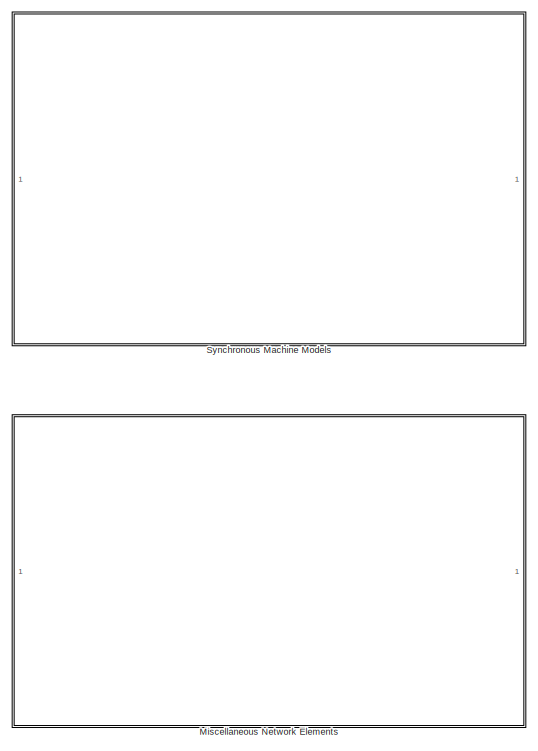
[diagram: root canvas - part 1/2, full width, top band]
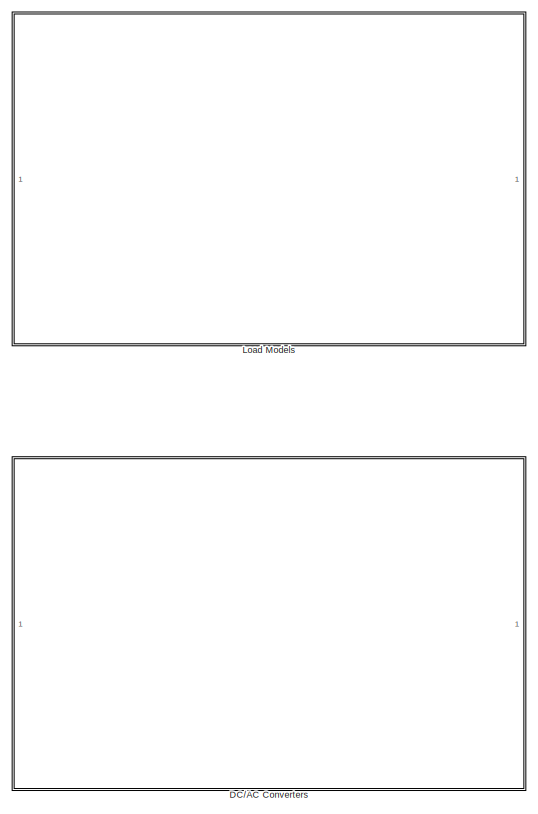
[diagram: root canvas - part 2/2, full width, bottom band]
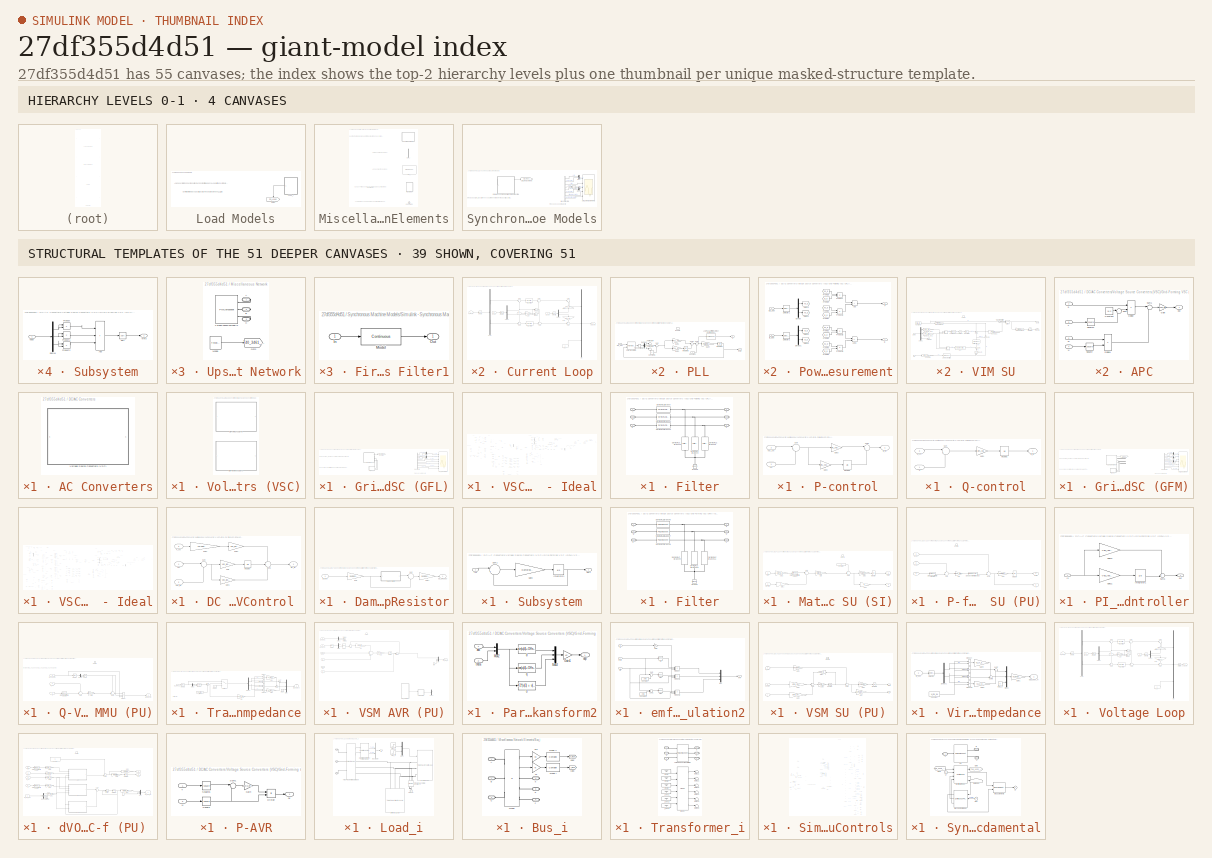
[diagram: thumbnail index - top-2 hierarchy levels (4 canvases) + 39 structural-template representatives of the remaining 51 canvases]
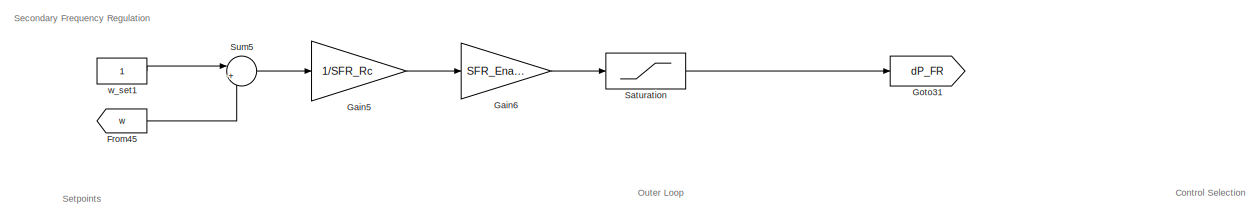
[diagram: DC/AC Converters/Voltage Source Converters (VSC)/Grid-Forming VSC (GFM)/VSC - GFM - Generic - Ideal - part 1/10, top left region]
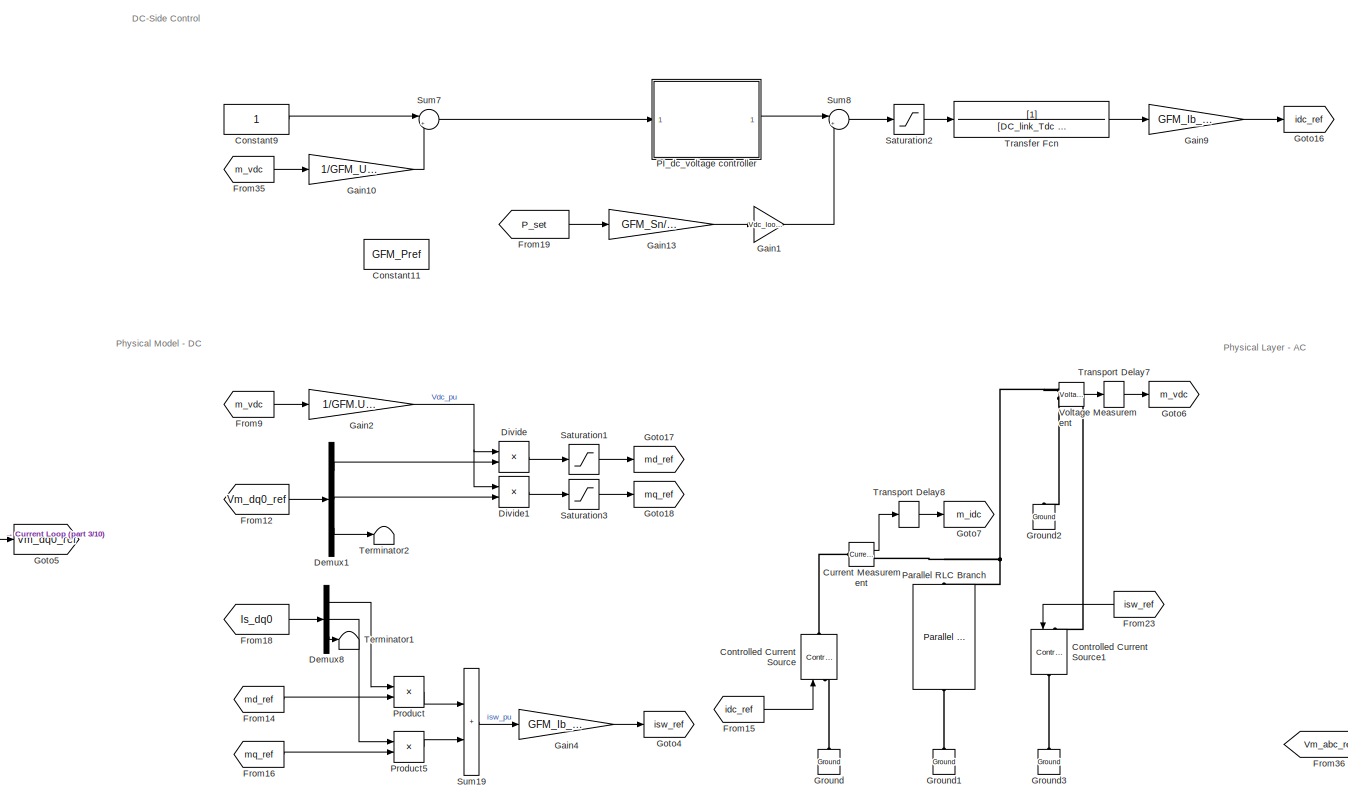
[diagram: DC/AC Converters/Voltage Source Converters (VSC)/Grid-Forming VSC (GFM)/VSC - GFM - Generic - Ideal - part 2/10, top center region]
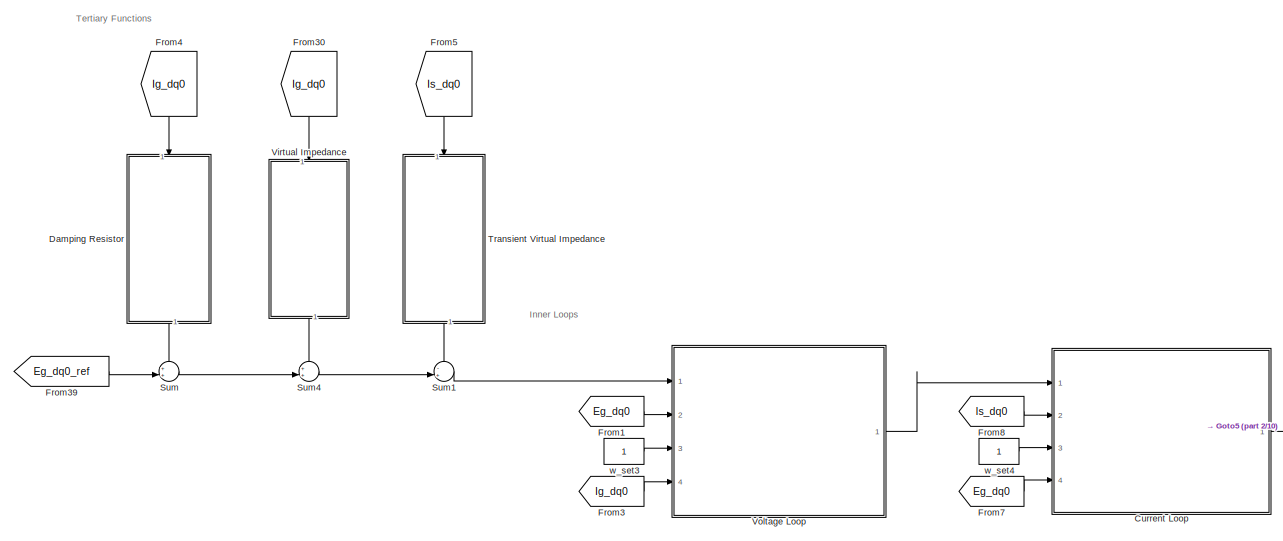
[diagram: DC/AC Converters/Voltage Source Converters (VSC)/Grid-Forming VSC (GFM)/VSC - GFM - Generic - Ideal - part 3/10, top center region]
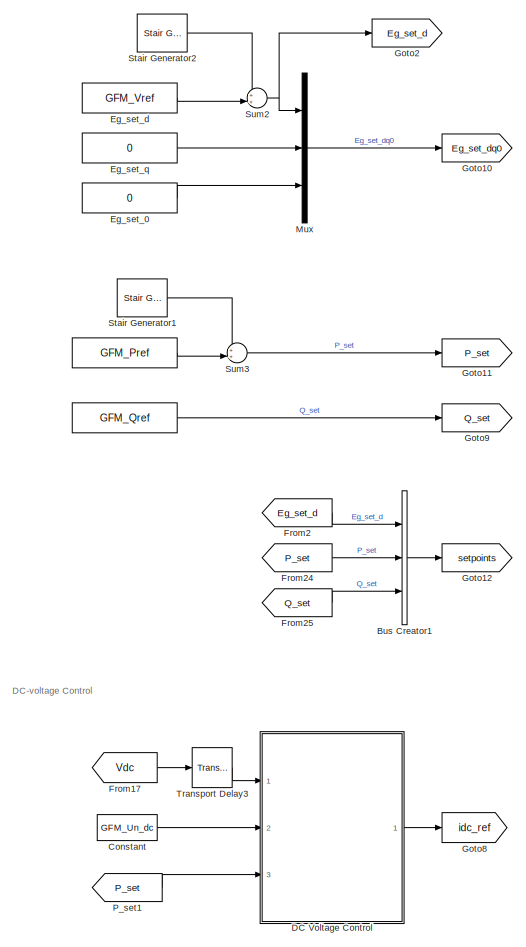
[diagram: DC/AC Converters/Voltage Source Converters (VSC)/Grid-Forming VSC (GFM)/VSC - GFM - Generic - Ideal - part 4/10, middle left region]
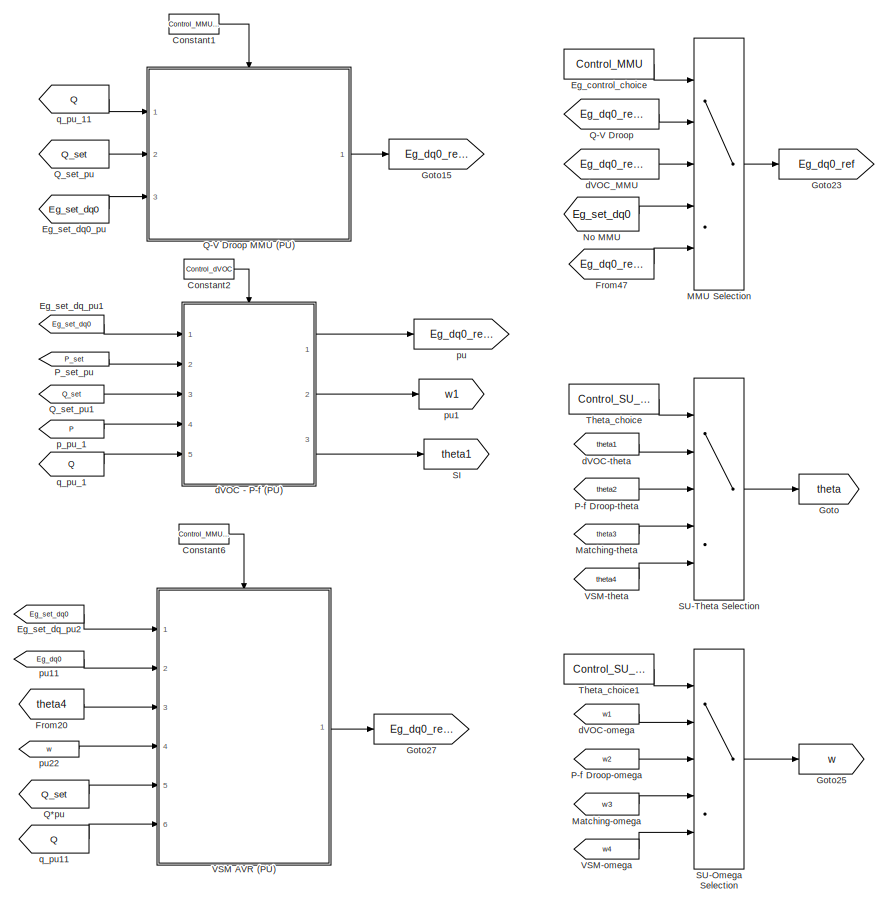
[diagram: DC/AC Converters/Voltage Source Converters (VSC)/Grid-Forming VSC (GFM)/VSC - GFM - Generic - Ideal - part 5/10, middle left region]
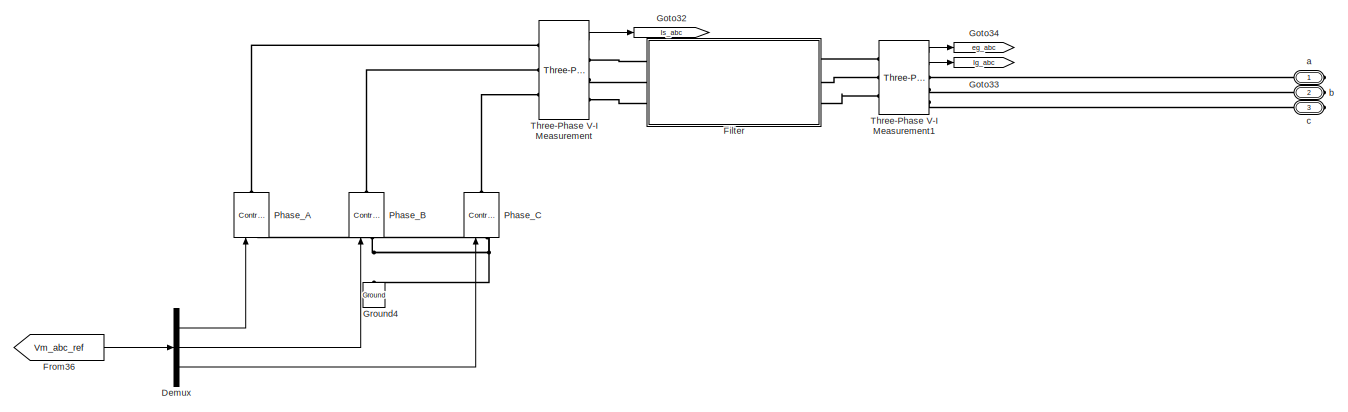
[diagram: DC/AC Converters/Voltage Source Converters (VSC)/Grid-Forming VSC (GFM)/VSC - GFM - Generic - Ideal - part 6/10, middle right region]
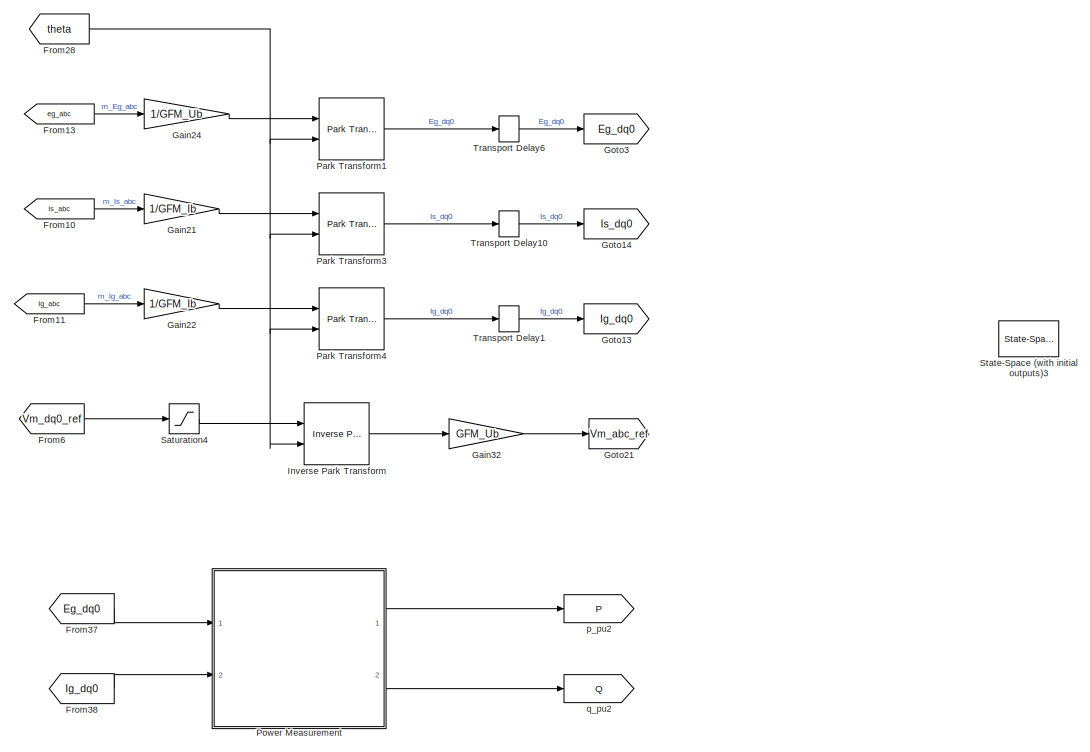
[diagram: DC/AC Converters/Voltage Source Converters (VSC)/Grid-Forming VSC (GFM)/VSC - GFM - Generic - Ideal - part 7/10, central region]
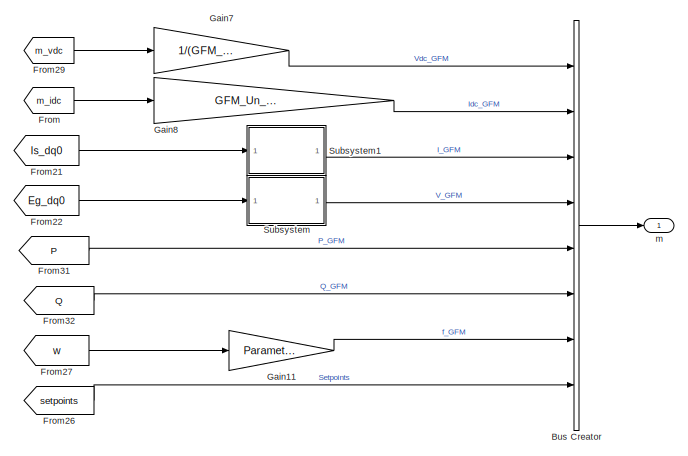
[diagram: DC/AC Converters/Voltage Source Converters (VSC)/Grid-Forming VSC (GFM)/VSC - GFM - Generic - Ideal - part 8/10, central region]
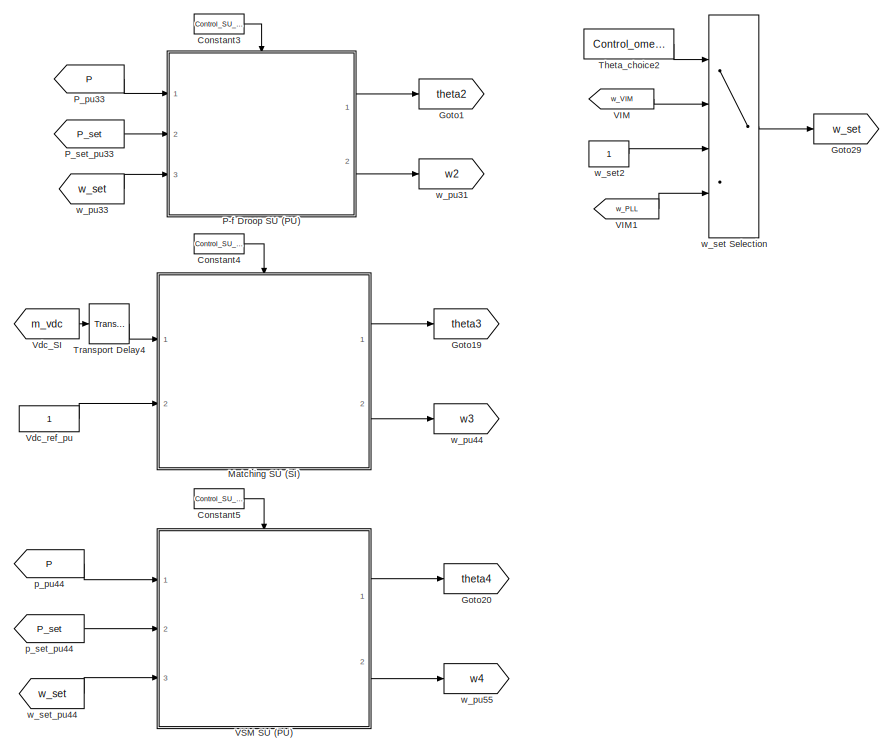
[diagram: DC/AC Converters/Voltage Source Converters (VSC)/Grid-Forming VSC (GFM)/VSC - GFM - Generic - Ideal - part 9/10, bottom left region]
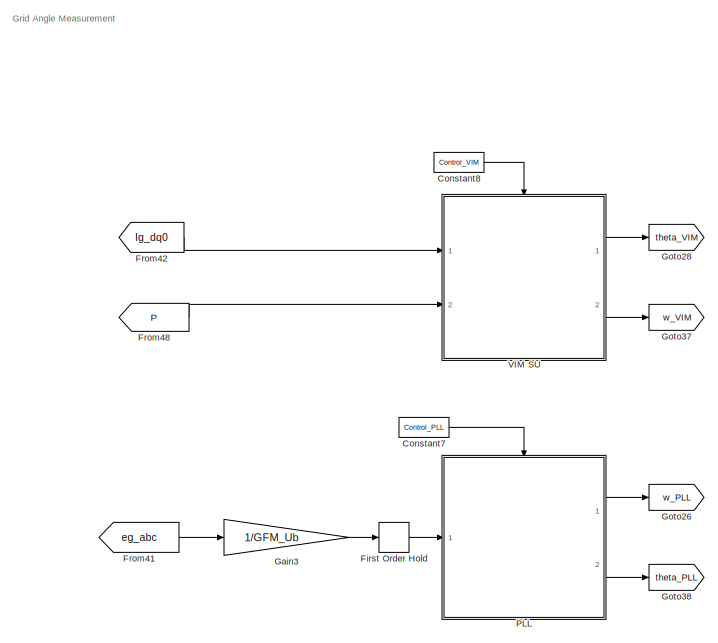
[diagram: DC/AC Converters/Voltage Source Converters (VSC)/Grid-Forming VSC (GFM)/VSC - GFM - Generic - Ideal - part 10/10, bottom left region]
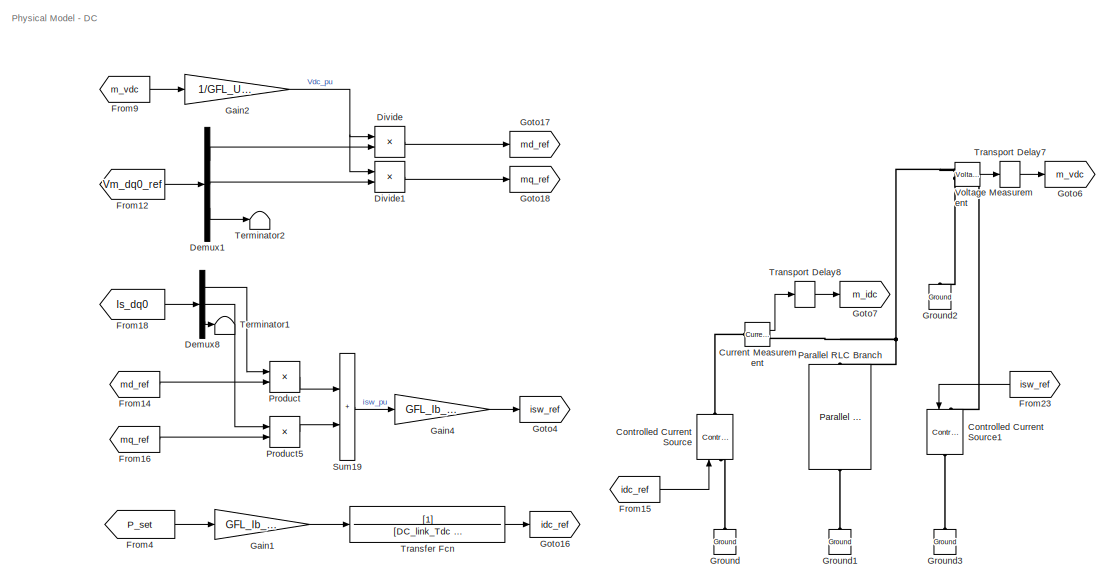
[diagram: DC/AC Converters/Voltage Source Converters (VSC)/Grid-Following VSC (GFL)/VSC - GFL - Ideal - part 1/7, top center region]
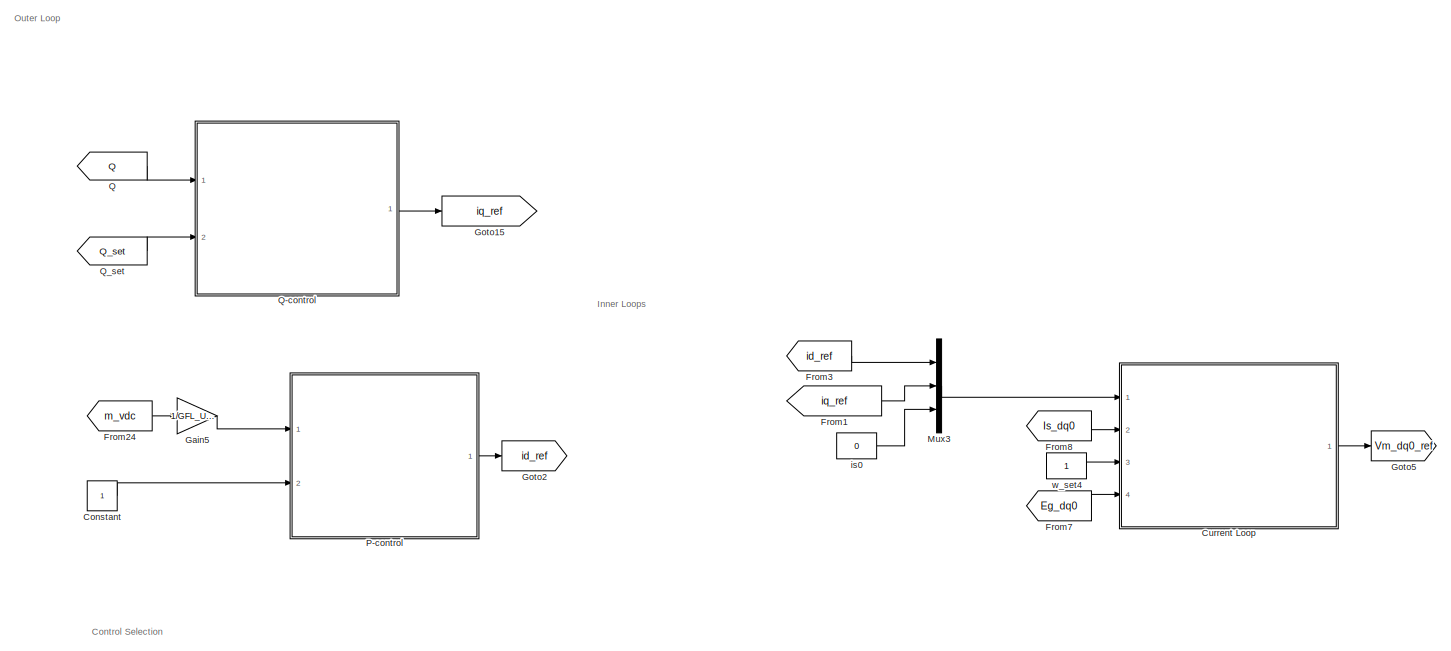
[diagram: DC/AC Converters/Voltage Source Converters (VSC)/Grid-Following VSC (GFL)/VSC - GFL - Ideal - part 2/7, top left region]
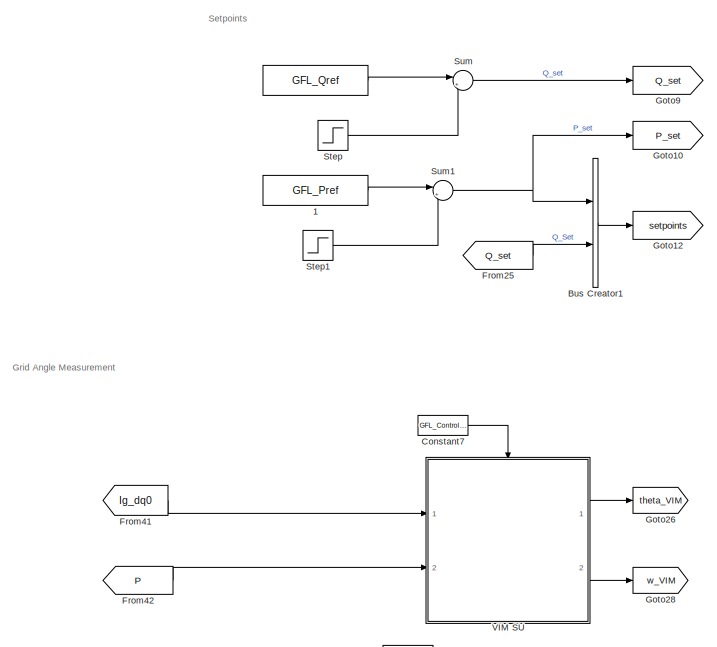
[diagram: DC/AC Converters/Voltage Source Converters (VSC)/Grid-Following VSC (GFL)/VSC - GFL - Ideal - part 3/7, top left region]
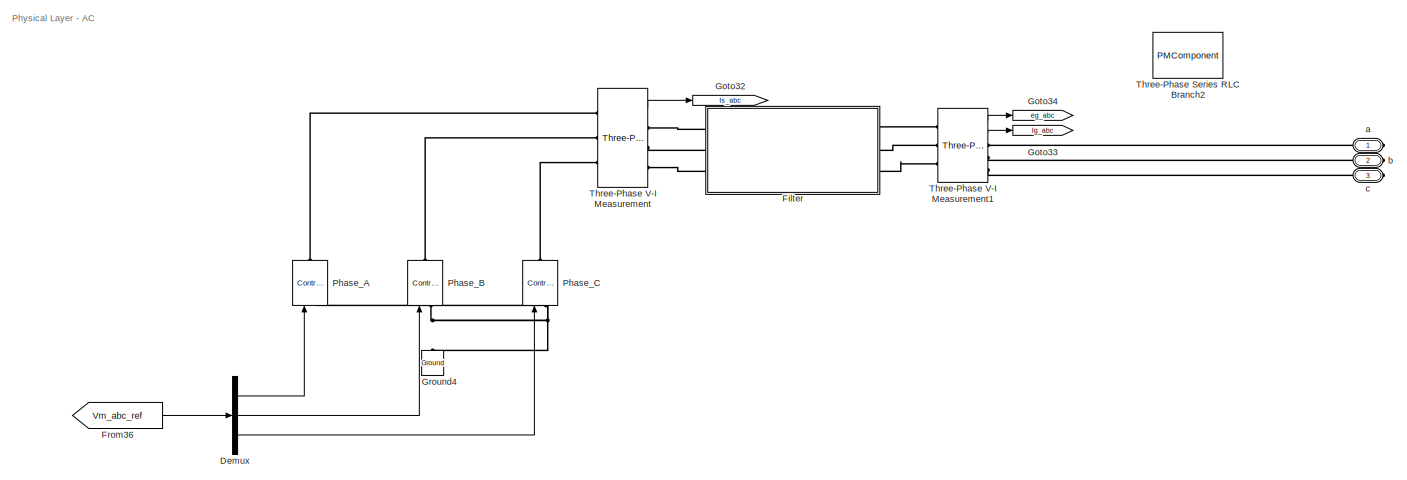
[diagram: DC/AC Converters/Voltage Source Converters (VSC)/Grid-Following VSC (GFL)/VSC - GFL - Ideal - part 4/7, top right region]
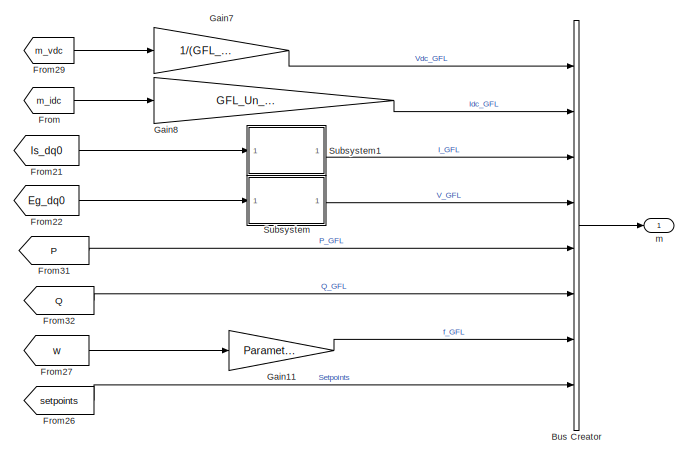
[diagram: DC/AC Converters/Voltage Source Converters (VSC)/Grid-Following VSC (GFL)/VSC - GFL - Ideal - part 5/7, central region]
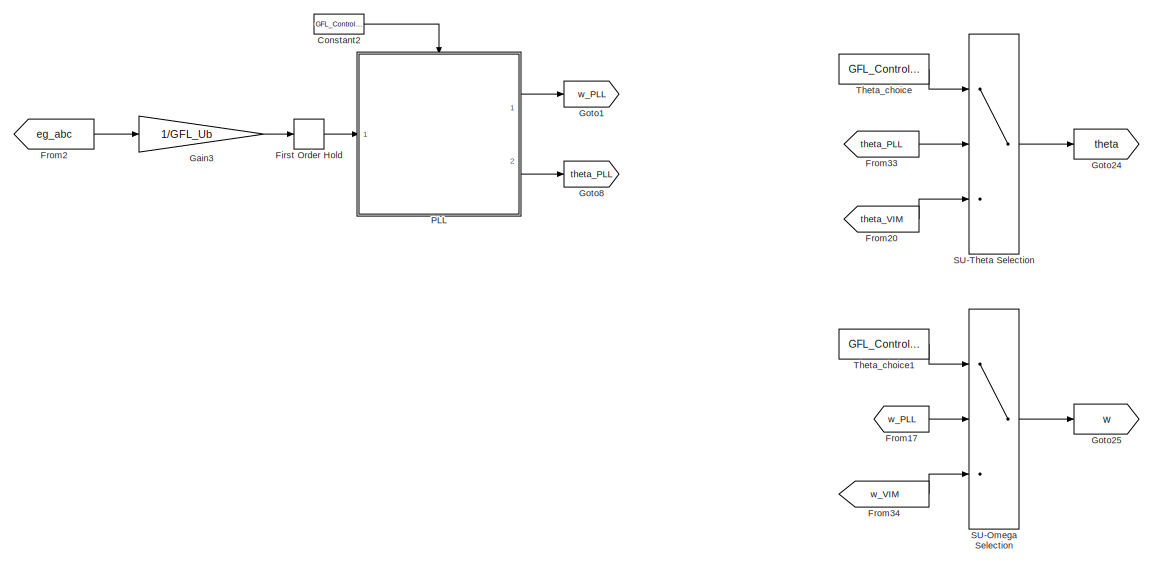
[diagram: DC/AC Converters/Voltage Source Converters (VSC)/Grid-Following VSC (GFL)/VSC - GFL - Ideal - part 6/7, middle left region]
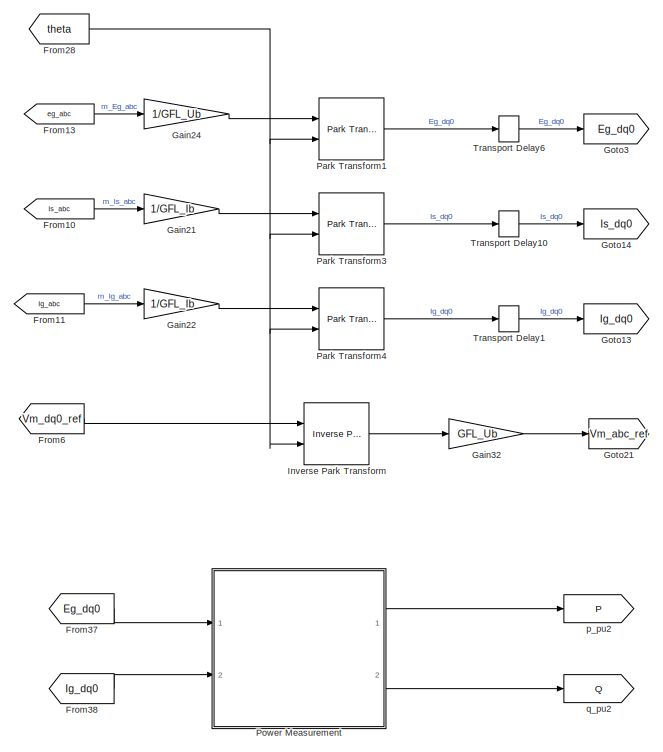
[diagram: DC/AC Converters/Voltage Source Converters (VSC)/Grid-Following VSC (GFL)/VSC - GFL - Ideal - part 7/7, bottom center region]
MODEL slx_27df355d4d51
KIND library
CONFIG AbsTol = auto
CONFIG EnableMultiTasking = off
CONFIG FixedStep = auto
CONFIG MaxStep = auto
CONFIG MinStep = auto
CONFIG RelTol = 1e-3
CONFIG SampleTimeConstraint = Unconstrained
CONFIG SolverName = VariableStepAuto
CONFIG StartTime = 0.0
CONFIG StopTime = 10.0
BLOCK [SubSystem] DC//AC Converters
  Ports = []
  RequestExecContextInheritance = off
BLOCK [SubSystem] DC//AC Converters/Voltage Source Converters (VSC)
  Ports = []
  RequestExecContextInheritance = off
BLOCK [SubSystem] DC//AC Converters/Voltage Source Converters (VSC)/Grid-Following VSC (GFL)
  Ports = []
  RequestExecContextInheritance = off
BLOCK [BusSelector] DC//AC Converters/Voltage Source Converters (VSC)/Grid-Following VSC (GFL)/Bus Selector2
  OutputSignals = P_GFL,Setpoints.P_set,Q_GFL,Setpoints.Q_Set,V_GFL,f_GFL,Vdc_GFL,Idc_GFL,I_GFL
  Ports = [1, 9]
BLOCK [Goto] DC//AC Converters/Voltage Source Converters (VSC)/Grid-Following VSC (GFL)/GFLi_meas
  GotoTag = GFLi_measurements
  NameLocation = top
BLOCK [Scope] DC//AC Converters/Voltage Source Converters (VSC)/Grid-Following VSC (GFL)/GFLi_measurements
  Floating = off
  NumInputPorts = 7
  Ports = [7]
  ScopeSpecificationString = Simulink.scopes.TimeScopeBlockCfg('CurrentConfiguration', extmgr.ConfigurationSet(extmgr.Configuration('Core','General UI',true),extmgr.Configuration('Core','Source UI',true),extmgr.Configuration('Sources','WiredSimulink',true,'DataLoggingVariableName','ScopeData2'),extmgr.Configuration('Visuals','Time Domain',true,'SerializedDisplays',{struct('MinYLimReal','-0.34133','MaxYLimReal','2.09901','YLab...<+6240ch>
BLOCK [SubSystem] DC//AC Converters/Voltage Source Converters (VSC)/Grid-Following VSC (GFL)/Init_GFL_i
  CloseFcn = sps_rtmsupport('CloseFcn',gcbh);
  CopyFcn = sps_rtmsupport('CopyFcn',gcbh); powericon('psbloadfunction',gcb,'goto','UpdateGotoTag');
  DeleteFcn = sps_rtmsupport('DeleteFcn',gcbh);
  DialogController = POWERSYS.PowerSysDialog
  LoadFcn = sps_rtmsupport('LoadFcn',gcbh);
  ModelCloseFcn = sps_rtmsupport('ModelCloseFcn',gcbh);
  NameChangeFcn = sps_rtmsupport('NameChangeFcn',gcbh);
  OpenFcn = sps_rtmsupport('OpenFcn',gcbh, [1,2,8,-9,15]);
  Ports = [0, 0, 0, 0, 0, 0, 3]
  PostSaveFcn = sps_rtmsupport('PostSaveFcn',gcbh);
  PreCopyFcn = sps_rtmsupport('PreCopyFcn',gcbh);
  PreDeleteFcn = sps_rtmsupport('PreDeleteFcn',gcbh);
  PreSaveFcn = sps_rtmsupport('PreSaveFcn',gcbh);
  RequestExecContextInheritance = off
  StartFcn = sps_rtmsupport('StartFcn',gcbh);
  StopFcn = sps_rtmsupport('StopFcn',gcbh);
  UndoDeleteFcn = sps_rtmsupport('UndoDeleteFcn',gcbh);
BLOCK [PMIOPort] DC//AC Converters/Voltage Source Converters (VSC)/Grid-Following VSC (GFL)/Init_GFL_i/A
  Side = Right
BLOCK [PMIOPort] DC//AC Converters/Voltage Source Converters (VSC)/Grid-Following VSC (GFL)/Init_GFL_i/B
  Port = 2
  Side = Right
BLOCK [PMIOPort] DC//AC Converters/Voltage Source Converters (VSC)/Grid-Following VSC (GFL)/Init_GFL_i/C
  Port = 3
  Side = Right
BLOCK [Goto] DC//AC Converters/Voltage Source Converters (VSC)/Grid-Following VSC (GFL)/Init_GFL_i/Goto
  GotoTag = T34_2695_1796992564207
  TagVisibility = global
BLOCK [Reference] DC//AC Converters/Voltage Source Converters (VSC)/Grid-Following VSC (GFL)/Init_GFL_i/Model  REF=spsSourcesModel/ThreePhaseSource
  Ports = [0, 1]
  SourceBlock = spsSourcesModel/ThreePhaseSource
  SourceProductBaseCode = PS
  SourceType = SubSystem
BLOCK [PMComponent] DC//AC Converters/Voltage Source Converters (VSC)/Grid-Following VSC (GFL)/Init_GFL_i/ThreePhaseSourceBlk
  LConnTagsString = N
  LeftPortType = p1
  PhysicalDomain = powersysdomain
  Ports = [0, 0, 0, 0, 0, 1, 3]
  RConnTagsString = A|B|C
  RightPortType = p1
BLOCK [Mux] DC//AC Converters/Voltage Source Converters (VSC)/Grid-Following VSC (GFL)/Mux2
  DisplayOption = bar
  Inputs = 2
  Ports = [2, 1]
BLOCK [Mux] DC//AC Converters/Voltage Source Converters (VSC)/Grid-Following VSC (GFL)/Mux6
  DisplayOption = bar
  Inputs = 2
  Ports = [2, 1]
BLOCK [SubSystem] DC//AC Converters/Voltage Source Converters (VSC)/Grid-Following VSC (GFL)/VSC - GFL - Ideal
  Ports = [0, 1, 0, 0, 0, 0, 3]
  RequestExecContextInheritance = off
BLOCK [Constant] DC//AC Converters/Voltage Source Converters (VSC)/Grid-Following VSC (GFL)/VSC - GFL - Ideal/  
  NameLocation = top
  Value = GFL_Qref
BLOCK [Constant] DC//AC Converters/Voltage Source Converters (VSC)/Grid-Following VSC (GFL)/VSC - GFL - Ideal/  1
  NameLocation = top
  Value = GFL_Pref
BLOCK [BusCreator] DC//AC Converters/Voltage Source Converters (VSC)/Grid-Following VSC (GFL)/VSC - GFL - Ideal/Bus Creator
  DisplayOption = bar
  InheritFromInputs = on
  Inputs = 8
  Ports = [8, 1]
BLOCK [BusCreator] DC//AC Converters/Voltage Source Converters (VSC)/Grid-Following VSC (GFL)/VSC - GFL - Ideal/Bus Creator1
  DisplayOption = bar
  InheritFromInputs = on
  Inputs = 2
  Ports = [2, 1]
BLOCK [Constant] DC//AC Converters/Voltage Source Converters (VSC)/Grid-Following VSC (GFL)/VSC - GFL - Ideal/Constant
BLOCK [Constant] DC//AC Converters/Voltage Source Converters (VSC)/Grid-Following VSC (GFL)/VSC - GFL - Ideal/Constant2
  Value = GFL_Control_PLL
BLOCK [Constant] DC//AC Converters/Voltage Source Converters (VSC)/Grid-Following VSC (GFL)/VSC - GFL - Ideal/Constant7
  Value = GFL_Control_VIM
BLOCK [Reference] DC//AC Converters/Voltage Source Converters (VSC)/Grid-Following VSC (GFL)/VSC - GFL - Ideal/Controlled Current Source  REF=powerlib/Electrical
Sources/Controlled Current Source
  NameLocation = right
  Ports = [1, 0, 0, 0, 0, 1, 1]
  SourceBlock = powerlib/Electrical\nSources/Controlled Current Source
  SourceProductBaseCode = PS
  SourceType = Controlled Current Source
BLOCK [Reference] DC//AC Converters/Voltage Source Converters (VSC)/Grid-Following VSC (GFL)/VSC - GFL - Ideal/Controlled Current Source1  REF=powerlib/Electrical
Sources/Controlled Current Source
  NameLocation = left
  Ports = [1, 0, 0, 0, 0, 1, 1]
  SourceBlock = powerlib/Electrical\nSources/Controlled Current Source
  SourceProductBaseCode = PS
  SourceType = Controlled Current Source
BLOCK [SubSystem] DC//AC Converters/Voltage Source Converters (VSC)/Grid-Following VSC (GFL)/VSC - GFL - Ideal/Current Loop
  Ports = [4, 1]
  RequestExecContextInheritance = off
BLOCK [Demux] DC//AC Converters/Voltage Source Converters (VSC)/Grid-Following VSC (GFL)/VSC - GFL - Ideal/Current Loop/Demux
  Outputs = 2
  Ports = [1, 2]
BLOCK [Demux] DC//AC Converters/Voltage Source Converters (VSC)/Grid-Following VSC (GFL)/VSC - GFL - Ideal/Current Loop/Demux1
  Outputs = 2
  Ports = [1, 2]
BLOCK [Demux] DC//AC Converters/Voltage Source Converters (VSC)/Grid-Following VSC (GFL)/VSC - GFL - Ideal/Current Loop/Demux2
  Outputs = 2
  Ports = [1, 2]
BLOCK [Inport] DC//AC Converters/Voltage Source Converters (VSC)/Grid-Following VSC (GFL)/VSC - GFL - Ideal/Current Loop/Eg_dq0
  Port = 4
BLOCK [Gain] DC//AC Converters/Voltage Source Converters (VSC)/Grid-Following VSC (GFL)/VSC - GFL - Ideal/Current Loop/Gain4
  Gain = GFL_L1_pu
BLOCK [Gain] DC//AC Converters/Voltage Source Converters (VSC)/Grid-Following VSC (GFL)/VSC - GFL - Ideal/Current Loop/Gain5
  Gain = GFL_Inner_current_loop_Kffv
  NameLocation = right
BLOCK [Gain] DC//AC Converters/Voltage Source Converters (VSC)/Grid-Following VSC (GFL)/VSC - GFL - Ideal/Current Loop/Gain6
  Gain = GFL_Inner_current_loop_Kffv
  NameLocation = left
BLOCK [Inport] DC//AC Converters/Voltage Source Converters (VSC)/Grid-Following VSC (GFL)/VSC - GFL - Ideal/Current Loop/Is_dq0
  Port = 2
BLOCK [Inport] DC//AC Converters/Voltage Source Converters (VSC)/Grid-Following VSC (GFL)/VSC - GFL - Ideal/Current Loop/Is_dq0_ref
BLOCK [Mux] DC//AC Converters/Voltage Source Converters (VSC)/Grid-Following VSC (GFL)/VSC - GFL - Ideal/Current Loop/Mux
  DisplayOption = bar
  Inputs = 3
  Ports = [3, 1]
BLOCK [Reference] DC//AC Converters/Voltage Source Converters (VSC)/Grid-Following VSC (GFL)/VSC - GFL - Ideal/Current Loop/PID Controller1  REF=pid_lib/PID Controller
  Ports = [1, 1]
  SourceBlock = pid_lib/PID Controller
  SourceProductBaseCode = SL
  SourceType = PID 1dof
BLOCK [Reference] DC//AC Converters/Voltage Source Converters (VSC)/Grid-Following VSC (GFL)/VSC - GFL - Ideal/Current Loop/PID Controller2  REF=pid_lib/PID Controller
  Ports = [1, 1]
  SourceBlock = pid_lib/PID Controller
  SourceProductBaseCode = SL
  SourceType = PID 1dof
BLOCK [Product] DC//AC Converters/Voltage Source Converters (VSC)/Grid-Following VSC (GFL)/VSC - GFL - Ideal/Current Loop/Product
  Ports = [2, 1]
BLOCK [Product] DC//AC Converters/Voltage Source Converters (VSC)/Grid-Following VSC (GFL)/VSC - GFL - Ideal/Current Loop/Product1
  Ports = [2, 1]
BLOCK [Selector] DC//AC Converters/Voltage Source Converters (VSC)/Grid-Following VSC (GFL)/VSC - GFL - Ideal/Current Loop/Selector
  IndexOptions = Index vector (dialog)
  Indices = [1 2]
  InputPortWidth = 3
  OutputSizes = 1
  Ports = [1, 1]
BLOCK [Selector] DC//AC Converters/Voltage Source Converters (VSC)/Grid-Following VSC (GFL)/VSC - GFL - Ideal/Current Loop/Selector1
  IndexOptions = Index vector (dialog)
  Indices = [1 2]
  InputPortWidth = 3
  OutputSizes = 1
  Ports = [1, 1]
BLOCK [Selector] DC//AC Converters/Voltage Source Converters (VSC)/Grid-Following VSC (GFL)/VSC - GFL - Ideal/Current Loop/Selector2
  IndexOptions = Index vector (dialog)
  Indices = [1 2]
  InputPortWidth = 3
  OutputSizes = 1
  Ports = [1, 1]
BLOCK [Sum] DC//AC Converters/Voltage Source Converters (VSC)/Grid-Following VSC (GFL)/VSC - GFL - Ideal/Current Loop/Sum2
  Inputs = |+-
  Ports = [2, 1]
BLOCK [Sum] DC//AC Converters/Voltage Source Converters (VSC)/Grid-Following VSC (GFL)/VSC - GFL - Ideal/Current Loop/Sum3
  Inputs = |+-
  Ports = [2, 1]
BLOCK [Sum] DC//AC Converters/Voltage Source Converters (VSC)/Grid-Following VSC (GFL)/VSC - GFL - Ideal/Current Loop/Sum4
  Inputs = -+|
  Ports = [2, 1]
BLOCK [Sum] DC//AC Converters/Voltage Source Converters (VSC)/Grid-Following VSC (GFL)/VSC - GFL - Ideal/Current Loop/Sum5
  Inputs = ++|
  Ports = [2, 1]
BLOCK [Sum] DC//AC Converters/Voltage Source Converters (VSC)/Grid-Following VSC (GFL)/VSC - GFL - Ideal/Current Loop/Sum6
  Inputs = |++
  Ports = [2, 1]
BLOCK [Sum] DC//AC Converters/Voltage Source Converters (VSC)/Grid-Following VSC (GFL)/VSC - GFL - Ideal/Current Loop/Sum7
  Inputs = ++|
  Ports = [2, 1]
BLOCK [Constant] DC//AC Converters/Voltage Source Converters (VSC)/Grid-Following VSC (GFL)/VSC - GFL - Ideal/Current Loop/Vm_0*
  Value = 0
BLOCK [Outport] DC//AC Converters/Voltage Source Converters (VSC)/Grid-Following VSC (GFL)/VSC - GFL - Ideal/Current Loop/Vm_dq0_ref
BLOCK [Inport] DC//AC Converters/Voltage Source Converters (VSC)/Grid-Following VSC (GFL)/VSC - GFL - Ideal/Current Loop/w
  Port = 3
BLOCK [Reference] DC//AC Converters/Voltage Source Converters (VSC)/Grid-Following VSC (GFL)/VSC - GFL - Ideal/Current Measurement  REF=powerlib/Measurements/Current Measurement
  Ports = [0, 1, 0, 0, 0, 1, 1]
  SourceBlock = powerlib/Measurements/Current Measurement
  SourceProductBaseCode = PS
  SourceType = Current Measurement
  UserDataPersistent = on
BLOCK [Demux] DC//AC Converters/Voltage Source Converters (VSC)/Grid-Following VSC (GFL)/VSC - GFL - Ideal/Demux
  Outputs = 3
  Ports = [1, 3]
BLOCK [Demux] DC//AC Converters/Voltage Source Converters (VSC)/Grid-Following VSC (GFL)/VSC - GFL - Ideal/Demux1
  Outputs = 3
  Ports = [1, 3]
BLOCK [Demux] DC//AC Converters/Voltage Source Converters (VSC)/Grid-Following VSC (GFL)/VSC - GFL - Ideal/Demux8
  Outputs = 3
  Ports = [1, 3]
BLOCK [Product] DC//AC Converters/Voltage Source Converters (VSC)/Grid-Following VSC (GFL)/VSC - GFL - Ideal/Divide
  Inputs = /*
  Ports = [2, 1]
BLOCK [Product] DC//AC Converters/Voltage Source Converters (VSC)/Grid-Following VSC (GFL)/VSC - GFL - Ideal/Divide1
  Inputs = /*
  Ports = [2, 1]
BLOCK [SubSystem] DC//AC Converters/Voltage Source Converters (VSC)/Grid-Following VSC (GFL)/VSC - GFL - Ideal/Filter
  Ports = [0, 0, 0, 0, 0, 3, 3]
  RequestExecContextInheritance = off
BLOCK [PMIOPort] DC//AC Converters/Voltage Source Converters (VSC)/Grid-Following VSC (GFL)/VSC - GFL - Ideal/Filter/A
  Side = Left
BLOCK [PMIOPort] DC//AC Converters/Voltage Source Converters (VSC)/Grid-Following VSC (GFL)/VSC - GFL - Ideal/Filter/B
  Port = 3
  Side = Left
BLOCK [PMIOPort] DC//AC Converters/Voltage Source Converters (VSC)/Grid-Following VSC (GFL)/VSC - GFL - Ideal/Filter/C
  Port = 5
  Side = Left
BLOCK [Reference] DC//AC Converters/Voltage Source Converters (VSC)/Grid-Following VSC (GFL)/VSC - GFL - Ideal/Filter/Ground  REF=powerlib/Elements/Ground
  NameLocation = right
  Ports = [0, 0, 0, 0, 0, 1]
  SourceBlock = powerlib/Elements/Ground
  SourceProductBaseCode = PS
  SourceType = Ground
BLOCK [Reference] DC//AC Converters/Voltage Source Converters (VSC)/Grid-Following VSC (GFL)/VSC - GFL - Ideal/Filter/Series RLC Branch  REF=powerlib/Elements/Series RLC Branch
  Ports = [0, 0, 0, 0, 0, 1, 1]
  SourceBlock = powerlib/Elements/Series RLC Branch
  SourceProductBaseCode = PS
  SourceType = Series RLC Branch
BLOCK [Reference] DC//AC Converters/Voltage Source Converters (VSC)/Grid-Following VSC (GFL)/VSC - GFL - Ideal/Filter/Series RLC Branch1  REF=powerlib/Elements/Series RLC Branch
  Ports = [0, 0, 0, 0, 0, 1, 1]
  SourceBlock = powerlib/Elements/Series RLC Branch
  SourceProductBaseCode = PS
  SourceType = Series RLC Branch
BLOCK [Reference] DC//AC Converters/Voltage Source Converters (VSC)/Grid-Following VSC (GFL)/VSC - GFL - Ideal/Filter/Series RLC Branch2  REF=powerlib/Elements/Series RLC Branch
  Ports = [0, 0, 0, 0, 0, 1, 1]
  SourceBlock = powerlib/Elements/Series RLC Branch
  SourceProductBaseCode = PS
  SourceType = Series RLC Branch
BLOCK [Reference] DC//AC Converters/Voltage Source Converters (VSC)/Grid-Following VSC (GFL)/VSC - GFL - Ideal/Filter/Series RLC Branch3  REF=powerlib/Elements/Series RLC Branch
  NameLocation = left
  Ports = [0, 0, 0, 0, 0, 1, 1]
  SourceBlock = powerlib/Elements/Series RLC Branch
  SourceProductBaseCode = PS
  SourceType = Series RLC Branch
BLOCK [Reference] DC//AC Converters/Voltage Source Converters (VSC)/Grid-Following VSC (GFL)/VSC - GFL - Ideal/Filter/Series RLC Branch4  REF=powerlib/Elements/Series RLC Branch
  NameLocation = left
  Ports = [0, 0, 0, 0, 0, 1, 1]
  SourceBlock = powerlib/Elements/Series RLC Branch
  SourceProductBaseCode = PS
  SourceType = Series RLC Branch
BLOCK [Reference] DC//AC Converters/Voltage Source Converters (VSC)/Grid-Following VSC (GFL)/VSC - GFL - Ideal/Filter/Series RLC Branch5  REF=powerlib/Elements/Series RLC Branch
  NameLocation = left
  Ports = [0, 0, 0, 0, 0, 1, 1]
  SourceBlock = powerlib/Elements/Series RLC Branch
  SourceProductBaseCode = PS
  SourceType = Series RLC Branch
BLOCK [PMIOPort] DC//AC Converters/Voltage Source Converters (VSC)/Grid-Following VSC (GFL)/VSC - GFL - Ideal/Filter/a
  Port = 2
  Side = Right
BLOCK [PMIOPort] DC//AC Converters/Voltage Source Converters (VSC)/Grid-Following VSC (GFL)/VSC - GFL - Ideal/Filter/b
  Port = 4
  Side = Right
BLOCK [PMIOPort] DC//AC Converters/Voltage Source Converters (VSC)/Grid-Following VSC (GFL)/VSC - GFL - Ideal/Filter/c
  Port = 6
  Side = Right
BLOCK [FirstOrderHold] DC//AC Converters/Voltage Source Converters (VSC)/Grid-Following VSC (GFL)/VSC - GFL - Ideal/First Order Hold
  ErrorTolerance = inf
  InitialOutput = GFL_Filter_V_ini
BLOCK [From] DC//AC Converters/Voltage Source Converters (VSC)/Grid-Following VSC (GFL)/VSC - GFL - Ideal/From
  GotoTag = m_idc
BLOCK [From] DC//AC Converters/Voltage Source Converters (VSC)/Grid-Following VSC (GFL)/VSC - GFL - Ideal/From1
  GotoTag = iq_ref
BLOCK [From] DC//AC Converters/Voltage Source Converters (VSC)/Grid-Following VSC (GFL)/VSC - GFL - Ideal/From10
  GotoTag = Is_abc
BLOCK [From] DC//AC Converters/Voltage Source Converters (VSC)/Grid-Following VSC (GFL)/VSC - GFL - Ideal/From11
  GotoTag = Ig_abc
BLOCK [From] DC//AC Converters/Voltage Source Converters (VSC)/Grid-Following VSC (GFL)/VSC - GFL - Ideal/From12
  GotoTag = Vm_dq0_ref
BLOCK [From] DC//AC Converters/Voltage Source Converters (VSC)/Grid-Following VSC (GFL)/VSC - GFL - Ideal/From13
  GotoTag = eg_abc
BLOCK [From] DC//AC Converters/Voltage Source Converters (VSC)/Grid-Following VSC (GFL)/VSC - GFL - Ideal/From14
  GotoTag = md_ref
BLOCK [From] DC//AC Converters/Voltage Source Converters (VSC)/Grid-Following VSC (GFL)/VSC - GFL - Ideal/From15
  GotoTag = idc_ref
BLOCK [From] DC//AC Converters/Voltage Source Converters (VSC)/Grid-Following VSC (GFL)/VSC - GFL - Ideal/From16
  GotoTag = mq_ref
BLOCK [From] DC//AC Converters/Voltage Source Converters (VSC)/Grid-Following VSC (GFL)/VSC - GFL - Ideal/From17
  GotoTag = w_PLL
BLOCK [From] DC//AC Converters/Voltage Source Converters (VSC)/Grid-Following VSC (GFL)/VSC - GFL - Ideal/From18
  GotoTag = Is_dq0
BLOCK [From] DC//AC Converters/Voltage Source Converters (VSC)/Grid-Following VSC (GFL)/VSC - GFL - Ideal/From2
  GotoTag = eg_abc
BLOCK [From] DC//AC Converters/Voltage Source Converters (VSC)/Grid-Following VSC (GFL)/VSC - GFL - Ideal/From20
  GotoTag = theta_VIM
BLOCK [From] DC//AC Converters/Voltage Source Converters (VSC)/Grid-Following VSC (GFL)/VSC - GFL - Ideal/From21
  GotoTag = Is_dq0
BLOCK [From] DC//AC Converters/Voltage Source Converters (VSC)/Grid-Following VSC (GFL)/VSC - GFL - Ideal/From22
  GotoTag = Eg_dq0
BLOCK [From] DC//AC Converters/Voltage Source Converters (VSC)/Grid-Following VSC (GFL)/VSC - GFL - Ideal/From23
  GotoTag = isw_ref
  NameLocation = top
BLOCK [From] DC//AC Converters/Voltage Source Converters (VSC)/Grid-Following VSC (GFL)/VSC - GFL - Ideal/From24
  GotoTag = m_vdc
BLOCK [From] DC//AC Converters/Voltage Source Converters (VSC)/Grid-Following VSC (GFL)/VSC - GFL - Ideal/From25
  GotoTag = Q_set
BLOCK [From] DC//AC Converters/Voltage Source Converters (VSC)/Grid-Following VSC (GFL)/VSC - GFL - Ideal/From26
  GotoTag = setpoints
BLOCK [From] DC//AC Converters/Voltage Source Converters (VSC)/Grid-Following VSC (GFL)/VSC - GFL - Ideal/From27
  GotoTag = w
BLOCK [From] DC//AC Converters/Voltage Source Converters (VSC)/Grid-Following VSC (GFL)/VSC - GFL - Ideal/From28
  GotoTag = theta
BLOCK [From] DC//AC Converters/Voltage Source Converters (VSC)/Grid-Following VSC (GFL)/VSC - GFL - Ideal/From29
  GotoTag = m_vdc
BLOCK [From] DC//AC Converters/Voltage Source Converters (VSC)/Grid-Following VSC (GFL)/VSC - GFL - Ideal/From3
  GotoTag = id_ref
BLOCK [From] DC//AC Converters/Voltage Source Converters (VSC)/Grid-Following VSC (GFL)/VSC - GFL - Ideal/From31
  GotoTag = P
BLOCK [From] DC//AC Converters/Voltage Source Converters (VSC)/Grid-Following VSC (GFL)/VSC - GFL - Ideal/From32
  GotoTag = Q
BLOCK [From] DC//AC Converters/Voltage Source Converters (VSC)/Grid-Following VSC (GFL)/VSC - GFL - Ideal/From33
  GotoTag = theta_PLL
BLOCK [From] DC//AC Converters/Voltage Source Converters (VSC)/Grid-Following VSC (GFL)/VSC - GFL - Ideal/From34
  GotoTag = w_VIM
BLOCK [From] DC//AC Converters/Voltage Source Converters (VSC)/Grid-Following VSC (GFL)/VSC - GFL - Ideal/From36
  GotoTag = Vm_abc_ref
BLOCK [From] DC//AC Converters/Voltage Source Converters (VSC)/Grid-Following VSC (GFL)/VSC - GFL - Ideal/From37
  GotoTag = Eg_dq0
BLOCK [From] DC//AC Converters/Voltage Source Converters (VSC)/Grid-Following VSC (GFL)/VSC - GFL - Ideal/From38
  GotoTag = Ig_dq0
BLOCK [From] DC//AC Converters/Voltage Source Converters (VSC)/Grid-Following VSC (GFL)/VSC - GFL - Ideal/From4
  GotoTag = P_set
BLOCK [From] DC//AC Converters/Voltage Source Converters (VSC)/Grid-Following VSC (GFL)/VSC - GFL - Ideal/From41
  GotoTag = Ig_dq0
BLOCK [From] DC//AC Converters/Voltage Source Converters (VSC)/Grid-Following VSC (GFL)/VSC - GFL - Ideal/From42
  GotoTag = P
BLOCK [From] DC//AC Converters/Voltage Source Converters (VSC)/Grid-Following VSC (GFL)/VSC - GFL - Ideal/From6
  GotoTag = Vm_dq0_ref
BLOCK [From] DC//AC Converters/Voltage Source Converters (VSC)/Grid-Following VSC (GFL)/VSC - GFL - Ideal/From7
  GotoTag = Eg_dq0
BLOCK [From] DC//AC Converters/Voltage Source Converters (VSC)/Grid-Following VSC (GFL)/VSC - GFL - Ideal/From8
  GotoTag = Is_dq0
BLOCK [From] DC//AC Converters/Voltage Source Converters (VSC)/Grid-Following VSC (GFL)/VSC - GFL - Ideal/From9
  GotoTag = m_vdc
BLOCK [Gain] DC//AC Converters/Voltage Source Converters (VSC)/Grid-Following VSC (GFL)/VSC - GFL - Ideal/Gain1
  Gain = GFL_Ib_dc
BLOCK [Gain] DC//AC Converters/Voltage Source Converters (VSC)/Grid-Following VSC (GFL)/VSC - GFL - Ideal/Gain11
  Gain = Parameters_fb
BLOCK [Gain] DC//AC Converters/Voltage Source Converters (VSC)/Grid-Following VSC (GFL)/VSC - GFL - Ideal/Gain2
  Gain = 1/GFL_Ub_dc
BLOCK [Gain] DC//AC Converters/Voltage Source Converters (VSC)/Grid-Following VSC (GFL)/VSC - GFL - Ideal/Gain21
  Gain = 1/GFL_Ib
BLOCK [Gain] DC//AC Converters/Voltage Source Converters (VSC)/Grid-Following VSC (GFL)/VSC - GFL - Ideal/Gain22
  Gain = 1/GFL_Ib
BLOCK [Gain] DC//AC Converters/Voltage Source Converters (VSC)/Grid-Following VSC (GFL)/VSC - GFL - Ideal/Gain24
  Gain = 1/GFL_Ub
BLOCK [Gain] DC//AC Converters/Voltage Source Converters (VSC)/Grid-Following VSC (GFL)/VSC - GFL - Ideal/Gain3
  Gain = 1/GFL_Ub
BLOCK [Gain] DC//AC Converters/Voltage Source Converters (VSC)/Grid-Following VSC (GFL)/VSC - GFL - Ideal/Gain32
  Gain = GFL_Ub
BLOCK [Gain] DC//AC Converters/Voltage Source Converters (VSC)/Grid-Following VSC (GFL)/VSC - GFL - Ideal/Gain4
  Gain = GFL_Ib_dc
BLOCK [Gain] DC//AC Converters/Voltage Source Converters (VSC)/Grid-Following VSC (GFL)/VSC - GFL - Ideal/Gain5
  Gain = 1/GFL_Un_dc
BLOCK [Gain] DC//AC Converters/Voltage Source Converters (VSC)/Grid-Following VSC (GFL)/VSC - GFL - Ideal/Gain7
  Gain = 1/(GFL_Ub_dc)
BLOCK [Gain] DC//AC Converters/Voltage Source Converters (VSC)/Grid-Following VSC (GFL)/VSC - GFL - Ideal/Gain8
  Gain = GFL_Un_dc/GFL_Sn
BLOCK [Goto] DC//AC Converters/Voltage Source Converters (VSC)/Grid-Following VSC (GFL)/VSC - GFL - Ideal/Goto1
  GotoTag = w_PLL
BLOCK [Goto] DC//AC Converters/Voltage Source Converters (VSC)/Grid-Following VSC (GFL)/VSC - GFL - Ideal/Goto10
  GotoTag = P_set
BLOCK [Goto] DC//AC Converters/Voltage Source Converters (VSC)/Grid-Following VSC (GFL)/VSC - GFL - Ideal/Goto12
  GotoTag = setpoints
BLOCK [Goto] DC//AC Converters/Voltage Source Converters (VSC)/Grid-Following VSC (GFL)/VSC - GFL - Ideal/Goto13
  GotoTag = Ig_dq0
BLOCK [Goto] DC//AC Converters/Voltage Source Converters (VSC)/Grid-Following VSC (GFL)/VSC - GFL - Ideal/Goto14
  GotoTag = Is_dq0
BLOCK [Goto] DC//AC Converters/Voltage Source Converters (VSC)/Grid-Following VSC (GFL)/VSC - GFL - Ideal/Goto15
  GotoTag = iq_ref
BLOCK [Goto] DC//AC Converters/Voltage Source Converters (VSC)/Grid-Following VSC (GFL)/VSC - GFL - Ideal/Goto16
  GotoTag = idc_ref
BLOCK [Goto] DC//AC Converters/Voltage Source Converters (VSC)/Grid-Following VSC (GFL)/VSC - GFL - Ideal/Goto17
  GotoTag = md_ref
  NameLocation = top
BLOCK [Goto] DC//AC Converters/Voltage Source Converters (VSC)/Grid-Following VSC (GFL)/VSC - GFL - Ideal/Goto18
  GotoTag = mq_ref
  NameLocation = top
BLOCK [Goto] DC//AC Converters/Voltage Source Converters (VSC)/Grid-Following VSC (GFL)/VSC - GFL - Ideal/Goto2
  GotoTag = id_ref
BLOCK [Goto] DC//AC Converters/Voltage Source Converters (VSC)/Grid-Following VSC (GFL)/VSC - GFL - Ideal/Goto21
  GotoTag = Vm_abc_ref
BLOCK [Goto] DC//AC Converters/Voltage Source Converters (VSC)/Grid-Following VSC (GFL)/VSC - GFL - Ideal/Goto24
  GotoTag = theta
BLOCK [Goto] DC//AC Converters/Voltage Source Converters (VSC)/Grid-Following VSC (GFL)/VSC - GFL - Ideal/Goto25
  GotoTag = w
BLOCK [Goto] DC//AC Converters/Voltage Source Converters (VSC)/Grid-Following VSC (GFL)/VSC - GFL - Ideal/Goto26
  GotoTag = theta_VIM
BLOCK [Goto] DC//AC Converters/Voltage Source Converters (VSC)/Grid-Following VSC (GFL)/VSC - GFL - Ideal/Goto28
  GotoTag = w_VIM
BLOCK [Goto] DC//AC Converters/Voltage Source Converters (VSC)/Grid-Following VSC (GFL)/VSC - GFL - Ideal/Goto3
  GotoTag = Eg_dq0
BLOCK [Goto] DC//AC Converters/Voltage Source Converters (VSC)/Grid-Following VSC (GFL)/VSC - GFL - Ideal/Goto32
  GotoTag = Is_abc
BLOCK [Goto] DC//AC Converters/Voltage Source Converters (VSC)/Grid-Following VSC (GFL)/VSC - GFL - Ideal/Goto33
  GotoTag = Ig_abc
BLOCK [Goto] DC//AC Converters/Voltage Source Converters (VSC)/Grid-Following VSC (GFL)/VSC - GFL - Ideal/Goto34
  GotoTag = eg_abc
BLOCK [Goto] DC//AC Converters/Voltage Source Converters (VSC)/Grid-Following VSC (GFL)/VSC - GFL - Ideal/Goto4
  GotoTag = isw_ref
  NameLocation = top
BLOCK [Goto] DC//AC Converters/Voltage Source Converters (VSC)/Grid-Following VSC (GFL)/VSC - GFL - Ideal/Goto5
  GotoTag = Vm_dq0_ref
BLOCK [Goto] DC//AC Converters/Voltage Source Converters (VSC)/Grid-Following VSC (GFL)/VSC - GFL - Ideal/Goto6
  GotoTag = m_vdc
BLOCK [Goto] DC//AC Converters/Voltage Source Converters (VSC)/Grid-Following VSC (GFL)/VSC - GFL - Ideal/Goto7
  GotoTag = m_idc
BLOCK [Goto] DC//AC Converters/Voltage Source Converters (VSC)/Grid-Following VSC (GFL)/VSC - GFL - Ideal/Goto8
  GotoTag = theta_PLL
BLOCK [Goto] DC//AC Converters/Voltage Source Converters (VSC)/Grid-Following VSC (GFL)/VSC - GFL - Ideal/Goto9
  GotoTag = Q_set
BLOCK [Reference] DC//AC Converters/Voltage Source Converters (VSC)/Grid-Following VSC (GFL)/VSC - GFL - Ideal/Ground  REF=powerlib/Elements/Ground
  NameLocation = right
  Ports = [0, 0, 0, 0, 0, 1]
  SourceBlock = powerlib/Elements/Ground
  SourceProductBaseCode = PS
  SourceType = Ground
BLOCK [Reference] DC//AC Converters/Voltage Source Converters (VSC)/Grid-Following VSC (GFL)/VSC - GFL - Ideal/Ground1  REF=powerlib/Elements/Ground
  NameLocation = right
  Ports = [0, 0, 0, 0, 0, 1]
  SourceBlock = powerlib/Elements/Ground
  SourceProductBaseCode = PS
  SourceType = Ground
BLOCK [Reference] DC//AC Converters/Voltage Source Converters (VSC)/Grid-Following VSC (GFL)/VSC - GFL - Ideal/Ground2  REF=powerlib/Elements/Ground
  NameLocation = right
  Ports = [0, 0, 0, 0, 0, 1]
  SourceBlock = powerlib/Elements/Ground
  SourceProductBaseCode = PS
  SourceType = Ground
BLOCK [Reference] DC//AC Converters/Voltage Source Converters (VSC)/Grid-Following VSC (GFL)/VSC - GFL - Ideal/Ground3  REF=powerlib/Elements/Ground
  NameLocation = right
  Ports = [0, 0, 0, 0, 0, 1]
  SourceBlock = powerlib/Elements/Ground
  SourceProductBaseCode = PS
  SourceType = Ground
BLOCK [Reference] DC//AC Converters/Voltage Source Converters (VSC)/Grid-Following VSC (GFL)/VSC - GFL - Ideal/Ground4  REF=powerlib/Elements/Ground
  NameLocation = right
  Ports = [0, 0, 0, 0, 0, 1]
  SourceBlock = powerlib/Elements/Ground
  SourceProductBaseCode = PS
  SourceType = Ground
BLOCK [Reference] DC//AC Converters/Voltage Source Converters (VSC)/Grid-Following VSC (GFL)/VSC - GFL - Ideal/Inverse Park Transform  REF=eeTransforms/Inverse
Park Transform
  Ports = [2, 1]
  SourceBlock = eeTransforms/Inverse\nPark Transform
  SourceProductBaseCode = PS
  SourceType = Inverse Park Transform
BLOCK [Mux] DC//AC Converters/Voltage Source Converters (VSC)/Grid-Following VSC (GFL)/VSC - GFL - Ideal/Mux3
  DisplayOption = bar
  Inputs = 3
  Ports = [3, 1]
BLOCK [SubSystem] DC//AC Converters/Voltage Source Converters (VSC)/Grid-Following VSC (GFL)/VSC - GFL - Ideal/P-control
  Ports = [2, 1]
  RequestExecContextInheritance = off
BLOCK [Gain] DC//AC Converters/Voltage Source Converters (VSC)/Grid-Following VSC (GFL)/VSC - GFL - Ideal/P-control/Gain2
  Gain = GFL_vdc_Ki
BLOCK [Gain] DC//AC Converters/Voltage Source Converters (VSC)/Grid-Following VSC (GFL)/VSC - GFL - Ideal/P-control/Gain3
  Gain = GFL_vdc_Kp
BLOCK [Integrator] DC//AC Converters/Voltage Source Converters (VSC)/Grid-Following VSC (GFL)/VSC - GFL - Ideal/P-control/Integrator1
  InitialCondition = M_d_0
  Ports = [1, 1]
BLOCK [Sum] DC//AC Converters/Voltage Source Converters (VSC)/Grid-Following VSC (GFL)/VSC - GFL - Ideal/P-control/Sum
  Inputs = |+-
  Ports = [2, 1]
BLOCK [Sum] DC//AC Converters/Voltage Source Converters (VSC)/Grid-Following VSC (GFL)/VSC - GFL - Ideal/P-control/Sum2
  Inputs = |++
  Ports = [2, 1]
BLOCK [Inport] DC//AC Converters/Voltage Source Converters (VSC)/Grid-Following VSC (GFL)/VSC - GFL - Ideal/P-control/Vdc
BLOCK [Inport] DC//AC Converters/Voltage Source Converters (VSC)/Grid-Following VSC (GFL)/VSC - GFL - Ideal/P-control/Vdc_set
  Port = 2
BLOCK [Outport] DC//AC Converters/Voltage Source Converters (VSC)/Grid-Following VSC (GFL)/VSC - GFL - Ideal/P-control/id_ref
BLOCK [SubSystem] DC//AC Converters/Voltage Source Converters (VSC)/Grid-Following VSC (GFL)/VSC - GFL - Ideal/PLL
  Ports = [1, 2, 1]
  RequestExecContextInheritance = off
BLOCK [Constant] DC//AC Converters/Voltage Source Converters (VSC)/Grid-Following VSC (GFL)/VSC - GFL - Ideal/PLL/Constant
BLOCK [Constant] DC//AC Converters/Voltage Source Converters (VSC)/Grid-Following VSC (GFL)/VSC - GFL - Ideal/PLL/Constant1
  Value = 0
BLOCK [Demux] DC//AC Converters/Voltage Source Converters (VSC)/Grid-Following VSC (GFL)/VSC - GFL - Ideal/PLL/Demux5
  Outputs = 3
  Ports = [1, 3]
BLOCK [Inport] DC//AC Converters/Voltage Source Converters (VSC)/Grid-Following VSC (GFL)/VSC - GFL - Ideal/PLL/Eg_abc
BLOCK [EnablePort] DC//AC Converters/Voltage Source Converters (VSC)/Grid-Following VSC (GFL)/VSC - GFL - Ideal/PLL/Enable
  Ports = []
BLOCK [Gain] DC//AC Converters/Voltage Source Converters (VSC)/Grid-Following VSC (GFL)/VSC - GFL - Ideal/PLL/Gain1
  Gain = PLL_Kp
BLOCK [Gain] DC//AC Converters/Voltage Source Converters (VSC)/Grid-Following VSC (GFL)/VSC - GFL - Ideal/PLL/Gain2
  Gain = PLL_Ki
BLOCK [Gain] DC//AC Converters/Voltage Source Converters (VSC)/Grid-Following VSC (GFL)/VSC - GFL - Ideal/PLL/Gain4
  Gain = Parameters_wb
BLOCK [Integrator] DC//AC Converters/Voltage Source Converters (VSC)/Grid-Following VSC (GFL)/VSC - GFL - Ideal/PLL/Integrator1
  InitialCondition = GFL_theta
  Ports = [1, 1]
BLOCK [Integrator] DC//AC Converters/Voltage Source Converters (VSC)/Grid-Following VSC (GFL)/VSC - GFL - Ideal/PLL/Integrator3
  InitialCondition = M_pll_0
  Ports = [1, 1]
BLOCK [Reference] DC//AC Converters/Voltage Source Converters (VSC)/Grid-Following VSC (GFL)/VSC - GFL - Ideal/PLL/Low-Pass Filter (Discrete or Continuous)  REF=eeGeneralControl/Low-Pass Filter
(Discrete or Continuous)
  Commented = through
  NameLocation = top
  Ports = [1, 1]
  SourceBlock = eeGeneralControl/Low-Pass Filter\n(Discrete or Continuous)
  SourceProductBaseCode = PS
  SourceType = Low-Pass Filter (Discrete or Continuous)
BLOCK [Reference] DC//AC Converters/Voltage Source Converters (VSC)/Grid-Following VSC (GFL)/VSC - GFL - Ideal/PLL/Park Transform3  REF=eeTransforms/Park Transform
  Ports = [2, 1]
  SourceBlock = eeTransforms/Park Transform
  SourceProductBaseCode = PS
  SourceType = Park Transform
BLOCK [Sum] DC//AC Converters/Voltage Source Converters (VSC)/Grid-Following VSC (GFL)/VSC - GFL - Ideal/PLL/Sum
  Inputs = |+-
  Ports = [2, 1]
BLOCK [Sum] DC//AC Converters/Voltage Source Converters (VSC)/Grid-Following VSC (GFL)/VSC - GFL - Ideal/PLL/Sum1
  Inputs = |++
  Ports = [2, 1]
BLOCK [Sum] DC//AC Converters/Voltage Source Converters (VSC)/Grid-Following VSC (GFL)/VSC - GFL - Ideal/PLL/Sum7
  Inputs = |++
  Ports = [2, 1]
BLOCK [Terminator] DC//AC Converters/Voltage Source Converters (VSC)/Grid-Following VSC (GFL)/VSC - GFL - Ideal/PLL/Terminator3
BLOCK [Terminator] DC//AC Converters/Voltage Source Converters (VSC)/Grid-Following VSC (GFL)/VSC - GFL - Ideal/PLL/Terminator4
BLOCK [TransportDelay] DC//AC Converters/Voltage Source Converters (VSC)/Grid-Following VSC (GFL)/VSC - GFL - Ideal/PLL/Transport Delay6
  DelayTime = simlt.T_step
  InitialOutput = GFL_Eg0_dq0
  Ports = [1, 1]
BLOCK [Outport] DC//AC Converters/Voltage Source Converters (VSC)/Grid-Following VSC (GFL)/VSC - GFL - Ideal/PLL/theta
  Port = 2
BLOCK [Outport] DC//AC Converters/Voltage Source Converters (VSC)/Grid-Following VSC (GFL)/VSC - GFL - Ideal/PLL/w
BLOCK [Reference] DC//AC Converters/Voltage Source Converters (VSC)/Grid-Following VSC (GFL)/VSC - GFL - Ideal/Parallel RLC Branch  REF=powerlib/Elements/Parallel RLC Branch
  AttributesFormatString = \n
  NameLocation = left
  Ports = [0, 0, 0, 0, 0, 1, 1]
  SourceBlock = powerlib/Elements/Parallel RLC Branch
  SourceProductBaseCode = PS
  SourceType = Parallel RLC Branch
BLOCK [Reference] DC//AC Converters/Voltage Source Converters (VSC)/Grid-Following VSC (GFL)/VSC - GFL - Ideal/Park Transform1  REF=eeTransforms/Park Transform
  Ports = [2, 1]
  SourceBlock = eeTransforms/Park Transform
  SourceProductBaseCode = PS
  SourceType = Park Transform
BLOCK [Reference] DC//AC Converters/Voltage Source Converters (VSC)/Grid-Following VSC (GFL)/VSC - GFL - Ideal/Park Transform3  REF=eeTransforms/Park Transform
  Ports = [2, 1]
  SourceBlock = eeTransforms/Park Transform
  SourceProductBaseCode = PS
  SourceType = Park Transform
BLOCK [Reference] DC//AC Converters/Voltage Source Converters (VSC)/Grid-Following VSC (GFL)/VSC - GFL - Ideal/Park Transform4  REF=eeTransforms/Park Transform
  Ports = [2, 1]
  SourceBlock = eeTransforms/Park Transform
  SourceProductBaseCode = PS
  SourceType = Park Transform
BLOCK [Reference] DC//AC Converters/Voltage Source Converters (VSC)/Grid-Following VSC (GFL)/VSC - GFL - Ideal/Phase_A  REF=powerlib/Electrical
Sources/Controlled Voltage Source
  NameLocation = right
  Ports = [1, 0, 0, 0, 0, 1, 1]
  SourceBlock = powerlib/Electrical\nSources/Controlled Voltage Source
  SourceProductBaseCode = PS
  SourceType = Controlled Voltage Source
BLOCK [Reference] DC//AC Converters/Voltage Source Converters (VSC)/Grid-Following VSC (GFL)/VSC - GFL - Ideal/Phase_B  REF=powerlib/Electrical
Sources/Controlled Voltage Source
  NameLocation = right
  Ports = [1, 0, 0, 0, 0, 1, 1]
  SourceBlock = powerlib/Electrical\nSources/Controlled Voltage Source
  SourceProductBaseCode = PS
  SourceType = Controlled Voltage Source
BLOCK [Reference] DC//AC Converters/Voltage Source Converters (VSC)/Grid-Following VSC (GFL)/VSC - GFL - Ideal/Phase_C  REF=powerlib/Electrical
Sources/Controlled Voltage Source
  NameLocation = right
  Ports = [1, 0, 0, 0, 0, 1, 1]
  SourceBlock = powerlib/Electrical\nSources/Controlled Voltage Source
  SourceProductBaseCode = PS
  SourceType = Controlled Voltage Source
BLOCK [SubSystem] DC//AC Converters/Voltage Source Converters (VSC)/Grid-Following VSC (GFL)/VSC - GFL - Ideal/Power Measurement
  Ports = [2, 2]
  RequestExecContextInheritance = off
BLOCK [Sum] DC//AC Converters/Voltage Source Converters (VSC)/Grid-Following VSC (GFL)/VSC - GFL - Ideal/Power Measurement/Add
  IconShape = rectangular
  Ports = [2, 1]
BLOCK [Sum] DC//AC Converters/Voltage Source Converters (VSC)/Grid-Following VSC (GFL)/VSC - GFL - Ideal/Power Measurement/Add1
  IconShape = rectangular
  Inputs = +-
  Ports = [2, 1]
BLOCK [Demux] DC//AC Converters/Voltage Source Converters (VSC)/Grid-Following VSC (GFL)/VSC - GFL - Ideal/Power Measurement/Demux
  Outputs = 2
  Ports = [1, 2]
BLOCK [Demux] DC//AC Converters/Voltage Source Converters (VSC)/Grid-Following VSC (GFL)/VSC - GFL - Ideal/Power Measurement/Demux1
  Outputs = 2
  Ports = [1, 2]
BLOCK [Inport] DC//AC Converters/Voltage Source Converters (VSC)/Grid-Following VSC (GFL)/VSC - GFL - Ideal/Power Measurement/Eg_dq0
BLOCK [From] DC//AC Converters/Voltage Source Converters (VSC)/Grid-Following VSC (GFL)/VSC - GFL - Ideal/Power Measurement/From28
  GotoTag = vs_d
BLOCK [From] DC//AC Converters/Voltage Source Converters (VSC)/Grid-Following VSC (GFL)/VSC - GFL - Ideal/Power Measurement/From29
  GotoTag = is_d
BLOCK [From] DC//AC Converters/Voltage Source Converters (VSC)/Grid-Following VSC (GFL)/VSC - GFL - Ideal/Power Measurement/From30
  GotoTag = vs_q
BLOCK [From] DC//AC Converters/Voltage Source Converters (VSC)/Grid-Following VSC (GFL)/VSC - GFL - Ideal/Power Measurement/From31
  GotoTag = is_q
BLOCK [From] DC//AC Converters/Voltage Source Converters (VSC)/Grid-Following VSC (GFL)/VSC - GFL - Ideal/Power Measurement/From32
  GotoTag = vs_q
BLOCK [From] DC//AC Converters/Voltage Source Converters (VSC)/Grid-Following VSC (GFL)/VSC - GFL - Ideal/Power Measurement/From33
  GotoTag = is_d
BLOCK [From] DC//AC Converters/Voltage Source Converters (VSC)/Grid-Following VSC (GFL)/VSC - GFL - Ideal/Power Measurement/From34
  GotoTag = vs_d
BLOCK [From] DC//AC Converters/Voltage Source Converters (VSC)/Grid-Following VSC (GFL)/VSC - GFL - Ideal/Power Measurement/From35
  GotoTag = is_q
BLOCK [Goto] DC//AC Converters/Voltage Source Converters (VSC)/Grid-Following VSC (GFL)/VSC - GFL - Ideal/Power Measurement/Goto13
  GotoTag = vs_d
BLOCK [Goto] DC//AC Converters/Voltage Source Converters (VSC)/Grid-Following VSC (GFL)/VSC - GFL - Ideal/Power Measurement/Goto14
  GotoTag = vs_q
BLOCK [Goto] DC//AC Converters/Voltage Source Converters (VSC)/Grid-Following VSC (GFL)/VSC - GFL - Ideal/Power Measurement/Goto15
  GotoTag = is_d
BLOCK [Goto] DC//AC Converters/Voltage Source Converters (VSC)/Grid-Following VSC (GFL)/VSC - GFL - Ideal/Power Measurement/Goto16
  GotoTag = is_q
BLOCK [Inport] DC//AC Converters/Voltage Source Converters (VSC)/Grid-Following VSC (GFL)/VSC - GFL - Ideal/Power Measurement/Ig_dq0
  Port = 2
BLOCK [Outport] DC//AC Converters/Voltage Source Converters (VSC)/Grid-Following VSC (GFL)/VSC - GFL - Ideal/Power Measurement/P
BLOCK [Product] DC//AC Converters/Voltage Source Converters (VSC)/Grid-Following VSC (GFL)/VSC - GFL - Ideal/Power Measurement/Product
  Ports = [2, 1]
BLOCK [Product] DC//AC Converters/Voltage Source Converters (VSC)/Grid-Following VSC (GFL)/VSC - GFL - Ideal/Power Measurement/Product1
  Ports = [2, 1]
BLOCK [Product] DC//AC Converters/Voltage Source Converters (VSC)/Grid-Following VSC (GFL)/VSC - GFL - Ideal/Power Measurement/Product2
  Ports = [2, 1]
BLOCK [Product] DC//AC Converters/Voltage Source Converters (VSC)/Grid-Following VSC (GFL)/VSC - GFL - Ideal/Power Measurement/Product3
  Ports = [2, 1]
BLOCK [Outport] DC//AC Converters/Voltage Source Converters (VSC)/Grid-Following VSC (GFL)/VSC - GFL - Ideal/Power Measurement/Q
  Port = 2
BLOCK [Selector] DC//AC Converters/Voltage Source Converters (VSC)/Grid-Following VSC (GFL)/VSC - GFL - Ideal/Power Measurement/Selector1
  IndexOptions = Index vector (dialog)
  Indices = [1 2]
  InputPortWidth = 3
  NameLocation = top
  OutputSizes = 1
  Ports = [1, 1]
BLOCK [Selector] DC//AC Converters/Voltage Source Converters (VSC)/Grid-Following VSC (GFL)/VSC - GFL - Ideal/Power Measurement/Selector2
  IndexOptions = Index vector (dialog)
  Indices = [1 2]
  InputPortWidth = 3
  NameLocation = top
  OutputSizes = 1
  Ports = [1, 1]
BLOCK [Product] DC//AC Converters/Voltage Source Converters (VSC)/Grid-Following VSC (GFL)/VSC - GFL - Ideal/Product
  Ports = [2, 1]
BLOCK [Product] DC//AC Converters/Voltage Source Converters (VSC)/Grid-Following VSC (GFL)/VSC - GFL - Ideal/Product5
  Ports = [2, 1]
BLOCK [From] DC//AC Converters/Voltage Source Converters (VSC)/Grid-Following VSC (GFL)/VSC - GFL - Ideal/Q
  GotoTag = Q
BLOCK [SubSystem] DC//AC Converters/Voltage Source Converters (VSC)/Grid-Following VSC (GFL)/VSC - GFL - Ideal/Q-control
  Ports = [2, 1]
  RequestExecContextInheritance = off
BLOCK [Gain] DC//AC Converters/Voltage Source Converters (VSC)/Grid-Following VSC (GFL)/VSC - GFL - Ideal/Q-control/Gain1
  Gain = GFL_KQ
BLOCK [Integrator] DC//AC Converters/Voltage Source Converters (VSC)/Grid-Following VSC (GFL)/VSC - GFL - Ideal/Q-control/Integrator1
  InitialCondition = M_q_0
  Ports = [1, 1]
BLOCK [Inport] DC//AC Converters/Voltage Source Converters (VSC)/Grid-Following VSC (GFL)/VSC - GFL - Ideal/Q-control/Q
BLOCK [Inport] DC//AC Converters/Voltage Source Converters (VSC)/Grid-Following VSC (GFL)/VSC - GFL - Ideal/Q-control/Q_set
  Port = 2
BLOCK [Sum] DC//AC Converters/Voltage Source Converters (VSC)/Grid-Following VSC (GFL)/VSC - GFL - Ideal/Q-control/Sum
  Inputs = |+-
  Ports = [2, 1]
BLOCK [Outport] DC//AC Converters/Voltage Source Converters (VSC)/Grid-Following VSC (GFL)/VSC - GFL - Ideal/Q-control/iq_ref
BLOCK [From] DC//AC Converters/Voltage Source Converters (VSC)/Grid-Following VSC (GFL)/VSC - GFL - Ideal/Q_set
  GotoTag = Q_set
BLOCK [MultiPortSwitch] DC//AC Converters/Voltage Source Converters (VSC)/Grid-Following VSC (GFL)/VSC - GFL - Ideal/SU-Omega Selection
  InputSameDT = off
  Inputs = 2
  Ports = [3, 1]
  SaturateOnIntegerOverflow = off
BLOCK [MultiPortSwitch] DC//AC Converters/Voltage Source Converters (VSC)/Grid-Following VSC (GFL)/VSC - GFL - Ideal/SU-Theta Selection
  InputSameDT = off
  Inputs = 2
  Ports = [3, 1]
  SaturateOnIntegerOverflow = off
BLOCK [Step] DC//AC Converters/Voltage Source Converters (VSC)/Grid-Following VSC (GFL)/VSC - GFL - Ideal/Step
  After = Delta_Qref_GFL
  SampleTime = 0
  Time = Tsw_Qref_GFL
BLOCK [Step] DC//AC Converters/Voltage Source Converters (VSC)/Grid-Following VSC (GFL)/VSC - GFL - Ideal/Step1
  After = Delta_Pref_GFL
  SampleTime = 0
  Time = Tsw_Pref_GFL
BLOCK [SubSystem] DC//AC Converters/Voltage Source Converters (VSC)/Grid-Following VSC (GFL)/VSC - GFL - Ideal/Subsystem
  Ports = [1, 1]
  RequestExecContextInheritance = off
BLOCK [Sum] DC//AC Converters/Voltage Source Converters (VSC)/Grid-Following VSC (GFL)/VSC - GFL - Ideal/Subsystem/Add
  IconShape = rectangular
  Inputs = +++
  Ports = [3, 1]
BLOCK [Demux] DC//AC Converters/Voltage Source Converters (VSC)/Grid-Following VSC (GFL)/VSC - GFL - Ideal/Subsystem/Demux
  Outputs = 3
  Ports = [1, 3]
BLOCK [Product] DC//AC Converters/Voltage Source Converters (VSC)/Grid-Following VSC (GFL)/VSC - GFL - Ideal/Subsystem/Product
  Ports = [2, 1]
BLOCK [Product] DC//AC Converters/Voltage Source Converters (VSC)/Grid-Following VSC (GFL)/VSC - GFL - Ideal/Subsystem/Product1
  Ports = [2, 1]
BLOCK [Product] DC//AC Converters/Voltage Source Converters (VSC)/Grid-Following VSC (GFL)/VSC - GFL - Ideal/Subsystem/Product2
  Ports = [2, 1]
BLOCK [Sqrt] DC//AC Converters/Voltage Source Converters (VSC)/Grid-Following VSC (GFL)/VSC - GFL - Ideal/Subsystem/Sqrt
BLOCK [Inport] DC//AC Converters/Voltage Source Converters (VSC)/Grid-Following VSC (GFL)/VSC - GFL - Ideal/Subsystem/Vdq0
BLOCK [Outport] DC//AC Converters/Voltage Source Converters (VSC)/Grid-Following VSC (GFL)/VSC - GFL - Ideal/Subsystem/Vrms
BLOCK [SubSystem] DC//AC Converters/Voltage Source Converters (VSC)/Grid-Following VSC (GFL)/VSC - GFL - Ideal/Subsystem1
  Ports = [1, 1]
  RequestExecContextInheritance = off
BLOCK [Sum] DC//AC Converters/Voltage Source Converters (VSC)/Grid-Following VSC (GFL)/VSC - GFL - Ideal/Subsystem1/Add
  IconShape = rectangular
  Inputs = +++
  Ports = [3, 1]
BLOCK [Demux] DC//AC Converters/Voltage Source Converters (VSC)/Grid-Following VSC (GFL)/VSC - GFL - Ideal/Subsystem1/Demux
  Outputs = 3
  Ports = [1, 3]
BLOCK [Inport] DC//AC Converters/Voltage Source Converters (VSC)/Grid-Following VSC (GFL)/VSC - GFL - Ideal/Subsystem1/Idq0
BLOCK [Outport] DC//AC Converters/Voltage Source Converters (VSC)/Grid-Following VSC (GFL)/VSC - GFL - Ideal/Subsystem1/Irms
BLOCK [Product] DC//AC Converters/Voltage Source Converters (VSC)/Grid-Following VSC (GFL)/VSC - GFL - Ideal/Subsystem1/Product
  Ports = [2, 1]
BLOCK [Product] DC//AC Converters/Voltage Source Converters (VSC)/Grid-Following VSC (GFL)/VSC - GFL - Ideal/Subsystem1/Product1
  Ports = [2, 1]
BLOCK [Product] DC//AC Converters/Voltage Source Converters (VSC)/Grid-Following VSC (GFL)/VSC - GFL - Ideal/Subsystem1/Product2
  Ports = [2, 1]
BLOCK [Sqrt] DC//AC Converters/Voltage Source Converters (VSC)/Grid-Following VSC (GFL)/VSC - GFL - Ideal/Subsystem1/Sqrt
BLOCK [Sum] DC//AC Converters/Voltage Source Converters (VSC)/Grid-Following VSC (GFL)/VSC - GFL - Ideal/Sum
  Inputs = |++
  Ports = [2, 1]
BLOCK [Sum] DC//AC Converters/Voltage Source Converters (VSC)/Grid-Following VSC (GFL)/VSC - GFL - Ideal/Sum1
  Inputs = |++
  Ports = [2, 1]
BLOCK [Sum] DC//AC Converters/Voltage Source Converters (VSC)/Grid-Following VSC (GFL)/VSC - GFL - Ideal/Sum19
  IconShape = rectangular
  Ports = [2, 1]
BLOCK [Terminator] DC//AC Converters/Voltage Source Converters (VSC)/Grid-Following VSC (GFL)/VSC - GFL - Ideal/Terminator1
BLOCK [Terminator] DC//AC Converters/Voltage Source Converters (VSC)/Grid-Following VSC (GFL)/VSC - GFL - Ideal/Terminator2
BLOCK [Constant] DC//AC Converters/Voltage Source Converters (VSC)/Grid-Following VSC (GFL)/VSC - GFL - Ideal/Theta_choice
  NameLocation = top
  Value = GFL_Control_SU_theta
BLOCK [Constant] DC//AC Converters/Voltage Source Converters (VSC)/Grid-Following VSC (GFL)/VSC - GFL - Ideal/Theta_choice1
  NameLocation = top
  Value = GFL_Control_SU_omega
BLOCK [PMComponent] DC//AC Converters/Voltage Source Converters (VSC)/Grid-Following VSC (GFL)/VSC - GFL - Ideal/Three-Phase Series RLC Branch2
  AttributesFormatString = \n
  CloseFcn = sps_rtmsupport('CloseFcn',gcbh);
  Commented = on
  CopyFcn = sps_rtmsupport('CopyFcn',gcbh);
  DeleteFcn = sps_rtmsupport('DeleteFcn',gcbh);
  DialogController = POWERSYS.PowerSysDialog
  LConnTagsString = A|B|C
  LeftPortType = p1
  LoadFcn = sps_rtmsupport('LoadFcn',gcbh);
  ModelCloseFcn = sps_rtmsupport('ModelCloseFcn',gcbh);
  NameChangeFcn = sps_rtmsupport('NameChangeFcn',gcbh);
  OpenFcn = sps_rtmsupport('OpenFcn',gcbh, [1 5]);
  PhysicalDomain = powersysdomain
  Ports = [0, 0, 0, 0, 0, 3, 3]
  PostSaveFcn = sps_rtmsupport('PostSaveFcn',gcbh);
  PreCopyFcn = sps_rtmsupport('PreCopyFcn',gcbh);
  PreDeleteFcn = sps_rtmsupport('PreDeleteFcn',gcbh);
  PreSaveFcn = sps_rtmsupport('PreSaveFcn',gcbh);
  RConnTagsString = A|B|C
  RightPortType = p1
  StartFcn = sps_rtmsupport('StartFcn',gcbh);
  StopFcn = sps_rtmsupport('StopFcn',gcbh);
  UndoDeleteFcn = sps_rtmsupport('UndoDeleteFcn',gcbh);
BLOCK [Reference] DC//AC Converters/Voltage Source Converters (VSC)/Grid-Following VSC (GFL)/VSC - GFL - Ideal/Three-Phase V-I Measurement  REF=powerlib/Measurements/Three-Phase
V-I Measurement
  Ports = [0, 1, 0, 0, 0, 3, 3]
  SourceBlock = powerlib/Measurements/Three-Phase\nV-I Measurement
  SourceProductBaseCode = PS
  SourceType = Three-Phase VI Measurement
BLOCK [Reference] DC//AC Converters/Voltage Source Converters (VSC)/Grid-Following VSC (GFL)/VSC - GFL - Ideal/Three-Phase V-I Measurement1  REF=powerlib/Measurements/Three-Phase
V-I Measurement
  Ports = [0, 2, 0, 0, 0, 3, 3]
  SourceBlock = powerlib/Measurements/Three-Phase\nV-I Measurement
  SourceProductBaseCode = PS
  SourceType = Three-Phase VI Measurement
BLOCK [TransferFcn] DC//AC Converters/Voltage Source Converters (VSC)/Grid-Following VSC (GFL)/VSC - GFL - Ideal/Transfer Fcn
  Denominator = [DC_link_Tdc 1]
BLOCK [TransportDelay] DC//AC Converters/Voltage Source Converters (VSC)/Grid-Following VSC (GFL)/VSC - GFL - Ideal/Transport Delay1
  DelayTime = simlt.T_step
  InitialOutput = GFL_Ig0_dq0
  Ports = [1, 1]
BLOCK [TransportDelay] DC//AC Converters/Voltage Source Converters (VSC)/Grid-Following VSC (GFL)/VSC - GFL - Ideal/Transport Delay10
  DelayTime = simlt.T_step
  InitialOutput = GFL_Is0_dq0
  Ports = [1, 1]
BLOCK [TransportDelay] DC//AC Converters/Voltage Source Converters (VSC)/Grid-Following VSC (GFL)/VSC - GFL - Ideal/Transport Delay6
  DelayTime = simlt.T_step
  InitialOutput = GFL_Eg0_dq0
  Ports = [1, 1]
BLOCK [TransportDelay] DC//AC Converters/Voltage Source Converters (VSC)/Grid-Following VSC (GFL)/VSC - GFL - Ideal/Transport Delay7
  DelayTime = simlt.T_step
  InitialOutput = GFL_Un_dc
  Ports = [1, 1]
BLOCK [TransportDelay] DC//AC Converters/Voltage Source Converters (VSC)/Grid-Following VSC (GFL)/VSC - GFL - Ideal/Transport Delay8
  DelayTime = simlt.T_step
  InitialOutput = GFL_Pref*GFL_Sn/GFL_Un_dc
  Ports = [1, 1]
BLOCK [SubSystem] DC//AC Converters/Voltage Source Converters (VSC)/Grid-Following VSC (GFL)/VSC - GFL - Ideal/VIM SU
  Ports = [2, 2, 1]
  RequestExecContextInheritance = off
BLOCK [Constant] DC//AC Converters/Voltage Source Converters (VSC)/Grid-Following VSC (GFL)/VSC - GFL - Ideal/VIM SU/Constant1
  Value = VIM_w0
BLOCK [Demux] DC//AC Converters/Voltage Source Converters (VSC)/Grid-Following VSC (GFL)/VSC - GFL - Ideal/VIM SU/Demux1
  DisplayOption = none
  Outputs = 3
  Ports = [1, 3]
BLOCK [EnablePort] DC//AC Converters/Voltage Source Converters (VSC)/Grid-Following VSC (GFL)/VSC - GFL - Ideal/VIM SU/Enable
  Ports = []
BLOCK [Gain] DC//AC Converters/Voltage Source Converters (VSC)/Grid-Following VSC (GFL)/VSC - GFL - Ideal/VIM SU/Ig_d[pu] -> Ig_d[kA]1
  Gain = GFL_Ib*1e-3
BLOCK [Inport] DC//AC Converters/Voltage Source Converters (VSC)/Grid-Following VSC (GFL)/VSC - GFL - Ideal/VIM SU/Ig_dq
BLOCK [Gain] DC//AC Converters/Voltage Source Converters (VSC)/Grid-Following VSC (GFL)/VSC - GFL - Ideal/VIM SU/Ig_q[pu] -> Ig_q[kA]1
  Gain = GFL_Ib*1e-3
BLOCK [Reference] DC//AC Converters/Voltage Source Converters (VSC)/Grid-Following VSC (GFL)/VSC - GFL - Ideal/VIM SU/Inertia1  REF=simulink_extras/Additional
Linear/Transfer Fcn
(with initial states)
  NameLocation = right
  Ports = [1, 1]
  SourceBlock = simulink_extras/Additional\nLinear/Transfer Fcn\n(with initial states)
  SourceProductBaseCode = SL
  SourceType = Transfer Function with Initial States
BLOCK [Integrator] DC//AC Converters/Voltage Source Converters (VSC)/Grid-Following VSC (GFL)/VSC - GFL - Ideal/VIM SU/Integrator2
  InitialCondition = GFL_theta
  Ports = [1, 1]
BLOCK [Reference] DC//AC Converters/Voltage Source Converters (VSC)/Grid-Following VSC (GFL)/VSC - GFL - Ideal/VIM SU/Ke1  REF=simulink_extras/Additional
Linear/Transfer Fcn
(with initial states)
  Ports = [1, 1]
  SourceBlock = simulink_extras/Additional\nLinear/Transfer Fcn\n(with initial states)
  SourceProductBaseCode = SL
  SourceType = Transfer Function with Initial States
BLOCK [StateSpace] DC//AC Converters/Voltage Source Converters (VSC)/Grid-Following VSC (GFL)/VSC - GFL - Ideal/VIM SU/LPF State-Space1
  A = -VIM_wc
  C = VIM_wc
  D = 0
  InitialCondition = VIM_wc_ini
  Ports = [1, 1]
BLOCK [Inport] DC//AC Converters/Voltage Source Converters (VSC)/Grid-Following VSC (GFL)/VSC - GFL - Ideal/VIM SU/P
  Port = 2
BLOCK [Reference] DC//AC Converters/Voltage Source Converters (VSC)/Grid-Following VSC (GFL)/VSC - GFL - Ideal/VIM SU/PD Controller1  REF=pid_lib/PID Controller
  Ports = [1, 1]
  SourceBlock = pid_lib/PID Controller
  SourceProductBaseCode = SL
  SourceType = PID 1dof
BLOCK [Gain] DC//AC Converters/Voltage Source Converters (VSC)/Grid-Following VSC (GFL)/VSC - GFL - Ideal/VIM SU/P[pu] -> P[MW]1
  Gain = GFL_Sn*1e-6
BLOCK [Product] DC//AC Converters/Voltage Source Converters (VSC)/Grid-Following VSC (GFL)/VSC - GFL - Ideal/VIM SU/Product3
  Inputs = */
  NameLocation = right
  Ports = [2, 1]
BLOCK [Product] DC//AC Converters/Voltage Source Converters (VSC)/Grid-Following VSC (GFL)/VSC - GFL - Ideal/VIM SU/Product4
  Inputs = */
  Ports = [2, 1]
BLOCK [Product] DC//AC Converters/Voltage Source Converters (VSC)/Grid-Following VSC (GFL)/VSC - GFL - Ideal/VIM SU/Product5
  Ports = [2, 1]
BLOCK [Saturate] DC//AC Converters/Voltage Source Converters (VSC)/Grid-Following VSC (GFL)/VSC - GFL - Ideal/VIM SU/Saturation1
  LowerLimit = -VIM_Iqd_sat
  UpperLimit = VIM_Iqd_sat
BLOCK [Sum] DC//AC Converters/Voltage Source Converters (VSC)/Grid-Following VSC (GFL)/VSC - GFL - Ideal/VIM SU/Sum3
  Inputs = -+|
  NameLocation = right
  Ports = [2, 1]
BLOCK [Sum] DC//AC Converters/Voltage Source Converters (VSC)/Grid-Following VSC (GFL)/VSC - GFL - Ideal/VIM SU/Sum4
  Inputs = +++
  Ports = [3, 1]
BLOCK [Sum] DC//AC Converters/Voltage Source Converters (VSC)/Grid-Following VSC (GFL)/VSC - GFL - Ideal/VIM SU/Sum5
  Inputs = ++|
  NameLocation = left
  Ports = [2, 1]
BLOCK [Switch] DC//AC Converters/Voltage Source Converters (VSC)/Grid-Following VSC (GFL)/VSC - GFL - Ideal/VIM SU/Switch1
  Criteria = u2 > Threshold
  InputSameDT = off
  NameLocation = top
  SaturateOnIntegerOverflow = off
BLOCK [Step] DC//AC Converters/Voltage Source Converters (VSC)/Grid-Following VSC (GFL)/VSC - GFL - Ideal/VIM SU/Synchronization Mode (PLL // VIM)2
  After = 0
  Before = 1
  NameLocation = top
  SampleTime = 0
  Time = VIM_T_sync
BLOCK [Terminator] DC//AC Converters/Voltage Source Converters (VSC)/Grid-Following VSC (GFL)/VSC - GFL - Ideal/VIM SU/Terminator1
BLOCK [StateSpace] DC//AC Converters/Voltage Source Converters (VSC)/Grid-Following VSC (GFL)/VSC - GFL - Ideal/VIM SU/p_measured_filter1
  A = -q_filter_wf
  C = q_filter_wf
  Commented = through
  D = 0
  InitialCondition = 0
  Ports = [1, 1]
BLOCK [Outport] DC//AC Converters/Voltage Source Converters (VSC)/Grid-Following VSC (GFL)/VSC - GFL - Ideal/VIM SU/theta_vim
BLOCK [Gain] DC//AC Converters/Voltage Source Converters (VSC)/Grid-Following VSC (GFL)/VSC - GFL - Ideal/VIM SU/w0[pu] -> w0[rad//s]2
  Gain = Parameters_wb
BLOCK [Gain] DC//AC Converters/Voltage Source Converters (VSC)/Grid-Following VSC (GFL)/VSC - GFL - Ideal/VIM SU/w0[pu] -> w0[rad//s]3
  Gain = Parameters_wb
BLOCK [Outport] DC//AC Converters/Voltage Source Converters (VSC)/Grid-Following VSC (GFL)/VSC - GFL - Ideal/VIM SU/w_vim
  Port = 2
BLOCK [Gain] DC//AC Converters/Voltage Source Converters (VSC)/Grid-Following VSC (GFL)/VSC - GFL - Ideal/VIM SU/ws -> ws[pu]1
  Gain = 1/Parameters_wb
BLOCK [Reference] DC//AC Converters/Voltage Source Converters (VSC)/Grid-Following VSC (GFL)/VSC - GFL - Ideal/Voltage Measurement  REF=powerlib/Measurements/Voltage Measurement
  Ports = [0, 1, 0, 0, 0, 2]
  SourceBlock = powerlib/Measurements/Voltage Measurement
  SourceProductBaseCode = PS
  SourceType = Voltage Measurement
  UserDataPersistent = on
BLOCK [PMIOPort] DC//AC Converters/Voltage Source Converters (VSC)/Grid-Following VSC (GFL)/VSC - GFL - Ideal/a
  Side = Right
BLOCK [PMIOPort] DC//AC Converters/Voltage Source Converters (VSC)/Grid-Following VSC (GFL)/VSC - GFL - Ideal/b
  Port = 2
  Side = Right
BLOCK [PMIOPort] DC//AC Converters/Voltage Source Converters (VSC)/Grid-Following VSC (GFL)/VSC - GFL - Ideal/c
  Port = 3
  Side = Right
BLOCK [Constant] DC//AC Converters/Voltage Source Converters (VSC)/Grid-Following VSC (GFL)/VSC - GFL - Ideal/is0
  Value = 0
BLOCK [Outport] DC//AC Converters/Voltage Source Converters (VSC)/Grid-Following VSC (GFL)/VSC - GFL - Ideal/m
BLOCK [Goto] DC//AC Converters/Voltage Source Converters (VSC)/Grid-Following VSC (GFL)/VSC - GFL - Ideal/p_pu2
  GotoTag = P
BLOCK [Goto] DC//AC Converters/Voltage Source Converters (VSC)/Grid-Following VSC (GFL)/VSC - GFL - Ideal/q_pu2
  GotoTag = Q
BLOCK [Constant] DC//AC Converters/Voltage Source Converters (VSC)/Grid-Following VSC (GFL)/VSC - GFL - Ideal/w_set4
BLOCK [SubSystem] DC//AC Converters/Voltage Source Converters (VSC)/Grid-Forming VSC (GFM)
  Ports = []
  RequestExecContextInheritance = off
BLOCK [BusSelector] DC//AC Converters/Voltage Source Converters (VSC)/Grid-Forming VSC (GFM)/Bus Selector13
  OutputSignals = P_GFM,Setpoints.P_set,Q_GFM,Setpoints.Q_set,V_GFM,Setpoints.Eg_set_d,f_GFM,I_GFM,Vdc_GFM,Idc_GFM
  Ports = [1, 10]
BLOCK [Goto] DC//AC Converters/Voltage Source Converters (VSC)/Grid-Forming VSC (GFM)/GFMi_meas
  GotoTag = GFMi_measurements
  NameLocation = top
BLOCK [Scope] DC//AC Converters/Voltage Source Converters (VSC)/Grid-Forming VSC (GFM)/GFMi_measurements
  Floating = off
  NumInputPorts = 7
  Ports = [7]
  ScopeSpecificationString = Simulink.scopes.TimeScopeBlockCfg('CurrentConfiguration', extmgr.ConfigurationSet(extmgr.Configuration('Core','General UI',true),extmgr.Configuration('Core','Source UI',true),extmgr.Configuration('Sources','WiredSimulink',true,'DataLoggingVariableName','ScopeData1'),extmgr.Configuration('Visuals','Time Domain',true,'SerializedDisplays',{struct('MinYLimReal','0.43471','MaxYLimReal','2.12779','YLabe...<+6245ch>
BLOCK [SubSystem] DC//AC Converters/Voltage Source Converters (VSC)/Grid-Forming VSC (GFM)/Init_GFM_i
  CloseFcn = sps_rtmsupport('CloseFcn',gcbh);
  CopyFcn = sps_rtmsupport('CopyFcn',gcbh); powericon('psbloadfunction',gcb,'goto','UpdateGotoTag');
  DeleteFcn = sps_rtmsupport('DeleteFcn',gcbh);
  DialogController = POWERSYS.PowerSysDialog
  LoadFcn = sps_rtmsupport('LoadFcn',gcbh);
  ModelCloseFcn = sps_rtmsupport('ModelCloseFcn',gcbh);
  NameChangeFcn = sps_rtmsupport('NameChangeFcn',gcbh);
  OpenFcn = sps_rtmsupport('OpenFcn',gcbh, [1,2,8,-9,15]);
  Ports = [0, 0, 0, 0, 0, 0, 3]
  PostSaveFcn = sps_rtmsupport('PostSaveFcn',gcbh);
  PreCopyFcn = sps_rtmsupport('PreCopyFcn',gcbh);
  PreDeleteFcn = sps_rtmsupport('PreDeleteFcn',gcbh);
  PreSaveFcn = sps_rtmsupport('PreSaveFcn',gcbh);
  RequestExecContextInheritance = off
  StartFcn = sps_rtmsupport('StartFcn',gcbh);
  StopFcn = sps_rtmsupport('StopFcn',gcbh);
  UndoDeleteFcn = sps_rtmsupport('UndoDeleteFcn',gcbh);
BLOCK [PMIOPort] DC//AC Converters/Voltage Source Converters (VSC)/Grid-Forming VSC (GFM)/Init_GFM_i/A
  Side = Right
BLOCK [PMIOPort] DC//AC Converters/Voltage Source Converters (VSC)/Grid-Forming VSC (GFM)/Init_GFM_i/B
  Port = 2
  Side = Right
BLOCK [PMIOPort] DC//AC Converters/Voltage Source Converters (VSC)/Grid-Forming VSC (GFM)/Init_GFM_i/C
  Port = 3
  Side = Right
BLOCK [Goto] DC//AC Converters/Voltage Source Converters (VSC)/Grid-Forming VSC (GFM)/Init_GFM_i/Goto
  GotoTag = T34_2695_1796992564207
  TagVisibility = global
BLOCK [Reference] DC//AC Converters/Voltage Source Converters (VSC)/Grid-Forming VSC (GFM)/Init_GFM_i/Model  REF=spsSourcesModel/ThreePhaseSource
  Ports = [0, 1]
  SourceBlock = spsSourcesModel/ThreePhaseSource
  SourceProductBaseCode = PS
  SourceType = SubSystem
BLOCK [PMComponent] DC//AC Converters/Voltage Source Converters (VSC)/Grid-Forming VSC (GFM)/Init_GFM_i/ThreePhaseSourceBlk
  LConnTagsString = N
  LeftPortType = p1
  PhysicalDomain = powersysdomain
  Ports = [0, 0, 0, 0, 0, 1, 3]
  RConnTagsString = A|B|C
  RightPortType = p1
BLOCK [Mux] DC//AC Converters/Voltage Source Converters (VSC)/Grid-Forming VSC (GFM)/Mux3
  DisplayOption = bar
  Inputs = 2
  Ports = [2, 1]
BLOCK [Mux] DC//AC Converters/Voltage Source Converters (VSC)/Grid-Forming VSC (GFM)/Mux4
  DisplayOption = bar
  Inputs = 2
  Ports = [2, 1]
BLOCK [Mux] DC//AC Converters/Voltage Source Converters (VSC)/Grid-Forming VSC (GFM)/Mux5
  DisplayOption = bar
  Inputs = 2
  Ports = [2, 1]
BLOCK [SubSystem] DC//AC Converters/Voltage Source Converters (VSC)/Grid-Forming VSC (GFM)/VSC - GFM - Generic - Ideal
  Ports = [0, 1, 0, 0, 0, 0, 3]
  RequestExecContextInheritance = off
BLOCK [Constant] DC//AC Converters/Voltage Source Converters (VSC)/Grid-Forming VSC (GFM)/VSC - GFM - Generic - Ideal/ 
  Value = GFM_Pref
BLOCK [Constant] DC//AC Converters/Voltage Source Converters (VSC)/Grid-Forming VSC (GFM)/VSC - GFM - Generic - Ideal/  
  NameLocation = top
  Value = GFM_Qref
BLOCK [BusCreator] DC//AC Converters/Voltage Source Converters (VSC)/Grid-Forming VSC (GFM)/VSC - GFM - Generic - Ideal/Bus Creator
  DisplayOption = bar
  InheritFromInputs = on
  Inputs = 8
  Ports = [8, 1]
BLOCK [BusCreator] DC//AC Converters/Voltage Source Converters (VSC)/Grid-Forming VSC (GFM)/VSC - GFM - Generic - Ideal/Bus Creator1
  DisplayOption = bar
  InheritFromInputs = on
  Inputs = 3
  Ports = [3, 1]
BLOCK [Constant] DC//AC Converters/Voltage Source Converters (VSC)/Grid-Forming VSC (GFM)/VSC - GFM - Generic - Ideal/Constant
  Commented = on
  Value = GFM_Un_dc
BLOCK [Constant] DC//AC Converters/Voltage Source Converters (VSC)/Grid-Forming VSC (GFM)/VSC - GFM - Generic - Ideal/Constant1
  Value = Control_MMU_QVDroop
BLOCK [Constant] DC//AC Converters/Voltage Source Converters (VSC)/Grid-Forming VSC (GFM)/VSC - GFM - Generic - Ideal/Constant11
  Commented = on
  Value = GFM_Pref
BLOCK [Constant] DC//AC Converters/Voltage Source Converters (VSC)/Grid-Forming VSC (GFM)/VSC - GFM - Generic - Ideal/Constant2
  Value = Control_dVOC
BLOCK [Constant] DC//AC Converters/Voltage Source Converters (VSC)/Grid-Forming VSC (GFM)/VSC - GFM - Generic - Ideal/Constant3
  Value = Control_SU_PfDroop
BLOCK [Constant] DC//AC Converters/Voltage Source Converters (VSC)/Grid-Forming VSC (GFM)/VSC - GFM - Generic - Ideal/Constant4
  Value = Control_SU_Matching
BLOCK [Constant] DC//AC Converters/Voltage Source Converters (VSC)/Grid-Forming VSC (GFM)/VSC - GFM - Generic - Ideal/Constant5
  Value = Control_SU_VSM
BLOCK [Constant] DC//AC Converters/Voltage Source Converters (VSC)/Grid-Forming VSC (GFM)/VSC - GFM - Generic - Ideal/Constant6
  Value = Control_MMU_VSM
BLOCK [Constant] DC//AC Converters/Voltage Source Converters (VSC)/Grid-Forming VSC (GFM)/VSC - GFM - Generic - Ideal/Constant7
  Value = Control_PLL
BLOCK [Constant] DC//AC Converters/Voltage Source Converters (VSC)/Grid-Forming VSC (GFM)/VSC - GFM - Generic - Ideal/Constant8
  Commented = on
  Value = Control_VIM
BLOCK [Constant] DC//AC Converters/Voltage Source Converters (VSC)/Grid-Forming VSC (GFM)/VSC - GFM - Generic - Ideal/Constant9
BLOCK [Reference] DC//AC Converters/Voltage Source Converters (VSC)/Grid-Forming VSC (GFM)/VSC - GFM - Generic - Ideal/Controlled Current Source  REF=powerlib/Electrical
Sources/Controlled Current Source
  NameLocation = right
  Ports = [1, 0, 0, 0, 0, 1, 1]
  SourceBlock = powerlib/Electrical\nSources/Controlled Current Source
  SourceProductBaseCode = PS
  SourceType = Controlled Current Source
BLOCK [Reference] DC//AC Converters/Voltage Source Converters (VSC)/Grid-Forming VSC (GFM)/VSC - GFM - Generic - Ideal/Controlled Current Source1  REF=powerlib/Electrical
Sources/Controlled Current Source
  NameLocation = left
  Ports = [1, 0, 0, 0, 0, 1, 1]
  SourceBlock = powerlib/Electrical\nSources/Controlled Current Source
  SourceProductBaseCode = PS
  SourceType = Controlled Current Source
BLOCK [SubSystem] DC//AC Converters/Voltage Source Converters (VSC)/Grid-Forming VSC (GFM)/VSC - GFM - Generic - Ideal/Current Loop
  Ports = [4, 1]
  RequestExecContextInheritance = off
BLOCK [Demux] DC//AC Converters/Voltage Source Converters (VSC)/Grid-Forming VSC (GFM)/VSC - GFM - Generic - Ideal/Current Loop/Demux
  Outputs = 2
  Ports = [1, 2]
BLOCK [Demux] DC//AC Converters/Voltage Source Converters (VSC)/Grid-Forming VSC (GFM)/VSC - GFM - Generic - Ideal/Current Loop/Demux1
  Outputs = 2
  Ports = [1, 2]
BLOCK [Demux] DC//AC Converters/Voltage Source Converters (VSC)/Grid-Forming VSC (GFM)/VSC - GFM - Generic - Ideal/Current Loop/Demux2
  Outputs = 2
  Ports = [1, 2]
BLOCK [Inport] DC//AC Converters/Voltage Source Converters (VSC)/Grid-Forming VSC (GFM)/VSC - GFM - Generic - Ideal/Current Loop/Eg_dq0
  Port = 4
BLOCK [Gain] DC//AC Converters/Voltage Source Converters (VSC)/Grid-Forming VSC (GFM)/VSC - GFM - Generic - Ideal/Current Loop/Gain4
  Gain = GFM_L1_pu
BLOCK [Gain] DC//AC Converters/Voltage Source Converters (VSC)/Grid-Forming VSC (GFM)/VSC - GFM - Generic - Ideal/Current Loop/Gain5
  Gain = Inner_current_loop_Kffv
  NameLocation = right
BLOCK [Gain] DC//AC Converters/Voltage Source Converters (VSC)/Grid-Forming VSC (GFM)/VSC - GFM - Generic - Ideal/Current Loop/Gain6
  Gain = Inner_current_loop_Kffv
  NameLocation = left
BLOCK [Inport] DC//AC Converters/Voltage Source Converters (VSC)/Grid-Forming VSC (GFM)/VSC - GFM - Generic - Ideal/Current Loop/Is_dq0
  Port = 2
BLOCK [Inport] DC//AC Converters/Voltage Source Converters (VSC)/Grid-Forming VSC (GFM)/VSC - GFM - Generic - Ideal/Current Loop/Is_dq0_ref
BLOCK [Mux] DC//AC Converters/Voltage Source Converters (VSC)/Grid-Forming VSC (GFM)/VSC - GFM - Generic - Ideal/Current Loop/Mux
  DisplayOption = bar
  Inputs = 3
  Ports = [3, 1]
BLOCK [Reference] DC//AC Converters/Voltage Source Converters (VSC)/Grid-Forming VSC (GFM)/VSC - GFM - Generic - Ideal/Current Loop/PID Controller1  REF=pid_lib/PID Controller
  Ports = [1, 1]
  SourceBlock = pid_lib/PID Controller
  SourceProductBaseCode = SL
  SourceType = PID 1dof
BLOCK [Reference] DC//AC Converters/Voltage Source Converters (VSC)/Grid-Forming VSC (GFM)/VSC - GFM - Generic - Ideal/Current Loop/PID Controller2  REF=pid_lib/PID Controller
  Ports = [1, 1]
  SourceBlock = pid_lib/PID Controller
  SourceProductBaseCode = SL
  SourceType = PID 1dof
BLOCK [Product] DC//AC Converters/Voltage Source Converters (VSC)/Grid-Forming VSC (GFM)/VSC - GFM - Generic - Ideal/Current Loop/Product
  Ports = [2, 1]
BLOCK [Product] DC//AC Converters/Voltage Source Converters (VSC)/Grid-Forming VSC (GFM)/VSC - GFM - Generic - Ideal/Current Loop/Product1
  Ports = [2, 1]
BLOCK [Selector] DC//AC Converters/Voltage Source Converters (VSC)/Grid-Forming VSC (GFM)/VSC - GFM - Generic - Ideal/Current Loop/Selector
  IndexOptions = Index vector (dialog)
  Indices = [1 2]
  InputPortWidth = 3
  OutputSizes = 1
  Ports = [1, 1]
BLOCK [Selector] DC//AC Converters/Voltage Source Converters (VSC)/Grid-Forming VSC (GFM)/VSC - GFM - Generic - Ideal/Current Loop/Selector1
  IndexOptions = Index vector (dialog)
  Indices = [1 2]
  InputPortWidth = 3
  OutputSizes = 1
  Ports = [1, 1]
BLOCK [Selector] DC//AC Converters/Voltage Source Converters (VSC)/Grid-Forming VSC (GFM)/VSC - GFM - Generic - Ideal/Current Loop/Selector2
  IndexOptions = Index vector (dialog)
  Indices = [1 2]
  InputPortWidth = 3
  OutputSizes = 1
  Ports = [1, 1]
BLOCK [Sum] DC//AC Converters/Voltage Source Converters (VSC)/Grid-Forming VSC (GFM)/VSC - GFM - Generic - Ideal/Current Loop/Sum2
  Inputs = |+-
  Ports = [2, 1]
BLOCK [Sum] DC//AC Converters/Voltage Source Converters (VSC)/Grid-Forming VSC (GFM)/VSC - GFM - Generic - Ideal/Current Loop/Sum3
  Inputs = |+-
  Ports = [2, 1]
BLOCK [Sum] DC//AC Converters/Voltage Source Converters (VSC)/Grid-Forming VSC (GFM)/VSC - GFM - Generic - Ideal/Current Loop/Sum4
  Inputs = -+|
  Ports = [2, 1]
BLOCK [Sum] DC//AC Converters/Voltage Source Converters (VSC)/Grid-Forming VSC (GFM)/VSC - GFM - Generic - Ideal/Current Loop/Sum5
  Inputs = ++|
  Ports = [2, 1]
BLOCK [Sum] DC//AC Converters/Voltage Source Converters (VSC)/Grid-Forming VSC (GFM)/VSC - GFM - Generic - Ideal/Current Loop/Sum6
  Inputs = |++
  Ports = [2, 1]
BLOCK [Sum] DC//AC Converters/Voltage Source Converters (VSC)/Grid-Forming VSC (GFM)/VSC - GFM - Generic - Ideal/Current Loop/Sum7
  Inputs = ++|
  Ports = [2, 1]
BLOCK [Constant] DC//AC Converters/Voltage Source Converters (VSC)/Grid-Forming VSC (GFM)/VSC - GFM - Generic - Ideal/Current Loop/Vm_0*
  Value = 0
BLOCK [Outport] DC//AC Converters/Voltage Source Converters (VSC)/Grid-Forming VSC (GFM)/VSC - GFM - Generic - Ideal/Current Loop/Vm_dq0_ref
BLOCK [Inport] DC//AC Converters/Voltage Source Converters (VSC)/Grid-Forming VSC (GFM)/VSC - GFM - Generic - Ideal/Current Loop/w
  Port = 3
BLOCK [Reference] DC//AC Converters/Voltage Source Converters (VSC)/Grid-Forming VSC (GFM)/VSC - GFM - Generic - Ideal/Current Measurement  REF=powerlib/Measurements/Current Measurement
  Ports = [0, 1, 0, 0, 0, 1, 1]
  SourceBlock = powerlib/Measurements/Current Measurement
  SourceProductBaseCode = PS
  SourceType = Current Measurement
  UserDataPersistent = on
BLOCK [SubSystem] DC//AC Converters/Voltage Source Converters (VSC)/Grid-Forming VSC (GFM)/VSC - GFM - Generic - Ideal/DC Voltage Control 
  Commented = on
  Ports = [3, 1]
  RequestExecContextInheritance = off
BLOCK [Gain] DC//AC Converters/Voltage Source Converters (VSC)/Grid-Forming VSC (GFM)/VSC - GFM - Generic - Ideal/DC Voltage Control /Gain
  Gain = Vdc_loop_Ki
BLOCK [Gain] DC//AC Converters/Voltage Source Converters (VSC)/Grid-Forming VSC (GFM)/VSC - GFM - Generic - Ideal/DC Voltage Control /Gain1
  Gain = Vdc_loop_Kp
BLOCK [Gain] DC//AC Converters/Voltage Source Converters (VSC)/Grid-Forming VSC (GFM)/VSC - GFM - Generic - Ideal/DC Voltage Control /Gain2
  Gain = Parameters_Sb/(Parameters_Un_dc)
BLOCK [Gain] DC//AC Converters/Voltage Source Converters (VSC)/Grid-Forming VSC (GFM)/VSC - GFM - Generic - Ideal/DC Voltage Control /Gain3
  Gain = Vdc_loop_Kffi
BLOCK [Integrator] DC//AC Converters/Voltage Source Converters (VSC)/Grid-Forming VSC (GFM)/VSC - GFM - Generic - Ideal/DC Voltage Control /Integrator
  Ports = [1, 1]
BLOCK [Inport] DC//AC Converters/Voltage Source Converters (VSC)/Grid-Forming VSC (GFM)/VSC - GFM - Generic - Ideal/DC Voltage Control /P_set
  Port = 3
BLOCK [Sum] DC//AC Converters/Voltage Source Converters (VSC)/Grid-Forming VSC (GFM)/VSC - GFM - Generic - Ideal/DC Voltage Control /Sum
  Inputs = |-+
  Ports = [2, 1]
BLOCK [Sum] DC//AC Converters/Voltage Source Converters (VSC)/Grid-Forming VSC (GFM)/VSC - GFM - Generic - Ideal/DC Voltage Control /Sum1
  Inputs = +++
  Ports = [3, 1]
BLOCK [Inport] DC//AC Converters/Voltage Source Converters (VSC)/Grid-Forming VSC (GFM)/VSC - GFM - Generic - Ideal/DC Voltage Control /Vdc
BLOCK [Inport] DC//AC Converters/Voltage Source Converters (VSC)/Grid-Forming VSC (GFM)/VSC - GFM - Generic - Ideal/DC Voltage Control /Vdc_ref
  Port = 2
BLOCK [Outport] DC//AC Converters/Voltage Source Converters (VSC)/Grid-Forming VSC (GFM)/VSC - GFM - Generic - Ideal/DC Voltage Control /idc_ref
BLOCK [SubSystem] DC//AC Converters/Voltage Source Converters (VSC)/Grid-Forming VSC (GFM)/VSC - GFM - Generic - Ideal/Damping Resistor
  Commented = on
  NameLocation = left
  Ports = [1, 1]
  RequestExecContextInheritance = off
BLOCK [Gain] DC//AC Converters/Voltage Source Converters (VSC)/Grid-Forming VSC (GFM)/VSC - GFM - Generic - Ideal/Damping Resistor/Gain
  Gain = Damping_resistor_Rv
BLOCK [Gain] DC//AC Converters/Voltage Source Converters (VSC)/Grid-Forming VSC (GFM)/VSC - GFM - Generic - Ideal/Damping Resistor/Gain1
  Gain = Damping_resistor_Enable
BLOCK [Inport] DC//AC Converters/Voltage Source Converters (VSC)/Grid-Forming VSC (GFM)/VSC - GFM - Generic - Ideal/Damping Resistor/Ig_dq0
BLOCK [SubSystem] DC//AC Converters/Voltage Source Converters (VSC)/Grid-Forming VSC (GFM)/VSC - GFM - Generic - Ideal/Damping Resistor/Subsystem
  Ports = [1, 1]
  RequestExecContextInheritance = off
BLOCK [Gain] DC//AC Converters/Voltage Source Converters (VSC)/Grid-Forming VSC (GFM)/VSC - GFM - Generic - Ideal/Damping Resistor/Subsystem/Gain3
  Gain = Damping_resistor_W_RV
BLOCK [Inport] DC//AC Converters/Voltage Source Converters (VSC)/Grid-Forming VSC (GFM)/VSC - GFM - Generic - Ideal/Damping Resistor/Subsystem/In1
BLOCK [Integrator] DC//AC Converters/Voltage Source Converters (VSC)/Grid-Forming VSC (GFM)/VSC - GFM - Generic - Ideal/Damping Resistor/Subsystem/Integrator1
  InitialCondition = Damping_resistor_Int_ini
  Ports = [1, 1]
BLOCK [Outport] DC//AC Converters/Voltage Source Converters (VSC)/Grid-Forming VSC (GFM)/VSC - GFM - Generic - Ideal/Damping Resistor/Subsystem/Out1
BLOCK [Sum] DC//AC Converters/Voltage Source Converters (VSC)/Grid-Forming VSC (GFM)/VSC - GFM - Generic - Ideal/Damping Resistor/Subsystem/Sum1
  Inputs = |+-
  Ports = [2, 1]
BLOCK [Sum] DC//AC Converters/Voltage Source Converters (VSC)/Grid-Forming VSC (GFM)/VSC - GFM - Generic - Ideal/Damping Resistor/Sum
  Inputs = |+-
  Ports = [2, 1]
BLOCK [Outport] DC//AC Converters/Voltage Source Converters (VSC)/Grid-Forming VSC (GFM)/VSC - GFM - Generic - Ideal/Damping Resistor/dE_DR_dq0
BLOCK [Demux] DC//AC Converters/Voltage Source Converters (VSC)/Grid-Forming VSC (GFM)/VSC - GFM - Generic - Ideal/Demux
  Outputs = 3
  Ports = [1, 3]
BLOCK [Demux] DC//AC Converters/Voltage Source Converters (VSC)/Grid-Forming VSC (GFM)/VSC - GFM - Generic - Ideal/Demux1
  Outputs = 3
  Ports = [1, 3]
BLOCK [Demux] DC//AC Converters/Voltage Source Converters (VSC)/Grid-Forming VSC (GFM)/VSC - GFM - Generic - Ideal/Demux8
  Outputs = 3
  Ports = [1, 3]
BLOCK [Product] DC//AC Converters/Voltage Source Converters (VSC)/Grid-Forming VSC (GFM)/VSC - GFM - Generic - Ideal/Divide
  Inputs = /*
  Ports = [2, 1]
BLOCK [Product] DC//AC Converters/Voltage Source Converters (VSC)/Grid-Forming VSC (GFM)/VSC - GFM - Generic - Ideal/Divide1
  Inputs = /*
  Ports = [2, 1]
BLOCK [Constant] DC//AC Converters/Voltage Source Converters (VSC)/Grid-Forming VSC (GFM)/VSC - GFM - Generic - Ideal/Eg_control_choice
  NameLocation = top
  Value = Control_MMU
BLOCK [Constant] DC//AC Converters/Voltage Source Converters (VSC)/Grid-Forming VSC (GFM)/VSC - GFM - Generic - Ideal/Eg_set_0
  Value = 0
BLOCK [Constant] DC//AC Converters/Voltage Source Converters (VSC)/Grid-Forming VSC (GFM)/VSC - GFM - Generic - Ideal/Eg_set_d
  Value = GFM_Vref
BLOCK [From] DC//AC Converters/Voltage Source Converters (VSC)/Grid-Forming VSC (GFM)/VSC - GFM - Generic - Ideal/Eg_set_dq0_pu
  GotoTag = Eg_set_dq0
BLOCK [From] DC//AC Converters/Voltage Source Converters (VSC)/Grid-Forming VSC (GFM)/VSC - GFM - Generic - Ideal/Eg_set_dq_pu1
  GotoTag = Eg_set_dq0
BLOCK [From] DC//AC Converters/Voltage Source Converters (VSC)/Grid-Forming VSC (GFM)/VSC - GFM - Generic - Ideal/Eg_set_dq_pu2
  GotoTag = Eg_set_dq0
BLOCK [Constant] DC//AC Converters/Voltage Source Converters (VSC)/Grid-Forming VSC (GFM)/VSC - GFM - Generic - Ideal/Eg_set_q
  Value = 0
BLOCK [SubSystem] DC//AC Converters/Voltage Source Converters (VSC)/Grid-Forming VSC (GFM)/VSC - GFM - Generic - Ideal/Filter
  Ports = [0, 0, 0, 0, 0, 3, 3]
  RequestExecContextInheritance = off
BLOCK [PMIOPort] DC//AC Converters/Voltage Source Converters (VSC)/Grid-Forming VSC (GFM)/VSC - GFM - Generic - Ideal/Filter/A
  Side = Left
BLOCK [PMIOPort] DC//AC Converters/Voltage Source Converters (VSC)/Grid-Forming VSC (GFM)/VSC - GFM - Generic - Ideal/Filter/B
  Port = 3
  Side = Left
BLOCK [PMIOPort] DC//AC Converters/Voltage Source Converters (VSC)/Grid-Forming VSC (GFM)/VSC - GFM - Generic - Ideal/Filter/C
  Port = 5
  Side = Left
BLOCK [Reference] DC//AC Converters/Voltage Source Converters (VSC)/Grid-Forming VSC (GFM)/VSC - GFM - Generic - Ideal/Filter/Ground  REF=powerlib/Elements/Ground
  NameLocation = right
  Ports = [0, 0, 0, 0, 0, 1]
  SourceBlock = powerlib/Elements/Ground
  SourceProductBaseCode = PS
  SourceType = Ground
BLOCK [PMComponent] DC//AC Converters/Voltage Source Converters (VSC)/Grid-Forming VSC (GFM)/VSC - GFM - Generic - Ideal/Filter/Series RLC Branch10
  CloseFcn = sps_rtmsupport('CloseFcn',gcbh);
  CopyFcn = sps_rtmsupport('CopyFcn',gcbh);
  DeleteFcn = sps_rtmsupport('DeleteFcn',gcbh);
  DialogController = POWERSYS.PowerSysDialog
  LConnTagsString = __new0
  LeftPortType = p1
  LoadFcn = sps_rtmsupport('LoadFcn',gcbh);
  ModelCloseFcn = sps_rtmsupport('ModelCloseFcn',gcbh);
  NameChangeFcn = sps_rtmsupport('NameChangeFcn',gcbh);
  NameLocation = top
  OpenFcn = sps_rtmsupport('OpenFcn',gcbh, [1 4 7 9]);
  PhysicalDomain = powersysdomain
  Ports = [0, 0, 0, 0, 0, 1, 1]
  PostSaveFcn = sps_rtmsupport('PostSaveFcn',gcbh);
  PreCopyFcn = sps_rtmsupport('PreCopyFcn',gcbh);
  PreDeleteFcn = sps_rtmsupport('PreDeleteFcn',gcbh);
  PreSaveFcn = sps_rtmsupport('PreSaveFcn',gcbh);
  RConnTagsString = __new0
  RightPortType = p1
  StartFcn = sps_rtmsupport('StartFcn',gcbh);
  StopFcn = sps_rtmsupport('StopFcn',gcbh);
  UndoDeleteFcn = sps_rtmsupport('UndoDeleteFcn',gcbh);
BLOCK [PMComponent] DC//AC Converters/Voltage Source Converters (VSC)/Grid-Forming VSC (GFM)/VSC - GFM - Generic - Ideal/Filter/Series RLC Branch11
  CloseFcn = sps_rtmsupport('CloseFcn',gcbh);
  CopyFcn = sps_rtmsupport('CopyFcn',gcbh);
  DeleteFcn = sps_rtmsupport('DeleteFcn',gcbh);
  DialogController = POWERSYS.PowerSysDialog
  LConnTagsString = __new0
  LeftPortType = p1
  LoadFcn = sps_rtmsupport('LoadFcn',gcbh);
  ModelCloseFcn = sps_rtmsupport('ModelCloseFcn',gcbh);
  NameChangeFcn = sps_rtmsupport('NameChangeFcn',gcbh);
  NameLocation = right
  OpenFcn = sps_rtmsupport('OpenFcn',gcbh, [1 4 7 9]);
  PhysicalDomain = powersysdomain
  Ports = [0, 0, 0, 0, 0, 1, 1]
  PostSaveFcn = sps_rtmsupport('PostSaveFcn',gcbh);
  PreCopyFcn = sps_rtmsupport('PreCopyFcn',gcbh);
  PreDeleteFcn = sps_rtmsupport('PreDeleteFcn',gcbh);
  PreSaveFcn = sps_rtmsupport('PreSaveFcn',gcbh);
  RConnTagsString = __new0
  RightPortType = p1
  StartFcn = sps_rtmsupport('StartFcn',gcbh);
  StopFcn = sps_rtmsupport('StopFcn',gcbh);
  UndoDeleteFcn = sps_rtmsupport('UndoDeleteFcn',gcbh);
BLOCK [PMComponent] DC//AC Converters/Voltage Source Converters (VSC)/Grid-Forming VSC (GFM)/VSC - GFM - Generic - Ideal/Filter/Series RLC Branch6
  CloseFcn = sps_rtmsupport('CloseFcn',gcbh);
  CopyFcn = sps_rtmsupport('CopyFcn',gcbh);
  DeleteFcn = sps_rtmsupport('DeleteFcn',gcbh);
  DialogController = POWERSYS.PowerSysDialog
  LConnTagsString = __new0
  LeftPortType = p1
  LoadFcn = sps_rtmsupport('LoadFcn',gcbh);
  ModelCloseFcn = sps_rtmsupport('ModelCloseFcn',gcbh);
  NameChangeFcn = sps_rtmsupport('NameChangeFcn',gcbh);
  OpenFcn = sps_rtmsupport('OpenFcn',gcbh, [1 4 7 9]);
  PhysicalDomain = powersysdomain
  Ports = [0, 0, 0, 0, 0, 1, 1]
  PostSaveFcn = sps_rtmsupport('PostSaveFcn',gcbh);
  PreCopyFcn = sps_rtmsupport('PreCopyFcn',gcbh);
  PreDeleteFcn = sps_rtmsupport('PreDeleteFcn',gcbh);
  PreSaveFcn = sps_rtmsupport('PreSaveFcn',gcbh);
  RConnTagsString = __new0
  RightPortType = p1
  StartFcn = sps_rtmsupport('StartFcn',gcbh);
  StopFcn = sps_rtmsupport('StopFcn',gcbh);
  UndoDeleteFcn = sps_rtmsupport('UndoDeleteFcn',gcbh);
BLOCK [PMComponent] DC//AC Converters/Voltage Source Converters (VSC)/Grid-Forming VSC (GFM)/VSC - GFM - Generic - Ideal/Filter/Series RLC Branch7
  CloseFcn = sps_rtmsupport('CloseFcn',gcbh);
  CopyFcn = sps_rtmsupport('CopyFcn',gcbh);
  DeleteFcn = sps_rtmsupport('DeleteFcn',gcbh);
  DialogController = POWERSYS.PowerSysDialog
  LConnTagsString = __new0
  LeftPortType = p1
  LoadFcn = sps_rtmsupport('LoadFcn',gcbh);
  ModelCloseFcn = sps_rtmsupport('ModelCloseFcn',gcbh);
  NameChangeFcn = sps_rtmsupport('NameChangeFcn',gcbh);
  OpenFcn = sps_rtmsupport('OpenFcn',gcbh, [1 4 7 9]);
  PhysicalDomain = powersysdomain
  Ports = [0, 0, 0, 0, 0, 1, 1]
  PostSaveFcn = sps_rtmsupport('PostSaveFcn',gcbh);
  PreCopyFcn = sps_rtmsupport('PreCopyFcn',gcbh);
  PreDeleteFcn = sps_rtmsupport('PreDeleteFcn',gcbh);
  PreSaveFcn = sps_rtmsupport('PreSaveFcn',gcbh);
  RConnTagsString = __new0
  RightPortType = p1
  StartFcn = sps_rtmsupport('StartFcn',gcbh);
  StopFcn = sps_rtmsupport('StopFcn',gcbh);
  UndoDeleteFcn = sps_rtmsupport('UndoDeleteFcn',gcbh);
BLOCK [PMComponent] DC//AC Converters/Voltage Source Converters (VSC)/Grid-Forming VSC (GFM)/VSC - GFM - Generic - Ideal/Filter/Series RLC Branch8
  CloseFcn = sps_rtmsupport('CloseFcn',gcbh);
  CopyFcn = sps_rtmsupport('CopyFcn',gcbh);
  DeleteFcn = sps_rtmsupport('DeleteFcn',gcbh);
  DialogController = POWERSYS.PowerSysDialog
  LConnTagsString = __new0
  LeftPortType = p1
  LoadFcn = sps_rtmsupport('LoadFcn',gcbh);
  ModelCloseFcn = sps_rtmsupport('ModelCloseFcn',gcbh);
  NameChangeFcn = sps_rtmsupport('NameChangeFcn',gcbh);
  OpenFcn = sps_rtmsupport('OpenFcn',gcbh, [1 4 7 9]);
  PhysicalDomain = powersysdomain
  Ports = [0, 0, 0, 0, 0, 1, 1]
  PostSaveFcn = sps_rtmsupport('PostSaveFcn',gcbh);
  PreCopyFcn = sps_rtmsupport('PreCopyFcn',gcbh);
  PreDeleteFcn = sps_rtmsupport('PreDeleteFcn',gcbh);
  PreSaveFcn = sps_rtmsupport('PreSaveFcn',gcbh);
  RConnTagsString = __new0
  RightPortType = p1
  StartFcn = sps_rtmsupport('StartFcn',gcbh);
  StopFcn = sps_rtmsupport('StopFcn',gcbh);
  UndoDeleteFcn = sps_rtmsupport('UndoDeleteFcn',gcbh);
BLOCK [PMComponent] DC//AC Converters/Voltage Source Converters (VSC)/Grid-Forming VSC (GFM)/VSC - GFM - Generic - Ideal/Filter/Series RLC Branch9
  CloseFcn = sps_rtmsupport('CloseFcn',gcbh);
  CopyFcn = sps_rtmsupport('CopyFcn',gcbh);
  DeleteFcn = sps_rtmsupport('DeleteFcn',gcbh);
  DialogController = POWERSYS.PowerSysDialog
  LConnTagsString = __new0
  LeftPortType = p1
  LoadFcn = sps_rtmsupport('LoadFcn',gcbh);
  ModelCloseFcn = sps_rtmsupport('ModelCloseFcn',gcbh);
  NameChangeFcn = sps_rtmsupport('NameChangeFcn',gcbh);
  OpenFcn = sps_rtmsupport('OpenFcn',gcbh, [1 4 7 9]);
  PhysicalDomain = powersysdomain
  Ports = [0, 0, 0, 0, 0, 1, 1]
  PostSaveFcn = sps_rtmsupport('PostSaveFcn',gcbh);
  PreCopyFcn = sps_rtmsupport('PreCopyFcn',gcbh);
  PreDeleteFcn = sps_rtmsupport('PreDeleteFcn',gcbh);
  PreSaveFcn = sps_rtmsupport('PreSaveFcn',gcbh);
  RConnTagsString = __new0
  RightPortType = p1
  StartFcn = sps_rtmsupport('StartFcn',gcbh);
  StopFcn = sps_rtmsupport('StopFcn',gcbh);
  UndoDeleteFcn = sps_rtmsupport('UndoDeleteFcn',gcbh);
BLOCK [PMIOPort] DC//AC Converters/Voltage Source Converters (VSC)/Grid-Forming VSC (GFM)/VSC - GFM - Generic - Ideal/Filter/a
  Port = 2
  Side = Right
BLOCK [PMIOPort] DC//AC Converters/Voltage Source Converters (VSC)/Grid-Forming VSC (GFM)/VSC - GFM - Generic - Ideal/Filter/b
  Port = 4
  Side = Right
BLOCK [PMIOPort] DC//AC Converters/Voltage Source Converters (VSC)/Grid-Forming VSC (GFM)/VSC - GFM - Generic - Ideal/Filter/c
  Port = 6
  Side = Right
BLOCK [FirstOrderHold] DC//AC Converters/Voltage Source Converters (VSC)/Grid-Forming VSC (GFM)/VSC - GFM - Generic - Ideal/First Order Hold
  ErrorTolerance = inf
  InitialOutput = 1000 * Filter_V_ini
BLOCK [From] DC//AC Converters/Voltage Source Converters (VSC)/Grid-Forming VSC (GFM)/VSC - GFM - Generic - Ideal/From
  GotoTag = m_idc
BLOCK [From] DC//AC Converters/Voltage Source Converters (VSC)/Grid-Forming VSC (GFM)/VSC - GFM - Generic - Ideal/From1
  GotoTag = Eg_dq0
BLOCK [From] DC//AC Converters/Voltage Source Converters (VSC)/Grid-Forming VSC (GFM)/VSC - GFM - Generic - Ideal/From10
  GotoTag = Is_abc
BLOCK [From] DC//AC Converters/Voltage Source Converters (VSC)/Grid-Forming VSC (GFM)/VSC - GFM - Generic - Ideal/From11
  GotoTag = Ig_abc
BLOCK [From] DC//AC Converters/Voltage Source Converters (VSC)/Grid-Forming VSC (GFM)/VSC - GFM - Generic - Ideal/From12
  GotoTag = Vm_dq0_ref
BLOCK [From] DC//AC Converters/Voltage Source Converters (VSC)/Grid-Forming VSC (GFM)/VSC - GFM - Generic - Ideal/From13
  GotoTag = eg_abc
BLOCK [From] DC//AC Converters/Voltage Source Converters (VSC)/Grid-Forming VSC (GFM)/VSC - GFM - Generic - Ideal/From14
  GotoTag = md_ref
BLOCK [From] DC//AC Converters/Voltage Source Converters (VSC)/Grid-Forming VSC (GFM)/VSC - GFM - Generic - Ideal/From15
  GotoTag = idc_ref
BLOCK [From] DC//AC Converters/Voltage Source Converters (VSC)/Grid-Forming VSC (GFM)/VSC - GFM - Generic - Ideal/From16
  GotoTag = mq_ref
BLOCK [From] DC//AC Converters/Voltage Source Converters (VSC)/Grid-Forming VSC (GFM)/VSC - GFM - Generic - Ideal/From17
  Commented = on
  GotoTag = Vdc
BLOCK [From] DC//AC Converters/Voltage Source Converters (VSC)/Grid-Forming VSC (GFM)/VSC - GFM - Generic - Ideal/From18
  GotoTag = Is_dq0
BLOCK [From] DC//AC Converters/Voltage Source Converters (VSC)/Grid-Forming VSC (GFM)/VSC - GFM - Generic - Ideal/From19
  GotoTag = P_set
BLOCK [From] DC//AC Converters/Voltage Source Converters (VSC)/Grid-Forming VSC (GFM)/VSC - GFM - Generic - Ideal/From2
  GotoTag = Eg_set_d
BLOCK [From] DC//AC Converters/Voltage Source Converters (VSC)/Grid-Forming VSC (GFM)/VSC - GFM - Generic - Ideal/From20
  GotoTag = theta4
BLOCK [From] DC//AC Converters/Voltage Source Converters (VSC)/Grid-Forming VSC (GFM)/VSC - GFM - Generic - Ideal/From21
  GotoTag = Is_dq0
BLOCK [From] DC//AC Converters/Voltage Source Converters (VSC)/Grid-Forming VSC (GFM)/VSC - GFM - Generic - Ideal/From22
  GotoTag = Eg_dq0
BLOCK [From] DC//AC Converters/Voltage Source Converters (VSC)/Grid-Forming VSC (GFM)/VSC - GFM - Generic - Ideal/From23
  GotoTag = isw_ref
  NameLocation = top
BLOCK [From] DC//AC Converters/Voltage Source Converters (VSC)/Grid-Forming VSC (GFM)/VSC - GFM - Generic - Ideal/From24
  GotoTag = P_set
BLOCK [From] DC//AC Converters/Voltage Source Converters (VSC)/Grid-Forming VSC (GFM)/VSC - GFM - Generic - Ideal/From25
  GotoTag = Q_set
BLOCK [From] DC//AC Converters/Voltage Source Converters (VSC)/Grid-Forming VSC (GFM)/VSC - GFM - Generic - Ideal/From26
  GotoTag = setpoints
BLOCK [From] DC//AC Converters/Voltage Source Converters (VSC)/Grid-Forming VSC (GFM)/VSC - GFM - Generic - Ideal/From27
  GotoTag = w
BLOCK [From] DC//AC Converters/Voltage Source Converters (VSC)/Grid-Forming VSC (GFM)/VSC - GFM - Generic - Ideal/From28
  GotoTag = theta
BLOCK [From] DC//AC Converters/Voltage Source Converters (VSC)/Grid-Forming VSC (GFM)/VSC - GFM - Generic - Ideal/From29
  GotoTag = m_vdc
BLOCK [From] DC//AC Converters/Voltage Source Converters (VSC)/Grid-Forming VSC (GFM)/VSC - GFM - Generic - Ideal/From3
  GotoTag = Ig_dq0
BLOCK [From] DC//AC Converters/Voltage Source Converters (VSC)/Grid-Forming VSC (GFM)/VSC - GFM - Generic - Ideal/From30
  Commented = on
  GotoTag = Ig_dq0
  NameLocation = left
BLOCK [From] DC//AC Converters/Voltage Source Converters (VSC)/Grid-Forming VSC (GFM)/VSC - GFM - Generic - Ideal/From31
  GotoTag = P
BLOCK [From] DC//AC Converters/Voltage Source Converters (VSC)/Grid-Forming VSC (GFM)/VSC - GFM - Generic - Ideal/From32
  GotoTag = Q
BLOCK [From] DC//AC Converters/Voltage Source Converters (VSC)/Grid-Forming VSC (GFM)/VSC - GFM - Generic - Ideal/From35
  GotoTag = m_vdc
BLOCK [From] DC//AC Converters/Voltage Source Converters (VSC)/Grid-Forming VSC (GFM)/VSC - GFM - Generic - Ideal/From36
  GotoTag = Vm_abc_ref
BLOCK [From] DC//AC Converters/Voltage Source Converters (VSC)/Grid-Forming VSC (GFM)/VSC - GFM - Generic - Ideal/From37
  GotoTag = Eg_dq0
BLOCK [From] DC//AC Converters/Voltage Source Converters (VSC)/Grid-Forming VSC (GFM)/VSC - GFM - Generic - Ideal/From38
  GotoTag = Ig_dq0
BLOCK [From] DC//AC Converters/Voltage Source Converters (VSC)/Grid-Forming VSC (GFM)/VSC - GFM - Generic - Ideal/From39
  GotoTag = Eg_dq0_ref
BLOCK [From] DC//AC Converters/Voltage Source Converters (VSC)/Grid-Forming VSC (GFM)/VSC - GFM - Generic - Ideal/From4
  Commented = on
  GotoTag = Ig_dq0
  NameLocation = left
BLOCK [From] DC//AC Converters/Voltage Source Converters (VSC)/Grid-Forming VSC (GFM)/VSC - GFM - Generic - Ideal/From41
  GotoTag = eg_abc
BLOCK [From] DC//AC Converters/Voltage Source Converters (VSC)/Grid-Forming VSC (GFM)/VSC - GFM - Generic - Ideal/From42
  Commented = on
  GotoTag = Ig_dq0
BLOCK [From] DC//AC Converters/Voltage Source Converters (VSC)/Grid-Forming VSC (GFM)/VSC - GFM - Generic - Ideal/From45
  Commented = on
  GotoTag = w
BLOCK [From] DC//AC Converters/Voltage Source Converters (VSC)/Grid-Forming VSC (GFM)/VSC - GFM - Generic - Ideal/From47
  GotoTag = Eg_dq0_ref3
BLOCK [From] DC//AC Converters/Voltage Source Converters (VSC)/Grid-Forming VSC (GFM)/VSC - GFM - Generic - Ideal/From48
  Commented = on
  GotoTag = P
BLOCK [From] DC//AC Converters/Voltage Source Converters (VSC)/Grid-Forming VSC (GFM)/VSC - GFM - Generic - Ideal/From5
  Commented = on
  GotoTag = Is_dq0
  NameLocation = left
BLOCK [From] DC//AC Converters/Voltage Source Converters (VSC)/Grid-Forming VSC (GFM)/VSC - GFM - Generic - Ideal/From6
  GotoTag = Vm_dq0_ref
BLOCK [From] DC//AC Converters/Voltage Source Converters (VSC)/Grid-Forming VSC (GFM)/VSC - GFM - Generic - Ideal/From7
  GotoTag = Eg_dq0
BLOCK [From] DC//AC Converters/Voltage Source Converters (VSC)/Grid-Forming VSC (GFM)/VSC - GFM - Generic - Ideal/From8
  GotoTag = Is_dq0
BLOCK [From] DC//AC Converters/Voltage Source Converters (VSC)/Grid-Forming VSC (GFM)/VSC - GFM - Generic - Ideal/From9
  GotoTag = m_vdc
BLOCK [Gain] DC//AC Converters/Voltage Source Converters (VSC)/Grid-Forming VSC (GFM)/VSC - GFM - Generic - Ideal/Gain1
  Gain = Vdc_loop_Kffi
BLOCK [Gain] DC//AC Converters/Voltage Source Converters (VSC)/Grid-Forming VSC (GFM)/VSC - GFM - Generic - Ideal/Gain10
  Gain = 1/GFM_Ub_dc
BLOCK [Gain] DC//AC Converters/Voltage Source Converters (VSC)/Grid-Forming VSC (GFM)/VSC - GFM - Generic - Ideal/Gain11
  Gain = Parameters_fb
BLOCK [Gain] DC//AC Converters/Voltage Source Converters (VSC)/Grid-Forming VSC (GFM)/VSC - GFM - Generic - Ideal/Gain13
  Gain = GFM_Sn/(GFM_Ub_dc*GFM_Ib_dc)
BLOCK [Gain] DC//AC Converters/Voltage Source Converters (VSC)/Grid-Forming VSC (GFM)/VSC - GFM - Generic - Ideal/Gain2
  Gain = 1/GFM.Ub_dc
BLOCK [Gain] DC//AC Converters/Voltage Source Converters (VSC)/Grid-Forming VSC (GFM)/VSC - GFM - Generic - Ideal/Gain21
  Gain = 1/GFM_Ib
BLOCK [Gain] DC//AC Converters/Voltage Source Converters (VSC)/Grid-Forming VSC (GFM)/VSC - GFM - Generic - Ideal/Gain22
  Gain = 1/GFM_Ib
BLOCK [Gain] DC//AC Converters/Voltage Source Converters (VSC)/Grid-Forming VSC (GFM)/VSC - GFM - Generic - Ideal/Gain24
  Gain = 1/GFM_Ub
BLOCK [Gain] DC//AC Converters/Voltage Source Converters (VSC)/Grid-Forming VSC (GFM)/VSC - GFM - Generic - Ideal/Gain3
  Gain = 1/GFM_Ub
BLOCK [Gain] DC//AC Converters/Voltage Source Converters (VSC)/Grid-Forming VSC (GFM)/VSC - GFM - Generic - Ideal/Gain32
  Gain = GFM_Ub
BLOCK [Gain] DC//AC Converters/Voltage Source Converters (VSC)/Grid-Forming VSC (GFM)/VSC - GFM - Generic - Ideal/Gain4
  Gain = GFM_Ib_dc
BLOCK [Gain] DC//AC Converters/Voltage Source Converters (VSC)/Grid-Forming VSC (GFM)/VSC - GFM - Generic - Ideal/Gain5
  Commented = on
  Gain = 1/SFR_Rc
BLOCK [Gain] DC//AC Converters/Voltage Source Converters (VSC)/Grid-Forming VSC (GFM)/VSC - GFM - Generic - Ideal/Gain6
  Commented = on
  Gain = SFR_Enable
BLOCK [Gain] DC//AC Converters/Voltage Source Converters (VSC)/Grid-Forming VSC (GFM)/VSC - GFM - Generic - Ideal/Gain7
  Gain = 1/(GFM_Ub_dc)
BLOCK [Gain] DC//AC Converters/Voltage Source Converters (VSC)/Grid-Forming VSC (GFM)/VSC - GFM - Generic - Ideal/Gain8
  Gain = GFM_Un_dc/GFM_Sn
BLOCK [Gain] DC//AC Converters/Voltage Source Converters (VSC)/Grid-Forming VSC (GFM)/VSC - GFM - Generic - Ideal/Gain9
  Gain = GFM_Ib_dc
BLOCK [Goto] DC//AC Converters/Voltage Source Converters (VSC)/Grid-Forming VSC (GFM)/VSC - GFM - Generic - Ideal/Goto
  GotoTag = theta
BLOCK [Goto] DC//AC Converters/Voltage Source Converters (VSC)/Grid-Forming VSC (GFM)/VSC - GFM - Generic - Ideal/Goto1
  GotoTag = theta2
BLOCK [Goto] DC//AC Converters/Voltage Source Converters (VSC)/Grid-Forming VSC (GFM)/VSC - GFM - Generic - Ideal/Goto10
  GotoTag = Eg_set_dq0
BLOCK [Goto] DC//AC Converters/Voltage Source Converters (VSC)/Grid-Forming VSC (GFM)/VSC - GFM - Generic - Ideal/Goto11
  GotoTag = P_set
BLOCK [Goto] DC//AC Converters/Voltage Source Converters (VSC)/Grid-Forming VSC (GFM)/VSC - GFM - Generic - Ideal/Goto12
  GotoTag = setpoints
BLOCK [Goto] DC//AC Converters/Voltage Source Converters (VSC)/Grid-Forming VSC (GFM)/VSC - GFM - Generic - Ideal/Goto13
  GotoTag = Ig_dq0
BLOCK [Goto] DC//AC Converters/Voltage Source Converters (VSC)/Grid-Forming VSC (GFM)/VSC - GFM - Generic - Ideal/Goto14
  GotoTag = Is_dq0
BLOCK [Goto] DC//AC Converters/Voltage Source Converters (VSC)/Grid-Forming VSC (GFM)/VSC - GFM - Generic - Ideal/Goto15
  GotoTag = Eg_dq0_ref1
BLOCK [Goto] DC//AC Converters/Voltage Source Converters (VSC)/Grid-Forming VSC (GFM)/VSC - GFM - Generic - Ideal/Goto16
  GotoTag = idc_ref
BLOCK [Goto] DC//AC Converters/Voltage Source Converters (VSC)/Grid-Forming VSC (GFM)/VSC - GFM - Generic - Ideal/Goto17
  GotoTag = md_ref
  NameLocation = top
BLOCK [Goto] DC//AC Converters/Voltage Source Converters (VSC)/Grid-Forming VSC (GFM)/VSC - GFM - Generic - Ideal/Goto18
  GotoTag = mq_ref
  NameLocation = top
BLOCK [Goto] DC//AC Converters/Voltage Source Converters (VSC)/Grid-Forming VSC (GFM)/VSC - GFM - Generic - Ideal/Goto19
  GotoTag = theta3
BLOCK [Goto] DC//AC Converters/Voltage Source Converters (VSC)/Grid-Forming VSC (GFM)/VSC - GFM - Generic - Ideal/Goto2
  GotoTag = Eg_set_d
BLOCK [Goto] DC//AC Converters/Voltage Source Converters (VSC)/Grid-Forming VSC (GFM)/VSC - GFM - Generic - Ideal/Goto20
  GotoTag = theta4
BLOCK [Goto] DC//AC Converters/Voltage Source Converters (VSC)/Grid-Forming VSC (GFM)/VSC - GFM - Generic - Ideal/Goto21
  GotoTag = Vm_abc_ref
BLOCK [Goto] DC//AC Converters/Voltage Source Converters (VSC)/Grid-Forming VSC (GFM)/VSC - GFM - Generic - Ideal/Goto23
  GotoTag = Eg_dq0_ref
BLOCK [Goto] DC//AC Converters/Voltage Source Converters (VSC)/Grid-Forming VSC (GFM)/VSC - GFM - Generic - Ideal/Goto25
  GotoTag = w
BLOCK [Goto] DC//AC Converters/Voltage Source Converters (VSC)/Grid-Forming VSC (GFM)/VSC - GFM - Generic - Ideal/Goto26
  GotoTag = w_PLL
BLOCK [Goto] DC//AC Converters/Voltage Source Converters (VSC)/Grid-Forming VSC (GFM)/VSC - GFM - Generic - Ideal/Goto27
  GotoTag = Eg_dq0_ref3
BLOCK [Goto] DC//AC Converters/Voltage Source Converters (VSC)/Grid-Forming VSC (GFM)/VSC - GFM - Generic - Ideal/Goto28
  Commented = on
  GotoTag = theta_VIM
BLOCK [Goto] DC//AC Converters/Voltage Source Converters (VSC)/Grid-Forming VSC (GFM)/VSC - GFM - Generic - Ideal/Goto29
  GotoTag = w_set
BLOCK [Goto] DC//AC Converters/Voltage Source Converters (VSC)/Grid-Forming VSC (GFM)/VSC - GFM - Generic - Ideal/Goto3
  GotoTag = Eg_dq0
BLOCK [Goto] DC//AC Converters/Voltage Source Converters (VSC)/Grid-Forming VSC (GFM)/VSC - GFM - Generic - Ideal/Goto31
  Commented = on
  GotoTag = dP_FR
BLOCK [Goto] DC//AC Converters/Voltage Source Converters (VSC)/Grid-Forming VSC (GFM)/VSC - GFM - Generic - Ideal/Goto32
  GotoTag = Is_abc
BLOCK [Goto] DC//AC Converters/Voltage Source Converters (VSC)/Grid-Forming VSC (GFM)/VSC - GFM - Generic - Ideal/Goto33
  GotoTag = Ig_abc
BLOCK [Goto] DC//AC Converters/Voltage Source Converters (VSC)/Grid-Forming VSC (GFM)/VSC - GFM - Generic - Ideal/Goto34
  GotoTag = eg_abc
BLOCK [Goto] DC//AC Converters/Voltage Source Converters (VSC)/Grid-Forming VSC (GFM)/VSC - GFM - Generic - Ideal/Goto37
  Commented = on
  GotoTag = w_VIM
BLOCK [Goto] DC//AC Converters/Voltage Source Converters (VSC)/Grid-Forming VSC (GFM)/VSC - GFM - Generic - Ideal/Goto38
  GotoTag = theta_PLL
BLOCK [Goto] DC//AC Converters/Voltage Source Converters (VSC)/Grid-Forming VSC (GFM)/VSC - GFM - Generic - Ideal/Goto4
  GotoTag = isw_ref
  NameLocation = top
BLOCK [Goto] DC//AC Converters/Voltage Source Converters (VSC)/Grid-Forming VSC (GFM)/VSC - GFM - Generic - Ideal/Goto5
  GotoTag = Vm_dq0_ref
BLOCK [Goto] DC//AC Converters/Voltage Source Converters (VSC)/Grid-Forming VSC (GFM)/VSC - GFM - Generic - Ideal/Goto6
  GotoTag = m_vdc
BLOCK [Goto] DC//AC Converters/Voltage Source Converters (VSC)/Grid-Forming VSC (GFM)/VSC - GFM - Generic - Ideal/Goto7
  GotoTag = m_idc
BLOCK [Goto] DC//AC Converters/Voltage Source Converters (VSC)/Grid-Forming VSC (GFM)/VSC - GFM - Generic - Ideal/Goto8
  Commented = on
  GotoTag = idc_ref
BLOCK [Goto] DC//AC Converters/Voltage Source Converters (VSC)/Grid-Forming VSC (GFM)/VSC - GFM - Generic - Ideal/Goto9
  GotoTag = Q_set
BLOCK [Reference] DC//AC Converters/Voltage Source Converters (VSC)/Grid-Forming VSC (GFM)/VSC - GFM - Generic - Ideal/Ground  REF=powerlib/Elements/Ground
  NameLocation = right
  Ports = [0, 0, 0, 0, 0, 1]
  SourceBlock = powerlib/Elements/Ground
  SourceProductBaseCode = PS
  SourceType = Ground
BLOCK [Reference] DC//AC Converters/Voltage Source Converters (VSC)/Grid-Forming VSC (GFM)/VSC - GFM - Generic - Ideal/Ground1  REF=powerlib/Elements/Ground
  NameLocation = right
  Ports = [0, 0, 0, 0, 0, 1]
  SourceBlock = powerlib/Elements/Ground
  SourceProductBaseCode = PS
  SourceType = Ground
BLOCK [Reference] DC//AC Converters/Voltage Source Converters (VSC)/Grid-Forming VSC (GFM)/VSC - GFM - Generic - Ideal/Ground2  REF=powerlib/Elements/Ground
  NameLocation = right
  Ports = [0, 0, 0, 0, 0, 1]
  SourceBlock = powerlib/Elements/Ground
  SourceProductBaseCode = PS
  SourceType = Ground
BLOCK [Reference] DC//AC Converters/Voltage Source Converters (VSC)/Grid-Forming VSC (GFM)/VSC - GFM - Generic - Ideal/Ground3  REF=powerlib/Elements/Ground
  NameLocation = right
  Ports = [0, 0, 0, 0, 0, 1]
  SourceBlock = powerlib/Elements/Ground
  SourceProductBaseCode = PS
  SourceType = Ground
BLOCK [Reference] DC//AC Converters/Voltage Source Converters (VSC)/Grid-Forming VSC (GFM)/VSC - GFM - Generic - Ideal/Ground4  REF=powerlib/Elements/Ground
  NameLocation = right
  Ports = [0, 0, 0, 0, 0, 1]
  SourceBlock = powerlib/Elements/Ground
  SourceProductBaseCode = PS
  SourceType = Ground
BLOCK [Reference] DC//AC Converters/Voltage Source Converters (VSC)/Grid-Forming VSC (GFM)/VSC - GFM - Generic - Ideal/Inverse Park Transform  REF=eeTransforms/Inverse
Park Transform
  Ports = [2, 1]
  SourceBlock = eeTransforms/Inverse\nPark Transform
  SourceProductBaseCode = PS
  SourceType = Inverse Park Transform
BLOCK [MultiPortSwitch] DC//AC Converters/Voltage Source Converters (VSC)/Grid-Forming VSC (GFM)/VSC - GFM - Generic - Ideal/MMU Selection
  InputSameDT = off
  Inputs = 4
  Ports = [5, 1]
  SaturateOnIntegerOverflow = off
BLOCK [SubSystem] DC//AC Converters/Voltage Source Converters (VSC)/Grid-Forming VSC (GFM)/VSC - GFM - Generic - Ideal/Matching SU (SI)
  Ports = [2, 2, 1]
  RequestExecContextInheritance = off
BLOCK [Constant] DC//AC Converters/Voltage Source Converters (VSC)/Grid-Forming VSC (GFM)/VSC - GFM - Generic - Ideal/Matching SU (SI)/Constant
BLOCK [EnablePort] DC//AC Converters/Voltage Source Converters (VSC)/Grid-Forming VSC (GFM)/VSC - GFM - Generic - Ideal/Matching SU (SI)/Enable
  Ports = []
BLOCK [Gain] DC//AC Converters/Voltage Source Converters (VSC)/Grid-Forming VSC (GFM)/VSC - GFM - Generic - Ideal/Matching SU (SI)/Gain
  Gain = Matching_K_theta
BLOCK [Gain] DC//AC Converters/Voltage Source Converters (VSC)/Grid-Forming VSC (GFM)/VSC - GFM - Generic - Ideal/Matching SU (SI)/Gain1
BLOCK [Gain] DC//AC Converters/Voltage Source Converters (VSC)/Grid-Forming VSC (GFM)/VSC - GFM - Generic - Ideal/Matching SU (SI)/Gain2
  Gain = 1/GFM_Ub_dc
BLOCK [Gain] DC//AC Converters/Voltage Source Converters (VSC)/Grid-Forming VSC (GFM)/VSC - GFM - Generic - Ideal/Matching SU (SI)/Gain3
  Gain = Parameters_wb
BLOCK [Gain] DC//AC Converters/Voltage Source Converters (VSC)/Grid-Forming VSC (GFM)/VSC - GFM - Generic - Ideal/Matching SU (SI)/Gain4
BLOCK [Integrator] DC//AC Converters/Voltage Source Converters (VSC)/Grid-Forming VSC (GFM)/VSC - GFM - Generic - Ideal/Matching SU (SI)/Integrator
  InitialCondition = GFM_Theta_Eg0
  Ports = [1, 1]
BLOCK [Reference] DC//AC Converters/Voltage Source Converters (VSC)/Grid-Forming VSC (GFM)/VSC - GFM - Generic - Ideal/Matching SU (SI)/State-Space (with initial outputs)1  REF=simulink_extras/Additional
Linear/State-Space
(with initial outputs)
  Ports = [1, 1]
  SourceBlock = simulink_extras/Additional\nLinear/State-Space\n(with initial outputs)
  SourceProductBaseCode = SL
  SourceType = State-Space with Initial Outputs
BLOCK [Sum] DC//AC Converters/Voltage Source Converters (VSC)/Grid-Forming VSC (GFM)/VSC - GFM - Generic - Ideal/Matching SU (SI)/Sum
  Inputs = |+-
  Ports = [2, 1]
BLOCK [Sum] DC//AC Converters/Voltage Source Converters (VSC)/Grid-Forming VSC (GFM)/VSC - GFM - Generic - Ideal/Matching SU (SI)/Sum1
  Inputs = ++|
  Ports = [2, 1]
BLOCK [Inport] DC//AC Converters/Voltage Source Converters (VSC)/Grid-Forming VSC (GFM)/VSC - GFM - Generic - Ideal/Matching SU (SI)/Vdc
BLOCK [Inport] DC//AC Converters/Voltage Source Converters (VSC)/Grid-Forming VSC (GFM)/VSC - GFM - Generic - Ideal/Matching SU (SI)/Vdc_ref
  Port = 2
BLOCK [Outport] DC//AC Converters/Voltage Source Converters (VSC)/Grid-Forming VSC (GFM)/VSC - GFM - Generic - Ideal/Matching SU (SI)/theta
BLOCK [Outport] DC//AC Converters/Voltage Source Converters (VSC)/Grid-Forming VSC (GFM)/VSC - GFM - Generic - Ideal/Matching SU (SI)/w
  Port = 2
BLOCK [From] DC//AC Converters/Voltage Source Converters (VSC)/Grid-Forming VSC (GFM)/VSC - GFM - Generic - Ideal/Matching-omega
  GotoTag = w3
  NameLocation = top
BLOCK [From] DC//AC Converters/Voltage Source Converters (VSC)/Grid-Forming VSC (GFM)/VSC - GFM - Generic - Ideal/Matching-theta
  GotoTag = theta3
  NameLocation = top
BLOCK [Mux] DC//AC Converters/Voltage Source Converters (VSC)/Grid-Forming VSC (GFM)/VSC - GFM - Generic - Ideal/Mux
  DisplayOption = bar
  Inputs = 3
  Ports = [3, 1]
BLOCK [From] DC//AC Converters/Voltage Source Converters (VSC)/Grid-Forming VSC (GFM)/VSC - GFM - Generic - Ideal/No MMU
  GotoTag = Eg_set_dq0
  NameLocation = top
BLOCK [SubSystem] DC//AC Converters/Voltage Source Converters (VSC)/Grid-Forming VSC (GFM)/VSC - GFM - Generic - Ideal/P-f Droop SU (PU)
  Ports = [3, 2, 1]
  RequestExecContextInheritance = off
BLOCK [EnablePort] DC//AC Converters/Voltage Source Converters (VSC)/Grid-Forming VSC (GFM)/VSC - GFM - Generic - Ideal/P-f Droop SU (PU)/Enable
  Ports = []
BLOCK [Gain] DC//AC Converters/Voltage Source Converters (VSC)/Grid-Forming VSC (GFM)/VSC - GFM - Generic - Ideal/P-f Droop SU (PU)/Gain
  Gain = Droop_mp
BLOCK [Gain] DC//AC Converters/Voltage Source Converters (VSC)/Grid-Forming VSC (GFM)/VSC - GFM - Generic - Ideal/P-f Droop SU (PU)/Gain1
  Gain = Parameters_wb
BLOCK [Integrator] DC//AC Converters/Voltage Source Converters (VSC)/Grid-Forming VSC (GFM)/VSC - GFM - Generic - Ideal/P-f Droop SU (PU)/Integrator
  InitialCondition = GFM_theta
  Ports = [1, 1]
BLOCK [Inport] DC//AC Converters/Voltage Source Converters (VSC)/Grid-Forming VSC (GFM)/VSC - GFM - Generic - Ideal/P-f Droop SU (PU)/P
BLOCK [Inport] DC//AC Converters/Voltage Source Converters (VSC)/Grid-Forming VSC (GFM)/VSC - GFM - Generic - Ideal/P-f Droop SU (PU)/P_set
  Port = 2
BLOCK [Reference] DC//AC Converters/Voltage Source Converters (VSC)/Grid-Forming VSC (GFM)/VSC - GFM - Generic - Ideal/P-f Droop SU (PU)/State-Space (with initial outputs)  REF=simulink_extras/Additional
Linear/State-Space
(with initial outputs)
  Commented = through
  Ports = [1, 1]
  SourceBlock = simulink_extras/Additional\nLinear/State-Space\n(with initial outputs)
  SourceProductBaseCode = SL
  SourceType = State-Space with Initial Outputs
BLOCK [Reference] DC//AC Converters/Voltage Source Converters (VSC)/Grid-Forming VSC (GFM)/VSC - GFM - Generic - Ideal/P-f Droop SU (PU)/State-Space (with initial outputs)1  REF=simulink_extras/Additional
Linear/State-Space
(with initial outputs)
  Ports = [1, 1]
  SourceBlock = simulink_extras/Additional\nLinear/State-Space\n(with initial outputs)
  SourceProductBaseCode = SL
  SourceType = State-Space with Initial Outputs
BLOCK [Sum] DC//AC Converters/Voltage Source Converters (VSC)/Grid-Forming VSC (GFM)/VSC - GFM - Generic - Ideal/P-f Droop SU (PU)/Sum
  Inputs = +-|
  Ports = [2, 1]
BLOCK [Sum] DC//AC Converters/Voltage Source Converters (VSC)/Grid-Forming VSC (GFM)/VSC - GFM - Generic - Ideal/P-f Droop SU (PU)/Sum1
  Inputs = ++|
  Ports = [2, 1]
BLOCK [Outport] DC//AC Converters/Voltage Source Converters (VSC)/Grid-Forming VSC (GFM)/VSC - GFM - Generic - Ideal/P-f Droop SU (PU)/theta
BLOCK [Outport] DC//AC Converters/Voltage Source Converters (VSC)/Grid-Forming VSC (GFM)/VSC - GFM - Generic - Ideal/P-f Droop SU (PU)/w
  Port = 2
BLOCK [Inport] DC//AC Converters/Voltage Source Converters (VSC)/Grid-Forming VSC (GFM)/VSC - GFM - Generic - Ideal/P-f Droop SU (PU)/w_set
  Port = 3
BLOCK [From] DC//AC Converters/Voltage Source Converters (VSC)/Grid-Forming VSC (GFM)/VSC - GFM - Generic - Ideal/P-f Droop-omega
  GotoTag = w2
  NameLocation = top
BLOCK [From] DC//AC Converters/Voltage Source Converters (VSC)/Grid-Forming VSC (GFM)/VSC - GFM - Generic - Ideal/P-f Droop-theta
  GotoTag = theta2
  NameLocation = top
BLOCK [SubSystem] DC//AC Converters/Voltage Source Converters (VSC)/Grid-Forming VSC (GFM)/VSC - GFM - Generic - Ideal/PI_dc_voltage controller
  Ports = [1, 1]
  RequestExecContextInheritance = off
BLOCK [Gain] DC//AC Converters/Voltage Source Converters (VSC)/Grid-Forming VSC (GFM)/VSC - GFM - Generic - Ideal/PI_dc_voltage controller/Gain21
  Gain = Vdc_loop.Ki
BLOCK [Gain] DC//AC Converters/Voltage Source Converters (VSC)/Grid-Forming VSC (GFM)/VSC - GFM - Generic - Ideal/PI_dc_voltage controller/Gain22
  Gain = Vdc_loop.Kp
BLOCK [Inport] DC//AC Converters/Voltage Source Converters (VSC)/Grid-Forming VSC (GFM)/VSC - GFM - Generic - Ideal/PI_dc_voltage controller/In
BLOCK [Integrator] DC//AC Converters/Voltage Source Converters (VSC)/Grid-Forming VSC (GFM)/VSC - GFM - Generic - Ideal/PI_dc_voltage controller/Integrator1
  Ports = [1, 1]
BLOCK [Sum] DC//AC Converters/Voltage Source Converters (VSC)/Grid-Forming VSC (GFM)/VSC - GFM - Generic - Ideal/PI_dc_voltage controller/Sum6
  Inputs = ++|
  Ports = [2, 1]
BLOCK [Outport] DC//AC Converters/Voltage Source Converters (VSC)/Grid-Forming VSC (GFM)/VSC - GFM - Generic - Ideal/PI_dc_voltage controller/out
BLOCK [SubSystem] DC//AC Converters/Voltage Source Converters (VSC)/Grid-Forming VSC (GFM)/VSC - GFM - Generic - Ideal/PLL
  Ports = [1, 2, 1]
  RequestExecContextInheritance = off
BLOCK [Constant] DC//AC Converters/Voltage Source Converters (VSC)/Grid-Forming VSC (GFM)/VSC - GFM - Generic - Ideal/PLL/Constant
BLOCK [Constant] DC//AC Converters/Voltage Source Converters (VSC)/Grid-Forming VSC (GFM)/VSC - GFM - Generic - Ideal/PLL/Constant1
  Value = 0
BLOCK [Demux] DC//AC Converters/Voltage Source Converters (VSC)/Grid-Forming VSC (GFM)/VSC - GFM - Generic - Ideal/PLL/Demux5
  Outputs = 3
  Ports = [1, 3]
BLOCK [Inport] DC//AC Converters/Voltage Source Converters (VSC)/Grid-Forming VSC (GFM)/VSC - GFM - Generic - Ideal/PLL/Eg_abc
BLOCK [EnablePort] DC//AC Converters/Voltage Source Converters (VSC)/Grid-Forming VSC (GFM)/VSC - GFM - Generic - Ideal/PLL/Enable
  Ports = []
BLOCK [Gain] DC//AC Converters/Voltage Source Converters (VSC)/Grid-Forming VSC (GFM)/VSC - GFM - Generic - Ideal/PLL/Gain1
  Gain = 0.0382
BLOCK [Gain] DC//AC Converters/Voltage Source Converters (VSC)/Grid-Forming VSC (GFM)/VSC - GFM - Generic - Ideal/PLL/Gain2
  Gain = 0.2293
BLOCK [Gain] DC//AC Converters/Voltage Source Converters (VSC)/Grid-Forming VSC (GFM)/VSC - GFM - Generic - Ideal/PLL/Gain4
  Gain = Parameters_wb
BLOCK [Integrator] DC//AC Converters/Voltage Source Converters (VSC)/Grid-Forming VSC (GFM)/VSC - GFM - Generic - Ideal/PLL/Integrator1
  InitialCondition = GFM_theta
  Ports = [1, 1]
BLOCK [Integrator] DC//AC Converters/Voltage Source Converters (VSC)/Grid-Forming VSC (GFM)/VSC - GFM - Generic - Ideal/PLL/Integrator3
  Ports = [1, 1]
BLOCK [Reference] DC//AC Converters/Voltage Source Converters (VSC)/Grid-Forming VSC (GFM)/VSC - GFM - Generic - Ideal/PLL/Low-Pass Filter (Discrete or Continuous)  REF=eeGeneralControl/Low-Pass Filter
(Discrete or Continuous)
  Commented = through
  NameLocation = top
  Ports = [1, 1]
  SourceBlock = eeGeneralControl/Low-Pass Filter\n(Discrete or Continuous)
  SourceProductBaseCode = PS
  SourceType = Low-Pass Filter (Discrete or Continuous)
BLOCK [Reference] DC//AC Converters/Voltage Source Converters (VSC)/Grid-Forming VSC (GFM)/VSC - GFM - Generic - Ideal/PLL/Park Transform3  REF=eeTransforms/Park Transform
  Ports = [2, 1]
  SourceBlock = eeTransforms/Park Transform
  SourceProductBaseCode = PS
  SourceType = Park Transform
BLOCK [Sum] DC//AC Converters/Voltage Source Converters (VSC)/Grid-Forming VSC (GFM)/VSC - GFM - Generic - Ideal/PLL/Sum
  Inputs = |+-
  Ports = [2, 1]
BLOCK [Sum] DC//AC Converters/Voltage Source Converters (VSC)/Grid-Forming VSC (GFM)/VSC - GFM - Generic - Ideal/PLL/Sum1
  Inputs = |++
  Ports = [2, 1]
BLOCK [Sum] DC//AC Converters/Voltage Source Converters (VSC)/Grid-Forming VSC (GFM)/VSC - GFM - Generic - Ideal/PLL/Sum7
  Inputs = |++
  Ports = [2, 1]
BLOCK [Terminator] DC//AC Converters/Voltage Source Converters (VSC)/Grid-Forming VSC (GFM)/VSC - GFM - Generic - Ideal/PLL/Terminator3
BLOCK [Terminator] DC//AC Converters/Voltage Source Converters (VSC)/Grid-Forming VSC (GFM)/VSC - GFM - Generic - Ideal/PLL/Terminator4
BLOCK [TransportDelay] DC//AC Converters/Voltage Source Converters (VSC)/Grid-Forming VSC (GFM)/VSC - GFM - Generic - Ideal/PLL/Transport Delay6
  DelayTime = simlt.T_step
  InitialOutput = Eg0_dq0
  Ports = [1, 1]
BLOCK [Outport] DC//AC Converters/Voltage Source Converters (VSC)/Grid-Forming VSC (GFM)/VSC - GFM - Generic - Ideal/PLL/theta
  Port = 2
BLOCK [Outport] DC//AC Converters/Voltage Source Converters (VSC)/Grid-Forming VSC (GFM)/VSC - GFM - Generic - Ideal/PLL/w
BLOCK [From] DC//AC Converters/Voltage Source Converters (VSC)/Grid-Forming VSC (GFM)/VSC - GFM - Generic - Ideal/P_pu33
  GotoTag = P
BLOCK [From] DC//AC Converters/Voltage Source Converters (VSC)/Grid-Forming VSC (GFM)/VSC - GFM - Generic - Ideal/P_set1
  Commented = on
  GotoTag = P_set
BLOCK [From] DC//AC Converters/Voltage Source Converters (VSC)/Grid-Forming VSC (GFM)/VSC - GFM - Generic - Ideal/P_set_pu
  GotoTag = P_set
BLOCK [From] DC//AC Converters/Voltage Source Converters (VSC)/Grid-Forming VSC (GFM)/VSC - GFM - Generic - Ideal/P_set_pu33
  GotoTag = P_set
BLOCK [Reference] DC//AC Converters/Voltage Source Converters (VSC)/Grid-Forming VSC (GFM)/VSC - GFM - Generic - Ideal/Parallel RLC Branch  REF=powerlib/Elements/Parallel RLC Branch
  AttributesFormatString = \n
  NameLocation = left
  Ports = [0, 0, 0, 0, 0, 1, 1]
  SourceBlock = powerlib/Elements/Parallel RLC Branch
  SourceProductBaseCode = PS
  SourceType = Parallel RLC Branch
BLOCK [Reference] DC//AC Converters/Voltage Source Converters (VSC)/Grid-Forming VSC (GFM)/VSC - GFM - Generic - Ideal/Park Transform1  REF=eeTransforms/Park Transform
  Ports = [2, 1]
  SourceBlock = eeTransforms/Park Transform
  SourceProductBaseCode = PS
  SourceType = Park Transform
BLOCK [Reference] DC//AC Converters/Voltage Source Converters (VSC)/Grid-Forming VSC (GFM)/VSC - GFM - Generic - Ideal/Park Transform3  REF=eeTransforms/Park Transform
  Ports = [2, 1]
  SourceBlock = eeTransforms/Park Transform
  SourceProductBaseCode = PS
  SourceType = Park Transform
BLOCK [Reference] DC//AC Converters/Voltage Source Converters (VSC)/Grid-Forming VSC (GFM)/VSC - GFM - Generic - Ideal/Park Transform4  REF=eeTransforms/Park Transform
  Ports = [2, 1]
  SourceBlock = eeTransforms/Park Transform
  SourceProductBaseCode = PS
  SourceType = Park Transform
BLOCK [Reference] DC//AC Converters/Voltage Source Converters (VSC)/Grid-Forming VSC (GFM)/VSC - GFM - Generic - Ideal/Phase_A  REF=powerlib/Electrical
Sources/Controlled Voltage Source
  NameLocation = right
  Ports = [1, 0, 0, 0, 0, 1, 1]
  SourceBlock = powerlib/Electrical\nSources/Controlled Voltage Source
  SourceProductBaseCode = PS
  SourceType = Controlled Voltage Source
BLOCK [Reference] DC//AC Converters/Voltage Source Converters (VSC)/Grid-Forming VSC (GFM)/VSC - GFM - Generic - Ideal/Phase_B  REF=powerlib/Electrical
Sources/Controlled Voltage Source
  NameLocation = right
  Ports = [1, 0, 0, 0, 0, 1, 1]
  SourceBlock = powerlib/Electrical\nSources/Controlled Voltage Source
  SourceProductBaseCode = PS
  SourceType = Controlled Voltage Source
BLOCK [Reference] DC//AC Converters/Voltage Source Converters (VSC)/Grid-Forming VSC (GFM)/VSC - GFM - Generic - Ideal/Phase_C  REF=powerlib/Electrical
Sources/Controlled Voltage Source
  NameLocation = right
  Ports = [1, 0, 0, 0, 0, 1, 1]
  SourceBlock = powerlib/Electrical\nSources/Controlled Voltage Source
  SourceProductBaseCode = PS
  SourceType = Controlled Voltage Source
BLOCK [SubSystem] DC//AC Converters/Voltage Source Converters (VSC)/Grid-Forming VSC (GFM)/VSC - GFM - Generic - Ideal/Power Measurement
  Ports = [2, 2]
  RequestExecContextInheritance = off
BLOCK [Sum] DC//AC Converters/Voltage Source Converters (VSC)/Grid-Forming VSC (GFM)/VSC - GFM - Generic - Ideal/Power Measurement/Add
  IconShape = rectangular
  Ports = [2, 1]
BLOCK [Sum] DC//AC Converters/Voltage Source Converters (VSC)/Grid-Forming VSC (GFM)/VSC - GFM - Generic - Ideal/Power Measurement/Add1
  IconShape = rectangular
  Inputs = +-
  Ports = [2, 1]
BLOCK [Demux] DC//AC Converters/Voltage Source Converters (VSC)/Grid-Forming VSC (GFM)/VSC - GFM - Generic - Ideal/Power Measurement/Demux
  Outputs = 2
  Ports = [1, 2]
BLOCK [Demux] DC//AC Converters/Voltage Source Converters (VSC)/Grid-Forming VSC (GFM)/VSC - GFM - Generic - Ideal/Power Measurement/Demux1
  Outputs = 2
  Ports = [1, 2]
BLOCK [Inport] DC//AC Converters/Voltage Source Converters (VSC)/Grid-Forming VSC (GFM)/VSC - GFM - Generic - Ideal/Power Measurement/Eg_dq0
BLOCK [From] DC//AC Converters/Voltage Source Converters (VSC)/Grid-Forming VSC (GFM)/VSC - GFM - Generic - Ideal/Power Measurement/From28
  GotoTag = vs_d
BLOCK [From] DC//AC Converters/Voltage Source Converters (VSC)/Grid-Forming VSC (GFM)/VSC - GFM - Generic - Ideal/Power Measurement/From29
  GotoTag = is_d
BLOCK [From] DC//AC Converters/Voltage Source Converters (VSC)/Grid-Forming VSC (GFM)/VSC - GFM - Generic - Ideal/Power Measurement/From30
  GotoTag = vs_q
BLOCK [From] DC//AC Converters/Voltage Source Converters (VSC)/Grid-Forming VSC (GFM)/VSC - GFM - Generic - Ideal/Power Measurement/From31
  GotoTag = is_q
BLOCK [From] DC//AC Converters/Voltage Source Converters (VSC)/Grid-Forming VSC (GFM)/VSC - GFM - Generic - Ideal/Power Measurement/From32
  GotoTag = vs_q
BLOCK [From] DC//AC Converters/Voltage Source Converters (VSC)/Grid-Forming VSC (GFM)/VSC - GFM - Generic - Ideal/Power Measurement/From33
  GotoTag = is_d
BLOCK [From] DC//AC Converters/Voltage Source Converters (VSC)/Grid-Forming VSC (GFM)/VSC - GFM - Generic - Ideal/Power Measurement/From34
  GotoTag = vs_d
BLOCK [From] DC//AC Converters/Voltage Source Converters (VSC)/Grid-Forming VSC (GFM)/VSC - GFM - Generic - Ideal/Power Measurement/From35
  GotoTag = is_q
BLOCK [Goto] DC//AC Converters/Voltage Source Converters (VSC)/Grid-Forming VSC (GFM)/VSC - GFM - Generic - Ideal/Power Measurement/Goto13
  GotoTag = vs_d
BLOCK [Goto] DC//AC Converters/Voltage Source Converters (VSC)/Grid-Forming VSC (GFM)/VSC - GFM - Generic - Ideal/Power Measurement/Goto14
  GotoTag = vs_q
BLOCK [Goto] DC//AC Converters/Voltage Source Converters (VSC)/Grid-Forming VSC (GFM)/VSC - GFM - Generic - Ideal/Power Measurement/Goto15
  GotoTag = is_d
BLOCK [Goto] DC//AC Converters/Voltage Source Converters (VSC)/Grid-Forming VSC (GFM)/VSC - GFM - Generic - Ideal/Power Measurement/Goto16
  GotoTag = is_q
BLOCK [Inport] DC//AC Converters/Voltage Source Converters (VSC)/Grid-Forming VSC (GFM)/VSC - GFM - Generic - Ideal/Power Measurement/Ig_dq0
  Port = 2
BLOCK [Outport] DC//AC Converters/Voltage Source Converters (VSC)/Grid-Forming VSC (GFM)/VSC - GFM - Generic - Ideal/Power Measurement/P
BLOCK [Product] DC//AC Converters/Voltage Source Converters (VSC)/Grid-Forming VSC (GFM)/VSC - GFM - Generic - Ideal/Power Measurement/Product
  Ports = [2, 1]
BLOCK [Product] DC//AC Converters/Voltage Source Converters (VSC)/Grid-Forming VSC (GFM)/VSC - GFM - Generic - Ideal/Power Measurement/Product1
  Ports = [2, 1]
BLOCK [Product] DC//AC Converters/Voltage Source Converters (VSC)/Grid-Forming VSC (GFM)/VSC - GFM - Generic - Ideal/Power Measurement/Product2
  Ports = [2, 1]
BLOCK [Product] DC//AC Converters/Voltage Source Converters (VSC)/Grid-Forming VSC (GFM)/VSC - GFM - Generic - Ideal/Power Measurement/Product3
  Ports = [2, 1]
BLOCK [Outport] DC//AC Converters/Voltage Source Converters (VSC)/Grid-Forming VSC (GFM)/VSC - GFM - Generic - Ideal/Power Measurement/Q
  Port = 2
BLOCK [Selector] DC//AC Converters/Voltage Source Converters (VSC)/Grid-Forming VSC (GFM)/VSC - GFM - Generic - Ideal/Power Measurement/Selector1
  IndexOptions = Index vector (dialog)
  Indices = [1 2]
  InputPortWidth = 3
  NameLocation = top
  OutputSizes = 1
  Ports = [1, 1]
BLOCK [Selector] DC//AC Converters/Voltage Source Converters (VSC)/Grid-Forming VSC (GFM)/VSC - GFM - Generic - Ideal/Power Measurement/Selector2
  IndexOptions = Index vector (dialog)
  Indices = [1 2]
  InputPortWidth = 3
  NameLocation = top
  OutputSizes = 1
  Ports = [1, 1]
BLOCK [Product] DC//AC Converters/Voltage Source Converters (VSC)/Grid-Forming VSC (GFM)/VSC - GFM - Generic - Ideal/Product
  Ports = [2, 1]
BLOCK [Product] DC//AC Converters/Voltage Source Converters (VSC)/Grid-Forming VSC (GFM)/VSC - GFM - Generic - Ideal/Product5
  Ports = [2, 1]
BLOCK [From] DC//AC Converters/Voltage Source Converters (VSC)/Grid-Forming VSC (GFM)/VSC - GFM - Generic - Ideal/Q*pu
  GotoTag = Q_set
BLOCK [From] DC//AC Converters/Voltage Source Converters (VSC)/Grid-Forming VSC (GFM)/VSC - GFM - Generic - Ideal/Q-V Droop
  GotoTag = Eg_dq0_ref1
  NameLocation = top
BLOCK [SubSystem] DC//AC Converters/Voltage Source Converters (VSC)/Grid-Forming VSC (GFM)/VSC - GFM - Generic - Ideal/Q-V Droop MMU (PU)
  Ports = [3, 1, 1]
  RequestExecContextInheritance = off
BLOCK [Demux] DC//AC Converters/Voltage Source Converters (VSC)/Grid-Forming VSC (GFM)/VSC - GFM - Generic - Ideal/Q-V Droop MMU (PU)/Demux
  Outputs = 2
  Ports = [1, 2]
BLOCK [Outport] DC//AC Converters/Voltage Source Converters (VSC)/Grid-Forming VSC (GFM)/VSC - GFM - Generic - Ideal/Q-V Droop MMU (PU)/Eg_dq0_ref
BLOCK [Inport] DC//AC Converters/Voltage Source Converters (VSC)/Grid-Forming VSC (GFM)/VSC - GFM - Generic - Ideal/Q-V Droop MMU (PU)/Eg_set_dq0
  Port = 3
BLOCK [EnablePort] DC//AC Converters/Voltage Source Converters (VSC)/Grid-Forming VSC (GFM)/VSC - GFM - Generic - Ideal/Q-V Droop MMU (PU)/Enable
  Ports = []
BLOCK [Gain] DC//AC Converters/Voltage Source Converters (VSC)/Grid-Forming VSC (GFM)/VSC - GFM - Generic - Ideal/Q-V Droop MMU (PU)/Gain
  Gain = Droop_nq
BLOCK [Math] DC//AC Converters/Voltage Source Converters (VSC)/Grid-Forming VSC (GFM)/VSC - GFM - Generic - Ideal/Q-V Droop MMU (PU)/Hypot
  Operator = hypot
  Ports = [2, 1]
BLOCK [Product] DC//AC Converters/Voltage Source Converters (VSC)/Grid-Forming VSC (GFM)/VSC - GFM - Generic - Ideal/Q-V Droop MMU (PU)/Product
  Inputs = */*
  Ports = [3, 1]
BLOCK [Inport] DC//AC Converters/Voltage Source Converters (VSC)/Grid-Forming VSC (GFM)/VSC - GFM - Generic - Ideal/Q-V Droop MMU (PU)/Q
BLOCK [Inport] DC//AC Converters/Voltage Source Converters (VSC)/Grid-Forming VSC (GFM)/VSC - GFM - Generic - Ideal/Q-V Droop MMU (PU)/Q_set
  Port = 2
BLOCK [Selector] DC//AC Converters/Voltage Source Converters (VSC)/Grid-Forming VSC (GFM)/VSC - GFM - Generic - Ideal/Q-V Droop MMU (PU)/Selector
  IndexOptions = Index vector (dialog)
  Indices = [1 2]
  InputPortWidth = 3
  OutputSizes = 1
  Ports = [1, 1]
BLOCK [Reference] DC//AC Converters/Voltage Source Converters (VSC)/Grid-Forming VSC (GFM)/VSC - GFM - Generic - Ideal/Q-V Droop MMU (PU)/State-Space (with initial outputs)1  REF=simulink_extras/Additional
Linear/State-Space
(with initial outputs)
  Ports = [1, 1]
  SourceBlock = simulink_extras/Additional\nLinear/State-Space\n(with initial outputs)
  SourceProductBaseCode = SL
  SourceType = State-Space with Initial Outputs
BLOCK [Sum] DC//AC Converters/Voltage Source Converters (VSC)/Grid-Forming VSC (GFM)/VSC - GFM - Generic - Ideal/Q-V Droop MMU (PU)/Sum
  Inputs = +-|
  Ports = [2, 1]
BLOCK [Sum] DC//AC Converters/Voltage Source Converters (VSC)/Grid-Forming VSC (GFM)/VSC - GFM - Generic - Ideal/Q-V Droop MMU (PU)/Sum1
  Inputs = ++|
  Ports = [2, 1]
BLOCK [From] DC//AC Converters/Voltage Source Converters (VSC)/Grid-Forming VSC (GFM)/VSC - GFM - Generic - Ideal/Q_set_pu
  GotoTag = Q_set
BLOCK [From] DC//AC Converters/Voltage Source Converters (VSC)/Grid-Forming VSC (GFM)/VSC - GFM - Generic - Ideal/Q_set_pu1
  GotoTag = Q_set
BLOCK [Goto] DC//AC Converters/Voltage Source Converters (VSC)/Grid-Forming VSC (GFM)/VSC - GFM - Generic - Ideal/SI
  GotoTag = theta1
BLOCK [MultiPortSwitch] DC//AC Converters/Voltage Source Converters (VSC)/Grid-Forming VSC (GFM)/VSC - GFM - Generic - Ideal/SU-Omega Selection
  InputSameDT = off
  Inputs = 4
  Ports = [5, 1]
  SaturateOnIntegerOverflow = off
BLOCK [MultiPortSwitch] DC//AC Converters/Voltage Source Converters (VSC)/Grid-Forming VSC (GFM)/VSC - GFM - Generic - Ideal/SU-Theta Selection
  InputSameDT = off
  Inputs = 4
  Ports = [5, 1]
  SaturateOnIntegerOverflow = off
BLOCK [Saturate] DC//AC Converters/Voltage Source Converters (VSC)/Grid-Forming VSC (GFM)/VSC - GFM - Generic - Ideal/Saturation
  Commented = on
  LowerLimit = -SFR_dP_max
  UpperLimit = SFR_dP_max
BLOCK [Saturate] DC//AC Converters/Voltage Source Converters (VSC)/Grid-Forming VSC (GFM)/VSC - GFM - Generic - Ideal/Saturation1
  Commented = through
  LowerLimit = 0
  UpperLimit = 1
BLOCK [Saturate] DC//AC Converters/Voltage Source Converters (VSC)/Grid-Forming VSC (GFM)/VSC - GFM - Generic - Ideal/Saturation2
  Commented = through
  LowerLimit = -2
  UpperLimit = 2
BLOCK [Saturate] DC//AC Converters/Voltage Source Converters (VSC)/Grid-Forming VSC (GFM)/VSC - GFM - Generic - Ideal/Saturation3
  Commented = through
  LowerLimit = 0
  UpperLimit = 1
BLOCK [Saturate] DC//AC Converters/Voltage Source Converters (VSC)/Grid-Forming VSC (GFM)/VSC - GFM - Generic - Ideal/Saturation4
  Commented = through
  LowerLimit = 0
  UpperLimit = 1
BLOCK [Reference] DC//AC Converters/Voltage Source Converters (VSC)/Grid-Forming VSC (GFM)/VSC - GFM - Generic - Ideal/Stair Generator1  REF=powerlib_meascontrol/Pulse & Signal
Generators/Stair
Generator
  Ports = [0, 1]
  SourceBlock = powerlib_meascontrol/Pulse & Signal\nGenerators/Stair\nGenerator
  SourceProductBaseCode = PS
  SourceType = Stair Generator
BLOCK [Reference] DC//AC Converters/Voltage Source Converters (VSC)/Grid-Forming VSC (GFM)/VSC - GFM - Generic - Ideal/Stair Generator2  REF=powerlib_meascontrol/Pulse & Signal
Generators/Stair
Generator
  Ports = [0, 1]
  SourceBlock = powerlib_meascontrol/Pulse & Signal\nGenerators/Stair\nGenerator
  SourceProductBaseCode = PS
  SourceType = Stair Generator
BLOCK [Reference] DC//AC Converters/Voltage Source Converters (VSC)/Grid-Forming VSC (GFM)/VSC - GFM - Generic - Ideal/State-Space (with initial outputs)3  REF=simulink_extras/Additional
Linear/State-Space
(with initial outputs)
  Commented = through
  Ports = [1, 1]
  SourceBlock = simulink_extras/Additional\nLinear/State-Space\n(with initial outputs)
  SourceProductBaseCode = SL
  SourceType = State-Space with Initial Outputs
BLOCK [SubSystem] DC//AC Converters/Voltage Source Converters (VSC)/Grid-Forming VSC (GFM)/VSC - GFM - Generic - Ideal/Subsystem
  Ports = [1, 1]
  RequestExecContextInheritance = off
BLOCK [Sum] DC//AC Converters/Voltage Source Converters (VSC)/Grid-Forming VSC (GFM)/VSC - GFM - Generic - Ideal/Subsystem/Add
  IconShape = rectangular
  Inputs = +++
  Ports = [3, 1]
BLOCK [Demux] DC//AC Converters/Voltage Source Converters (VSC)/Grid-Forming VSC (GFM)/VSC - GFM - Generic - Ideal/Subsystem/Demux
  Outputs = 3
  Ports = [1, 3]
BLOCK [Product] DC//AC Converters/Voltage Source Converters (VSC)/Grid-Forming VSC (GFM)/VSC - GFM - Generic - Ideal/Subsystem/Product
  Ports = [2, 1]
BLOCK [Product] DC//AC Converters/Voltage Source Converters (VSC)/Grid-Forming VSC (GFM)/VSC - GFM - Generic - Ideal/Subsystem/Product1
  Ports = [2, 1]
BLOCK [Product] DC//AC Converters/Voltage Source Converters (VSC)/Grid-Forming VSC (GFM)/VSC - GFM - Generic - Ideal/Subsystem/Product2
  Ports = [2, 1]
BLOCK [Sqrt] DC//AC Converters/Voltage Source Converters (VSC)/Grid-Forming VSC (GFM)/VSC - GFM - Generic - Ideal/Subsystem/Sqrt
BLOCK [Inport] DC//AC Converters/Voltage Source Converters (VSC)/Grid-Forming VSC (GFM)/VSC - GFM - Generic - Ideal/Subsystem/Vdq0
BLOCK [Outport] DC//AC Converters/Voltage Source Converters (VSC)/Grid-Forming VSC (GFM)/VSC - GFM - Generic - Ideal/Subsystem/Vrms
BLOCK [SubSystem] DC//AC Converters/Voltage Source Converters (VSC)/Grid-Forming VSC (GFM)/VSC - GFM - Generic - Ideal/Subsystem1
  Ports = [1, 1]
  RequestExecContextInheritance = off
BLOCK [Sum] DC//AC Converters/Voltage Source Converters (VSC)/Grid-Forming VSC (GFM)/VSC - GFM - Generic - Ideal/Subsystem1/Add
  IconShape = rectangular
  Inputs = +++
  Ports = [3, 1]
BLOCK [Demux] DC//AC Converters/Voltage Source Converters (VSC)/Grid-Forming VSC (GFM)/VSC - GFM - Generic - Ideal/Subsystem1/Demux
  Outputs = 3
  Ports = [1, 3]
BLOCK [Inport] DC//AC Converters/Voltage Source Converters (VSC)/Grid-Forming VSC (GFM)/VSC - GFM - Generic - Ideal/Subsystem1/Idq0
BLOCK [Outport] DC//AC Converters/Voltage Source Converters (VSC)/Grid-Forming VSC (GFM)/VSC - GFM - Generic - Ideal/Subsystem1/Irms
BLOCK [Product] DC//AC Converters/Voltage Source Converters (VSC)/Grid-Forming VSC (GFM)/VSC - GFM - Generic - Ideal/Subsystem1/Product
  Ports = [2, 1]
BLOCK [Product] DC//AC Converters/Voltage Source Converters (VSC)/Grid-Forming VSC (GFM)/VSC - GFM - Generic - Ideal/Subsystem1/Product1
  Ports = [2, 1]
BLOCK [Product] DC//AC Converters/Voltage Source Converters (VSC)/Grid-Forming VSC (GFM)/VSC - GFM - Generic - Ideal/Subsystem1/Product2
  Ports = [2, 1]
BLOCK [Sqrt] DC//AC Converters/Voltage Source Converters (VSC)/Grid-Forming VSC (GFM)/VSC - GFM - Generic - Ideal/Subsystem1/Sqrt
BLOCK [Sum] DC//AC Converters/Voltage Source Converters (VSC)/Grid-Forming VSC (GFM)/VSC - GFM - Generic - Ideal/Sum
  Inputs = ++|
  Ports = [2, 1]
BLOCK [Sum] DC//AC Converters/Voltage Source Converters (VSC)/Grid-Forming VSC (GFM)/VSC - GFM - Generic - Ideal/Sum1
  Inputs = -+|
  Ports = [2, 1]
BLOCK [Sum] DC//AC Converters/Voltage Source Converters (VSC)/Grid-Forming VSC (GFM)/VSC - GFM - Generic - Ideal/Sum19
  IconShape = rectangular
  Ports = [2, 1]
BLOCK [Sum] DC//AC Converters/Voltage Source Converters (VSC)/Grid-Forming VSC (GFM)/VSC - GFM - Generic - Ideal/Sum2
  Inputs = ++|
  Ports = [2, 1]
BLOCK [Sum] DC//AC Converters/Voltage Source Converters (VSC)/Grid-Forming VSC (GFM)/VSC - GFM - Generic - Ideal/Sum3
  Inputs = ++|
  NameLocation = top
  Ports = [2, 1]
BLOCK [Sum] DC//AC Converters/Voltage Source Converters (VSC)/Grid-Forming VSC (GFM)/VSC - GFM - Generic - Ideal/Sum4
  Inputs = ++|
  Ports = [2, 1]
BLOCK [Sum] DC//AC Converters/Voltage Source Converters (VSC)/Grid-Forming VSC (GFM)/VSC - GFM - Generic - Ideal/Sum5
  Commented = on
  Inputs = |+-
  Ports = [2, 1]
BLOCK [Sum] DC//AC Converters/Voltage Source Converters (VSC)/Grid-Forming VSC (GFM)/VSC - GFM - Generic - Ideal/Sum7
  Inputs = |+-
  Ports = [2, 1]
BLOCK [Sum] DC//AC Converters/Voltage Source Converters (VSC)/Grid-Forming VSC (GFM)/VSC - GFM - Generic - Ideal/Sum8
  Inputs = |++
  Ports = [2, 1]
BLOCK [Terminator] DC//AC Converters/Voltage Source Converters (VSC)/Grid-Forming VSC (GFM)/VSC - GFM - Generic - Ideal/Terminator1
BLOCK [Terminator] DC//AC Converters/Voltage Source Converters (VSC)/Grid-Forming VSC (GFM)/VSC - GFM - Generic - Ideal/Terminator2
BLOCK [Constant] DC//AC Converters/Voltage Source Converters (VSC)/Grid-Forming VSC (GFM)/VSC - GFM - Generic - Ideal/Theta_choice
  NameLocation = top
  Value = Control_SU_theta
BLOCK [Constant] DC//AC Converters/Voltage Source Converters (VSC)/Grid-Forming VSC (GFM)/VSC - GFM - Generic - Ideal/Theta_choice1
  NameLocation = top
  Value = Control_SU_omega
BLOCK [Constant] DC//AC Converters/Voltage Source Converters (VSC)/Grid-Forming VSC (GFM)/VSC - GFM - Generic - Ideal/Theta_choice2
  NameLocation = top
  Value = Control_omega_set
BLOCK [Reference] DC//AC Converters/Voltage Source Converters (VSC)/Grid-Forming VSC (GFM)/VSC - GFM - Generic - Ideal/Three-Phase V-I Measurement  REF=powerlib/Measurements/Three-Phase
V-I Measurement
  Ports = [0, 1, 0, 0, 0, 3, 3]
  SourceBlock = powerlib/Measurements/Three-Phase\nV-I Measurement
  SourceProductBaseCode = PS
  SourceType = Three-Phase VI Measurement
BLOCK [Reference] DC//AC Converters/Voltage Source Converters (VSC)/Grid-Forming VSC (GFM)/VSC - GFM - Generic - Ideal/Three-Phase V-I Measurement1  REF=powerlib/Measurements/Three-Phase
V-I Measurement
  Ports = [0, 2, 0, 0, 0, 3, 3]
  SourceBlock = powerlib/Measurements/Three-Phase\nV-I Measurement
  SourceProductBaseCode = PS
  SourceType = Three-Phase VI Measurement
BLOCK [TransferFcn] DC//AC Converters/Voltage Source Converters (VSC)/Grid-Forming VSC (GFM)/VSC - GFM - Generic - Ideal/Transfer Fcn
  Denominator = [DC_link_Tdc 1]
BLOCK [SubSystem] DC//AC Converters/Voltage Source Converters (VSC)/Grid-Forming VSC (GFM)/VSC - GFM - Generic - Ideal/Transient Virtual Impedance
  Commented = on
  NameLocation = left
  Ports = [1, 1]
  RequestExecContextInheritance = off
BLOCK [Demux] DC//AC Converters/Voltage Source Converters (VSC)/Grid-Forming VSC (GFM)/VSC - GFM - Generic - Ideal/Transient Virtual Impedance/Demux
  Outputs = 2
  Ports = [1, 2]
BLOCK [Demux] DC//AC Converters/Voltage Source Converters (VSC)/Grid-Forming VSC (GFM)/VSC - GFM - Generic - Ideal/Transient Virtual Impedance/Demux1
  DisplayOption = none
  NameLocation = top
  Outputs = 2
  Ports = [1, 2]
BLOCK [Gain] DC//AC Converters/Voltage Source Converters (VSC)/Grid-Forming VSC (GFM)/VSC - GFM - Generic - Ideal/Transient Virtual Impedance/Gain
  Gain = TVI_K_RV
BLOCK [Gain] DC//AC Converters/Voltage Source Converters (VSC)/Grid-Forming VSC (GFM)/VSC - GFM - Generic - Ideal/Transient Virtual Impedance/Gain5
  Gain = TVI_Rho_XR
  NameLocation = top
BLOCK [Gain] DC//AC Converters/Voltage Source Converters (VSC)/Grid-Forming VSC (GFM)/VSC - GFM - Generic - Ideal/Transient Virtual Impedance/Gain9
  Gain = TVI_Rho_XR
  NameLocation = top
BLOCK [Math] DC//AC Converters/Voltage Source Converters (VSC)/Grid-Forming VSC (GFM)/VSC - GFM - Generic - Ideal/Transient Virtual Impedance/Hypot
  Operator = hypot
  Ports = [2, 1]
BLOCK [Constant] DC//AC Converters/Voltage Source Converters (VSC)/Grid-Forming VSC (GFM)/VSC - GFM - Generic - Ideal/Transient Virtual Impedance/I_tresh
  NameLocation = top
  Value = TVI_I_thresh_pu
BLOCK [Mux] DC//AC Converters/Voltage Source Converters (VSC)/Grid-Forming VSC (GFM)/VSC - GFM - Generic - Ideal/Transient Virtual Impedance/Mux2
  DisplayOption = bar
  Inputs = 3
  NameLocation = top
  Ports = [3, 1]
BLOCK [Selector] DC//AC Converters/Voltage Source Converters (VSC)/Grid-Forming VSC (GFM)/VSC - GFM - Generic - Ideal/Transient Virtual Impedance/Selector1
  IndexOptions = Index vector (dialog)
  Indices = [1 2]
  InputPortWidth = 3
  NameLocation = top
  OutputSizes = 1
  Ports = [1, 1]
BLOCK [Sum] DC//AC Converters/Voltage Source Converters (VSC)/Grid-Forming VSC (GFM)/VSC - GFM - Generic - Ideal/Transient Virtual Impedance/Sum1
  Inputs = |+-
  NameLocation = top
  Ports = [2, 1]
BLOCK [Sum] DC//AC Converters/Voltage Source Converters (VSC)/Grid-Forming VSC (GFM)/VSC - GFM - Generic - Ideal/Transient Virtual Impedance/Sum7
  Inputs = |+-
  NameLocation = top
  Ports = [2, 1]
BLOCK [Sum] DC//AC Converters/Voltage Source Converters (VSC)/Grid-Forming VSC (GFM)/VSC - GFM - Generic - Ideal/Transient Virtual Impedance/Sum8
  Inputs = ++|
  NameLocation = top
  Ports = [2, 1]
BLOCK [Switch] DC//AC Converters/Voltage Source Converters (VSC)/Grid-Forming VSC (GFM)/VSC - GFM - Generic - Ideal/Transient Virtual Impedance/Switch2
  InputSameDT = off
  NameLocation = top
  SaturateOnIntegerOverflow = off
BLOCK [Constant] DC//AC Converters/Voltage Source Converters (VSC)/Grid-Forming VSC (GFM)/VSC - GFM - Generic - Ideal/Transient Virtual Impedance/dEg_0
  Value = 0
BLOCK [Outport] DC//AC Converters/Voltage Source Converters (VSC)/Grid-Forming VSC (GFM)/VSC - GFM - Generic - Ideal/Transient Virtual Impedance/dEg_dq0_VI
BLOCK [Constant] DC//AC Converters/Voltage Source Converters (VSC)/Grid-Forming VSC (GFM)/VSC - GFM - Generic - Ideal/Transient Virtual Impedance/disabled
  Value = 0
BLOCK [Inport] DC//AC Converters/Voltage Source Converters (VSC)/Grid-Forming VSC (GFM)/VSC - GFM - Generic - Ideal/Transient Virtual Impedance/isd_mes_pu
BLOCK [Product] DC//AC Converters/Voltage Source Converters (VSC)/Grid-Forming VSC (GFM)/VSC - GFM - Generic - Ideal/Transient Virtual Impedance/product
  InputSameDT = on
  NameLocation = top
  OutDataTypeStr = Inherit: Same as first input
  Ports = [2, 1]
  RndMeth = Zero
  SaturateOnIntegerOverflow = on
BLOCK [Product] DC//AC Converters/Voltage Source Converters (VSC)/Grid-Forming VSC (GFM)/VSC - GFM - Generic - Ideal/Transient Virtual Impedance/product1
  InputSameDT = on
  NameLocation = top
  OutDataTypeStr = Inherit: Same as first input
  Ports = [2, 1]
  RndMeth = Zero
  SaturateOnIntegerOverflow = on
BLOCK [Product] DC//AC Converters/Voltage Source Converters (VSC)/Grid-Forming VSC (GFM)/VSC - GFM - Generic - Ideal/Transient Virtual Impedance/product2
  InputSameDT = on
  NameLocation = top
  OutDataTypeStr = Inherit: Same as first input
  Ports = [2, 1]
  RndMeth = Zero
  SaturateOnIntegerOverflow = on
BLOCK [Product] DC//AC Converters/Voltage Source Converters (VSC)/Grid-Forming VSC (GFM)/VSC - GFM - Generic - Ideal/Transient Virtual Impedance/product3
  InputSameDT = on
  NameLocation = top
  OutDataTypeStr = Inherit: Same as first input
  Ports = [2, 1]
  RndMeth = Zero
  SaturateOnIntegerOverflow = on
BLOCK [TransportDelay] DC//AC Converters/Voltage Source Converters (VSC)/Grid-Forming VSC (GFM)/VSC - GFM - Generic - Ideal/Transport Delay1
  DelayTime = simlt.T_step
  InitialOutput = Ig0_dq0
  Ports = [1, 1]
BLOCK [TransportDelay] DC//AC Converters/Voltage Source Converters (VSC)/Grid-Forming VSC (GFM)/VSC - GFM - Generic - Ideal/Transport Delay10
  DelayTime = simlt.T_step
  InitialOutput = Is0_dq0
  Ports = [1, 1]
BLOCK [TransportDelay] DC//AC Converters/Voltage Source Converters (VSC)/Grid-Forming VSC (GFM)/VSC - GFM - Generic - Ideal/Transport Delay3
  Commented = on
  DelayTime = simlt.T_step
  InitialOutput = GFM_Un_dc
  Ports = [1, 1]
BLOCK [TransportDelay] DC//AC Converters/Voltage Source Converters (VSC)/Grid-Forming VSC (GFM)/VSC - GFM - Generic - Ideal/Transport Delay4
  Commented = through
  DelayTime = simlt.T_step
  InitialOutput = GFM_Un_dc
  Ports = [1, 1]
BLOCK [TransportDelay] DC//AC Converters/Voltage Source Converters (VSC)/Grid-Forming VSC (GFM)/VSC - GFM - Generic - Ideal/Transport Delay6
  DelayTime = simlt.T_step
  InitialOutput = Eg0_dq0
  Ports = [1, 1]
BLOCK [TransportDelay] DC//AC Converters/Voltage Source Converters (VSC)/Grid-Forming VSC (GFM)/VSC - GFM - Generic - Ideal/Transport Delay7
  DelayTime = simlt.T_step
  InitialOutput = GFM_Un_dc
  Ports = [1, 1]
BLOCK [TransportDelay] DC//AC Converters/Voltage Source Converters (VSC)/Grid-Forming VSC (GFM)/VSC - GFM - Generic - Ideal/Transport Delay8
  DelayTime = simlt.T_step
  InitialOutput = GFM_Pref*GFM_Sn/GFM_Un_dc
  Ports = [1, 1]
BLOCK [From] DC//AC Converters/Voltage Source Converters (VSC)/Grid-Forming VSC (GFM)/VSC - GFM - Generic - Ideal/VIM
  GotoTag = w_VIM
  NameLocation = top
BLOCK [SubSystem] DC//AC Converters/Voltage Source Converters (VSC)/Grid-Forming VSC (GFM)/VSC - GFM - Generic - Ideal/VIM SU
  Commented = on
  Ports = [2, 2, 1]
  RequestExecContextInheritance = off
BLOCK [Constant] DC//AC Converters/Voltage Source Converters (VSC)/Grid-Forming VSC (GFM)/VSC - GFM - Generic - Ideal/VIM SU/Constant1
  Value = VIM_w0
BLOCK [Demux] DC//AC Converters/Voltage Source Converters (VSC)/Grid-Forming VSC (GFM)/VSC - GFM - Generic - Ideal/VIM SU/Demux1
  DisplayOption = none
  Outputs = 3
  Ports = [1, 3]
BLOCK [EnablePort] DC//AC Converters/Voltage Source Converters (VSC)/Grid-Forming VSC (GFM)/VSC - GFM - Generic - Ideal/VIM SU/Enable
  Ports = []
BLOCK [Gain] DC//AC Converters/Voltage Source Converters (VSC)/Grid-Forming VSC (GFM)/VSC - GFM - Generic - Ideal/VIM SU/Ig_d[pu] -> Ig_d[kA]1
  Gain = Parameters_Ib*1e-3
BLOCK [Inport] DC//AC Converters/Voltage Source Converters (VSC)/Grid-Forming VSC (GFM)/VSC - GFM - Generic - Ideal/VIM SU/Ig_dq
BLOCK [Gain] DC//AC Converters/Voltage Source Converters (VSC)/Grid-Forming VSC (GFM)/VSC - GFM - Generic - Ideal/VIM SU/Ig_q[pu] -> Ig_q[kA]1
  Gain = Parameters_Ib*1e-3
BLOCK [Reference] DC//AC Converters/Voltage Source Converters (VSC)/Grid-Forming VSC (GFM)/VSC - GFM - Generic - Ideal/VIM SU/Inertia1  REF=simulink_extras/Additional
Linear/Transfer Fcn
(with initial states)
  NameLocation = right
  Ports = [1, 1]
  SourceBlock = simulink_extras/Additional\nLinear/Transfer Fcn\n(with initial states)
  SourceProductBaseCode = SL
  SourceType = Transfer Function with Initial States
BLOCK [Integrator] DC//AC Converters/Voltage Source Converters (VSC)/Grid-Forming VSC (GFM)/VSC - GFM - Generic - Ideal/VIM SU/Integrator2
  InitialCondition = References_Theta_Eg0
  Ports = [1, 1]
BLOCK [Reference] DC//AC Converters/Voltage Source Converters (VSC)/Grid-Forming VSC (GFM)/VSC - GFM - Generic - Ideal/VIM SU/Ke1  REF=simulink_extras/Additional
Linear/Transfer Fcn
(with initial states)
  Ports = [1, 1]
  SourceBlock = simulink_extras/Additional\nLinear/Transfer Fcn\n(with initial states)
  SourceProductBaseCode = SL
  SourceType = Transfer Function with Initial States
BLOCK [StateSpace] DC//AC Converters/Voltage Source Converters (VSC)/Grid-Forming VSC (GFM)/VSC - GFM - Generic - Ideal/VIM SU/LPF State-Space1
  A = -VIM_wc
  C = VIM_wc
  D = 0
  InitialCondition = VIM_wc_ini
  Ports = [1, 1]
BLOCK [Inport] DC//AC Converters/Voltage Source Converters (VSC)/Grid-Forming VSC (GFM)/VSC - GFM - Generic - Ideal/VIM SU/P
  Port = 2
BLOCK [Reference] DC//AC Converters/Voltage Source Converters (VSC)/Grid-Forming VSC (GFM)/VSC - GFM - Generic - Ideal/VIM SU/PD Controller1  REF=pid_lib/PID Controller
  Ports = [1, 1]
  SourceBlock = pid_lib/PID Controller
  SourceProductBaseCode = SL
  SourceType = PID 1dof
BLOCK [Gain] DC//AC Converters/Voltage Source Converters (VSC)/Grid-Forming VSC (GFM)/VSC - GFM - Generic - Ideal/VIM SU/P[pu] -> P[MW]1
  Gain = Parameters_Sb*1e-6
BLOCK [Product] DC//AC Converters/Voltage Source Converters (VSC)/Grid-Forming VSC (GFM)/VSC - GFM - Generic - Ideal/VIM SU/Product3
  Inputs = */
  NameLocation = right
  Ports = [2, 1]
BLOCK [Product] DC//AC Converters/Voltage Source Converters (VSC)/Grid-Forming VSC (GFM)/VSC - GFM - Generic - Ideal/VIM SU/Product4
  Inputs = */
  Ports = [2, 1]
BLOCK [Product] DC//AC Converters/Voltage Source Converters (VSC)/Grid-Forming VSC (GFM)/VSC - GFM - Generic - Ideal/VIM SU/Product5
  Ports = [2, 1]
BLOCK [Saturate] DC//AC Converters/Voltage Source Converters (VSC)/Grid-Forming VSC (GFM)/VSC - GFM - Generic - Ideal/VIM SU/Saturation1
  LowerLimit = -VIM_Iqd_sat
  UpperLimit = VIM_Iqd_sat
BLOCK [Sum] DC//AC Converters/Voltage Source Converters (VSC)/Grid-Forming VSC (GFM)/VSC - GFM - Generic - Ideal/VIM SU/Sum3
  Inputs = -+|
  NameLocation = right
  Ports = [2, 1]
BLOCK [Sum] DC//AC Converters/Voltage Source Converters (VSC)/Grid-Forming VSC (GFM)/VSC - GFM - Generic - Ideal/VIM SU/Sum4
  Inputs = +++
  Ports = [3, 1]
BLOCK [Sum] DC//AC Converters/Voltage Source Converters (VSC)/Grid-Forming VSC (GFM)/VSC - GFM - Generic - Ideal/VIM SU/Sum5
  Inputs = ++|
  NameLocation = left
  Ports = [2, 1]
BLOCK [Switch] DC//AC Converters/Voltage Source Converters (VSC)/Grid-Forming VSC (GFM)/VSC - GFM - Generic - Ideal/VIM SU/Switch1
  Criteria = u2 > Threshold
  InputSameDT = off
  NameLocation = top
  SaturateOnIntegerOverflow = off
BLOCK [Step] DC//AC Converters/Voltage Source Converters (VSC)/Grid-Forming VSC (GFM)/VSC - GFM - Generic - Ideal/VIM SU/Synchronization Mode (PLL // VIM)2
  After = 0
  Before = 1
  NameLocation = top
  SampleTime = 0
  Time = VIM_T_sync
BLOCK [Terminator] DC//AC Converters/Voltage Source Converters (VSC)/Grid-Forming VSC (GFM)/VSC - GFM - Generic - Ideal/VIM SU/Terminator1
BLOCK [StateSpace] DC//AC Converters/Voltage Source Converters (VSC)/Grid-Forming VSC (GFM)/VSC - GFM - Generic - Ideal/VIM SU/p_measured_filter1
  A = -q_filter_wf
  C = q_filter_wf
  D = 0
  InitialCondition = 0
  Ports = [1, 1]
BLOCK [Outport] DC//AC Converters/Voltage Source Converters (VSC)/Grid-Forming VSC (GFM)/VSC - GFM - Generic - Ideal/VIM SU/theta_vim
BLOCK [Gain] DC//AC Converters/Voltage Source Converters (VSC)/Grid-Forming VSC (GFM)/VSC - GFM - Generic - Ideal/VIM SU/w0[pu] -> w0[rad//s]2
  Gain = Parameters_wb
BLOCK [Gain] DC//AC Converters/Voltage Source Converters (VSC)/Grid-Forming VSC (GFM)/VSC - GFM - Generic - Ideal/VIM SU/w0[pu] -> w0[rad//s]3
  Gain = Parameters_wb
BLOCK [Outport] DC//AC Converters/Voltage Source Converters (VSC)/Grid-Forming VSC (GFM)/VSC - GFM - Generic - Ideal/VIM SU/w_vim
  Port = 2
BLOCK [Gain] DC//AC Converters/Voltage Source Converters (VSC)/Grid-Forming VSC (GFM)/VSC - GFM - Generic - Ideal/VIM SU/ws -> ws[pu]1
  Gain = 1/Parameters_wb
BLOCK [From] DC//AC Converters/Voltage Source Converters (VSC)/Grid-Forming VSC (GFM)/VSC - GFM - Generic - Ideal/VIM1
  GotoTag = w_PLL
  NameLocation = top
BLOCK [SubSystem] DC//AC Converters/Voltage Source Converters (VSC)/Grid-Forming VSC (GFM)/VSC - GFM - Generic - Ideal/VSM AVR (PU)
  Ports = [6, 1, 1]
  RequestExecContextInheritance = off
BLOCK [Demux] DC//AC Converters/Voltage Source Converters (VSC)/Grid-Forming VSC (GFM)/VSC - GFM - Generic - Ideal/VSM AVR (PU)/Demux
  Outputs = 2
  Ports = [1, 2]
BLOCK [Demux] DC//AC Converters/Voltage Source Converters (VSC)/Grid-Forming VSC (GFM)/VSC - GFM - Generic - Ideal/VSM AVR (PU)/Demux1
  Outputs = 3
  Ports = [1, 3]
BLOCK [Demux] DC//AC Converters/Voltage Source Converters (VSC)/Grid-Forming VSC (GFM)/VSC - GFM - Generic - Ideal/VSM AVR (PU)/Demux2
  Commented = on
  Outputs = 3
  Ports = [1, 3]
BLOCK [Inport] DC//AC Converters/Voltage Source Converters (VSC)/Grid-Forming VSC (GFM)/VSC - GFM - Generic - Ideal/VSM AVR (PU)/Eg_dq0_pu
  Port = 2
BLOCK [Outport] DC//AC Converters/Voltage Source Converters (VSC)/Grid-Forming VSC (GFM)/VSC - GFM - Generic - Ideal/VSM AVR (PU)/Eg_dq0_ref
BLOCK [Inport] DC//AC Converters/Voltage Source Converters (VSC)/Grid-Forming VSC (GFM)/VSC - GFM - Generic - Ideal/VSM AVR (PU)/Eg_dq0_set
BLOCK [EnablePort] DC//AC Converters/Voltage Source Converters (VSC)/Grid-Forming VSC (GFM)/VSC - GFM - Generic - Ideal/VSM AVR (PU)/Enable
  Ports = []
BLOCK [Gain] DC//AC Converters/Voltage Source Converters (VSC)/Grid-Forming VSC (GFM)/VSC - GFM - Generic - Ideal/VSM AVR (PU)/Gain
  Gain = VSM_Dq
BLOCK [Gain] DC//AC Converters/Voltage Source Converters (VSC)/Grid-Forming VSC (GFM)/VSC - GFM - Generic - Ideal/VSM AVR (PU)/Gain6
  Gain = 1/VSM_K
BLOCK [Math] DC//AC Converters/Voltage Source Converters (VSC)/Grid-Forming VSC (GFM)/VSC - GFM - Generic - Ideal/VSM AVR (PU)/Hypot
  Operator = hypot
  Ports = [2, 1]
BLOCK [Integrator] DC//AC Converters/Voltage Source Converters (VSC)/Grid-Forming VSC (GFM)/VSC - GFM - Generic - Ideal/VSM AVR (PU)/Integrator
  InitialCondition = 1
  Ports = [1, 1]
BLOCK [Mux] DC//AC Converters/Voltage Source Converters (VSC)/Grid-Forming VSC (GFM)/VSC - GFM - Generic - Ideal/VSM AVR (PU)/Mux
  DisplayOption = bar
  Inputs = 3
  Ports = [3, 1]
BLOCK [SubSystem] DC//AC Converters/Voltage Source Converters (VSC)/Grid-Forming VSC (GFM)/VSC - GFM - Generic - Ideal/VSM AVR (PU)/Park Transform2
  CloseFcn = ee_sli_rtmsupport( 'closefcn', gcbh );
  Commented = on
  CopyFcn = ee_sli_rtmsupport( 'copyfcn', gcbh );
  DeleteFcn = ee_sli_rtmsupport( 'deletefcn', gcbh );
  LoadFcn = ee_sli_rtmsupport( 'loadfcn', gcbh );
  ModelCloseFcn = ee_sli_rtmsupport( 'modelclosefcn', gcbh );
  OpenFcn = ee_sli_rtmsupport( 'openfcn', gcbh );
  Ports = [2, 1]
  PostSaveFcn = ee_sli_rtmsupport( 'postsavefcn', gcbh );
  PreCopyFcn = ee_sli_rtmsupport( 'precopyfcn', gcbh );
  PreDeleteFcn = ee_sli_rtmsupport( 'predeletefcn', gcbh );
  RequestExecContextInheritance = off
BLOCK [Fcn] DC//AC Converters/Voltage Source Converters (VSC)/Grid-Forming VSC (GFM)/VSC - GFM - Generic - Ideal/VSM AVR (PU)/Park Transform2/0
  Expr = K1*(u(1) + u(2) + u(3))
BLOCK [Gain] DC//AC Converters/Voltage Source Converters (VSC)/Grid-Forming VSC (GFM)/VSC - GFM - Generic - Ideal/VSM AVR (PU)/Park Transform2/Gain1
  Gain = K2
BLOCK [Mux] DC//AC Converters/Voltage Source Converters (VSC)/Grid-Forming VSC (GFM)/VSC - GFM - Generic - Ideal/VSM AVR (PU)/Park Transform2/Mux2
  DisplayOption = bar
  Inputs = 2
  Ports = [2, 1]
BLOCK [Mux] DC//AC Converters/Voltage Source Converters (VSC)/Grid-Forming VSC (GFM)/VSC - GFM - Generic - Ideal/VSM AVR (PU)/Park Transform2/Mux3
  DisplayOption = bar
  Inputs = 3
  Ports = [3, 1]
BLOCK [Inport] DC//AC Converters/Voltage Source Converters (VSC)/Grid-Forming VSC (GFM)/VSC - GFM - Generic - Ideal/VSM AVR (PU)/Park Transform2/abc
BLOCK [Fcn] DC//AC Converters/Voltage Source Converters (VSC)/Grid-Forming VSC (GFM)/VSC - GFM - Generic - Ideal/VSM AVR (PU)/Park Transform2/d
  Expr = sin(u(4)+Offset)*u(1) + sin(u(4)+Offset-2*pi/3)*u(2) + sin(u(4)+Offset+2*pi/3)*u(3)
BLOCK [Outport] DC//AC Converters/Voltage Source Converters (VSC)/Grid-Forming VSC (GFM)/VSC - GFM - Generic - Ideal/VSM AVR (PU)/Park Transform2/dq0
  VectorParamsAs1DForOutWhenUnconnected = off
BLOCK [Fcn] DC//AC Converters/Voltage Source Converters (VSC)/Grid-Forming VSC (GFM)/VSC - GFM - Generic - Ideal/VSM AVR (PU)/Park Transform2/q
  Expr = cos(u(4)+Offset)*u(1) + cos(u(4)+Offset-2*pi/3)*u(2) + cos(u(4)+Offset+2*pi/3)*u(3)
BLOCK [Inport] DC//AC Converters/Voltage Source Converters (VSC)/Grid-Forming VSC (GFM)/VSC - GFM - Generic - Ideal/VSM AVR (PU)/Park Transform2/theta
  Port = 2
BLOCK [Product] DC//AC Converters/Voltage Source Converters (VSC)/Grid-Forming VSC (GFM)/VSC - GFM - Generic - Ideal/VSM AVR (PU)/Product
  Ports = [2, 1]
BLOCK [Inport] DC//AC Converters/Voltage Source Converters (VSC)/Grid-Forming VSC (GFM)/VSC - GFM - Generic - Ideal/VSM AVR (PU)/Q
  Port = 6
BLOCK [Inport] DC//AC Converters/Voltage Source Converters (VSC)/Grid-Forming VSC (GFM)/VSC - GFM - Generic - Ideal/VSM AVR (PU)/Q_set
  Port = 5
BLOCK [Selector] DC//AC Converters/Voltage Source Converters (VSC)/Grid-Forming VSC (GFM)/VSC - GFM - Generic - Ideal/VSM AVR (PU)/Selector
  IndexOptions = Index vector (dialog)
  Indices = [1 2]
  InputPortWidth = 3
  OutputSizes = 1
  Ports = [1, 1]
BLOCK [Sum] DC//AC Converters/Voltage Source Converters (VSC)/Grid-Forming VSC (GFM)/VSC - GFM - Generic - Ideal/VSM AVR (PU)/Sum
  Inputs = -+|
  Ports = [2, 1]
BLOCK [Sum] DC//AC Converters/Voltage Source Converters (VSC)/Grid-Forming VSC (GFM)/VSC - GFM - Generic - Ideal/VSM AVR (PU)/Sum1
  Inputs = ++-
  Ports = [3, 1]
BLOCK [Terminator] DC//AC Converters/Voltage Source Converters (VSC)/Grid-Forming VSC (GFM)/VSC - GFM - Generic - Ideal/VSM AVR (PU)/Terminator
BLOCK [Terminator] DC//AC Converters/Voltage Source Converters (VSC)/Grid-Forming VSC (GFM)/VSC - GFM - Generic - Ideal/VSM AVR (PU)/Terminator1
BLOCK [Constant] DC//AC Converters/Voltage Source Converters (VSC)/Grid-Forming VSC (GFM)/VSC - GFM - Generic - Ideal/VSM AVR (PU)/Zero
  OutDataTypeStr = Inherit: Inherit via back propagation
  Value = 0
BLOCK [SubSystem] DC//AC Converters/Voltage Source Converters (VSC)/Grid-Forming VSC (GFM)/VSC - GFM - Generic - Ideal/VSM AVR (PU)/emf_ calculation2
  Commented = on
  Ports = [3, 1]
  RequestExecContextInheritance = off
BLOCK [Constant] DC//AC Converters/Voltage Source Converters (VSC)/Grid-Forming VSC (GFM)/VSC - GFM - Generic - Ideal/VSM AVR (PU)/emf_ calculation2/Constant
  Value = 2*pi/3
BLOCK [Constant] DC//AC Converters/Voltage Source Converters (VSC)/Grid-Forming VSC (GFM)/VSC - GFM - Generic - Ideal/VSM AVR (PU)/emf_ calculation2/Constant1
  Value = 4*pi/3
BLOCK [Gain] DC//AC Converters/Voltage Source Converters (VSC)/Grid-Forming VSC (GFM)/VSC - GFM - Generic - Ideal/VSM AVR (PU)/emf_ calculation2/Gain
BLOCK [Inport] DC//AC Converters/Voltage Source Converters (VSC)/Grid-Forming VSC (GFM)/VSC - GFM - Generic - Ideal/VSM AVR (PU)/emf_ calculation2/MfIf
BLOCK [Mux] DC//AC Converters/Voltage Source Converters (VSC)/Grid-Forming VSC (GFM)/VSC - GFM - Generic - Ideal/VSM AVR (PU)/emf_ calculation2/Mux
  DisplayOption = bar
  Inputs = 3
  Ports = [3, 1]
BLOCK [Product] DC//AC Converters/Voltage Source Converters (VSC)/Grid-Forming VSC (GFM)/VSC - GFM - Generic - Ideal/VSM AVR (PU)/emf_ calculation2/Product
  Inputs = 3
  Ports = [3, 1]
BLOCK [Product] DC//AC Converters/Voltage Source Converters (VSC)/Grid-Forming VSC (GFM)/VSC - GFM - Generic - Ideal/VSM AVR (PU)/emf_ calculation2/Product1
  Inputs = 3
  Ports = [3, 1]
BLOCK [Product] DC//AC Converters/Voltage Source Converters (VSC)/Grid-Forming VSC (GFM)/VSC - GFM - Generic - Ideal/VSM AVR (PU)/emf_ calculation2/Product2
  Inputs = 3
  Ports = [3, 1]
BLOCK [Trigonometry] DC//AC Converters/Voltage Source Converters (VSC)/Grid-Forming VSC (GFM)/VSC - GFM - Generic - Ideal/VSM AVR (PU)/emf_ calculation2/Sin
  Ports = [1, 1]
BLOCK [Trigonometry] DC//AC Converters/Voltage Source Converters (VSC)/Grid-Forming VSC (GFM)/VSC - GFM - Generic - Ideal/VSM AVR (PU)/emf_ calculation2/Sin1
  Ports = [1, 1]
BLOCK [Trigonometry] DC//AC Converters/Voltage Source Converters (VSC)/Grid-Forming VSC (GFM)/VSC - GFM - Generic - Ideal/VSM AVR (PU)/emf_ calculation2/Sin2
  Ports = [1, 1]
BLOCK [Sum] DC//AC Converters/Voltage Source Converters (VSC)/Grid-Forming VSC (GFM)/VSC - GFM - Generic - Ideal/VSM AVR (PU)/emf_ calculation2/Sum
  Inputs = |+-
  Ports = [2, 1]
BLOCK [Sum] DC//AC Converters/Voltage Source Converters (VSC)/Grid-Forming VSC (GFM)/VSC - GFM - Generic - Ideal/VSM AVR (PU)/emf_ calculation2/Sum1
  Inputs = |+-
  Ports = [2, 1]
BLOCK [Outport] DC//AC Converters/Voltage Source Converters (VSC)/Grid-Forming VSC (GFM)/VSC - GFM - Generic - Ideal/VSM AVR (PU)/emf_ calculation2/emf
BLOCK [Inport] DC//AC Converters/Voltage Source Converters (VSC)/Grid-Forming VSC (GFM)/VSC - GFM - Generic - Ideal/VSM AVR (PU)/emf_ calculation2/theta
  Port = 2
BLOCK [Inport] DC//AC Converters/Voltage Source Converters (VSC)/Grid-Forming VSC (GFM)/VSC - GFM - Generic - Ideal/VSM AVR (PU)/emf_ calculation2/w
  Port = 3
BLOCK [Inport] DC//AC Converters/Voltage Source Converters (VSC)/Grid-Forming VSC (GFM)/VSC - GFM - Generic - Ideal/VSM AVR (PU)/theta
  Port = 3
BLOCK [Inport] DC//AC Converters/Voltage Source Converters (VSC)/Grid-Forming VSC (GFM)/VSC - GFM - Generic - Ideal/VSM AVR (PU)/w
  Port = 4
BLOCK [SubSystem] DC//AC Converters/Voltage Source Converters (VSC)/Grid-Forming VSC (GFM)/VSC - GFM - Generic - Ideal/VSM SU (PU)
  Ports = [3, 2, 1]
  RequestExecContextInheritance = off
BLOCK [EnablePort] DC//AC Converters/Voltage Source Converters (VSC)/Grid-Forming VSC (GFM)/VSC - GFM - Generic - Ideal/VSM SU (PU)/Enable
  Ports = []
BLOCK [Gain] DC//AC Converters/Voltage Source Converters (VSC)/Grid-Forming VSC (GFM)/VSC - GFM - Generic - Ideal/VSM SU (PU)/Gain1
  Commented = through
  Gain = Parameters_wb
BLOCK [Gain] DC//AC Converters/Voltage Source Converters (VSC)/Grid-Forming VSC (GFM)/VSC - GFM - Generic - Ideal/VSM SU (PU)/Gain2
  Commented = through
  Gain = GFM_Sn/Parameters_wb
BLOCK [Gain] DC//AC Converters/Voltage Source Converters (VSC)/Grid-Forming VSC (GFM)/VSC - GFM - Generic - Ideal/VSM SU (PU)/Gain3
  Commented = through
  Gain = GFM_Sn/Parameters_wb
BLOCK [Gain] DC//AC Converters/Voltage Source Converters (VSC)/Grid-Forming VSC (GFM)/VSC - GFM - Generic - Ideal/VSM SU (PU)/Gain4
  Gain = Parameters_wb
BLOCK [Gain] DC//AC Converters/Voltage Source Converters (VSC)/Grid-Forming VSC (GFM)/VSC - GFM - Generic - Ideal/VSM SU (PU)/Gain5
  Gain = VSM_D
  NameLocation = top
BLOCK [Gain] DC//AC Converters/Voltage Source Converters (VSC)/Grid-Forming VSC (GFM)/VSC - GFM - Generic - Ideal/VSM SU (PU)/Gain6
  Gain = 1/VSM_J
BLOCK [Gain] DC//AC Converters/Voltage Source Converters (VSC)/Grid-Forming VSC (GFM)/VSC - GFM - Generic - Ideal/VSM SU (PU)/Gain7
  Commented = through
  Gain = 1/Parameters_wb
BLOCK [Integrator] DC//AC Converters/Voltage Source Converters (VSC)/Grid-Forming VSC (GFM)/VSC - GFM - Generic - Ideal/VSM SU (PU)/Integrator
  Ports = [1, 1]
BLOCK [Integrator] DC//AC Converters/Voltage Source Converters (VSC)/Grid-Forming VSC (GFM)/VSC - GFM - Generic - Ideal/VSM SU (PU)/Integrator2
  InitialCondition = GFM_Theta_Eg0
  Ports = [1, 1]
BLOCK [Inport] DC//AC Converters/Voltage Source Converters (VSC)/Grid-Forming VSC (GFM)/VSC - GFM - Generic - Ideal/VSM SU (PU)/P
BLOCK [Inport] DC//AC Converters/Voltage Source Converters (VSC)/Grid-Forming VSC (GFM)/VSC - GFM - Generic - Ideal/VSM SU (PU)/PA_set
  Port = 2
BLOCK [Sum] DC//AC Converters/Voltage Source Converters (VSC)/Grid-Forming VSC (GFM)/VSC - GFM - Generic - Ideal/VSM SU (PU)/Sum
  Inputs = -|+|-
  Ports = [3, 1]
BLOCK [Sum] DC//AC Converters/Voltage Source Converters (VSC)/Grid-Forming VSC (GFM)/VSC - GFM - Generic - Ideal/VSM SU (PU)/Sum1
  Inputs = +|+||
  Ports = [2, 1]
BLOCK [Outport] DC//AC Converters/Voltage Source Converters (VSC)/Grid-Forming VSC (GFM)/VSC - GFM - Generic - Ideal/VSM SU (PU)/theta
  VectorParamsAs1DForOutWhenUnconnected = off
BLOCK [Outport] DC//AC Converters/Voltage Source Converters (VSC)/Grid-Forming VSC (GFM)/VSC - GFM - Generic - Ideal/VSM SU (PU)/w
  Port = 2
  VectorParamsAs1DForOutWhenUnconnected = off
BLOCK [Inport] DC//AC Converters/Voltage Source Converters (VSC)/Grid-Forming VSC (GFM)/VSC - GFM - Generic - Ideal/VSM SU (PU)/w_set
  Port = 3
BLOCK [From] DC//AC Converters/Voltage Source Converters (VSC)/Grid-Forming VSC (GFM)/VSC - GFM - Generic - Ideal/VSM-omega
  GotoTag = w4
  NameLocation = top
BLOCK [From] DC//AC Converters/Voltage Source Converters (VSC)/Grid-Forming VSC (GFM)/VSC - GFM - Generic - Ideal/VSM-theta
  GotoTag = theta4
  NameLocation = top
BLOCK [From] DC//AC Converters/Voltage Source Converters (VSC)/Grid-Forming VSC (GFM)/VSC - GFM - Generic - Ideal/Vdc_SI
  GotoTag = m_vdc
BLOCK [Constant] DC//AC Converters/Voltage Source Converters (VSC)/Grid-Forming VSC (GFM)/VSC - GFM - Generic - Ideal/Vdc_ref_pu
BLOCK [SubSystem] DC//AC Converters/Voltage Source Converters (VSC)/Grid-Forming VSC (GFM)/VSC - GFM - Generic - Ideal/Virtual Impedance
  Commented = on
  NameLocation = left
  Ports = [1, 1]
  RequestExecContextInheritance = off
BLOCK [Constant] DC//AC Converters/Voltage Source Converters (VSC)/Grid-Forming VSC (GFM)/VSC - GFM - Generic - Ideal/Virtual Impedance/Constant
  Value = VI_Rv_pu
BLOCK [Demux] DC//AC Converters/Voltage Source Converters (VSC)/Grid-Forming VSC (GFM)/VSC - GFM - Generic - Ideal/Virtual Impedance/Demux1
  DisplayOption = none
  NameLocation = top
  Outputs = 2
  Ports = [1, 2]
BLOCK [Gain] DC//AC Converters/Voltage Source Converters (VSC)/Grid-Forming VSC (GFM)/VSC - GFM - Generic - Ideal/Virtual Impedance/Gain1
  Gain = VI_Enable
  NameLocation = top
BLOCK [Gain] DC//AC Converters/Voltage Source Converters (VSC)/Grid-Forming VSC (GFM)/VSC - GFM - Generic - Ideal/Virtual Impedance/Gain5
  Gain = VI_Lv_pu/VI_Rv_pu
  NameLocation = top
BLOCK [Gain] DC//AC Converters/Voltage Source Converters (VSC)/Grid-Forming VSC (GFM)/VSC - GFM - Generic - Ideal/Virtual Impedance/Gain9
  Gain = VI_Lv_pu/VI_Rv_pu
  NameLocation = top
BLOCK [Inport] DC//AC Converters/Voltage Source Converters (VSC)/Grid-Forming VSC (GFM)/VSC - GFM - Generic - Ideal/Virtual Impedance/Ig_dq0
BLOCK [Mux] DC//AC Converters/Voltage Source Converters (VSC)/Grid-Forming VSC (GFM)/VSC - GFM - Generic - Ideal/Virtual Impedance/Mux2
  DisplayOption = bar
  Inputs = 3
  NameLocation = top
  Ports = [3, 1]
BLOCK [Selector] DC//AC Converters/Voltage Source Converters (VSC)/Grid-Forming VSC (GFM)/VSC - GFM - Generic - Ideal/Virtual Impedance/Selector
  IndexOptions = Index vector (dialog)
  Indices = [1 2]
  InputPortWidth = 3
  OutputSizes = 1
  Ports = [1, 1]
BLOCK [Sum] DC//AC Converters/Voltage Source Converters (VSC)/Grid-Forming VSC (GFM)/VSC - GFM - Generic - Ideal/Virtual Impedance/Sum7
  Inputs = |+-
  NameLocation = top
  Ports = [2, 1]
BLOCK [Sum] DC//AC Converters/Voltage Source Converters (VSC)/Grid-Forming VSC (GFM)/VSC - GFM - Generic - Ideal/Virtual Impedance/Sum8
  Inputs = ++|
  NameLocation = top
  Ports = [2, 1]
BLOCK [Constant] DC//AC Converters/Voltage Source Converters (VSC)/Grid-Forming VSC (GFM)/VSC - GFM - Generic - Ideal/Virtual Impedance/dEg_0
  Value = 0
BLOCK [Outport] DC//AC Converters/Voltage Source Converters (VSC)/Grid-Forming VSC (GFM)/VSC - GFM - Generic - Ideal/Virtual Impedance/dEg_dq0_VI
BLOCK [Product] DC//AC Converters/Voltage Source Converters (VSC)/Grid-Forming VSC (GFM)/VSC - GFM - Generic - Ideal/Virtual Impedance/product
  InputSameDT = on
  NameLocation = top
  OutDataTypeStr = Inherit: Same as first input
  Ports = [2, 1]
  RndMeth = Zero
  SaturateOnIntegerOverflow = on
BLOCK [Product] DC//AC Converters/Voltage Source Converters (VSC)/Grid-Forming VSC (GFM)/VSC - GFM - Generic - Ideal/Virtual Impedance/product1
  InputSameDT = on
  NameLocation = top
  OutDataTypeStr = Inherit: Same as first input
  Ports = [2, 1]
  RndMeth = Zero
  SaturateOnIntegerOverflow = on
BLOCK [Product] DC//AC Converters/Voltage Source Converters (VSC)/Grid-Forming VSC (GFM)/VSC - GFM - Generic - Ideal/Virtual Impedance/product2
  InputSameDT = on
  NameLocation = top
  OutDataTypeStr = Inherit: Same as first input
  Ports = [2, 1]
  RndMeth = Zero
  SaturateOnIntegerOverflow = on
BLOCK [Product] DC//AC Converters/Voltage Source Converters (VSC)/Grid-Forming VSC (GFM)/VSC - GFM - Generic - Ideal/Virtual Impedance/product3
  InputSameDT = on
  NameLocation = top
  OutDataTypeStr = Inherit: Same as first input
  Ports = [2, 1]
  RndMeth = Zero
  SaturateOnIntegerOverflow = on
BLOCK [SubSystem] DC//AC Converters/Voltage Source Converters (VSC)/Grid-Forming VSC (GFM)/VSC - GFM - Generic - Ideal/Voltage Loop
  Ports = [4, 1]
  RequestExecContextInheritance = off
BLOCK [Demux] DC//AC Converters/Voltage Source Converters (VSC)/Grid-Forming VSC (GFM)/VSC - GFM - Generic - Ideal/Voltage Loop/Demux
  Outputs = 2
  Ports = [1, 2]
BLOCK [Demux] DC//AC Converters/Voltage Source Converters (VSC)/Grid-Forming VSC (GFM)/VSC - GFM - Generic - Ideal/Voltage Loop/Demux1
  Outputs = 2
  Ports = [1, 2]
BLOCK [Demux] DC//AC Converters/Voltage Source Converters (VSC)/Grid-Forming VSC (GFM)/VSC - GFM - Generic - Ideal/Voltage Loop/Demux2
  Outputs = 2
  Ports = [1, 2]
BLOCK [Inport] DC//AC Converters/Voltage Source Converters (VSC)/Grid-Forming VSC (GFM)/VSC - GFM - Generic - Ideal/Voltage Loop/Eg_dq0
  Port = 2
BLOCK [Inport] DC//AC Converters/Voltage Source Converters (VSC)/Grid-Forming VSC (GFM)/VSC - GFM - Generic - Ideal/Voltage Loop/Eg_dq0_ref
BLOCK [Gain] DC//AC Converters/Voltage Source Converters (VSC)/Grid-Forming VSC (GFM)/VSC - GFM - Generic - Ideal/Voltage Loop/Gain4
  Gain = GFM_C_pu
BLOCK [Gain] DC//AC Converters/Voltage Source Converters (VSC)/Grid-Forming VSC (GFM)/VSC - GFM - Generic - Ideal/Voltage Loop/Gain5
  Gain = Inner_voltage_loop_Kffi
  NameLocation = right
BLOCK [Gain] DC//AC Converters/Voltage Source Converters (VSC)/Grid-Forming VSC (GFM)/VSC - GFM - Generic - Ideal/Voltage Loop/Gain6
  Gain = Inner_voltage_loop_Kffi
  NameLocation = left
BLOCK [Inport] DC//AC Converters/Voltage Source Converters (VSC)/Grid-Forming VSC (GFM)/VSC - GFM - Generic - Ideal/Voltage Loop/Ig_dq0
  Port = 4
BLOCK [Constant] DC//AC Converters/Voltage Source Converters (VSC)/Grid-Forming VSC (GFM)/VSC - GFM - Generic - Ideal/Voltage Loop/Is_0*
  Value = 0
BLOCK [Outport] DC//AC Converters/Voltage Source Converters (VSC)/Grid-Forming VSC (GFM)/VSC - GFM - Generic - Ideal/Voltage Loop/Is_dq0_ref
BLOCK [Mux] DC//AC Converters/Voltage Source Converters (VSC)/Grid-Forming VSC (GFM)/VSC - GFM - Generic - Ideal/Voltage Loop/Mux
  DisplayOption = bar
  Inputs = 3
  Ports = [3, 1]
BLOCK [Reference] DC//AC Converters/Voltage Source Converters (VSC)/Grid-Forming VSC (GFM)/VSC - GFM - Generic - Ideal/Voltage Loop/PID Controller1  REF=pid_lib/PID Controller
  Ports = [1, 1]
  SourceBlock = pid_lib/PID Controller
  SourceProductBaseCode = SL
  SourceType = PID 1dof
BLOCK [Reference] DC//AC Converters/Voltage Source Converters (VSC)/Grid-Forming VSC (GFM)/VSC - GFM - Generic - Ideal/Voltage Loop/PID Controller2  REF=pid_lib/PID Controller
  Ports = [1, 1]
  SourceBlock = pid_lib/PID Controller
  SourceProductBaseCode = SL
  SourceType = PID 1dof
BLOCK [Product] DC//AC Converters/Voltage Source Converters (VSC)/Grid-Forming VSC (GFM)/VSC - GFM - Generic - Ideal/Voltage Loop/Product
  Ports = [2, 1]
BLOCK [Product] DC//AC Converters/Voltage Source Converters (VSC)/Grid-Forming VSC (GFM)/VSC - GFM - Generic - Ideal/Voltage Loop/Product1
  Ports = [2, 1]
BLOCK [Saturate] DC//AC Converters/Voltage Source Converters (VSC)/Grid-Forming VSC (GFM)/VSC - GFM - Generic - Ideal/Voltage Loop/Saturation
  Commented = through
  LowerLimit = -1
  UpperLimit = 1
BLOCK [Selector] DC//AC Converters/Voltage Source Converters (VSC)/Grid-Forming VSC (GFM)/VSC - GFM - Generic - Ideal/Voltage Loop/Selector
  IndexOptions = Index vector (dialog)
  Indices = [1 2]
  InputPortWidth = 3
  OutputSizes = 1
  Ports = [1, 1]
BLOCK [Selector] DC//AC Converters/Voltage Source Converters (VSC)/Grid-Forming VSC (GFM)/VSC - GFM - Generic - Ideal/Voltage Loop/Selector1
  IndexOptions = Index vector (dialog)
  Indices = [1 2]
  InputPortWidth = 3
  OutputSizes = 1
  Ports = [1, 1]
BLOCK [Selector] DC//AC Converters/Voltage Source Converters (VSC)/Grid-Forming VSC (GFM)/VSC - GFM - Generic - Ideal/Voltage Loop/Selector2
  IndexOptions = Index vector (dialog)
  Indices = [1 2]
  InputPortWidth = 3
  OutputSizes = 1
  Ports = [1, 1]
BLOCK [Sum] DC//AC Converters/Voltage Source Converters (VSC)/Grid-Forming VSC (GFM)/VSC - GFM - Generic - Ideal/Voltage Loop/Sum2
  Inputs = |+-
  Ports = [2, 1]
BLOCK [Sum] DC//AC Converters/Voltage Source Converters (VSC)/Grid-Forming VSC (GFM)/VSC - GFM - Generic - Ideal/Voltage Loop/Sum3
  Inputs = |+-
  Ports = [2, 1]
BLOCK [Sum] DC//AC Converters/Voltage Source Converters (VSC)/Grid-Forming VSC (GFM)/VSC - GFM - Generic - Ideal/Voltage Loop/Sum4
  Inputs = -+|
  Ports = [2, 1]
BLOCK [Sum] DC//AC Converters/Voltage Source Converters (VSC)/Grid-Forming VSC (GFM)/VSC - GFM - Generic - Ideal/Voltage Loop/Sum5
  Inputs = ++|
  Ports = [2, 1]
BLOCK [Sum] DC//AC Converters/Voltage Source Converters (VSC)/Grid-Forming VSC (GFM)/VSC - GFM - Generic - Ideal/Voltage Loop/Sum6
  Inputs = |++
  Ports = [2, 1]
BLOCK [Sum] DC//AC Converters/Voltage Source Converters (VSC)/Grid-Forming VSC (GFM)/VSC - GFM - Generic - Ideal/Voltage Loop/Sum7
  Inputs = ++|
  Ports = [2, 1]
BLOCK [Inport] DC//AC Converters/Voltage Source Converters (VSC)/Grid-Forming VSC (GFM)/VSC - GFM - Generic - Ideal/Voltage Loop/w
  Port = 3
BLOCK [Reference] DC//AC Converters/Voltage Source Converters (VSC)/Grid-Forming VSC (GFM)/VSC - GFM - Generic - Ideal/Voltage Measurement  REF=powerlib/Measurements/Voltage Measurement
  Ports = [0, 1, 0, 0, 0, 2]
  SourceBlock = powerlib/Measurements/Voltage Measurement
  SourceProductBaseCode = PS
  SourceType = Voltage Measurement
  UserDataPersistent = on
BLOCK [PMIOPort] DC//AC Converters/Voltage Source Converters (VSC)/Grid-Forming VSC (GFM)/VSC - GFM - Generic - Ideal/a
  Side = Right
BLOCK [PMIOPort] DC//AC Converters/Voltage Source Converters (VSC)/Grid-Forming VSC (GFM)/VSC - GFM - Generic - Ideal/b
  Port = 2
  Side = Right
BLOCK [PMIOPort] DC//AC Converters/Voltage Source Converters (VSC)/Grid-Forming VSC (GFM)/VSC - GFM - Generic - Ideal/c
  Port = 3
  Side = Right
BLOCK [SubSystem] DC//AC Converters/Voltage Source Converters (VSC)/Grid-Forming VSC (GFM)/VSC - GFM - Generic - Ideal/dVOC - P-f (PU) 
  Ports = [5, 3, 1]
  RequestExecContextInheritance = off
BLOCK [SubSystem] DC//AC Converters/Voltage Source Converters (VSC)/Grid-Forming VSC (GFM)/VSC - GFM - Generic - Ideal/dVOC - P-f (PU) /APC
  Ports = [4, 1]
  RequestExecContextInheritance = off
BLOCK [Constant] DC//AC Converters/Voltage Source Converters (VSC)/Grid-Forming VSC (GFM)/VSC - GFM - Generic - Ideal/dVOC - P-f (PU) /APC/Constant
  Value = 1e-5
BLOCK [Product] DC//AC Converters/Voltage Source Converters (VSC)/Grid-Forming VSC (GFM)/VSC - GFM - Generic - Ideal/dVOC - P-f (PU) /APC/Divide
  Inputs = */
  Ports = [2, 1]
BLOCK [Product] DC//AC Converters/Voltage Source Converters (VSC)/Grid-Forming VSC (GFM)/VSC - GFM - Generic - Ideal/dVOC - P-f (PU) /APC/Divide1
  Inputs = */
  Ports = [2, 1]
BLOCK [Gain] DC//AC Converters/Voltage Source Converters (VSC)/Grid-Forming VSC (GFM)/VSC - GFM - Generic - Ideal/dVOC - P-f (PU) /APC/Gain
  Gain = dVOC_eta
BLOCK [Math] DC//AC Converters/Voltage Source Converters (VSC)/Grid-Forming VSC (GFM)/VSC - GFM - Generic - Ideal/dVOC - P-f (PU) /APC/Square
  Operator = square
  Ports = [1, 1]
  SignedPower = on
BLOCK [Math] DC//AC Converters/Voltage Source Converters (VSC)/Grid-Forming VSC (GFM)/VSC - GFM - Generic - Ideal/dVOC - P-f (PU) /APC/Square1
  Operator = square
  Ports = [1, 1]
  SignedPower = on
BLOCK [Sum] DC//AC Converters/Voltage Source Converters (VSC)/Grid-Forming VSC (GFM)/VSC - GFM - Generic - Ideal/dVOC - P-f (PU) /APC/Sum
  Inputs = |++
  Ports = [2, 1]
BLOCK [Sum] DC//AC Converters/Voltage Source Converters (VSC)/Grid-Forming VSC (GFM)/VSC - GFM - Generic - Ideal/dVOC - P-f (PU) /APC/Sum1
  Inputs = |-+
  Ports = [2, 1]
BLOCK [Outport] DC//AC Converters/Voltage Source Converters (VSC)/Grid-Forming VSC (GFM)/VSC - GFM - Generic - Ideal/dVOC - P-f (PU) /APC/dw
  VectorParamsAs1DForOutWhenUnconnected = off
BLOCK [Inport] DC//AC Converters/Voltage Source Converters (VSC)/Grid-Forming VSC (GFM)/VSC - GFM - Generic - Ideal/dVOC - P-f (PU) /APC/p
BLOCK [Inport] DC//AC Converters/Voltage Source Converters (VSC)/Grid-Forming VSC (GFM)/VSC - GFM - Generic - Ideal/dVOC - P-f (PU) /APC/p*
  Port = 2
BLOCK [Inport] DC//AC Converters/Voltage Source Converters (VSC)/Grid-Forming VSC (GFM)/VSC - GFM - Generic - Ideal/dVOC - P-f (PU) /APC/v
  Port = 3
BLOCK [Inport] DC//AC Converters/Voltage Source Converters (VSC)/Grid-Forming VSC (GFM)/VSC - GFM - Generic - Ideal/dVOC - P-f (PU) /APC/v*
  Port = 4
BLOCK [Constant] DC//AC Converters/Voltage Source Converters (VSC)/Grid-Forming VSC (GFM)/VSC - GFM - Generic - Ideal/dVOC - P-f (PU) /Constant
BLOCK [Demux] DC//AC Converters/Voltage Source Converters (VSC)/Grid-Forming VSC (GFM)/VSC - GFM - Generic - Ideal/dVOC - P-f (PU) /Demux2
  Outputs = 3
  Ports = [1, 3]
BLOCK [Outport] DC//AC Converters/Voltage Source Converters (VSC)/Grid-Forming VSC (GFM)/VSC - GFM - Generic - Ideal/dVOC - P-f (PU) /Eg_dq0_ref
BLOCK [Inport] DC//AC Converters/Voltage Source Converters (VSC)/Grid-Forming VSC (GFM)/VSC - GFM - Generic - Ideal/dVOC - P-f (PU) /Eg_set_dq0
BLOCK [EnablePort] DC//AC Converters/Voltage Source Converters (VSC)/Grid-Forming VSC (GFM)/VSC - GFM - Generic - Ideal/dVOC - P-f (PU) /Enable
  Ports = []
BLOCK [Gain] DC//AC Converters/Voltage Source Converters (VSC)/Grid-Forming VSC (GFM)/VSC - GFM - Generic - Ideal/dVOC - P-f (PU) /Gain1
  Commented = through
  Gain = GFM_Ub
  NameLocation = top
BLOCK [Gain] DC//AC Converters/Voltage Source Converters (VSC)/Grid-Forming VSC (GFM)/VSC - GFM - Generic - Ideal/dVOC - P-f (PU) /Gain2
  Commented = through
  Gain = 1/GFM_Ub
  NameLocation = top
BLOCK [Gain] DC//AC Converters/Voltage Source Converters (VSC)/Grid-Forming VSC (GFM)/VSC - GFM - Generic - Ideal/dVOC - P-f (PU) /Gain3
  Commented = through
  Gain = 1/Parameters_wb
  NameLocation = top
BLOCK [Gain] DC//AC Converters/Voltage Source Converters (VSC)/Grid-Forming VSC (GFM)/VSC - GFM - Generic - Ideal/dVOC - P-f (PU) /Gain4
  Commented = through
  Gain = GFM_Sn
  NameLocation = top
BLOCK [Gain] DC//AC Converters/Voltage Source Converters (VSC)/Grid-Forming VSC (GFM)/VSC - GFM - Generic - Ideal/dVOC - P-f (PU) /Gain5
  Commented = through
  Gain = GFM_Sn
  NameLocation = top
BLOCK [Gain] DC//AC Converters/Voltage Source Converters (VSC)/Grid-Forming VSC (GFM)/VSC - GFM - Generic - Ideal/dVOC - P-f (PU) /Gain6
  Commented = through
  Gain = GFM_Sn
  NameLocation = top
BLOCK [Gain] DC//AC Converters/Voltage Source Converters (VSC)/Grid-Forming VSC (GFM)/VSC - GFM - Generic - Ideal/dVOC - P-f (PU) /Gain7
  Commented = through
  Gain = GFM_Sn
  NameLocation = top
BLOCK [Gain] DC//AC Converters/Voltage Source Converters (VSC)/Grid-Forming VSC (GFM)/VSC - GFM - Generic - Ideal/dVOC - P-f (PU) /Gain8
  Gain = Parameters_wb
  NameLocation = top
BLOCK [Integrator] DC//AC Converters/Voltage Source Converters (VSC)/Grid-Forming VSC (GFM)/VSC - GFM - Generic - Ideal/dVOC - P-f (PU) /Integrator1
  InitialCondition = GFM_Vref
  Ports = [1, 1]
BLOCK [Integrator] DC//AC Converters/Voltage Source Converters (VSC)/Grid-Forming VSC (GFM)/VSC - GFM - Generic - Ideal/dVOC - P-f (PU) /Integrator3
  InitialCondition = GFM_Theta_Eg0
  Ports = [1, 1]
BLOCK [Product] DC//AC Converters/Voltage Source Converters (VSC)/Grid-Forming VSC (GFM)/VSC - GFM - Generic - Ideal/dVOC - P-f (PU) /Multiply1
  Ports = [2, 1]
BLOCK [Mux] DC//AC Converters/Voltage Source Converters (VSC)/Grid-Forming VSC (GFM)/VSC - GFM - Generic - Ideal/dVOC - P-f (PU) /Mux4
  DisplayOption = bar
  Inputs = 3
  Ports = [3, 1]
BLOCK [SubSystem] DC//AC Converters/Voltage Source Converters (VSC)/Grid-Forming VSC (GFM)/VSC - GFM - Generic - Ideal/dVOC - P-f (PU) /P-AVR
  Ports = [2, 1]
  RequestExecContextInheritance = off
BLOCK [Product] DC//AC Converters/Voltage Source Converters (VSC)/Grid-Forming VSC (GFM)/VSC - GFM - Generic - Ideal/dVOC - P-f (PU) /P-AVR/Divide
  Inputs = */
  Ports = [2, 1]
BLOCK [Gain] DC//AC Converters/Voltage Source Converters (VSC)/Grid-Forming VSC (GFM)/VSC - GFM - Generic - Ideal/dVOC - P-f (PU) /P-AVR/Gain
  Gain = dVOC_eta*dVOC_alpha
BLOCK [Math] DC//AC Converters/Voltage Source Converters (VSC)/Grid-Forming VSC (GFM)/VSC - GFM - Generic - Ideal/dVOC - P-f (PU) /P-AVR/Square
  Operator = square
  Ports = [1, 1]
  SignedPower = on
BLOCK [Math] DC//AC Converters/Voltage Source Converters (VSC)/Grid-Forming VSC (GFM)/VSC - GFM - Generic - Ideal/dVOC - P-f (PU) /P-AVR/Square1
  Operator = square
  Ports = [1, 1]
  SignedPower = on
BLOCK [Sum] DC//AC Converters/Voltage Source Converters (VSC)/Grid-Forming VSC (GFM)/VSC - GFM - Generic - Ideal/dVOC - P-f (PU) /P-AVR/Sum1
  Inputs = |-+
  Ports = [2, 1]
BLOCK [Outport] DC//AC Converters/Voltage Source Converters (VSC)/Grid-Forming VSC (GFM)/VSC - GFM - Generic - Ideal/dVOC - P-f (PU) /P-AVR/dv
  VectorParamsAs1DForOutWhenUnconnected = off
BLOCK [Inport] DC//AC Converters/Voltage Source Converters (VSC)/Grid-Forming VSC (GFM)/VSC - GFM - Generic - Ideal/dVOC - P-f (PU) /P-AVR/v
BLOCK [Inport] DC//AC Converters/Voltage Source Converters (VSC)/Grid-Forming VSC (GFM)/VSC - GFM - Generic - Ideal/dVOC - P-f (PU) /P-AVR/v*
  Port = 2
BLOCK [Inport] DC//AC Converters/Voltage Source Converters (VSC)/Grid-Forming VSC (GFM)/VSC - GFM - Generic - Ideal/dVOC - P-f (PU) /P_set
  Port = 2
BLOCK [Inport] DC//AC Converters/Voltage Source Converters (VSC)/Grid-Forming VSC (GFM)/VSC - GFM - Generic - Ideal/dVOC - P-f (PU) /Q_set
  Port = 3
BLOCK [SubSystem] DC//AC Converters/Voltage Source Converters (VSC)/Grid-Forming VSC (GFM)/VSC - GFM - Generic - Ideal/dVOC - P-f (PU) /RPC
  Ports = [4, 1]
  RequestExecContextInheritance = off
BLOCK [Constant] DC//AC Converters/Voltage Source Converters (VSC)/Grid-Forming VSC (GFM)/VSC - GFM - Generic - Ideal/dVOC - P-f (PU) /RPC/Constant
  Value = 1e-5
BLOCK [Product] DC//AC Converters/Voltage Source Converters (VSC)/Grid-Forming VSC (GFM)/VSC - GFM - Generic - Ideal/dVOC - P-f (PU) /RPC/Divide
  Inputs = */
  Ports = [2, 1]
BLOCK [Product] DC//AC Converters/Voltage Source Converters (VSC)/Grid-Forming VSC (GFM)/VSC - GFM - Generic - Ideal/dVOC - P-f (PU) /RPC/Divide1
  Inputs = */
  Ports = [2, 1]
BLOCK [Gain] DC//AC Converters/Voltage Source Converters (VSC)/Grid-Forming VSC (GFM)/VSC - GFM - Generic - Ideal/dVOC - P-f (PU) /RPC/Gain
  Gain = dVOC_eta
BLOCK [Math] DC//AC Converters/Voltage Source Converters (VSC)/Grid-Forming VSC (GFM)/VSC - GFM - Generic - Ideal/dVOC - P-f (PU) /RPC/Square
  Operator = square
  Ports = [1, 1]
  SignedPower = on
BLOCK [Math] DC//AC Converters/Voltage Source Converters (VSC)/Grid-Forming VSC (GFM)/VSC - GFM - Generic - Ideal/dVOC - P-f (PU) /RPC/Square1
  Operator = square
  Ports = [1, 1]
  SignedPower = on
BLOCK [Sum] DC//AC Converters/Voltage Source Converters (VSC)/Grid-Forming VSC (GFM)/VSC - GFM - Generic - Ideal/dVOC - P-f (PU) /RPC/Sum
  Inputs = |++
  Ports = [2, 1]
BLOCK [Sum] DC//AC Converters/Voltage Source Converters (VSC)/Grid-Forming VSC (GFM)/VSC - GFM - Generic - Ideal/dVOC - P-f (PU) /RPC/Sum1
  Inputs = |-+
  Ports = [2, 1]
BLOCK [Outport] DC//AC Converters/Voltage Source Converters (VSC)/Grid-Forming VSC (GFM)/VSC - GFM - Generic - Ideal/dVOC - P-f (PU) /RPC/dv
  VectorParamsAs1DForOutWhenUnconnected = off
BLOCK [Inport] DC//AC Converters/Voltage Source Converters (VSC)/Grid-Forming VSC (GFM)/VSC - GFM - Generic - Ideal/dVOC - P-f (PU) /RPC/q
BLOCK [Inport] DC//AC Converters/Voltage Source Converters (VSC)/Grid-Forming VSC (GFM)/VSC - GFM - Generic - Ideal/dVOC - P-f (PU) /RPC/q*
  Port = 2
BLOCK [Inport] DC//AC Converters/Voltage Source Converters (VSC)/Grid-Forming VSC (GFM)/VSC - GFM - Generic - Ideal/dVOC - P-f (PU) /RPC/v
  Port = 3
BLOCK [Inport] DC//AC Converters/Voltage Source Converters (VSC)/Grid-Forming VSC (GFM)/VSC - GFM - Generic - Ideal/dVOC - P-f (PU) /RPC/v*
  Port = 4
BLOCK [Reference] DC//AC Converters/Voltage Source Converters (VSC)/Grid-Forming VSC (GFM)/VSC - GFM - Generic - Ideal/dVOC - P-f (PU) /State-Space (with initial outputs)  REF=simulink_extras/Additional
Linear/State-Space
(with initial outputs)
  Ports = [1, 1]
  SourceBlock = simulink_extras/Additional\nLinear/State-Space\n(with initial outputs)
  SourceProductBaseCode = SL
  SourceType = State-Space with Initial Outputs
BLOCK [Reference] DC//AC Converters/Voltage Source Converters (VSC)/Grid-Forming VSC (GFM)/VSC - GFM - Generic - Ideal/dVOC - P-f (PU) /State-Space (with initial outputs)1  REF=simulink_extras/Additional
Linear/State-Space
(with initial outputs)
  Ports = [1, 1]
  SourceBlock = simulink_extras/Additional\nLinear/State-Space\n(with initial outputs)
  SourceProductBaseCode = SL
  SourceType = State-Space with Initial Outputs
BLOCK [Sum] DC//AC Converters/Voltage Source Converters (VSC)/Grid-Forming VSC (GFM)/VSC - GFM - Generic - Ideal/dVOC - P-f (PU) /Sum4
  Inputs = |++
  Ports = [2, 1]
BLOCK [Sum] DC//AC Converters/Voltage Source Converters (VSC)/Grid-Forming VSC (GFM)/VSC - GFM - Generic - Ideal/dVOC - P-f (PU) /Sum8
  Inputs = ++|
  Ports = [2, 1]
BLOCK [Terminator] DC//AC Converters/Voltage Source Converters (VSC)/Grid-Forming VSC (GFM)/VSC - GFM - Generic - Ideal/dVOC - P-f (PU) /Terminator
BLOCK [Terminator] DC//AC Converters/Voltage Source Converters (VSC)/Grid-Forming VSC (GFM)/VSC - GFM - Generic - Ideal/dVOC - P-f (PU) /Terminator1
BLOCK [Inport] DC//AC Converters/Voltage Source Converters (VSC)/Grid-Forming VSC (GFM)/VSC - GFM - Generic - Ideal/dVOC - P-f (PU) /p
  Port = 4
BLOCK [Inport] DC//AC Converters/Voltage Source Converters (VSC)/Grid-Forming VSC (GFM)/VSC - GFM - Generic - Ideal/dVOC - P-f (PU) /q
  Port = 5
BLOCK [Constant] DC//AC Converters/Voltage Source Converters (VSC)/Grid-Forming VSC (GFM)/VSC - GFM - Generic - Ideal/dVOC - P-f (PU) /q0
  Value = 0
BLOCK [Outport] DC//AC Converters/Voltage Source Converters (VSC)/Grid-Forming VSC (GFM)/VSC - GFM - Generic - Ideal/dVOC - P-f (PU) /theta
  Port = 3
BLOCK [Outport] DC//AC Converters/Voltage Source Converters (VSC)/Grid-Forming VSC (GFM)/VSC - GFM - Generic - Ideal/dVOC - P-f (PU) /w
  Port = 2
BLOCK [From] DC//AC Converters/Voltage Source Converters (VSC)/Grid-Forming VSC (GFM)/VSC - GFM - Generic - Ideal/dVOC-omega
  GotoTag = w1
  NameLocation = top
BLOCK [From] DC//AC Converters/Voltage Source Converters (VSC)/Grid-Forming VSC (GFM)/VSC - GFM - Generic - Ideal/dVOC-theta
  GotoTag = theta1
  NameLocation = top
BLOCK [From] DC//AC Converters/Voltage Source Converters (VSC)/Grid-Forming VSC (GFM)/VSC - GFM - Generic - Ideal/dVOC_MMU
  GotoTag = Eg_dq0_ref2
  NameLocation = top
BLOCK [Outport] DC//AC Converters/Voltage Source Converters (VSC)/Grid-Forming VSC (GFM)/VSC - GFM - Generic - Ideal/m
BLOCK [Goto] DC//AC Converters/Voltage Source Converters (VSC)/Grid-Forming VSC (GFM)/VSC - GFM - Generic - Ideal/p_pu2
  GotoTag = P
BLOCK [From] DC//AC Converters/Voltage Source Converters (VSC)/Grid-Forming VSC (GFM)/VSC - GFM - Generic - Ideal/p_pu44
  GotoTag = P
BLOCK [From] DC//AC Converters/Voltage Source Converters (VSC)/Grid-Forming VSC (GFM)/VSC - GFM - Generic - Ideal/p_pu_1
  GotoTag = P
BLOCK [From] DC//AC Converters/Voltage Source Converters (VSC)/Grid-Forming VSC (GFM)/VSC - GFM - Generic - Ideal/p_set_pu44
  GotoTag = P_set
BLOCK [Goto] DC//AC Converters/Voltage Source Converters (VSC)/Grid-Forming VSC (GFM)/VSC - GFM - Generic - Ideal/pu
  GotoTag = Eg_dq0_ref2
BLOCK [Goto] DC//AC Converters/Voltage Source Converters (VSC)/Grid-Forming VSC (GFM)/VSC - GFM - Generic - Ideal/pu1
  GotoTag = w1
BLOCK [From] DC//AC Converters/Voltage Source Converters (VSC)/Grid-Forming VSC (GFM)/VSC - GFM - Generic - Ideal/pu11
  GotoTag = Eg_dq0
BLOCK [From] DC//AC Converters/Voltage Source Converters (VSC)/Grid-Forming VSC (GFM)/VSC - GFM - Generic - Ideal/pu22
  GotoTag = w
BLOCK [From] DC//AC Converters/Voltage Source Converters (VSC)/Grid-Forming VSC (GFM)/VSC - GFM - Generic - Ideal/q_pu11
  GotoTag = Q
BLOCK [Goto] DC//AC Converters/Voltage Source Converters (VSC)/Grid-Forming VSC (GFM)/VSC - GFM - Generic - Ideal/q_pu2
  GotoTag = Q
BLOCK [From] DC//AC Converters/Voltage Source Converters (VSC)/Grid-Forming VSC (GFM)/VSC - GFM - Generic - Ideal/q_pu_1
  GotoTag = Q
BLOCK [From] DC//AC Converters/Voltage Source Converters (VSC)/Grid-Forming VSC (GFM)/VSC - GFM - Generic - Ideal/q_pu_11
  GotoTag = Q
BLOCK [Goto] DC//AC Converters/Voltage Source Converters (VSC)/Grid-Forming VSC (GFM)/VSC - GFM - Generic - Ideal/w_pu31
  GotoTag = w2
BLOCK [From] DC//AC Converters/Voltage Source Converters (VSC)/Grid-Forming VSC (GFM)/VSC - GFM - Generic - Ideal/w_pu33
  GotoTag = w_set
BLOCK [Goto] DC//AC Converters/Voltage Source Converters (VSC)/Grid-Forming VSC (GFM)/VSC - GFM - Generic - Ideal/w_pu44
  GotoTag = w3
BLOCK [Goto] DC//AC Converters/Voltage Source Converters (VSC)/Grid-Forming VSC (GFM)/VSC - GFM - Generic - Ideal/w_pu55
  GotoTag = w4
BLOCK [MultiPortSwitch] DC//AC Converters/Voltage Source Converters (VSC)/Grid-Forming VSC (GFM)/VSC - GFM - Generic - Ideal/w_set Selection
  InputSameDT = off
  Ports = [4, 1]
  SaturateOnIntegerOverflow = off
BLOCK [Constant] DC//AC Converters/Voltage Source Converters (VSC)/Grid-Forming VSC (GFM)/VSC - GFM - Generic - Ideal/w_set1
  Commented = on
BLOCK [Constant] DC//AC Converters/Voltage Source Converters (VSC)/Grid-Forming VSC (GFM)/VSC - GFM - Generic - Ideal/w_set2
BLOCK [Constant] DC//AC Converters/Voltage Source Converters (VSC)/Grid-Forming VSC (GFM)/VSC - GFM - Generic - Ideal/w_set3
BLOCK [Constant] DC//AC Converters/Voltage Source Converters (VSC)/Grid-Forming VSC (GFM)/VSC - GFM - Generic - Ideal/w_set4
BLOCK [From] DC//AC Converters/Voltage Source Converters (VSC)/Grid-Forming VSC (GFM)/VSC - GFM - Generic - Ideal/w_set_pu44
  GotoTag = w_set
BLOCK [SubSystem] Load Models
  Ports = []
  RequestExecContextInheritance = off
BLOCK [Goto] Load Models/Goto5
  GotoTag = PQ_Loadi
  NameLocation = right
BLOCK [SubSystem] Load Models/Load_i
  Ports = [0, 1, 0, 0, 0, 3]
  RequestExecContextInheritance = off
BLOCK [PMIOPort] Load Models/Load_i/A
  Side = Left
BLOCK [PMIOPort] Load Models/Load_i/B
  Port = 2
  Side = Left
BLOCK [BusCreator] Load Models/Load_i/Bus Creator
  DisplayOption = bar
  InheritFromInputs = on
  Inputs = 2
  Ports = [2, 1]
BLOCK [PMIOPort] Load Models/Load_i/C
  Port = 3
  Side = Left
BLOCK [Reference] Load Models/Load_i/Dynamic Load  REF=powerlib/Elements/Three-Phase
Dynamic Load
  Ports = [1, 1, 0, 0, 0, 3]
  SourceBlock = powerlib/Elements/Three-Phase\nDynamic Load
  SourceProductBaseCode = PS
  SourceType = Three-Phase Dynamic Load
BLOCK [Reference] Load Models/Load_i/Ground1  REF=powerlib/Elements/Ground
  NameLocation = right
  Ports = [0, 0, 0, 0, 0, 1]
  SourceBlock = powerlib/Elements/Ground
  SourceProductBaseCode = PS
  SourceType = Ground
BLOCK [Mux] Load Models/Load_i/Mux2
  DisplayOption = bar
  Inputs = 2
  Ports = [2, 1]
BLOCK [Reference] Load Models/Load_i/Power Measurement (Three-Phase)1  REF=eePowerMeasurement/Power Measurement
(Three-Phase)
  Ports = [2, 2]
  SourceBlock = eePowerMeasurement/Power Measurement\n(Three-Phase)
  SourceProductBaseCode = PS
  SourceType = Power Measurement (Three-Phase)
BLOCK [Reference] Load Models/Load_i/Series RLC Load  REF=powerlib/Elements/Three-Phase
Series RLC Load
  AttributesFormatString = \n
  Ports = [0, 0, 0, 0, 0, 3]
  SourceBlock = powerlib/Elements/Three-Phase\nSeries RLC Load
  SourceProductBaseCode = PS
  SourceType = Three-Phase Series RLC Load
BLOCK [Step] Load Models/Load_i/Step_P
  SampleTime = 0
BLOCK [Step] Load Models/Load_i/Step_Q
  SampleTime = 0
BLOCK [Reference] Load Models/Load_i/Three-Phase Parallel RLC Branch  REF=powerlib/Elements/Three-Phase
Parallel RLC Branch
  AttributesFormatString = \n
  NameLocation = left
  Ports = [0, 0, 0, 0, 0, 3, 3]
  SourceBlock = powerlib/Elements/Three-Phase\nParallel RLC Branch
  SourceProductBaseCode = PS
  SourceType = Three-Phase Parallel RLC Branch
BLOCK [Reference] Load Models/Load_i/Three-Phase V-I Measurement  REF=powerlib/Measurements/Three-Phase
V-I Measurement
  Ports = [0, 2, 0, 0, 0, 3, 3]
  SourceBlock = powerlib/Measurements/Three-Phase\nV-I Measurement
  SourceProductBaseCode = PS
  SourceType = Three-Phase VI Measurement
BLOCK [Outport] Load Models/Load_i/m
BLOCK [SubSystem] Miscellaneous Network Elements
  Ports = []
  RequestExecContextInheritance = off
BLOCK [SubSystem] Miscellaneous Network Elements/Bus_i
  CloseFcn = sps_rtmsupport('CloseFcn',gcbh);
  CopyFcn = sps_rtmsupport('CopyFcn',gcbh); powericon('ThreePhaseVIMeasurementCopy',gcb)
  DeleteFcn = sps_rtmsupport('DeleteFcn',gcbh);
  DialogController = POWERSYS.PowerSysDialog
  LoadFcn = if ~strcmp(get_param(bdroot,'BlockDiagramType'),'library')\n    set_param([gcb,'/Model'],'LinkStatus','restore');\nend\nsps_rtmsupport('LoadFcn',gcbh);
  ModelCloseFcn = sps_rtmsupport('ModelCloseFcn',gcbh);
  NameChangeFcn = sps_rtmsupport('NameChangeFcn',gcbh);
  OpenFcn = sps_rtmsupport('OpenFcn',gcbh, [1 2 4 5 6 7 9 -12 13]);
  Ports = [0, 0, 0, 0, 0, 3, 3]
  PostSaveFcn = sps_rtmsupport('PostSaveFcn',gcbh);
  PreCopyFcn = sps_rtmsupport('PreCopyFcn',gcbh);
  PreDeleteFcn = sps_rtmsupport('PreDeleteFcn',gcbh);
  PreSaveFcn = sps_rtmsupport('PreSaveFcn',gcbh);\nif ~strcmp(get_param(bdroot(gcbh),'BlockDiagramType'),'library')\n    set_param(gcb,'LinkStatus','restore')\nend
  RequestExecContextInheritance = off
  StartFcn = sps_rtmsupport('StartFcn',gcbh);
  StopFcn = sps_rtmsupport('StopFcn',gcbh);
  UndoDeleteFcn = sps_rtmsupport('UndoDeleteFcn',gcbh);
BLOCK [PMIOPort] Miscellaneous Network Elements/Bus_i/A
  Side = Left
BLOCK [PMIOPort] Miscellaneous Network Elements/Bus_i/B
  Port = 2
  Side = Left
BLOCK [PMIOPort] Miscellaneous Network Elements/Bus_i/C
  Port = 3
  Side = Left
BLOCK [Goto] Miscellaneous Network Elements/Bus_i/Iabc
  GotoTag = I_Busi
  TagVisibility = global
BLOCK [Gain] Miscellaneous Network Elements/Bus_i/Kv
  Gain = Ki
  OutDataTypeStr = Inherit: Same as input
  ParamDataTypeStr = Inherit: Same as input
  SaturateOnIntegerOverflow = on
BLOCK [Gain] Miscellaneous Network Elements/Bus_i/Kv1
  Gain = Kv
  OutDataTypeStr = Inherit: Same as input
  ParamDataTypeStr = Inherit: Same as input
  SaturateOnIntegerOverflow = on
BLOCK [Reference] Miscellaneous Network Elements/Bus_i/Mode I  REF=spsVIMeasurementModel/Complex
  Ports = [1, 1]
  SourceBlock = spsVIMeasurementModel/Complex
  SourceProductBaseCode = PS
  SourceType = SubSystem
BLOCK [Reference] Miscellaneous Network Elements/Bus_i/Mode V  REF=spsVIMeasurementModel/Complex
  Ports = [1, 1]
  SourceBlock = spsVIMeasurementModel/Complex
  SourceProductBaseCode = PS
  SourceType = SubSystem
BLOCK [Reference] Miscellaneous Network Elements/Bus_i/Model  REF=spsVIMeasurementModel/VI
  Ports = [0, 2, 0, 0, 0, 3, 3]
  SourceBlock = spsVIMeasurementModel/VI
  SourceProductBaseCode = PS
  SourceType = Specialized Power Systems Three-Phase VI Measurement
BLOCK [Goto] Miscellaneous Network Elements/Bus_i/Vabc
  GotoTag = V_Busi
  TagVisibility = global
BLOCK [PMIOPort] Miscellaneous Network Elements/Bus_i/a
  Port = 4
  Side = Right
BLOCK [PMIOPort] Miscellaneous Network Elements/Bus_i/b
  Port = 5
  Side = Right
BLOCK [PMIOPort] Miscellaneous Network Elements/Bus_i/c
  Port = 6
  Side = Right
BLOCK [PMComponent] Miscellaneous Network Elements/Line_i
  AttributesFormatString = \n
  CloseFcn = sps_rtmsupport('CloseFcn',gcbh);
  CopyFcn = sps_rtmsupport('CopyFcn',gcbh);
  DeleteFcn = sps_rtmsupport('DeleteFcn',gcbh);
  DialogController = POWERSYS.PowerSysDialog
  LConnTagsString = a|b|c
  LeftPortType = p1
  LoadFcn = sps_rtmsupport('LoadFcn',gcbh);
  ModelCloseFcn = sps_rtmsupport('ModelCloseFcn',gcbh);
  NameChangeFcn = sps_rtmsupport('NameChangeFcn',gcbh);
  OpenFcn = sps_rtmsupport('OpenFcn',gcbh)
  PhysicalDomain = powersysdomain
  Ports = [0, 0, 0, 0, 0, 3, 3]
  PostSaveFcn = sps_rtmsupport('PostSaveFcn',gcbh);
  PreCopyFcn = sps_rtmsupport('PreCopyFcn',gcbh);
  PreDeleteFcn = sps_rtmsupport('PreDeleteFcn',gcbh);
  PreSaveFcn = sps_rtmsupport('PreSaveFcn',gcbh);
  RConnTagsString = A|B|C
  RightPortType = p1
  StartFcn = sps_rtmsupport('StartFcn',gcbh);
  StopFcn = sps_rtmsupport('StopFcn',gcbh);
  UndoDeleteFcn = sps_rtmsupport('UndoDeleteFcn',gcbh);
BLOCK [Reference] Miscellaneous Network Elements/Load Flow Bus  REF=powerlib/Measurements/Load Flow Bus
  AttributesFormatString = %<ID>\n%<Vbase>V\n%<VLF>pu\n%<angleLF>deg.
  Ports = [0, 0, 0, 0, 0, 1]
  SourceBlock = powerlib/Measurements/Load Flow Bus
  SourceProductBaseCode = PS
  SourceType = Load Flow Bus
BLOCK [SubSystem] Miscellaneous Network Elements/Transformer_i
  CloseFcn = sps_rtmsupport('CloseFcn',gcbh);
  CopyFcn = sps_rtmsupport('CopyFcn',gcbh); powericon('TransformerBlocksCopyFcn',gcb,3);
  DeleteFcn = sps_rtmsupport('DeleteFcn',gcbh);
  DialogController = POWERSYS.PowerSysDialog
  LoadFcn = sps_rtmsupport('LoadFcn',gcbh);
  ModelCloseFcn = sps_rtmsupport('ModelCloseFcn',gcbh);
  NameChangeFcn = sps_rtmsupport('NameChangeFcn',gcbh);
  OpenFcn = sps_rtmsupport('OpenFcn',gcbh, [1 2 3  4 5 7  8 9 18 19 20 ]); \n\n%sps_rtmsupport('OpenFcn',gcbh, [1 2 5 7 11 13 15 17]);
  Ports = [0, 0, 0, 0, 0, 3, 3]
  PostSaveFcn = sps_rtmsupport('PostSaveFcn',gcbh);
  PreCopyFcn = sps_rtmsupport('PreCopyFcn',gcbh);
  PreDeleteFcn = sps_rtmsupport('PreDeleteFcn',gcbh);
  PreSaveFcn = sps_rtmsupport('PreSaveFcn',gcbh);
  RequestExecContextInheritance = off
  StartFcn = sps_rtmsupport('StartFcn',gcbh);
  StopFcn = sps_rtmsupport('StopFcn',gcbh);
  UndoDeleteFcn = sps_rtmsupport('UndoDeleteFcn',gcbh);
BLOCK [PMIOPort] Miscellaneous Network Elements/Transformer_i/A
  Side = Left
BLOCK [PMIOPort] Miscellaneous Network Elements/Transformer_i/B
  Port = 2
  Side = Left
BLOCK [PMIOPort] Miscellaneous Network Elements/Transformer_i/C
  Port = 3
  Side = Left
BLOCK [Ground] Miscellaneous Network Elements/Transformer_i/From1
BLOCK [Ground] Miscellaneous Network Elements/Transformer_i/From2
BLOCK [Ground] Miscellaneous Network Elements/Transformer_i/From3
BLOCK [Terminator] Miscellaneous Network Elements/Transformer_i/Goto11
BLOCK [Terminator] Miscellaneous Network Elements/Transformer_i/Goto12
BLOCK [Terminator] Miscellaneous Network Elements/Transformer_i/Goto13
BLOCK [Terminator] Miscellaneous Network Elements/Transformer_i/Goto21
BLOCK [Terminator] Miscellaneous Network Elements/Transformer_i/Goto22
BLOCK [Terminator] Miscellaneous Network Elements/Transformer_i/Goto23
BLOCK [Ground] Miscellaneous Network Elements/Transformer_i/I_exc1
BLOCK [Ground] Miscellaneous Network Elements/Transformer_i/I_exc2
BLOCK [Ground] Miscellaneous Network Elements/Transformer_i/I_exc3
BLOCK [Reference] Miscellaneous Network Elements/Transformer_i/Model  REF=sps3phSaturableTransformerModel/Linear
  Ports = [6, 6]
  SourceBlock = sps3phSaturableTransformerModel/Linear
  SourceProductBaseCode = PS
  SourceType = SubSystem
BLOCK [PMComponent] Miscellaneous Network Elements/Transformer_i/Three-PhaseTransformer
  LConnTagsString = A|B|C
  LeftPortType = p1
  PhysicalDomain = powersysdomain
  Ports = [0, 0, 0, 0, 0, 3, 3]
  RConnTagsString = a|b|c
  RightPortType = p1
BLOCK [PMIOPort] Miscellaneous Network Elements/Transformer_i/a
  Port = 4
  Side = Right
BLOCK [PMIOPort] Miscellaneous Network Elements/Transformer_i/b
  Port = 5
  Side = Right
BLOCK [PMIOPort] Miscellaneous Network Elements/Transformer_i/c
  Port = 6
  Side = Right
BLOCK [SubSystem] Miscellaneous Network Elements/Upstream Network
  CloseFcn = sps_rtmsupport('CloseFcn',gcbh);
  CopyFcn = sps_rtmsupport('CopyFcn',gcbh); powericon('psbloadfunction',gcb,'goto','UpdateGotoTag');
  DeleteFcn = sps_rtmsupport('DeleteFcn',gcbh);
  DialogController = POWERSYS.PowerSysDialog
  LoadFcn = sps_rtmsupport('LoadFcn',gcbh);
  ModelCloseFcn = sps_rtmsupport('ModelCloseFcn',gcbh);
  NameChangeFcn = sps_rtmsupport('NameChangeFcn',gcbh);
  OpenFcn = sps_rtmsupport('OpenFcn',gcbh, [1,2,8,-9,15]);
  Ports = [0, 0, 0, 0, 0, 0, 3]
  PostSaveFcn = sps_rtmsupport('PostSaveFcn',gcbh);
  PreCopyFcn = sps_rtmsupport('PreCopyFcn',gcbh);
  PreDeleteFcn = sps_rtmsupport('PreDeleteFcn',gcbh);
  PreSaveFcn = sps_rtmsupport('PreSaveFcn',gcbh);
  RequestExecContextInheritance = off
  StartFcn = sps_rtmsupport('StartFcn',gcbh);
  StopFcn = sps_rtmsupport('StopFcn',gcbh);
  UndoDeleteFcn = sps_rtmsupport('UndoDeleteFcn',gcbh);
BLOCK [PMIOPort] Miscellaneous Network Elements/Upstream Network/A
  Side = Right
BLOCK [PMIOPort] Miscellaneous Network Elements/Upstream Network/B
  Port = 2
  Side = Right
BLOCK [PMIOPort] Miscellaneous Network Elements/Upstream Network/C
  Port = 3
  Side = Right
BLOCK [Goto] Miscellaneous Network Elements/Upstream Network/Goto
  GotoTag = T40_3461_3126853475583
  TagVisibility = global
BLOCK [Reference] Miscellaneous Network Elements/Upstream Network/Model  REF=spsSourcesModel/ThreePhaseSource
  Ports = [0, 1]
  SourceBlock = spsSourcesModel/ThreePhaseSource
  SourceProductBaseCode = PS
  SourceType = SubSystem
BLOCK [PMComponent] Miscellaneous Network Elements/Upstream Network/ThreePhaseSourceBlk
  LConnTagsString = N
  LeftPortType = p1
  PhysicalDomain = powersysdomain
  Ports = [0, 0, 0, 0, 0, 1, 3]
  RConnTagsString = A|B|C
  RightPortType = p1
BLOCK [SubSystem] Synchronous Machine Models
  Ports = []
  RequestExecContextInheritance = off
BLOCK [BusSelector] Synchronous Machine Models/Bus Selector1
  OutputSignals = Terminal Powers (pu).Pt,References (P;V).P_ref_SM,Terminal Powers (pu).Qt,Terminal voltage dq-comp and field voltage (pu).eq,Terminal voltage dq-comp and field voltage (pu).ed,References (P;V).V_ref_SM,frequency (Hz),Load (power) angle (degrees)
  Ports = [1, 8]
BLOCK [Math] Synchronous Machine Models/Hypot
  Operator = hypot
  Ports = [2, 1]
BLOCK [Mux] Synchronous Machine Models/Mux
  DisplayOption = bar
  Inputs = 2
  Ports = [2, 1]
BLOCK [Mux] Synchronous Machine Models/Mux1
  DisplayOption = bar
  Inputs = 2
  Ports = [2, 1]
BLOCK [Scope] Synchronous Machine Models/SM1_measurements
  Floating = off
  NumInputPorts = 5
  Ports = [5]
  ScopeSpecificationString = Simulink.scopes.TimeScopeBlockCfg('CurrentConfiguration', extmgr.ConfigurationSet(extmgr.Configuration('Core','General UI',true),extmgr.Configuration('Core','Source UI',true),extmgr.Configuration('Sources','WiredSimulink',true),extmgr.Configuration('Visuals','Time Domain',true,'SerializedDisplays',{struct('MinYLimReal','0.8821','MaxYLimReal','1.63279','YLabelReal','','MinYLimMag','0.8821','MaxYLim...<+4811ch>
BLOCK [Goto] Synchronous Machine Models/SMi_measurments
  GotoTag = SMi_measurements
  NameLocation = top
BLOCK [SubSystem] Synchronous Machine Models/Simulink - Synchronous Machine - Full Controls
  PortSchema = {"entries":[{"content":{"sides":[{"content":{"connectorIds":["Out1","LConn1","LConn2","LConn3"]},"type":"ConnectorPlacement.EquallySpacedRectSide","uuid":"d15fd8af-c839-4608-adcd-b4ba011744b3"},{"content":{"connectorIds":[],"side":"RIGHT"},"type":"ConnectorPlacement.EquallySpacedRectSide","uuid":"fef76f33-2c1d-4a55-b0fa-e9cdd5b289ec"},{"content":{"connectorIds":[],"side":"TOP"},"type":"ConnectorPl...<+406ch>
  Ports = [0, 1, 0, 0, 0, 3]
  RequestExecContextInheritance = off
BLOCK [PMIOPort] Synchronous Machine Models/Simulink - Synchronous Machine - Full Controls/A
  NameLocation = top
  Side = Left
BLOCK [PMIOPort] Synchronous Machine Models/Simulink - Synchronous Machine - Full Controls/B
  NameLocation = top
  Port = 2
  Side = Left
BLOCK [BusCreator] Synchronous Machine Models/Simulink - Synchronous Machine - Full Controls/Bus Creator
  DisplayOption = bar
  InheritFromInputs = on
  Inputs = 4
  NameLocation = top
  Ports = [4, 1]
BLOCK [BusCreator] Synchronous Machine Models/Simulink - Synchronous Machine - Full Controls/Bus Creator1
  DisplayOption = bar
  InheritFromInputs = on
  Inputs = 6
  NameLocation = top
  Ports = [6, 1]
BLOCK [BusCreator] Synchronous Machine Models/Simulink - Synchronous Machine - Full Controls/Bus Creator2
  DisplayOption = bar
  InheritFromInputs = on
  Inputs = 3
  NameLocation = top
  Ports = [3, 1]
BLOCK [BusCreator] Synchronous Machine Models/Simulink - Synchronous Machine - Full Controls/Bus Creator3
  DisplayOption = bar
  InheritFromInputs = on
  Inputs = 12
  NameLocation = top
  Ports = [12, 1]
BLOCK [BusCreator] Synchronous Machine Models/Simulink - Synchronous Machine - Full Controls/Bus Creator4
  DisplayOption = bar
  InheritFromInputs = on
  Inputs = 2
  NameLocation = top
  Ports = [2, 1]
BLOCK [BusCreator] Synchronous Machine Models/Simulink - Synchronous Machine - Full Controls/Bus Creator5
  DisplayOption = bar
  InheritFromInputs = on
  Inputs = 2
  NameLocation = top
  Ports = [2, 1]
BLOCK [BusCreator] Synchronous Machine Models/Simulink - Synchronous Machine - Full Controls/Bus Creator6
  DisplayOption = bar
  InheritFromInputs = on
  Inputs = 2
  NameLocation = top
  Ports = [2, 1]
BLOCK [BusCreator] Synchronous Machine Models/Simulink - Synchronous Machine - Full Controls/Bus Creator7
  DisplayOption = bar
  InheritFromInputs = on
  Inputs = 2
  NameLocation = top
  Ports = [2, 1]
BLOCK [BusCreator] Synchronous Machine Models/Simulink - Synchronous Machine - Full Controls/Bus Creator8
  DisplayOption = bar
  InheritFromInputs = on
  Inputs = 2
  NameLocation = top
  Ports = [2, 1]
BLOCK [BusCreator] Synchronous Machine Models/Simulink - Synchronous Machine - Full Controls/Bus Creator9
  DisplayOption = bar
  InheritFromInputs = on
  Inputs = 2
  NameLocation = top
  Ports = [2, 1]
BLOCK [BusSelector] Synchronous Machine Models/Simulink - Synchronous Machine - Full Controls/Bus Selector
  OutputSignals = dq0 components.Stator voltage  vd (pu),dq0 components.Stator voltage  vq (pu),Mechanical.Rotor speed  wm (pu),Mechanical.Rotor speed deviation  dw (pu)
  Ports = [1, 4]
BLOCK [BusSelector] Synchronous Machine Models/Simulink - Synchronous Machine - Full Controls/Bus Selector1
  OutputSignals = Output active power   Peo (pu),Output reactive power  Qeo (pu),dq0 components.Stator current  id (pu),dq0 components.Stator current  iq (pu),Mechanical.Electromagnetic torque  Te (pu),Mechanical.Rotor speed  wm (pu),Load angle   delta  (deg)
  Ports = [1, 7]
BLOCK [BusSelector] Synchronous Machine Models/Simulink - Synchronous Machine - Full Controls/Bus Selector2
  NameLocation = top
  OutputSignals = dq0 components.Mutual flux  phimd (pu),dq0 components.Mutual flux  phimq (pu),dq0 components.Lmd (pu),dq0 components.Lmq (pu)
  Ports = [1, 4]
BLOCK [BusSelector] Synchronous Machine Models/Simulink - Synchronous Machine - Full Controls/Bus Selector3
  NameLocation = top
  OutputSignals = dq0 components.Stator current  id (pu),dq0 components.Stator current  iq (pu),dq0 components.Field current  ifd (pu),dq0 components.Damper winding current  ikd (pu),dq0 components.Damper winding current  ikq1 (pu),dq0 components.Damper winding current  ikq2 (pu)
  Ports = [1, 6]
BLOCK [PMIOPort] Synchronous Machine Models/Simulink - Synchronous Machine - Full Controls/C
  NameLocation = top
  Port = 3
  Side = Left
BLOCK [Constant] Synchronous Machine Models/Simulink - Synchronous Machine - Full Controls/Constant
  Value = SM_Pt
BLOCK [Constant] Synchronous Machine Models/Simulink - Synchronous Machine - Full Controls/Constant1
  Commented = on
BLOCK [Constant] Synchronous Machine Models/Simulink - Synchronous Machine - Full Controls/Constant2
  Commented = on
BLOCK [Constant] Synchronous Machine Models/Simulink - Synchronous Machine - Full Controls/Constant4
  NameLocation = top
  Value = SM_Et
BLOCK [Constant] Synchronous Machine Models/Simulink - Synchronous Machine - Full Controls/Constant6
BLOCK [Reference] Synchronous Machine Models/Simulink - Synchronous Machine - Full Controls/Excitation System  REF=sps_avr/Excitation System
  NameLocation = top
  Ports = [4, 1]
  SourceBlock = sps_avr/Excitation System
  SourceProductBaseCode = PS
  SourceType = Excitation System
BLOCK [Reference] Synchronous Machine Models/Simulink - Synchronous Machine - Full Controls/First-Order Filter  REF=powerlib_meascontrol/Filters/First-Order
Filter
  Commented = through
  Ports = [1, 1]
  SourceBlock = powerlib_meascontrol/Filters/First-Order\nFilter
  SourceProductBaseCode = PS
  SourceType = First-Order Filter
BLOCK [SubSystem] Synchronous Machine Models/Simulink - Synchronous Machine - Full Controls/First-Order Filter1
  CloseFcn = sps_rtmsupport('CloseFcn', gcbh);
  Commented = through
  CopyFcn = sps_rtmsupport('CopyFcn', gcbh);
  DeleteFcn = sps_rtmsupport('DeleteFcn', gcbh);
  DialogController = POWERSYS.PowerSysDialog
  LoadFcn = sps_rtmsupport('LoadFcn', gcbh);
  ModelCloseFcn = sps_rtmsupport('ModelCloseFcn', gcbh);
  NameChangeFcn = sps_rtmsupport('NameChangeFcn', gcbh);
  OpenFcn = sps_rtmsupport('OpenFcn', gcbh, [1  4  7]);
  Ports = [1, 1]
  PostSaveFcn = sps_rtmsupport('PostSaveFcn', gcbh);
  PreCopyFcn = sps_rtmsupport('PreCopyFcn', gcbh);
  PreDeleteFcn = sps_rtmsupport('PreDeleteFcn', gcbh);
  PreSaveFcn = sps_rtmsupport('PreSaveFcn', gcbh);
  RequestExecContextInheritance = off
  StartFcn = sps_rtmsupport('StartFcn', gcbh);
  StopFcn = sps_rtmsupport('StopFcn', gcbh);
  UndoDeleteFcn = sps_rtmsupport('UndoDeleteFcn', gcbh);
BLOCK [Inport] Synchronous Machine Models/Simulink - Synchronous Machine - Full Controls/First-Order Filter1/In
  SampleTime = Ts
BLOCK [Reference] Synchronous Machine Models/Simulink - Synchronous Machine - Full Controls/First-Order Filter1/Model  REF=spsFirstOrderFilterModel/Continuous
  Ports = [1, 1]
  SourceBlock = spsFirstOrderFilterModel/Continuous
  SourceProductBaseCode = PS
  SourceType = SubSystem
BLOCK [Outport] Synchronous Machine Models/Simulink - Synchronous Machine - Full Controls/First-Order Filter1/Out
  InitialOutput = 0
  SampleTime = Ts
  VectorParamsAs1DForOutWhenUnconnected = off
BLOCK [SubSystem] Synchronous Machine Models/Simulink - Synchronous Machine - Full Controls/First-Order Filter2
  CloseFcn = sps_rtmsupport('CloseFcn', gcbh);
  Commented = through
  CopyFcn = sps_rtmsupport('CopyFcn', gcbh);
  DeleteFcn = sps_rtmsupport('DeleteFcn', gcbh);
  DialogController = POWERSYS.PowerSysDialog
  LoadFcn = sps_rtmsupport('LoadFcn', gcbh);
  ModelCloseFcn = sps_rtmsupport('ModelCloseFcn', gcbh);
  NameChangeFcn = sps_rtmsupport('NameChangeFcn', gcbh);
  OpenFcn = sps_rtmsupport('OpenFcn', gcbh, [1  4  7]);
  Ports = [1, 1]
  PostSaveFcn = sps_rtmsupport('PostSaveFcn', gcbh);
  PreCopyFcn = sps_rtmsupport('PreCopyFcn', gcbh);
  PreDeleteFcn = sps_rtmsupport('PreDeleteFcn', gcbh);
  PreSaveFcn = sps_rtmsupport('PreSaveFcn', gcbh);
  RequestExecContextInheritance = off
  StartFcn = sps_rtmsupport('StartFcn', gcbh);
  StopFcn = sps_rtmsupport('StopFcn', gcbh);
  UndoDeleteFcn = sps_rtmsupport('UndoDeleteFcn', gcbh);
BLOCK [Inport] Synchronous Machine Models/Simulink - Synchronous Machine - Full Controls/First-Order Filter2/In
  SampleTime = Ts
BLOCK [Reference] Synchronous Machine Models/Simulink - Synchronous Machine - Full Controls/First-Order Filter2/Model  REF=spsFirstOrderFilterModel/Continuous
  Ports = [1, 1]
  SourceBlock = spsFirstOrderFilterModel/Continuous
  SourceProductBaseCode = PS
  SourceType = SubSystem
BLOCK [Outport] Synchronous Machine Models/Simulink - Synchronous Machine - Full Controls/First-Order Filter2/Out
  InitialOutput = 0
  SampleTime = Ts
  VectorParamsAs1DForOutWhenUnconnected = off
BLOCK [SubSystem] Synchronous Machine Models/Simulink - Synchronous Machine - Full Controls/First-Order Filter3
  CloseFcn = sps_rtmsupport('CloseFcn', gcbh);
  Commented = through
  CopyFcn = sps_rtmsupport('CopyFcn', gcbh);
  DeleteFcn = sps_rtmsupport('DeleteFcn', gcbh);
  DialogController = POWERSYS.PowerSysDialog
  LoadFcn = sps_rtmsupport('LoadFcn', gcbh);
  ModelCloseFcn = sps_rtmsupport('ModelCloseFcn', gcbh);
  NameChangeFcn = sps_rtmsupport('NameChangeFcn', gcbh);
  OpenFcn = sps_rtmsupport('OpenFcn', gcbh, [1  4  7]);
  Ports = [1, 1]
  PostSaveFcn = sps_rtmsupport('PostSaveFcn', gcbh);
  PreCopyFcn = sps_rtmsupport('PreCopyFcn', gcbh);
  PreDeleteFcn = sps_rtmsupport('PreDeleteFcn', gcbh);
  PreSaveFcn = sps_rtmsupport('PreSaveFcn', gcbh);
  RequestExecContextInheritance = off
  StartFcn = sps_rtmsupport('StartFcn', gcbh);
  StopFcn = sps_rtmsupport('StopFcn', gcbh);
  UndoDeleteFcn = sps_rtmsupport('UndoDeleteFcn', gcbh);
BLOCK [Inport] Synchronous Machine Models/Simulink - Synchronous Machine - Full Controls/First-Order Filter3/In
  SampleTime = Ts
BLOCK [Reference] Synchronous Machine Models/Simulink - Synchronous Machine - Full Controls/First-Order Filter3/Model  REF=spsFirstOrderFilterModel/Continuous
  Ports = [1, 1]
  SourceBlock = spsFirstOrderFilterModel/Continuous
  SourceProductBaseCode = PS
  SourceType = SubSystem
BLOCK [Outport] Synchronous Machine Models/Simulink - Synchronous Machine - Full Controls/First-Order Filter3/Out
  InitialOutput = 0
  SampleTime = Ts
  VectorParamsAs1DForOutWhenUnconnected = off
BLOCK [From] Synchronous Machine Models/Simulink - Synchronous Machine - Full Controls/From
  GotoTag = m
  NameLocation = top
BLOCK [From] Synchronous Machine Models/Simulink - Synchronous Machine - Full Controls/From1
  GotoTag = vd
BLOCK [From] Synchronous Machine Models/Simulink - Synchronous Machine - Full Controls/From12
  GotoTag = vd
  NameLocation = top
BLOCK [From] Synchronous Machine Models/Simulink - Synchronous Machine - Full Controls/From13
  GotoTag = vd
  NameLocation = top
BLOCK [From] Synchronous Machine Models/Simulink - Synchronous Machine - Full Controls/From14
  GotoTag = vq
  NameLocation = top
BLOCK [From] Synchronous Machine Models/Simulink - Synchronous Machine - Full Controls/From17
  GotoTag = efd
  NameLocation = top
BLOCK [From] Synchronous Machine Models/Simulink - Synchronous Machine - Full Controls/From18
  GotoTag = m
  NameLocation = top
BLOCK [From] Synchronous Machine Models/Simulink - Synchronous Machine - Full Controls/From2
  GotoTag = vq
BLOCK [From] Synchronous Machine Models/Simulink - Synchronous Machine - Full Controls/From23
  GotoTag = Te
BLOCK [From] Synchronous Machine Models/Simulink - Synchronous Machine - Full Controls/From24
  GotoTag = Tm
  NameLocation = top
BLOCK [From] Synchronous Machine Models/Simulink - Synchronous Machine - Full Controls/From3
  GotoTag = dw
BLOCK [From] Synchronous Machine Models/Simulink - Synchronous Machine - Full Controls/From4
  GotoTag = wm
BLOCK [From] Synchronous Machine Models/Simulink - Synchronous Machine - Full Controls/From43
  GotoTag = omega_pu
  NameLocation = top
BLOCK [From] Synchronous Machine Models/Simulink - Synchronous Machine - Full Controls/From44
  GotoTag = delta
  NameLocation = top
BLOCK [From] Synchronous Machine Models/Simulink - Synchronous Machine - Full Controls/From5
  GotoTag = Pt
  NameLocation = top
BLOCK [From] Synchronous Machine Models/Simulink - Synchronous Machine - Full Controls/From54
  GotoTag = omega_pu
  NameLocation = top
BLOCK [From] Synchronous Machine Models/Simulink - Synchronous Machine - Full Controls/From55
  GotoTag = Pe_W
  NameLocation = top
BLOCK [From] Synchronous Machine Models/Simulink - Synchronous Machine - Full Controls/From56
  GotoTag = Qe_VAr
  NameLocation = top
BLOCK [From] Synchronous Machine Models/Simulink - Synchronous Machine - Full Controls/From57
  GotoTag = Vabc
  NameLocation = top
BLOCK [From] Synchronous Machine Models/Simulink - Synchronous Machine - Full Controls/From58
  GotoTag = Iabc
  NameLocation = top
BLOCK [From] Synchronous Machine Models/Simulink - Synchronous Machine - Full Controls/From59
  GotoTag = Pref
  NameLocation = top
BLOCK [From] Synchronous Machine Models/Simulink - Synchronous Machine - Full Controls/From6
  GotoTag = Qt
  NameLocation = top
BLOCK [From] Synchronous Machine Models/Simulink - Synchronous Machine - Full Controls/From60
  GotoTag = Vref
  NameLocation = top
BLOCK [From] Synchronous Machine Models/Simulink - Synchronous Machine - Full Controls/From7
  GotoTag = vq
  NameLocation = top
BLOCK [From] Synchronous Machine Models/Simulink - Synchronous Machine - Full Controls/From8
  GotoTag = id
BLOCK [From] Synchronous Machine Models/Simulink - Synchronous Machine - Full Controls/From9
  GotoTag = iq
BLOCK [Gain] Synchronous Machine Models/Simulink - Synchronous Machine - Full Controls/Gain
  Gain = Parameters_fb
  NameLocation = top
BLOCK [Reference] Synchronous Machine Models/Simulink - Synchronous Machine - Full Controls/Generic Power System Stabilizer  REF=powerlib/Machines/Generic
Power System Stabilizer
  NameLocation = top
  Ports = [1, 1]
  SourceBlock = powerlib/Machines/Generic\nPower System Stabilizer
  SourceProductBaseCode = PS
  SourceType = Generic Power System Stabilizer
BLOCK [Goto] Synchronous Machine Models/Simulink - Synchronous Machine - Full Controls/Goto1
  GotoTag = Pt
BLOCK [Goto] Synchronous Machine Models/Simulink - Synchronous Machine - Full Controls/Goto10
  GotoTag = Vref
  NameLocation = top
BLOCK [Goto] Synchronous Machine Models/Simulink - Synchronous Machine - Full Controls/Goto11
  GotoTag = Pref
BLOCK [Goto] Synchronous Machine Models/Simulink - Synchronous Machine - Full Controls/Goto12
  GotoTag = omega_pu
BLOCK [Goto] Synchronous Machine Models/Simulink - Synchronous Machine - Full Controls/Goto13
  GotoTag = delta
BLOCK [Goto] Synchronous Machine Models/Simulink - Synchronous Machine - Full Controls/Goto14
  GotoTag = m
BLOCK [Goto] Synchronous Machine Models/Simulink - Synchronous Machine - Full Controls/Goto2
  GotoTag = Qt
BLOCK [Goto] Synchronous Machine Models/Simulink - Synchronous Machine - Full Controls/Goto3
  GotoTag = id
BLOCK [Goto] Synchronous Machine Models/Simulink - Synchronous Machine - Full Controls/Goto4
  GotoTag = vd
BLOCK [Goto] Synchronous Machine Models/Simulink - Synchronous Machine - Full Controls/Goto5
  GotoTag = vq
BLOCK [Goto] Synchronous Machine Models/Simulink - Synchronous Machine - Full Controls/Goto6
  GotoTag = wm
BLOCK [Goto] Synchronous Machine Models/Simulink - Synchronous Machine - Full Controls/Goto7
  GotoTag = dw
BLOCK [Goto] Synchronous Machine Models/Simulink - Synchronous Machine - Full Controls/Goto8
  GotoTag = iq
BLOCK [Goto] Synchronous Machine Models/Simulink - Synchronous Machine - Full Controls/Goto9
  GotoTag = Te
BLOCK [Reference] Synchronous Machine Models/Simulink - Synchronous Machine - Full Controls/Ground1  REF=powerlib/Elements/Ground
  Commented = on
  NameLocation = right
  Ports = [0, 0, 0, 0, 0, 1]
  SourceBlock = powerlib/Elements/Ground
  SourceProductBaseCode = PS
  SourceType = Ground
BLOCK [Math] Synchronous Machine Models/Simulink - Synchronous Machine - Full Controls/Hypot
  NameLocation = top
  Operator = hypot
  Ports = [2, 1]
BLOCK [Math] Synchronous Machine Models/Simulink - Synchronous Machine - Full Controls/Hypot1
  NameLocation = top
  Operator = hypot
  Ports = [2, 1]
BLOCK [Reference] Synchronous Machine Models/Simulink - Synchronous Machine - Full Controls/SM Governor with Droop  REF=eeSmGovernor/SM Governor
with Droop
  Ports = [3, 1]
  SourceBlock = eeSmGovernor/SM Governor\nwith Droop
  SourceProductBaseCode = PS
  SourceType = SM Governor with Droop
BLOCK [Step] Synchronous Machine Models/Simulink - Synchronous Machine - Full Controls/Step
  After = delta_Pref
  SampleTime = 0
  Time = T_Pref
BLOCK [Step] Synchronous Machine Models/Simulink - Synchronous Machine - Full Controls/Step1
  After = delta_Vref
  NameLocation = top
  SampleTime = 0
  Time = T_Vref
BLOCK [Sum] Synchronous Machine Models/Simulink - Synchronous Machine - Full Controls/Sum5
  Inputs = ++|
  Ports = [2, 1]
BLOCK [Sum] Synchronous Machine Models/Simulink - Synchronous Machine - Full Controls/Sum6
  Inputs = |++
  NameLocation = top
  Ports = [2, 1]
BLOCK [SubSystem] Synchronous Machine Models/Simulink - Synchronous Machine - Full Controls/Synchronous Machine pu Fundamental
  CloseFcn = sps_rtmsupport('CloseFcn',gcbh);
  CopyFcn = sps_rtmsupport('CopyFcn',gcbh); powericon('psbloadfunction',gcb,'gotofrom','UpdateGotoTag');
  DeleteFcn = sps_rtmsupport('DeleteFcn',gcbh);
  DialogController = POWERSYS.PowerSysDialog
  LoadFcn = sps_rtmsupport('LoadFcn',gcbh);
  ModelCloseFcn = sps_rtmsupport('ModelCloseFcn',gcbh);
  NameChangeFcn = sps_rtmsupport('NameChangeFcn',gcbh);
  OpenFcn = sps_rtmsupport('OpenFcn',gcbh, [1 2 3 4 5 6 15 20 21 22]);
  Ports = [2, 1, 0, 0, 0, 0, 3]
  PostSaveFcn = sps_rtmsupport('PostSaveFcn',gcbh);
  PreCopyFcn = sps_rtmsupport('PreCopyFcn',gcbh);
  PreDeleteFcn = sps_rtmsupport('PreDeleteFcn',gcbh);
  PreSaveFcn = sps_rtmsupport('PreSaveFcn',gcbh);
  RequestExecContextInheritance = off
  StartFcn = sps_rtmsupport('StartFcn',gcbh);
  StopFcn = sps_rtmsupport('StopFcn',gcbh);
  UndoDeleteFcn = sps_rtmsupport('UndoDeleteFcn',gcbh);
BLOCK [PMIOPort] Synchronous Machine Models/Simulink - Synchronous Machine - Full Controls/Synchronous Machine pu Fundamental/A
  Side = Right
BLOCK [PMIOPort] Synchronous Machine Models/Simulink - Synchronous Machine - Full Controls/Synchronous Machine pu Fundamental/B
  Port = 2
  Side = Right
BLOCK [PMIOPort] Synchronous Machine Models/Simulink - Synchronous Machine - Full Controls/Synchronous Machine pu Fundamental/C
  Port = 3
  Side = Right
BLOCK [Reference] Synchronous Machine Models/Simulink - Synchronous Machine - Full Controls/Synchronous Machine pu Fundamental/Electrical model  REF=spsSynchronousMachineModel/Continuous
  Ports = [4, 4]
  SourceBlock = spsSynchronousMachineModel/Continuous
  SourceProductBaseCode = PS
  SourceType = SubSystem
BLOCK [From] Synchronous Machine Models/Simulink - Synchronous Machine - Full Controls/Synchronous Machine pu Fundamental/From
  CloseFcn = tagdialog Close
  GotoTag = T48_4428_3888615313506
  TagVisibility = global
BLOCK [Goto] Synchronous Machine Models/Simulink - Synchronous Machine - Full Controls/Synchronous Machine pu Fundamental/Goto
  GotoTag = T48_4433_3934580239982
  TagVisibility = global
BLOCK [Terminator] Synchronous Machine Models/Simulink - Synchronous Machine - Full Controls/Synchronous Machine pu Fundamental/GotoDSS
BLOCK [Reference] Synchronous Machine Models/Simulink - Synchronous Machine - Full Controls/Synchronous Machine pu Fundamental/Measurements  REF=spsSynchronousMachineModel/Measurement puf
  Ports = [2, 1]
  SourceBlock = spsSynchronousMachineModel/Measurement puf
  SourceProductBaseCode = PS
  SourceType = SubSystem
BLOCK [Reference] Synchronous Machine Models/Simulink - Synchronous Machine - Full Controls/Synchronous Machine pu Fundamental/Mechanical model  REF=spsSynchronousMachineModel/Continuous Pm input
  Ports = [2, 3, 0, 0, 0, 1]
  SourceBlock = spsSynchronousMachineModel/Continuous Pm input
  SourceProductBaseCode = PS
  SourceType = SubSystem
BLOCK [PMComponent] Synchronous Machine Models/Simulink - Synchronous Machine - Full Controls/Synchronous Machine pu Fundamental/SM
  LConnTagsString = __newl0
  LeftPortType = p1
  PhysicalDomain = powersysdomain
  Ports = [0, 0, 0, 0, 0, 1, 2]
  RConnTagsString = B|C
  RightPortType = p1
BLOCK [Inport] Synchronous Machine Models/Simulink - Synchronous Machine - Full Controls/Synchronous Machine pu Fundamental/Vf
  Port = 2
BLOCK [Outport] Synchronous Machine Models/Simulink - Synchronous Machine - Full Controls/Synchronous Machine pu Fundamental/m
  InitialOutput = 0
  VectorParamsAs1DForOutWhenUnconnected = off
BLOCK [Inport] Synchronous Machine Models/Simulink - Synchronous Machine - Full Controls/Synchronous Machine pu Fundamental/mec
BLOCK [Reference] Synchronous Machine Models/Simulink - Synchronous Machine - Full Controls/Three-Phase Parallel RLC Branch  REF=powerlib/Elements/Three-Phase
Parallel RLC Branch
  AttributesFormatString = \n
  Commented = on
  NameLocation = left
  Ports = [0, 0, 0, 0, 0, 3, 3]
  SourceBlock = powerlib/Elements/Three-Phase\nParallel RLC Branch
  SourceProductBaseCode = PS
  SourceType = Three-Phase Parallel RLC Branch
BLOCK [Reference] Synchronous Machine Models/Simulink - Synchronous Machine - Full Controls/Three-Phase Parallel RLC Load  REF=powerlib/Elements/Three-Phase
Parallel RLC Load
  AttributesFormatString = \n
  NameLocation = right
  Ports = [0, 0, 0, 0, 0, 3]
  SourceBlock = powerlib/Elements/Three-Phase\nParallel RLC Load
  SourceProductBaseCode = PS
  SourceType = Three-Phase Parallel RLC Load
BLOCK [Outport] Synchronous Machine Models/Simulink - Synchronous Machine - Full Controls/m
  NameLocation = top
ANNOTATION DC//AC Converters/Voltage Source Converters (VSC)/Grid-Following VSC (GFL): Proposed scope for GFL units
ANNOTATION DC//AC Converters/Voltage Source Converters (VSC)/Grid-Following VSC (GFL): Rename as "GFL_i" when you put in the network where "i" is the index of the GFL unit {1,2,...}
ANNOTATION DC//AC Converters/Voltage Source Converters (VSC)/Grid-Following VSC (GFL): Three phase voltage source for intialization and power flow - TO BE COMMENTED AFTER INITIALIZATION
ANNOTATION DC//AC Converters/Voltage Source Converters (VSC)/Grid-Following VSC (GFL)/VSC - GFL - Ideal: Control Selection
ANNOTATION DC//AC Converters/Voltage Source Converters (VSC)/Grid-Following VSC (GFL)/VSC - GFL - Ideal: Grid Angle Measurement
ANNOTATION DC//AC Converters/Voltage Source Converters (VSC)/Grid-Following VSC (GFL)/VSC - GFL - Ideal: Inner Loops
ANNOTATION DC//AC Converters/Voltage Source Converters (VSC)/Grid-Following VSC (GFL)/VSC - GFL - Ideal: Outer Loop
ANNOTATION DC//AC Converters/Voltage Source Converters (VSC)/Grid-Following VSC (GFL)/VSC - GFL - Ideal: Physical Layer - AC
ANNOTATION DC//AC Converters/Voltage Source Converters (VSC)/Grid-Following VSC (GFL)/VSC - GFL - Ideal: Physical Model - DC
ANNOTATION DC//AC Converters/Voltage Source Converters (VSC)/Grid-Following VSC (GFL)/VSC - GFL - Ideal: Setpoints
ANNOTATION DC//AC Converters/Voltage Source Converters (VSC)/Grid-Forming VSC (GFM): Proposed scope for GFM units
ANNOTATION DC//AC Converters/Voltage Source Converters (VSC)/Grid-Forming VSC (GFM): Rename as "GFM_i" when you put in the network where "i" is the index of the GFM unit {1,2,...}
ANNOTATION DC//AC Converters/Voltage Source Converters (VSC)/Grid-Forming VSC (GFM): Three phase voltage source for intialization and power flow - TO BE COMMENTED AFTER INITIALIZATION
ANNOTATION DC//AC Converters/Voltage Source Converters (VSC)/Grid-Forming VSC (GFM)/VSC - GFM - Generic - Ideal: Control Selection
ANNOTATION DC//AC Converters/Voltage Source Converters (VSC)/Grid-Forming VSC (GFM)/VSC - GFM - Generic - Ideal: DC-Side Control
ANNOTATION DC//AC Converters/Voltage Source Converters (VSC)/Grid-Forming VSC (GFM)/VSC - GFM - Generic - Ideal: DC-voltage Control
ANNOTATION DC//AC Converters/Voltage Source Converters (VSC)/Grid-Forming VSC (GFM)/VSC - GFM - Generic - Ideal: Grid Angle Measurement
ANNOTATION DC//AC Converters/Voltage Source Converters (VSC)/Grid-Forming VSC (GFM)/VSC - GFM - Generic - Ideal: Inner Loops
ANNOTATION DC//AC Converters/Voltage Source Converters (VSC)/Grid-Forming VSC (GFM)/VSC - GFM - Generic - Ideal: Outer Loop
ANNOTATION DC//AC Converters/Voltage Source Converters (VSC)/Grid-Forming VSC (GFM)/VSC - GFM - Generic - Ideal: Physical Layer - AC
ANNOTATION DC//AC Converters/Voltage Source Converters (VSC)/Grid-Forming VSC (GFM)/VSC - GFM - Generic - Ideal: Physical Model - DC
ANNOTATION DC//AC Converters/Voltage Source Converters (VSC)/Grid-Forming VSC (GFM)/VSC - GFM - Generic - Ideal: Secondary Frequency Regulation
ANNOTATION DC//AC Converters/Voltage Source Converters (VSC)/Grid-Forming VSC (GFM)/VSC - GFM - Generic - Ideal: Setpoints
ANNOTATION DC//AC Converters/Voltage Source Converters (VSC)/Grid-Forming VSC (GFM)/VSC - GFM - Generic - Ideal: Tertiary Functions
ANNOTATION DC//AC Converters/Voltage Source Converters (VSC)/Grid-Forming VSC (GFM)/VSC - GFM - Generic - Ideal/Q-V Droop MMU (PU): Generally only we set Eg_set_d only and Eg_set_q and Eg_set_0 equal zeros
ANNOTATION DC//AC Converters/Voltage Source Converters (VSC)/Grid-Forming VSC (GFM)/VSC - GFM - Generic - Ideal/Transient Virtual Impedance: TVI triggering
ANNOTATION Load Models: Don't forget to replace "i" by the actual load index {1,2,3, ...} etc
ANNOTATION Load Models: A 3-phase Y-interconnected series RL Constant Impedance Load with an externally controlled Dynamic Load to emulate step changes in PQ of the load
ANNOTATION Miscellaneous Network Elements: An interconnection Bus element
ANNOTATION Miscellaneous Network Elements: A 3-phase PI-section Line Model
ANNOTATION Miscellaneous Network Elements: A 3-phase Y-Y Interconnection Transformer (3 single phase transformers) [Per Unit Model]
ANNOTATION Miscellaneous Network Elements: A Load Flow Bus To be added at each bus for load flow purposes
ANNOTATION Miscellaneous Network Elements: In case Upstream Network Modelled as an Infinite Bus (Ideal three-phase voltage Source)
ANNOTATION Synchronous Machine Models: Proposed scope for SM units
ANNOTATION Synchronous Machine Models: Rename as "SM_i" when you put in the network where "i" is the index of the SM unit {1,2,...}
ANNOTATION Synchronous Machine Models/Simulink - Synchronous Machine - Full Controls: Measurements
LINE DC//AC Converters/Voltage Source Converters (VSC)/Grid-Following VSC (GFL)/Bus Selector2:1 -> DC//AC Converters/Voltage Source Converters (VSC)/Grid-Following VSC (GFL)/Mux2:1
LINE DC//AC Converters/Voltage Source Converters (VSC)/Grid-Following VSC (GFL)/Bus Selector2:2 -> DC//AC Converters/Voltage Source Converters (VSC)/Grid-Following VSC (GFL)/Mux2:2
LINE DC//AC Converters/Voltage Source Converters (VSC)/Grid-Following VSC (GFL)/Bus Selector2:3 -> DC//AC Converters/Voltage Source Converters (VSC)/Grid-Following VSC (GFL)/Mux6:1
LINE DC//AC Converters/Voltage Source Converters (VSC)/Grid-Following VSC (GFL)/Bus Selector2:4 -> DC//AC Converters/Voltage Source Converters (VSC)/Grid-Following VSC (GFL)/Mux6:2
LINE DC//AC Converters/Voltage Source Converters (VSC)/Grid-Following VSC (GFL)/Bus Selector2:5 -> DC//AC Converters/Voltage Source Converters (VSC)/Grid-Following VSC (GFL)/GFLi_measurements:3
LINE DC//AC Converters/Voltage Source Converters (VSC)/Grid-Following VSC (GFL)/Bus Selector2:6 -> DC//AC Converters/Voltage Source Converters (VSC)/Grid-Following VSC (GFL)/GFLi_measurements:4
LINE DC//AC Converters/Voltage Source Converters (VSC)/Grid-Following VSC (GFL)/Bus Selector2:7 -> DC//AC Converters/Voltage Source Converters (VSC)/Grid-Following VSC (GFL)/GFLi_measurements:5
LINE DC//AC Converters/Voltage Source Converters (VSC)/Grid-Following VSC (GFL)/Bus Selector2:8 -> DC//AC Converters/Voltage Source Converters (VSC)/Grid-Following VSC (GFL)/GFLi_measurements:6
LINE DC//AC Converters/Voltage Source Converters (VSC)/Grid-Following VSC (GFL)/Bus Selector2:9 -> DC//AC Converters/Voltage Source Converters (VSC)/Grid-Following VSC (GFL)/GFLi_measurements:7
LINE DC//AC Converters/Voltage Source Converters (VSC)/Grid-Following VSC (GFL)/Mux2:1 -> DC//AC Converters/Voltage Source Converters (VSC)/Grid-Following VSC (GFL)/GFLi_measurements:1
LINE DC//AC Converters/Voltage Source Converters (VSC)/Grid-Following VSC (GFL)/Mux6:1 -> DC//AC Converters/Voltage Source Converters (VSC)/Grid-Following VSC (GFL)/GFLi_measurements:2
LINE DC//AC Converters/Voltage Source Converters (VSC)/Grid-Following VSC (GFL)/VSC - GFL - Ideal/  1:1 -> DC//AC Converters/Voltage Source Converters (VSC)/Grid-Following VSC (GFL)/VSC - GFL - Ideal/Sum1:1
LINE DC//AC Converters/Voltage Source Converters (VSC)/Grid-Following VSC (GFL)/VSC - GFL - Ideal/  :1 -> DC//AC Converters/Voltage Source Converters (VSC)/Grid-Following VSC (GFL)/VSC - GFL - Ideal/Sum:1
LINE DC//AC Converters/Voltage Source Converters (VSC)/Grid-Following VSC (GFL)/VSC - GFL - Ideal/Bus Creator1:1 -> DC//AC Converters/Voltage Source Converters (VSC)/Grid-Following VSC (GFL)/VSC - GFL - Ideal/Goto12:1
LINE DC//AC Converters/Voltage Source Converters (VSC)/Grid-Following VSC (GFL)/VSC - GFL - Ideal/Bus Creator:1 -> DC//AC Converters/Voltage Source Converters (VSC)/Grid-Following VSC (GFL)/VSC - GFL - Ideal/m:1
LINE DC//AC Converters/Voltage Source Converters (VSC)/Grid-Following VSC (GFL)/VSC - GFL - Ideal/Constant2:1 -> DC//AC Converters/Voltage Source Converters (VSC)/Grid-Following VSC (GFL)/VSC - GFL - Ideal/PLL:enable
LINE DC//AC Converters/Voltage Source Converters (VSC)/Grid-Following VSC (GFL)/VSC - GFL - Ideal/Constant7:1 -> DC//AC Converters/Voltage Source Converters (VSC)/Grid-Following VSC (GFL)/VSC - GFL - Ideal/VIM SU:enable
LINE DC//AC Converters/Voltage Source Converters (VSC)/Grid-Following VSC (GFL)/VSC - GFL - Ideal/Constant:1 -> DC//AC Converters/Voltage Source Converters (VSC)/Grid-Following VSC (GFL)/VSC - GFL - Ideal/P-control:2
NET DC//AC Converters/Voltage Source Converters (VSC)/Grid-Following VSC (GFL)/VSC - GFL - Ideal/Current Loop/Demux1:1 -> DC//AC Converters/Voltage Source Converters (VSC)/Grid-Following VSC (GFL)/VSC - GFL - Ideal/Current Loop/Product1:1, DC//AC Converters/Voltage Source Converters (VSC)/Grid-Following VSC (GFL)/VSC - GFL - Ideal/Current Loop/Sum2:2
NET DC//AC Converters/Voltage Source Converters (VSC)/Grid-Following VSC (GFL)/VSC - GFL - Ideal/Current Loop/Demux1:2 -> DC//AC Converters/Voltage Source Converters (VSC)/Grid-Following VSC (GFL)/VSC - GFL - Ideal/Current Loop/Product:2, DC//AC Converters/Voltage Source Converters (VSC)/Grid-Following VSC (GFL)/VSC - GFL - Ideal/Current Loop/Sum4:1
LINE DC//AC Converters/Voltage Source Converters (VSC)/Grid-Following VSC (GFL)/VSC - GFL - Ideal/Current Loop/Demux2:1 -> DC//AC Converters/Voltage Source Converters (VSC)/Grid-Following VSC (GFL)/VSC - GFL - Ideal/Current Loop/Gain5:1
LINE DC//AC Converters/Voltage Source Converters (VSC)/Grid-Following VSC (GFL)/VSC - GFL - Ideal/Current Loop/Demux2:2 -> DC//AC Converters/Voltage Source Converters (VSC)/Grid-Following VSC (GFL)/VSC - GFL - Ideal/Current Loop/Gain6:1
LINE DC//AC Converters/Voltage Source Converters (VSC)/Grid-Following VSC (GFL)/VSC - GFL - Ideal/Current Loop/Demux:1 -> DC//AC Converters/Voltage Source Converters (VSC)/Grid-Following VSC (GFL)/VSC - GFL - Ideal/Current Loop/Sum2:1
LINE DC//AC Converters/Voltage Source Converters (VSC)/Grid-Following VSC (GFL)/VSC - GFL - Ideal/Current Loop/Demux:2 -> DC//AC Converters/Voltage Source Converters (VSC)/Grid-Following VSC (GFL)/VSC - GFL - Ideal/Current Loop/Sum4:2
LINE DC//AC Converters/Voltage Source Converters (VSC)/Grid-Following VSC (GFL)/VSC - GFL - Ideal/Current Loop/Eg_dq0:1 -> DC//AC Converters/Voltage Source Converters (VSC)/Grid-Following VSC (GFL)/VSC - GFL - Ideal/Current Loop/Selector2:1
NET DC//AC Converters/Voltage Source Converters (VSC)/Grid-Following VSC (GFL)/VSC - GFL - Ideal/Current Loop/Gain4:1 -> DC//AC Converters/Voltage Source Converters (VSC)/Grid-Following VSC (GFL)/VSC - GFL - Ideal/Current Loop/Product1:2, DC//AC Converters/Voltage Source Converters (VSC)/Grid-Following VSC (GFL)/VSC - GFL - Ideal/Current Loop/Product:1
LINE DC//AC Converters/Voltage Source Converters (VSC)/Grid-Following VSC (GFL)/VSC - GFL - Ideal/Current Loop/Gain5:1 -> DC//AC Converters/Voltage Source Converters (VSC)/Grid-Following VSC (GFL)/VSC - GFL - Ideal/Current Loop/Sum6:2
LINE DC//AC Converters/Voltage Source Converters (VSC)/Grid-Following VSC (GFL)/VSC - GFL - Ideal/Current Loop/Gain6:1 -> DC//AC Converters/Voltage Source Converters (VSC)/Grid-Following VSC (GFL)/VSC - GFL - Ideal/Current Loop/Sum7:1
LINE DC//AC Converters/Voltage Source Converters (VSC)/Grid-Following VSC (GFL)/VSC - GFL - Ideal/Current Loop/Is_dq0:1 -> DC//AC Converters/Voltage Source Converters (VSC)/Grid-Following VSC (GFL)/VSC - GFL - Ideal/Current Loop/Selector1:1
LINE DC//AC Converters/Voltage Source Converters (VSC)/Grid-Following VSC (GFL)/VSC - GFL - Ideal/Current Loop/Is_dq0_ref:1 -> DC//AC Converters/Voltage Source Converters (VSC)/Grid-Following VSC (GFL)/VSC - GFL - Ideal/Current Loop/Selector:1
LINE DC//AC Converters/Voltage Source Converters (VSC)/Grid-Following VSC (GFL)/VSC - GFL - Ideal/Current Loop/Mux:1 -> DC//AC Converters/Voltage Source Converters (VSC)/Grid-Following VSC (GFL)/VSC - GFL - Ideal/Current Loop/Vm_dq0_ref:1
LINE DC//AC Converters/Voltage Source Converters (VSC)/Grid-Following VSC (GFL)/VSC - GFL - Ideal/Current Loop/PID Controller1:1 -> DC//AC Converters/Voltage Source Converters (VSC)/Grid-Following VSC (GFL)/VSC - GFL - Ideal/Current Loop/Sum5:2
LINE DC//AC Converters/Voltage Source Converters (VSC)/Grid-Following VSC (GFL)/VSC - GFL - Ideal/Current Loop/PID Controller2:1 -> DC//AC Converters/Voltage Source Converters (VSC)/Grid-Following VSC (GFL)/VSC - GFL - Ideal/Current Loop/Sum3:1
LINE DC//AC Converters/Voltage Source Converters (VSC)/Grid-Following VSC (GFL)/VSC - GFL - Ideal/Current Loop/Product1:1 -> DC//AC Converters/Voltage Source Converters (VSC)/Grid-Following VSC (GFL)/VSC - GFL - Ideal/Current Loop/Sum5:1
LINE DC//AC Converters/Voltage Source Converters (VSC)/Grid-Following VSC (GFL)/VSC - GFL - Ideal/Current Loop/Product:1 -> DC//AC Converters/Voltage Source Converters (VSC)/Grid-Following VSC (GFL)/VSC - GFL - Ideal/Current Loop/Sum3:2
LINE DC//AC Converters/Voltage Source Converters (VSC)/Grid-Following VSC (GFL)/VSC - GFL - Ideal/Current Loop/Selector1:1 -> DC//AC Converters/Voltage Source Converters (VSC)/Grid-Following VSC (GFL)/VSC - GFL - Ideal/Current Loop/Demux1:1
LINE DC//AC Converters/Voltage Source Converters (VSC)/Grid-Following VSC (GFL)/VSC - GFL - Ideal/Current Loop/Selector2:1 -> DC//AC Converters/Voltage Source Converters (VSC)/Grid-Following VSC (GFL)/VSC - GFL - Ideal/Current Loop/Demux2:1
LINE DC//AC Converters/Voltage Source Converters (VSC)/Grid-Following VSC (GFL)/VSC - GFL - Ideal/Current Loop/Selector:1 -> DC//AC Converters/Voltage Source Converters (VSC)/Grid-Following VSC (GFL)/VSC - GFL - Ideal/Current Loop/Demux:1
LINE DC//AC Converters/Voltage Source Converters (VSC)/Grid-Following VSC (GFL)/VSC - GFL - Ideal/Current Loop/Sum2:1 -> DC//AC Converters/Voltage Source Converters (VSC)/Grid-Following VSC (GFL)/VSC - GFL - Ideal/Current Loop/PID Controller2:1
LINE DC//AC Converters/Voltage Source Converters (VSC)/Grid-Following VSC (GFL)/VSC - GFL - Ideal/Current Loop/Sum3:1 -> DC//AC Converters/Voltage Source Converters (VSC)/Grid-Following VSC (GFL)/VSC - GFL - Ideal/Current Loop/Sum6:1
LINE DC//AC Converters/Voltage Source Converters (VSC)/Grid-Following VSC (GFL)/VSC - GFL - Ideal/Current Loop/Sum4:1 -> DC//AC Converters/Voltage Source Converters (VSC)/Grid-Following VSC (GFL)/VSC - GFL - Ideal/Current Loop/PID Controller1:1
LINE DC//AC Converters/Voltage Source Converters (VSC)/Grid-Following VSC (GFL)/VSC - GFL - Ideal/Current Loop/Sum5:1 -> DC//AC Converters/Voltage Source Converters (VSC)/Grid-Following VSC (GFL)/VSC - GFL - Ideal/Current Loop/Sum7:2
LINE DC//AC Converters/Voltage Source Converters (VSC)/Grid-Following VSC (GFL)/VSC - GFL - Ideal/Current Loop/Sum6:1 -> DC//AC Converters/Voltage Source Converters (VSC)/Grid-Following VSC (GFL)/VSC - GFL - Ideal/Current Loop/Mux:1
LINE DC//AC Converters/Voltage Source Converters (VSC)/Grid-Following VSC (GFL)/VSC - GFL - Ideal/Current Loop/Sum7:1 -> DC//AC Converters/Voltage Source Converters (VSC)/Grid-Following VSC (GFL)/VSC - GFL - Ideal/Current Loop/Mux:2
LINE DC//AC Converters/Voltage Source Converters (VSC)/Grid-Following VSC (GFL)/VSC - GFL - Ideal/Current Loop/Vm_0*:1 -> DC//AC Converters/Voltage Source Converters (VSC)/Grid-Following VSC (GFL)/VSC - GFL - Ideal/Current Loop/Mux:3
LINE DC//AC Converters/Voltage Source Converters (VSC)/Grid-Following VSC (GFL)/VSC - GFL - Ideal/Current Loop/w:1 -> DC//AC Converters/Voltage Source Converters (VSC)/Grid-Following VSC (GFL)/VSC - GFL - Ideal/Current Loop/Gain4:1
LINE DC//AC Converters/Voltage Source Converters (VSC)/Grid-Following VSC (GFL)/VSC - GFL - Ideal/Current Loop:1 -> DC//AC Converters/Voltage Source Converters (VSC)/Grid-Following VSC (GFL)/VSC - GFL - Ideal/Goto5:1
LINE DC//AC Converters/Voltage Source Converters (VSC)/Grid-Following VSC (GFL)/VSC - GFL - Ideal/Current Measurement:1 -> DC//AC Converters/Voltage Source Converters (VSC)/Grid-Following VSC (GFL)/VSC - GFL - Ideal/Transport Delay8:1
LINE DC//AC Converters/Voltage Source Converters (VSC)/Grid-Following VSC (GFL)/VSC - GFL - Ideal/Demux1:1 -> DC//AC Converters/Voltage Source Converters (VSC)/Grid-Following VSC (GFL)/VSC - GFL - Ideal/Divide:2
LINE DC//AC Converters/Voltage Source Converters (VSC)/Grid-Following VSC (GFL)/VSC - GFL - Ideal/Demux1:2 -> DC//AC Converters/Voltage Source Converters (VSC)/Grid-Following VSC (GFL)/VSC - GFL - Ideal/Divide1:2
LINE DC//AC Converters/Voltage Source Converters (VSC)/Grid-Following VSC (GFL)/VSC - GFL - Ideal/Demux1:3 -> DC//AC Converters/Voltage Source Converters (VSC)/Grid-Following VSC (GFL)/VSC - GFL - Ideal/Terminator2:1
LINE DC//AC Converters/Voltage Source Converters (VSC)/Grid-Following VSC (GFL)/VSC - GFL - Ideal/Demux8:1 -> DC//AC Converters/Voltage Source Converters (VSC)/Grid-Following VSC (GFL)/VSC - GFL - Ideal/Product:1
LINE DC//AC Converters/Voltage Source Converters (VSC)/Grid-Following VSC (GFL)/VSC - GFL - Ideal/Demux8:2 -> DC//AC Converters/Voltage Source Converters (VSC)/Grid-Following VSC (GFL)/VSC - GFL - Ideal/Product5:1
LINE DC//AC Converters/Voltage Source Converters (VSC)/Grid-Following VSC (GFL)/VSC - GFL - Ideal/Demux8:3 -> DC//AC Converters/Voltage Source Converters (VSC)/Grid-Following VSC (GFL)/VSC - GFL - Ideal/Terminator1:1
LINE DC//AC Converters/Voltage Source Converters (VSC)/Grid-Following VSC (GFL)/VSC - GFL - Ideal/Demux:1 -> DC//AC Converters/Voltage Source Converters (VSC)/Grid-Following VSC (GFL)/VSC - GFL - Ideal/Phase_A:1
LINE DC//AC Converters/Voltage Source Converters (VSC)/Grid-Following VSC (GFL)/VSC - GFL - Ideal/Demux:2 -> DC//AC Converters/Voltage Source Converters (VSC)/Grid-Following VSC (GFL)/VSC - GFL - Ideal/Phase_B:1
LINE DC//AC Converters/Voltage Source Converters (VSC)/Grid-Following VSC (GFL)/VSC - GFL - Ideal/Demux:3 -> DC//AC Converters/Voltage Source Converters (VSC)/Grid-Following VSC (GFL)/VSC - GFL - Ideal/Phase_C:1
LINE DC//AC Converters/Voltage Source Converters (VSC)/Grid-Following VSC (GFL)/VSC - GFL - Ideal/Divide1:1 -> DC//AC Converters/Voltage Source Converters (VSC)/Grid-Following VSC (GFL)/VSC - GFL - Ideal/Goto18:1
LINE DC//AC Converters/Voltage Source Converters (VSC)/Grid-Following VSC (GFL)/VSC - GFL - Ideal/Divide:1 -> DC//AC Converters/Voltage Source Converters (VSC)/Grid-Following VSC (GFL)/VSC - GFL - Ideal/Goto17:1
LINE DC//AC Converters/Voltage Source Converters (VSC)/Grid-Following VSC (GFL)/VSC - GFL - Ideal/First Order Hold:1 -> DC//AC Converters/Voltage Source Converters (VSC)/Grid-Following VSC (GFL)/VSC - GFL - Ideal/PLL:1
LINE DC//AC Converters/Voltage Source Converters (VSC)/Grid-Following VSC (GFL)/VSC - GFL - Ideal/From10:1 -> DC//AC Converters/Voltage Source Converters (VSC)/Grid-Following VSC (GFL)/VSC - GFL - Ideal/Gain21:1
LINE DC//AC Converters/Voltage Source Converters (VSC)/Grid-Following VSC (GFL)/VSC - GFL - Ideal/From11:1 -> DC//AC Converters/Voltage Source Converters (VSC)/Grid-Following VSC (GFL)/VSC - GFL - Ideal/Gain22:1
LINE DC//AC Converters/Voltage Source Converters (VSC)/Grid-Following VSC (GFL)/VSC - GFL - Ideal/From12:1 -> DC//AC Converters/Voltage Source Converters (VSC)/Grid-Following VSC (GFL)/VSC - GFL - Ideal/Demux1:1
LINE DC//AC Converters/Voltage Source Converters (VSC)/Grid-Following VSC (GFL)/VSC - GFL - Ideal/From13:1 -> DC//AC Converters/Voltage Source Converters (VSC)/Grid-Following VSC (GFL)/VSC - GFL - Ideal/Gain24:1
LINE DC//AC Converters/Voltage Source Converters (VSC)/Grid-Following VSC (GFL)/VSC - GFL - Ideal/From14:1 -> DC//AC Converters/Voltage Source Converters (VSC)/Grid-Following VSC (GFL)/VSC - GFL - Ideal/Product:2
LINE DC//AC Converters/Voltage Source Converters (VSC)/Grid-Following VSC (GFL)/VSC - GFL - Ideal/From15:1 -> DC//AC Converters/Voltage Source Converters (VSC)/Grid-Following VSC (GFL)/VSC - GFL - Ideal/Controlled Current Source:1
LINE DC//AC Converters/Voltage Source Converters (VSC)/Grid-Following VSC (GFL)/VSC - GFL - Ideal/From16:1 -> DC//AC Converters/Voltage Source Converters (VSC)/Grid-Following VSC (GFL)/VSC - GFL - Ideal/Product5:2
LINE DC//AC Converters/Voltage Source Converters (VSC)/Grid-Following VSC (GFL)/VSC - GFL - Ideal/From17:1 -> DC//AC Converters/Voltage Source Converters (VSC)/Grid-Following VSC (GFL)/VSC - GFL - Ideal/SU-Omega Selection:2
LINE DC//AC Converters/Voltage Source Converters (VSC)/Grid-Following VSC (GFL)/VSC - GFL - Ideal/From18:1 -> DC//AC Converters/Voltage Source Converters (VSC)/Grid-Following VSC (GFL)/VSC - GFL - Ideal/Demux8:1
LINE DC//AC Converters/Voltage Source Converters (VSC)/Grid-Following VSC (GFL)/VSC - GFL - Ideal/From1:1 -> DC//AC Converters/Voltage Source Converters (VSC)/Grid-Following VSC (GFL)/VSC - GFL - Ideal/Mux3:2
LINE DC//AC Converters/Voltage Source Converters (VSC)/Grid-Following VSC (GFL)/VSC - GFL - Ideal/From20:1 -> DC//AC Converters/Voltage Source Converters (VSC)/Grid-Following VSC (GFL)/VSC - GFL - Ideal/SU-Theta Selection:3
LINE DC//AC Converters/Voltage Source Converters (VSC)/Grid-Following VSC (GFL)/VSC - GFL - Ideal/From21:1 -> DC//AC Converters/Voltage Source Converters (VSC)/Grid-Following VSC (GFL)/VSC - GFL - Ideal/Subsystem1:1
LINE DC//AC Converters/Voltage Source Converters (VSC)/Grid-Following VSC (GFL)/VSC - GFL - Ideal/From22:1 -> DC//AC Converters/Voltage Source Converters (VSC)/Grid-Following VSC (GFL)/VSC - GFL - Ideal/Subsystem:1
LINE DC//AC Converters/Voltage Source Converters (VSC)/Grid-Following VSC (GFL)/VSC - GFL - Ideal/From23:1 -> DC//AC Converters/Voltage Source Converters (VSC)/Grid-Following VSC (GFL)/VSC - GFL - Ideal/Controlled Current Source1:1
LINE DC//AC Converters/Voltage Source Converters (VSC)/Grid-Following VSC (GFL)/VSC - GFL - Ideal/From24:1 -> DC//AC Converters/Voltage Source Converters (VSC)/Grid-Following VSC (GFL)/VSC - GFL - Ideal/Gain5:1
LINE DC//AC Converters/Voltage Source Converters (VSC)/Grid-Following VSC (GFL)/VSC - GFL - Ideal/From25:1 -> DC//AC Converters/Voltage Source Converters (VSC)/Grid-Following VSC (GFL)/VSC - GFL - Ideal/Bus Creator1:2
LINE DC//AC Converters/Voltage Source Converters (VSC)/Grid-Following VSC (GFL)/VSC - GFL - Ideal/From26:1 -> DC//AC Converters/Voltage Source Converters (VSC)/Grid-Following VSC (GFL)/VSC - GFL - Ideal/Bus Creator:8
LINE DC//AC Converters/Voltage Source Converters (VSC)/Grid-Following VSC (GFL)/VSC - GFL - Ideal/From27:1 -> DC//AC Converters/Voltage Source Converters (VSC)/Grid-Following VSC (GFL)/VSC - GFL - Ideal/Gain11:1
NET DC//AC Converters/Voltage Source Converters (VSC)/Grid-Following VSC (GFL)/VSC - GFL - Ideal/From28:1 -> DC//AC Converters/Voltage Source Converters (VSC)/Grid-Following VSC (GFL)/VSC - GFL - Ideal/Inverse Park Transform:2, DC//AC Converters/Voltage Source Converters (VSC)/Grid-Following VSC (GFL)/VSC - GFL - Ideal/Park Transform1:2, DC//AC Converters/Voltage Source Converters (VSC)/Grid-Following VSC (GFL)/VSC - GFL - Ideal/Park Transform3:2, DC//AC Converters/Voltage Source Converters (VSC)/Grid-Following VSC (GFL)/VSC - GFL - Ideal/Park Transform4:2
LINE DC//AC Converters/Voltage Source Converters (VSC)/Grid-Following VSC (GFL)/VSC - GFL - Ideal/From29:1 -> DC//AC Converters/Voltage Source Converters (VSC)/Grid-Following VSC (GFL)/VSC - GFL - Ideal/Gain7:1
LINE DC//AC Converters/Voltage Source Converters (VSC)/Grid-Following VSC (GFL)/VSC - GFL - Ideal/From2:1 -> DC//AC Converters/Voltage Source Converters (VSC)/Grid-Following VSC (GFL)/VSC - GFL - Ideal/Gain3:1
LINE DC//AC Converters/Voltage Source Converters (VSC)/Grid-Following VSC (GFL)/VSC - GFL - Ideal/From31:1 -> DC//AC Converters/Voltage Source Converters (VSC)/Grid-Following VSC (GFL)/VSC - GFL - Ideal/Bus Creator:5
LINE DC//AC Converters/Voltage Source Converters (VSC)/Grid-Following VSC (GFL)/VSC - GFL - Ideal/From32:1 -> DC//AC Converters/Voltage Source Converters (VSC)/Grid-Following VSC (GFL)/VSC - GFL - Ideal/Bus Creator:6
LINE DC//AC Converters/Voltage Source Converters (VSC)/Grid-Following VSC (GFL)/VSC - GFL - Ideal/From33:1 -> DC//AC Converters/Voltage Source Converters (VSC)/Grid-Following VSC (GFL)/VSC - GFL - Ideal/SU-Theta Selection:2
LINE DC//AC Converters/Voltage Source Converters (VSC)/Grid-Following VSC (GFL)/VSC - GFL - Ideal/From34:1 -> DC//AC Converters/Voltage Source Converters (VSC)/Grid-Following VSC (GFL)/VSC - GFL - Ideal/SU-Omega Selection:3
LINE DC//AC Converters/Voltage Source Converters (VSC)/Grid-Following VSC (GFL)/VSC - GFL - Ideal/From36:1 -> DC//AC Converters/Voltage Source Converters (VSC)/Grid-Following VSC (GFL)/VSC - GFL - Ideal/Demux:1
LINE DC//AC Converters/Voltage Source Converters (VSC)/Grid-Following VSC (GFL)/VSC - GFL - Ideal/From37:1 -> DC//AC Converters/Voltage Source Converters (VSC)/Grid-Following VSC (GFL)/VSC - GFL - Ideal/Power Measurement:1
LINE DC//AC Converters/Voltage Source Converters (VSC)/Grid-Following VSC (GFL)/VSC - GFL - Ideal/From38:1 -> DC//AC Converters/Voltage Source Converters (VSC)/Grid-Following VSC (GFL)/VSC - GFL - Ideal/Power Measurement:2
LINE DC//AC Converters/Voltage Source Converters (VSC)/Grid-Following VSC (GFL)/VSC - GFL - Ideal/From3:1 -> DC//AC Converters/Voltage Source Converters (VSC)/Grid-Following VSC (GFL)/VSC - GFL - Ideal/Mux3:1
LINE DC//AC Converters/Voltage Source Converters (VSC)/Grid-Following VSC (GFL)/VSC - GFL - Ideal/From41:1 -> DC//AC Converters/Voltage Source Converters (VSC)/Grid-Following VSC (GFL)/VSC - GFL - Ideal/VIM SU:1
LINE DC//AC Converters/Voltage Source Converters (VSC)/Grid-Following VSC (GFL)/VSC - GFL - Ideal/From42:1 -> DC//AC Converters/Voltage Source Converters (VSC)/Grid-Following VSC (GFL)/VSC - GFL - Ideal/VIM SU:2
LINE DC//AC Converters/Voltage Source Converters (VSC)/Grid-Following VSC (GFL)/VSC - GFL - Ideal/From4:1 -> DC//AC Converters/Voltage Source Converters (VSC)/Grid-Following VSC (GFL)/VSC - GFL - Ideal/Gain1:1
LINE DC//AC Converters/Voltage Source Converters (VSC)/Grid-Following VSC (GFL)/VSC - GFL - Ideal/From6:1 -> DC//AC Converters/Voltage Source Converters (VSC)/Grid-Following VSC (GFL)/VSC - GFL - Ideal/Inverse Park Transform:1
LINE DC//AC Converters/Voltage Source Converters (VSC)/Grid-Following VSC (GFL)/VSC - GFL - Ideal/From7:1 -> DC//AC Converters/Voltage Source Converters (VSC)/Grid-Following VSC (GFL)/VSC - GFL - Ideal/Current Loop:4
LINE DC//AC Converters/Voltage Source Converters (VSC)/Grid-Following VSC (GFL)/VSC - GFL - Ideal/From8:1 -> DC//AC Converters/Voltage Source Converters (VSC)/Grid-Following VSC (GFL)/VSC - GFL - Ideal/Current Loop:2
LINE DC//AC Converters/Voltage Source Converters (VSC)/Grid-Following VSC (GFL)/VSC - GFL - Ideal/From9:1 -> DC//AC Converters/Voltage Source Converters (VSC)/Grid-Following VSC (GFL)/VSC - GFL - Ideal/Gain2:1
LINE DC//AC Converters/Voltage Source Converters (VSC)/Grid-Following VSC (GFL)/VSC - GFL - Ideal/From:1 -> DC//AC Converters/Voltage Source Converters (VSC)/Grid-Following VSC (GFL)/VSC - GFL - Ideal/Gain8:1
LINE DC//AC Converters/Voltage Source Converters (VSC)/Grid-Following VSC (GFL)/VSC - GFL - Ideal/Gain11:1 -> DC//AC Converters/Voltage Source Converters (VSC)/Grid-Following VSC (GFL)/VSC - GFL - Ideal/Bus Creator:7
LINE DC//AC Converters/Voltage Source Converters (VSC)/Grid-Following VSC (GFL)/VSC - GFL - Ideal/Gain1:1 -> DC//AC Converters/Voltage Source Converters (VSC)/Grid-Following VSC (GFL)/VSC - GFL - Ideal/Transfer Fcn:1
LINE DC//AC Converters/Voltage Source Converters (VSC)/Grid-Following VSC (GFL)/VSC - GFL - Ideal/Gain21:1 -> DC//AC Converters/Voltage Source Converters (VSC)/Grid-Following VSC (GFL)/VSC - GFL - Ideal/Park Transform3:1
LINE DC//AC Converters/Voltage Source Converters (VSC)/Grid-Following VSC (GFL)/VSC - GFL - Ideal/Gain22:1 -> DC//AC Converters/Voltage Source Converters (VSC)/Grid-Following VSC (GFL)/VSC - GFL - Ideal/Park Transform4:1
LINE DC//AC Converters/Voltage Source Converters (VSC)/Grid-Following VSC (GFL)/VSC - GFL - Ideal/Gain24:1 -> DC//AC Converters/Voltage Source Converters (VSC)/Grid-Following VSC (GFL)/VSC - GFL - Ideal/Park Transform1:1
NET DC//AC Converters/Voltage Source Converters (VSC)/Grid-Following VSC (GFL)/VSC - GFL - Ideal/Gain2:1 -> DC//AC Converters/Voltage Source Converters (VSC)/Grid-Following VSC (GFL)/VSC - GFL - Ideal/Divide1:1, DC//AC Converters/Voltage Source Converters (VSC)/Grid-Following VSC (GFL)/VSC - GFL - Ideal/Divide:1
LINE DC//AC Converters/Voltage Source Converters (VSC)/Grid-Following VSC (GFL)/VSC - GFL - Ideal/Gain32:1 -> DC//AC Converters/Voltage Source Converters (VSC)/Grid-Following VSC (GFL)/VSC - GFL - Ideal/Goto21:1
LINE DC//AC Converters/Voltage Source Converters (VSC)/Grid-Following VSC (GFL)/VSC - GFL - Ideal/Gain3:1 -> DC//AC Converters/Voltage Source Converters (VSC)/Grid-Following VSC (GFL)/VSC - GFL - Ideal/First Order Hold:1
LINE DC//AC Converters/Voltage Source Converters (VSC)/Grid-Following VSC (GFL)/VSC - GFL - Ideal/Gain4:1 -> DC//AC Converters/Voltage Source Converters (VSC)/Grid-Following VSC (GFL)/VSC - GFL - Ideal/Goto4:1
LINE DC//AC Converters/Voltage Source Converters (VSC)/Grid-Following VSC (GFL)/VSC - GFL - Ideal/Gain5:1 -> DC//AC Converters/Voltage Source Converters (VSC)/Grid-Following VSC (GFL)/VSC - GFL - Ideal/P-control:1
LINE DC//AC Converters/Voltage Source Converters (VSC)/Grid-Following VSC (GFL)/VSC - GFL - Ideal/Gain7:1 -> DC//AC Converters/Voltage Source Converters (VSC)/Grid-Following VSC (GFL)/VSC - GFL - Ideal/Bus Creator:1
LINE DC//AC Converters/Voltage Source Converters (VSC)/Grid-Following VSC (GFL)/VSC - GFL - Ideal/Gain8:1 -> DC//AC Converters/Voltage Source Converters (VSC)/Grid-Following VSC (GFL)/VSC - GFL - Ideal/Bus Creator:2
LINE DC//AC Converters/Voltage Source Converters (VSC)/Grid-Following VSC (GFL)/VSC - GFL - Ideal/Inverse Park Transform:1 -> DC//AC Converters/Voltage Source Converters (VSC)/Grid-Following VSC (GFL)/VSC - GFL - Ideal/Gain32:1
LINE DC//AC Converters/Voltage Source Converters (VSC)/Grid-Following VSC (GFL)/VSC - GFL - Ideal/Mux3:1 -> DC//AC Converters/Voltage Source Converters (VSC)/Grid-Following VSC (GFL)/VSC - GFL - Ideal/Current Loop:1
LINE DC//AC Converters/Voltage Source Converters (VSC)/Grid-Following VSC (GFL)/VSC - GFL - Ideal/P-control/Gain2:1 -> DC//AC Converters/Voltage Source Converters (VSC)/Grid-Following VSC (GFL)/VSC - GFL - Ideal/P-control/Integrator1:1
LINE DC//AC Converters/Voltage Source Converters (VSC)/Grid-Following VSC (GFL)/VSC - GFL - Ideal/P-control/Gain3:1 -> DC//AC Converters/Voltage Source Converters (VSC)/Grid-Following VSC (GFL)/VSC - GFL - Ideal/P-control/Sum2:1
LINE DC//AC Converters/Voltage Source Converters (VSC)/Grid-Following VSC (GFL)/VSC - GFL - Ideal/P-control/Integrator1:1 -> DC//AC Converters/Voltage Source Converters (VSC)/Grid-Following VSC (GFL)/VSC - GFL - Ideal/P-control/Sum2:2
LINE DC//AC Converters/Voltage Source Converters (VSC)/Grid-Following VSC (GFL)/VSC - GFL - Ideal/P-control/Sum2:1 -> DC//AC Converters/Voltage Source Converters (VSC)/Grid-Following VSC (GFL)/VSC - GFL - Ideal/P-control/id_ref:1
NET DC//AC Converters/Voltage Source Converters (VSC)/Grid-Following VSC (GFL)/VSC - GFL - Ideal/P-control/Sum:1 -> DC//AC Converters/Voltage Source Converters (VSC)/Grid-Following VSC (GFL)/VSC - GFL - Ideal/P-control/Gain2:1, DC//AC Converters/Voltage Source Converters (VSC)/Grid-Following VSC (GFL)/VSC - GFL - Ideal/P-control/Gain3:1
LINE DC//AC Converters/Voltage Source Converters (VSC)/Grid-Following VSC (GFL)/VSC - GFL - Ideal/P-control/Vdc:1 -> DC//AC Converters/Voltage Source Converters (VSC)/Grid-Following VSC (GFL)/VSC - GFL - Ideal/P-control/Sum:2
LINE DC//AC Converters/Voltage Source Converters (VSC)/Grid-Following VSC (GFL)/VSC - GFL - Ideal/P-control/Vdc_set:1 -> DC//AC Converters/Voltage Source Converters (VSC)/Grid-Following VSC (GFL)/VSC - GFL - Ideal/P-control/Sum:1
LINE DC//AC Converters/Voltage Source Converters (VSC)/Grid-Following VSC (GFL)/VSC - GFL - Ideal/P-control:1 -> DC//AC Converters/Voltage Source Converters (VSC)/Grid-Following VSC (GFL)/VSC - GFL - Ideal/Goto2:1
LINE DC//AC Converters/Voltage Source Converters (VSC)/Grid-Following VSC (GFL)/VSC - GFL - Ideal/PLL/Constant1:1 -> DC//AC Converters/Voltage Source Converters (VSC)/Grid-Following VSC (GFL)/VSC - GFL - Ideal/PLL/Sum:2
LINE DC//AC Converters/Voltage Source Converters (VSC)/Grid-Following VSC (GFL)/VSC - GFL - Ideal/PLL/Constant:1 -> DC//AC Converters/Voltage Source Converters (VSC)/Grid-Following VSC (GFL)/VSC - GFL - Ideal/PLL/Sum7:2
LINE DC//AC Converters/Voltage Source Converters (VSC)/Grid-Following VSC (GFL)/VSC - GFL - Ideal/PLL/Demux5:1 -> DC//AC Converters/Voltage Source Converters (VSC)/Grid-Following VSC (GFL)/VSC - GFL - Ideal/PLL/Terminator4:1
LINE DC//AC Converters/Voltage Source Converters (VSC)/Grid-Following VSC (GFL)/VSC - GFL - Ideal/PLL/Demux5:2 -> DC//AC Converters/Voltage Source Converters (VSC)/Grid-Following VSC (GFL)/VSC - GFL - Ideal/PLL/Sum:1
LINE DC//AC Converters/Voltage Source Converters (VSC)/Grid-Following VSC (GFL)/VSC - GFL - Ideal/PLL/Demux5:3 -> DC//AC Converters/Voltage Source Converters (VSC)/Grid-Following VSC (GFL)/VSC - GFL - Ideal/PLL/Terminator3:1
LINE DC//AC Converters/Voltage Source Converters (VSC)/Grid-Following VSC (GFL)/VSC - GFL - Ideal/PLL/Eg_abc:1 -> DC//AC Converters/Voltage Source Converters (VSC)/Grid-Following VSC (GFL)/VSC - GFL - Ideal/PLL/Park Transform3:1
LINE DC//AC Converters/Voltage Source Converters (VSC)/Grid-Following VSC (GFL)/VSC - GFL - Ideal/PLL/Gain1:1 -> DC//AC Converters/Voltage Source Converters (VSC)/Grid-Following VSC (GFL)/VSC - GFL - Ideal/PLL/Sum1:1
LINE DC//AC Converters/Voltage Source Converters (VSC)/Grid-Following VSC (GFL)/VSC - GFL - Ideal/PLL/Gain2:1 -> DC//AC Converters/Voltage Source Converters (VSC)/Grid-Following VSC (GFL)/VSC - GFL - Ideal/PLL/Integrator3:1
LINE DC//AC Converters/Voltage Source Converters (VSC)/Grid-Following VSC (GFL)/VSC - GFL - Ideal/PLL/Gain4:1 -> DC//AC Converters/Voltage Source Converters (VSC)/Grid-Following VSC (GFL)/VSC - GFL - Ideal/PLL/Integrator1:1
NET DC//AC Converters/Voltage Source Converters (VSC)/Grid-Following VSC (GFL)/VSC - GFL - Ideal/PLL/Integrator1:1 -> DC//AC Converters/Voltage Source Converters (VSC)/Grid-Following VSC (GFL)/VSC - GFL - Ideal/PLL/Park Transform3:2, DC//AC Converters/Voltage Source Converters (VSC)/Grid-Following VSC (GFL)/VSC - GFL - Ideal/PLL/theta:1
LINE DC//AC Converters/Voltage Source Converters (VSC)/Grid-Following VSC (GFL)/VSC - GFL - Ideal/PLL/Integrator3:1 -> DC//AC Converters/Voltage Source Converters (VSC)/Grid-Following VSC (GFL)/VSC - GFL - Ideal/PLL/Sum1:2
LINE DC//AC Converters/Voltage Source Converters (VSC)/Grid-Following VSC (GFL)/VSC - GFL - Ideal/PLL/Low-Pass Filter (Discrete or Continuous):1 -> DC//AC Converters/Voltage Source Converters (VSC)/Grid-Following VSC (GFL)/VSC - GFL - Ideal/PLL/w:1
LINE DC//AC Converters/Voltage Source Converters (VSC)/Grid-Following VSC (GFL)/VSC - GFL - Ideal/PLL/Park Transform3:1 -> DC//AC Converters/Voltage Source Converters (VSC)/Grid-Following VSC (GFL)/VSC - GFL - Ideal/PLL/Transport Delay6:1
LINE DC//AC Converters/Voltage Source Converters (VSC)/Grid-Following VSC (GFL)/VSC - GFL - Ideal/PLL/Sum1:1 -> DC//AC Converters/Voltage Source Converters (VSC)/Grid-Following VSC (GFL)/VSC - GFL - Ideal/PLL/Sum7:1
NET DC//AC Converters/Voltage Source Converters (VSC)/Grid-Following VSC (GFL)/VSC - GFL - Ideal/PLL/Sum7:1 -> DC//AC Converters/Voltage Source Converters (VSC)/Grid-Following VSC (GFL)/VSC - GFL - Ideal/PLL/Gain4:1, DC//AC Converters/Voltage Source Converters (VSC)/Grid-Following VSC (GFL)/VSC - GFL - Ideal/PLL/Low-Pass Filter (Discrete or Continuous):1
NET DC//AC Converters/Voltage Source Converters (VSC)/Grid-Following VSC (GFL)/VSC - GFL - Ideal/PLL/Sum:1 -> DC//AC Converters/Voltage Source Converters (VSC)/Grid-Following VSC (GFL)/VSC - GFL - Ideal/PLL/Gain1:1, DC//AC Converters/Voltage Source Converters (VSC)/Grid-Following VSC (GFL)/VSC - GFL - Ideal/PLL/Gain2:1
LINE DC//AC Converters/Voltage Source Converters (VSC)/Grid-Following VSC (GFL)/VSC - GFL - Ideal/PLL/Transport Delay6:1 -> DC//AC Converters/Voltage Source Converters (VSC)/Grid-Following VSC (GFL)/VSC - GFL - Ideal/PLL/Demux5:1
LINE DC//AC Converters/Voltage Source Converters (VSC)/Grid-Following VSC (GFL)/VSC - GFL - Ideal/PLL:1 -> DC//AC Converters/Voltage Source Converters (VSC)/Grid-Following VSC (GFL)/VSC - GFL - Ideal/Goto1:1
LINE DC//AC Converters/Voltage Source Converters (VSC)/Grid-Following VSC (GFL)/VSC - GFL - Ideal/PLL:2 -> DC//AC Converters/Voltage Source Converters (VSC)/Grid-Following VSC (GFL)/VSC - GFL - Ideal/Goto8:1
LINE DC//AC Converters/Voltage Source Converters (VSC)/Grid-Following VSC (GFL)/VSC - GFL - Ideal/Park Transform1:1 -> DC//AC Converters/Voltage Source Converters (VSC)/Grid-Following VSC (GFL)/VSC - GFL - Ideal/Transport Delay6:1
LINE DC//AC Converters/Voltage Source Converters (VSC)/Grid-Following VSC (GFL)/VSC - GFL - Ideal/Park Transform3:1 -> DC//AC Converters/Voltage Source Converters (VSC)/Grid-Following VSC (GFL)/VSC - GFL - Ideal/Transport Delay10:1
LINE DC//AC Converters/Voltage Source Converters (VSC)/Grid-Following VSC (GFL)/VSC - GFL - Ideal/Park Transform4:1 -> DC//AC Converters/Voltage Source Converters (VSC)/Grid-Following VSC (GFL)/VSC - GFL - Ideal/Transport Delay1:1
LINE DC//AC Converters/Voltage Source Converters (VSC)/Grid-Following VSC (GFL)/VSC - GFL - Ideal/Power Measurement/Add1:1 -> DC//AC Converters/Voltage Source Converters (VSC)/Grid-Following VSC (GFL)/VSC - GFL - Ideal/Power Measurement/Q:1
LINE DC//AC Converters/Voltage Source Converters (VSC)/Grid-Following VSC (GFL)/VSC - GFL - Ideal/Power Measurement/Add:1 -> DC//AC Converters/Voltage Source Converters (VSC)/Grid-Following VSC (GFL)/VSC - GFL - Ideal/Power Measurement/P:1
LINE DC//AC Converters/Voltage Source Converters (VSC)/Grid-Following VSC (GFL)/VSC - GFL - Ideal/Power Measurement/Demux1:1 -> DC//AC Converters/Voltage Source Converters (VSC)/Grid-Following VSC (GFL)/VSC - GFL - Ideal/Power Measurement/Goto15:1
LINE DC//AC Converters/Voltage Source Converters (VSC)/Grid-Following VSC (GFL)/VSC - GFL - Ideal/Power Measurement/Demux1:2 -> DC//AC Converters/Voltage Source Converters (VSC)/Grid-Following VSC (GFL)/VSC - GFL - Ideal/Power Measurement/Goto16:1
LINE DC//AC Converters/Voltage Source Converters (VSC)/Grid-Following VSC (GFL)/VSC - GFL - Ideal/Power Measurement/Demux:1 -> DC//AC Converters/Voltage Source Converters (VSC)/Grid-Following VSC (GFL)/VSC - GFL - Ideal/Power Measurement/Goto13:1
LINE DC//AC Converters/Voltage Source Converters (VSC)/Grid-Following VSC (GFL)/VSC - GFL - Ideal/Power Measurement/Demux:2 -> DC//AC Converters/Voltage Source Converters (VSC)/Grid-Following VSC (GFL)/VSC - GFL - Ideal/Power Measurement/Goto14:1
LINE DC//AC Converters/Voltage Source Converters (VSC)/Grid-Following VSC (GFL)/VSC - GFL - Ideal/Power Measurement/Eg_dq0:1 -> DC//AC Converters/Voltage Source Converters (VSC)/Grid-Following VSC (GFL)/VSC - GFL - Ideal/Power Measurement/Selector1:1
LINE DC//AC Converters/Voltage Source Converters (VSC)/Grid-Following VSC (GFL)/VSC - GFL - Ideal/Power Measurement/From28:1 -> DC//AC Converters/Voltage Source Converters (VSC)/Grid-Following VSC (GFL)/VSC - GFL - Ideal/Power Measurement/Product:1
LINE DC//AC Converters/Voltage Source Converters (VSC)/Grid-Following VSC (GFL)/VSC - GFL - Ideal/Power Measurement/From29:1 -> DC//AC Converters/Voltage Source Converters (VSC)/Grid-Following VSC (GFL)/VSC - GFL - Ideal/Power Measurement/Product:2
LINE DC//AC Converters/Voltage Source Converters (VSC)/Grid-Following VSC (GFL)/VSC - GFL - Ideal/Power Measurement/From30:1 -> DC//AC Converters/Voltage Source Converters (VSC)/Grid-Following VSC (GFL)/VSC - GFL - Ideal/Power Measurement/Product1:1
LINE DC//AC Converters/Voltage Source Converters (VSC)/Grid-Following VSC (GFL)/VSC - GFL - Ideal/Power Measurement/From31:1 -> DC//AC Converters/Voltage Source Converters (VSC)/Grid-Following VSC (GFL)/VSC - GFL - Ideal/Power Measurement/Product1:2
LINE DC//AC Converters/Voltage Source Converters (VSC)/Grid-Following VSC (GFL)/VSC - GFL - Ideal/Power Measurement/From32:1 -> DC//AC Converters/Voltage Source Converters (VSC)/Grid-Following VSC (GFL)/VSC - GFL - Ideal/Power Measurement/Product2:1
LINE DC//AC Converters/Voltage Source Converters (VSC)/Grid-Following VSC (GFL)/VSC - GFL - Ideal/Power Measurement/From33:1 -> DC//AC Converters/Voltage Source Converters (VSC)/Grid-Following VSC (GFL)/VSC - GFL - Ideal/Power Measurement/Product2:2
LINE DC//AC Converters/Voltage Source Converters (VSC)/Grid-Following VSC (GFL)/VSC - GFL - Ideal/Power Measurement/From34:1 -> DC//AC Converters/Voltage Source Converters (VSC)/Grid-Following VSC (GFL)/VSC - GFL - Ideal/Power Measurement/Product3:1
LINE DC//AC Converters/Voltage Source Converters (VSC)/Grid-Following VSC (GFL)/VSC - GFL - Ideal/Power Measurement/From35:1 -> DC//AC Converters/Voltage Source Converters (VSC)/Grid-Following VSC (GFL)/VSC - GFL - Ideal/Power Measurement/Product3:2
LINE DC//AC Converters/Voltage Source Converters (VSC)/Grid-Following VSC (GFL)/VSC - GFL - Ideal/Power Measurement/Ig_dq0:1 -> DC//AC Converters/Voltage Source Converters (VSC)/Grid-Following VSC (GFL)/VSC - GFL - Ideal/Power Measurement/Selector2:1
LINE DC//AC Converters/Voltage Source Converters (VSC)/Grid-Following VSC (GFL)/VSC - GFL - Ideal/Power Measurement/Product1:1 -> DC//AC Converters/Voltage Source Converters (VSC)/Grid-Following VSC (GFL)/VSC - GFL - Ideal/Power Measurement/Add:2
LINE DC//AC Converters/Voltage Source Converters (VSC)/Grid-Following VSC (GFL)/VSC - GFL - Ideal/Power Measurement/Product2:1 -> DC//AC Converters/Voltage Source Converters (VSC)/Grid-Following VSC (GFL)/VSC - GFL - Ideal/Power Measurement/Add1:1
LINE DC//AC Converters/Voltage Source Converters (VSC)/Grid-Following VSC (GFL)/VSC - GFL - Ideal/Power Measurement/Product3:1 -> DC//AC Converters/Voltage Source Converters (VSC)/Grid-Following VSC (GFL)/VSC - GFL - Ideal/Power Measurement/Add1:2
LINE DC//AC Converters/Voltage Source Converters (VSC)/Grid-Following VSC (GFL)/VSC - GFL - Ideal/Power Measurement/Product:1 -> DC//AC Converters/Voltage Source Converters (VSC)/Grid-Following VSC (GFL)/VSC - GFL - Ideal/Power Measurement/Add:1
LINE DC//AC Converters/Voltage Source Converters (VSC)/Grid-Following VSC (GFL)/VSC - GFL - Ideal/Power Measurement/Selector1:1 -> DC//AC Converters/Voltage Source Converters (VSC)/Grid-Following VSC (GFL)/VSC - GFL - Ideal/Power Measurement/Demux:1
LINE DC//AC Converters/Voltage Source Converters (VSC)/Grid-Following VSC (GFL)/VSC - GFL - Ideal/Power Measurement/Selector2:1 -> DC//AC Converters/Voltage Source Converters (VSC)/Grid-Following VSC (GFL)/VSC - GFL - Ideal/Power Measurement/Demux1:1
LINE DC//AC Converters/Voltage Source Converters (VSC)/Grid-Following VSC (GFL)/VSC - GFL - Ideal/Power Measurement:1 -> DC//AC Converters/Voltage Source Converters (VSC)/Grid-Following VSC (GFL)/VSC - GFL - Ideal/p_pu2:1
LINE DC//AC Converters/Voltage Source Converters (VSC)/Grid-Following VSC (GFL)/VSC - GFL - Ideal/Power Measurement:2 -> DC//AC Converters/Voltage Source Converters (VSC)/Grid-Following VSC (GFL)/VSC - GFL - Ideal/q_pu2:1
LINE DC//AC Converters/Voltage Source Converters (VSC)/Grid-Following VSC (GFL)/VSC - GFL - Ideal/Product5:1 -> DC//AC Converters/Voltage Source Converters (VSC)/Grid-Following VSC (GFL)/VSC - GFL - Ideal/Sum19:2
LINE DC//AC Converters/Voltage Source Converters (VSC)/Grid-Following VSC (GFL)/VSC - GFL - Ideal/Product:1 -> DC//AC Converters/Voltage Source Converters (VSC)/Grid-Following VSC (GFL)/VSC - GFL - Ideal/Sum19:1
LINE DC//AC Converters/Voltage Source Converters (VSC)/Grid-Following VSC (GFL)/VSC - GFL - Ideal/Q-control/Gain1:1 -> DC//AC Converters/Voltage Source Converters (VSC)/Grid-Following VSC (GFL)/VSC - GFL - Ideal/Q-control/Integrator1:1
LINE DC//AC Converters/Voltage Source Converters (VSC)/Grid-Following VSC (GFL)/VSC - GFL - Ideal/Q-control/Integrator1:1 -> DC//AC Converters/Voltage Source Converters (VSC)/Grid-Following VSC (GFL)/VSC - GFL - Ideal/Q-control/iq_ref:1
LINE DC//AC Converters/Voltage Source Converters (VSC)/Grid-Following VSC (GFL)/VSC - GFL - Ideal/Q-control/Q:1 -> DC//AC Converters/Voltage Source Converters (VSC)/Grid-Following VSC (GFL)/VSC - GFL - Ideal/Q-control/Sum:2
LINE DC//AC Converters/Voltage Source Converters (VSC)/Grid-Following VSC (GFL)/VSC - GFL - Ideal/Q-control/Q_set:1 -> DC//AC Converters/Voltage Source Converters (VSC)/Grid-Following VSC (GFL)/VSC - GFL - Ideal/Q-control/Sum:1
LINE DC//AC Converters/Voltage Source Converters (VSC)/Grid-Following VSC (GFL)/VSC - GFL - Ideal/Q-control/Sum:1 -> DC//AC Converters/Voltage Source Converters (VSC)/Grid-Following VSC (GFL)/VSC - GFL - Ideal/Q-control/Gain1:1
LINE DC//AC Converters/Voltage Source Converters (VSC)/Grid-Following VSC (GFL)/VSC - GFL - Ideal/Q-control:1 -> DC//AC Converters/Voltage Source Converters (VSC)/Grid-Following VSC (GFL)/VSC - GFL - Ideal/Goto15:1
LINE DC//AC Converters/Voltage Source Converters (VSC)/Grid-Following VSC (GFL)/VSC - GFL - Ideal/Q:1 -> DC//AC Converters/Voltage Source Converters (VSC)/Grid-Following VSC (GFL)/VSC - GFL - Ideal/Q-control:1
LINE DC//AC Converters/Voltage Source Converters (VSC)/Grid-Following VSC (GFL)/VSC - GFL - Ideal/Q_set:1 -> DC//AC Converters/Voltage Source Converters (VSC)/Grid-Following VSC (GFL)/VSC - GFL - Ideal/Q-control:2
LINE DC//AC Converters/Voltage Source Converters (VSC)/Grid-Following VSC (GFL)/VSC - GFL - Ideal/SU-Omega Selection:1 -> DC//AC Converters/Voltage Source Converters (VSC)/Grid-Following VSC (GFL)/VSC - GFL - Ideal/Goto25:1
LINE DC//AC Converters/Voltage Source Converters (VSC)/Grid-Following VSC (GFL)/VSC - GFL - Ideal/SU-Theta Selection:1 -> DC//AC Converters/Voltage Source Converters (VSC)/Grid-Following VSC (GFL)/VSC - GFL - Ideal/Goto24:1
LINE DC//AC Converters/Voltage Source Converters (VSC)/Grid-Following VSC (GFL)/VSC - GFL - Ideal/Step1:1 -> DC//AC Converters/Voltage Source Converters (VSC)/Grid-Following VSC (GFL)/VSC - GFL - Ideal/Sum1:2
LINE DC//AC Converters/Voltage Source Converters (VSC)/Grid-Following VSC (GFL)/VSC - GFL - Ideal/Step:1 -> DC//AC Converters/Voltage Source Converters (VSC)/Grid-Following VSC (GFL)/VSC - GFL - Ideal/Sum:2
LINE DC//AC Converters/Voltage Source Converters (VSC)/Grid-Following VSC (GFL)/VSC - GFL - Ideal/Subsystem/Add:1 -> DC//AC Converters/Voltage Source Converters (VSC)/Grid-Following VSC (GFL)/VSC - GFL - Ideal/Subsystem/Sqrt:1
NET DC//AC Converters/Voltage Source Converters (VSC)/Grid-Following VSC (GFL)/VSC - GFL - Ideal/Subsystem/Demux:1 -> DC//AC Converters/Voltage Source Converters (VSC)/Grid-Following VSC (GFL)/VSC - GFL - Ideal/Subsystem/Product:1, DC//AC Converters/Voltage Source Converters (VSC)/Grid-Following VSC (GFL)/VSC - GFL - Ideal/Subsystem/Product:2
NET DC//AC Converters/Voltage Source Converters (VSC)/Grid-Following VSC (GFL)/VSC - GFL - Ideal/Subsystem/Demux:2 -> DC//AC Converters/Voltage Source Converters (VSC)/Grid-Following VSC (GFL)/VSC - GFL - Ideal/Subsystem/Product1:1, DC//AC Converters/Voltage Source Converters (VSC)/Grid-Following VSC (GFL)/VSC - GFL - Ideal/Subsystem/Product1:2
NET DC//AC Converters/Voltage Source Converters (VSC)/Grid-Following VSC (GFL)/VSC - GFL - Ideal/Subsystem/Demux:3 -> DC//AC Converters/Voltage Source Converters (VSC)/Grid-Following VSC (GFL)/VSC - GFL - Ideal/Subsystem/Product2:1, DC//AC Converters/Voltage Source Converters (VSC)/Grid-Following VSC (GFL)/VSC - GFL - Ideal/Subsystem/Product2:2
LINE DC//AC Converters/Voltage Source Converters (VSC)/Grid-Following VSC (GFL)/VSC - GFL - Ideal/Subsystem/Product1:1 -> DC//AC Converters/Voltage Source Converters (VSC)/Grid-Following VSC (GFL)/VSC - GFL - Ideal/Subsystem/Add:2
LINE DC//AC Converters/Voltage Source Converters (VSC)/Grid-Following VSC (GFL)/VSC - GFL - Ideal/Subsystem/Product2:1 -> DC//AC Converters/Voltage Source Converters (VSC)/Grid-Following VSC (GFL)/VSC - GFL - Ideal/Subsystem/Add:3
LINE DC//AC Converters/Voltage Source Converters (VSC)/Grid-Following VSC (GFL)/VSC - GFL - Ideal/Subsystem/Product:1 -> DC//AC Converters/Voltage Source Converters (VSC)/Grid-Following VSC (GFL)/VSC - GFL - Ideal/Subsystem/Add:1
LINE DC//AC Converters/Voltage Source Converters (VSC)/Grid-Following VSC (GFL)/VSC - GFL - Ideal/Subsystem/Sqrt:1 -> DC//AC Converters/Voltage Source Converters (VSC)/Grid-Following VSC (GFL)/VSC - GFL - Ideal/Subsystem/Vrms:1
LINE DC//AC Converters/Voltage Source Converters (VSC)/Grid-Following VSC (GFL)/VSC - GFL - Ideal/Subsystem/Vdq0:1 -> DC//AC Converters/Voltage Source Converters (VSC)/Grid-Following VSC (GFL)/VSC - GFL - Ideal/Subsystem/Demux:1
LINE DC//AC Converters/Voltage Source Converters (VSC)/Grid-Following VSC (GFL)/VSC - GFL - Ideal/Subsystem1/Add:1 -> DC//AC Converters/Voltage Source Converters (VSC)/Grid-Following VSC (GFL)/VSC - GFL - Ideal/Subsystem1/Sqrt:1
NET DC//AC Converters/Voltage Source Converters (VSC)/Grid-Following VSC (GFL)/VSC - GFL - Ideal/Subsystem1/Demux:1 -> DC//AC Converters/Voltage Source Converters (VSC)/Grid-Following VSC (GFL)/VSC - GFL - Ideal/Subsystem1/Product:1, DC//AC Converters/Voltage Source Converters (VSC)/Grid-Following VSC (GFL)/VSC - GFL - Ideal/Subsystem1/Product:2
NET DC//AC Converters/Voltage Source Converters (VSC)/Grid-Following VSC (GFL)/VSC - GFL - Ideal/Subsystem1/Demux:2 -> DC//AC Converters/Voltage Source Converters (VSC)/Grid-Following VSC (GFL)/VSC - GFL - Ideal/Subsystem1/Product1:1, DC//AC Converters/Voltage Source Converters (VSC)/Grid-Following VSC (GFL)/VSC - GFL - Ideal/Subsystem1/Product1:2
NET DC//AC Converters/Voltage Source Converters (VSC)/Grid-Following VSC (GFL)/VSC - GFL - Ideal/Subsystem1/Demux:3 -> DC//AC Converters/Voltage Source Converters (VSC)/Grid-Following VSC (GFL)/VSC - GFL - Ideal/Subsystem1/Product2:1, DC//AC Converters/Voltage Source Converters (VSC)/Grid-Following VSC (GFL)/VSC - GFL - Ideal/Subsystem1/Product2:2
LINE DC//AC Converters/Voltage Source Converters (VSC)/Grid-Following VSC (GFL)/VSC - GFL - Ideal/Subsystem1/Idq0:1 -> DC//AC Converters/Voltage Source Converters (VSC)/Grid-Following VSC (GFL)/VSC - GFL - Ideal/Subsystem1/Demux:1
LINE DC//AC Converters/Voltage Source Converters (VSC)/Grid-Following VSC (GFL)/VSC - GFL - Ideal/Subsystem1/Product1:1 -> DC//AC Converters/Voltage Source Converters (VSC)/Grid-Following VSC (GFL)/VSC - GFL - Ideal/Subsystem1/Add:2
LINE DC//AC Converters/Voltage Source Converters (VSC)/Grid-Following VSC (GFL)/VSC - GFL - Ideal/Subsystem1/Product2:1 -> DC//AC Converters/Voltage Source Converters (VSC)/Grid-Following VSC (GFL)/VSC - GFL - Ideal/Subsystem1/Add:3
LINE DC//AC Converters/Voltage Source Converters (VSC)/Grid-Following VSC (GFL)/VSC - GFL - Ideal/Subsystem1/Product:1 -> DC//AC Converters/Voltage Source Converters (VSC)/Grid-Following VSC (GFL)/VSC - GFL - Ideal/Subsystem1/Add:1
LINE DC//AC Converters/Voltage Source Converters (VSC)/Grid-Following VSC (GFL)/VSC - GFL - Ideal/Subsystem1/Sqrt:1 -> DC//AC Converters/Voltage Source Converters (VSC)/Grid-Following VSC (GFL)/VSC - GFL - Ideal/Subsystem1/Irms:1
LINE DC//AC Converters/Voltage Source Converters (VSC)/Grid-Following VSC (GFL)/VSC - GFL - Ideal/Subsystem1:1 -> DC//AC Converters/Voltage Source Converters (VSC)/Grid-Following VSC (GFL)/VSC - GFL - Ideal/Bus Creator:3
LINE DC//AC Converters/Voltage Source Converters (VSC)/Grid-Following VSC (GFL)/VSC - GFL - Ideal/Subsystem:1 -> DC//AC Converters/Voltage Source Converters (VSC)/Grid-Following VSC (GFL)/VSC - GFL - Ideal/Bus Creator:4
LINE DC//AC Converters/Voltage Source Converters (VSC)/Grid-Following VSC (GFL)/VSC - GFL - Ideal/Sum19:1 -> DC//AC Converters/Voltage Source Converters (VSC)/Grid-Following VSC (GFL)/VSC - GFL - Ideal/Gain4:1
NET DC//AC Converters/Voltage Source Converters (VSC)/Grid-Following VSC (GFL)/VSC - GFL - Ideal/Sum1:1 -> DC//AC Converters/Voltage Source Converters (VSC)/Grid-Following VSC (GFL)/VSC - GFL - Ideal/Bus Creator1:1, DC//AC Converters/Voltage Source Converters (VSC)/Grid-Following VSC (GFL)/VSC - GFL - Ideal/Goto10:1
LINE DC//AC Converters/Voltage Source Converters (VSC)/Grid-Following VSC (GFL)/VSC - GFL - Ideal/Sum:1 -> DC//AC Converters/Voltage Source Converters (VSC)/Grid-Following VSC (GFL)/VSC - GFL - Ideal/Goto9:1
LINE DC//AC Converters/Voltage Source Converters (VSC)/Grid-Following VSC (GFL)/VSC - GFL - Ideal/Theta_choice1:1 -> DC//AC Converters/Voltage Source Converters (VSC)/Grid-Following VSC (GFL)/VSC - GFL - Ideal/SU-Omega Selection:1
LINE DC//AC Converters/Voltage Source Converters (VSC)/Grid-Following VSC (GFL)/VSC - GFL - Ideal/Theta_choice:1 -> DC//AC Converters/Voltage Source Converters (VSC)/Grid-Following VSC (GFL)/VSC - GFL - Ideal/SU-Theta Selection:1
LINE DC//AC Converters/Voltage Source Converters (VSC)/Grid-Following VSC (GFL)/VSC - GFL - Ideal/Three-Phase V-I Measurement1:1 -> DC//AC Converters/Voltage Source Converters (VSC)/Grid-Following VSC (GFL)/VSC - GFL - Ideal/Goto34:1
LINE DC//AC Converters/Voltage Source Converters (VSC)/Grid-Following VSC (GFL)/VSC - GFL - Ideal/Three-Phase V-I Measurement1:2 -> DC//AC Converters/Voltage Source Converters (VSC)/Grid-Following VSC (GFL)/VSC - GFL - Ideal/Goto33:1
LINE DC//AC Converters/Voltage Source Converters (VSC)/Grid-Following VSC (GFL)/VSC - GFL - Ideal/Three-Phase V-I Measurement:1 -> DC//AC Converters/Voltage Source Converters (VSC)/Grid-Following VSC (GFL)/VSC - GFL - Ideal/Goto32:1
LINE DC//AC Converters/Voltage Source Converters (VSC)/Grid-Following VSC (GFL)/VSC - GFL - Ideal/Transfer Fcn:1 -> DC//AC Converters/Voltage Source Converters (VSC)/Grid-Following VSC (GFL)/VSC - GFL - Ideal/Goto16:1
LINE DC//AC Converters/Voltage Source Converters (VSC)/Grid-Following VSC (GFL)/VSC - GFL - Ideal/Transport Delay10:1 -> DC//AC Converters/Voltage Source Converters (VSC)/Grid-Following VSC (GFL)/VSC - GFL - Ideal/Goto14:1
LINE DC//AC Converters/Voltage Source Converters (VSC)/Grid-Following VSC (GFL)/VSC - GFL - Ideal/Transport Delay1:1 -> DC//AC Converters/Voltage Source Converters (VSC)/Grid-Following VSC (GFL)/VSC - GFL - Ideal/Goto13:1
LINE DC//AC Converters/Voltage Source Converters (VSC)/Grid-Following VSC (GFL)/VSC - GFL - Ideal/Transport Delay6:1 -> DC//AC Converters/Voltage Source Converters (VSC)/Grid-Following VSC (GFL)/VSC - GFL - Ideal/Goto3:1
LINE DC//AC Converters/Voltage Source Converters (VSC)/Grid-Following VSC (GFL)/VSC - GFL - Ideal/Transport Delay7:1 -> DC//AC Converters/Voltage Source Converters (VSC)/Grid-Following VSC (GFL)/VSC - GFL - Ideal/Goto6:1
LINE DC//AC Converters/Voltage Source Converters (VSC)/Grid-Following VSC (GFL)/VSC - GFL - Ideal/Transport Delay8:1 -> DC//AC Converters/Voltage Source Converters (VSC)/Grid-Following VSC (GFL)/VSC - GFL - Ideal/Goto7:1
NET DC//AC Converters/Voltage Source Converters (VSC)/Grid-Following VSC (GFL)/VSC - GFL - Ideal/VIM SU/Constant1:1 -> DC//AC Converters/Voltage Source Converters (VSC)/Grid-Following VSC (GFL)/VSC - GFL - Ideal/VIM SU/Switch1:1, DC//AC Converters/Voltage Source Converters (VSC)/Grid-Following VSC (GFL)/VSC - GFL - Ideal/VIM SU/w0[pu] -> w0[rad//s]2:1
LINE DC//AC Converters/Voltage Source Converters (VSC)/Grid-Following VSC (GFL)/VSC - GFL - Ideal/VIM SU/Demux1:1 -> DC//AC Converters/Voltage Source Converters (VSC)/Grid-Following VSC (GFL)/VSC - GFL - Ideal/VIM SU/Ig_d[pu] -> Ig_d[kA]1:1
LINE DC//AC Converters/Voltage Source Converters (VSC)/Grid-Following VSC (GFL)/VSC - GFL - Ideal/VIM SU/Demux1:2 -> DC//AC Converters/Voltage Source Converters (VSC)/Grid-Following VSC (GFL)/VSC - GFL - Ideal/VIM SU/Ig_q[pu] -> Ig_q[kA]1:1
LINE DC//AC Converters/Voltage Source Converters (VSC)/Grid-Following VSC (GFL)/VSC - GFL - Ideal/VIM SU/Demux1:3 -> DC//AC Converters/Voltage Source Converters (VSC)/Grid-Following VSC (GFL)/VSC - GFL - Ideal/VIM SU/Terminator1:1
NET DC//AC Converters/Voltage Source Converters (VSC)/Grid-Following VSC (GFL)/VSC - GFL - Ideal/VIM SU/Ig_d[pu] -> Ig_d[kA]1:1 -> DC//AC Converters/Voltage Source Converters (VSC)/Grid-Following VSC (GFL)/VSC - GFL - Ideal/VIM SU/Product4:2, DC//AC Converters/Voltage Source Converters (VSC)/Grid-Following VSC (GFL)/VSC - GFL - Ideal/VIM SU/Product5:1
LINE DC//AC Converters/Voltage Source Converters (VSC)/Grid-Following VSC (GFL)/VSC - GFL - Ideal/VIM SU/Ig_dq:1 -> DC//AC Converters/Voltage Source Converters (VSC)/Grid-Following VSC (GFL)/VSC - GFL - Ideal/VIM SU/Demux1:1
NET DC//AC Converters/Voltage Source Converters (VSC)/Grid-Following VSC (GFL)/VSC - GFL - Ideal/VIM SU/Ig_q[pu] -> Ig_q[kA]1:1 -> DC//AC Converters/Voltage Source Converters (VSC)/Grid-Following VSC (GFL)/VSC - GFL - Ideal/VIM SU/Product4:1, DC//AC Converters/Voltage Source Converters (VSC)/Grid-Following VSC (GFL)/VSC - GFL - Ideal/VIM SU/Product5:2
NET DC//AC Converters/Voltage Source Converters (VSC)/Grid-Following VSC (GFL)/VSC - GFL - Ideal/VIM SU/Inertia1:1 -> DC//AC Converters/Voltage Source Converters (VSC)/Grid-Following VSC (GFL)/VSC - GFL - Ideal/VIM SU/Sum4:3, DC//AC Converters/Voltage Source Converters (VSC)/Grid-Following VSC (GFL)/VSC - GFL - Ideal/VIM SU/Sum5:1
LINE DC//AC Converters/Voltage Source Converters (VSC)/Grid-Following VSC (GFL)/VSC - GFL - Ideal/VIM SU/Integrator2:1 -> DC//AC Converters/Voltage Source Converters (VSC)/Grid-Following VSC (GFL)/VSC - GFL - Ideal/VIM SU/theta_vim:1
LINE DC//AC Converters/Voltage Source Converters (VSC)/Grid-Following VSC (GFL)/VSC - GFL - Ideal/VIM SU/Ke1:1 -> DC//AC Converters/Voltage Source Converters (VSC)/Grid-Following VSC (GFL)/VSC - GFL - Ideal/VIM SU/Sum3:1
LINE DC//AC Converters/Voltage Source Converters (VSC)/Grid-Following VSC (GFL)/VSC - GFL - Ideal/VIM SU/LPF State-Space1:1 -> DC//AC Converters/Voltage Source Converters (VSC)/Grid-Following VSC (GFL)/VSC - GFL - Ideal/VIM SU/Saturation1:1
LINE DC//AC Converters/Voltage Source Converters (VSC)/Grid-Following VSC (GFL)/VSC - GFL - Ideal/VIM SU/P:1 -> DC//AC Converters/Voltage Source Converters (VSC)/Grid-Following VSC (GFL)/VSC - GFL - Ideal/VIM SU/P[pu] -> P[MW]1:1
LINE DC//AC Converters/Voltage Source Converters (VSC)/Grid-Following VSC (GFL)/VSC - GFL - Ideal/VIM SU/PD Controller1:1 -> DC//AC Converters/Voltage Source Converters (VSC)/Grid-Following VSC (GFL)/VSC - GFL - Ideal/VIM SU/Sum4:2
LINE DC//AC Converters/Voltage Source Converters (VSC)/Grid-Following VSC (GFL)/VSC - GFL - Ideal/VIM SU/P[pu] -> P[MW]1:1 -> DC//AC Converters/Voltage Source Converters (VSC)/Grid-Following VSC (GFL)/VSC - GFL - Ideal/VIM SU/p_measured_filter1:1
LINE DC//AC Converters/Voltage Source Converters (VSC)/Grid-Following VSC (GFL)/VSC - GFL - Ideal/VIM SU/Product3:1 -> DC//AC Converters/Voltage Source Converters (VSC)/Grid-Following VSC (GFL)/VSC - GFL - Ideal/VIM SU/Sum3:2
LINE DC//AC Converters/Voltage Source Converters (VSC)/Grid-Following VSC (GFL)/VSC - GFL - Ideal/VIM SU/Product4:1 -> DC//AC Converters/Voltage Source Converters (VSC)/Grid-Following VSC (GFL)/VSC - GFL - Ideal/VIM SU/LPF State-Space1:1
LINE DC//AC Converters/Voltage Source Converters (VSC)/Grid-Following VSC (GFL)/VSC - GFL - Ideal/VIM SU/Product5:1 -> DC//AC Converters/Voltage Source Converters (VSC)/Grid-Following VSC (GFL)/VSC - GFL - Ideal/VIM SU/Ke1:1
LINE DC//AC Converters/Voltage Source Converters (VSC)/Grid-Following VSC (GFL)/VSC - GFL - Ideal/VIM SU/Saturation1:1 -> DC//AC Converters/Voltage Source Converters (VSC)/Grid-Following VSC (GFL)/VSC - GFL - Ideal/VIM SU/PD Controller1:1
LINE DC//AC Converters/Voltage Source Converters (VSC)/Grid-Following VSC (GFL)/VSC - GFL - Ideal/VIM SU/Sum3:1 -> DC//AC Converters/Voltage Source Converters (VSC)/Grid-Following VSC (GFL)/VSC - GFL - Ideal/VIM SU/Inertia1:1
LINE DC//AC Converters/Voltage Source Converters (VSC)/Grid-Following VSC (GFL)/VSC - GFL - Ideal/VIM SU/Sum4:1 -> DC//AC Converters/Voltage Source Converters (VSC)/Grid-Following VSC (GFL)/VSC - GFL - Ideal/VIM SU/ws -> ws[pu]1:1
LINE DC//AC Converters/Voltage Source Converters (VSC)/Grid-Following VSC (GFL)/VSC - GFL - Ideal/VIM SU/Sum5:1 -> DC//AC Converters/Voltage Source Converters (VSC)/Grid-Following VSC (GFL)/VSC - GFL - Ideal/VIM SU/Product3:2
NET DC//AC Converters/Voltage Source Converters (VSC)/Grid-Following VSC (GFL)/VSC - GFL - Ideal/VIM SU/Switch1:1 -> DC//AC Converters/Voltage Source Converters (VSC)/Grid-Following VSC (GFL)/VSC - GFL - Ideal/VIM SU/w0[pu] -> w0[rad//s]3:1, DC//AC Converters/Voltage Source Converters (VSC)/Grid-Following VSC (GFL)/VSC - GFL - Ideal/VIM SU/w_vim:1
LINE DC//AC Converters/Voltage Source Converters (VSC)/Grid-Following VSC (GFL)/VSC - GFL - Ideal/VIM SU/Synchronization Mode (PLL // VIM)2:1 -> DC//AC Converters/Voltage Source Converters (VSC)/Grid-Following VSC (GFL)/VSC - GFL - Ideal/VIM SU/Switch1:2
LINE DC//AC Converters/Voltage Source Converters (VSC)/Grid-Following VSC (GFL)/VSC - GFL - Ideal/VIM SU/p_measured_filter1:1 -> DC//AC Converters/Voltage Source Converters (VSC)/Grid-Following VSC (GFL)/VSC - GFL - Ideal/VIM SU/Product3:1
NET DC//AC Converters/Voltage Source Converters (VSC)/Grid-Following VSC (GFL)/VSC - GFL - Ideal/VIM SU/w0[pu] -> w0[rad//s]2:1 -> DC//AC Converters/Voltage Source Converters (VSC)/Grid-Following VSC (GFL)/VSC - GFL - Ideal/VIM SU/Sum4:1, DC//AC Converters/Voltage Source Converters (VSC)/Grid-Following VSC (GFL)/VSC - GFL - Ideal/VIM SU/Sum5:2
LINE DC//AC Converters/Voltage Source Converters (VSC)/Grid-Following VSC (GFL)/VSC - GFL - Ideal/VIM SU/w0[pu] -> w0[rad//s]3:1 -> DC//AC Converters/Voltage Source Converters (VSC)/Grid-Following VSC (GFL)/VSC - GFL - Ideal/VIM SU/Integrator2:1
LINE DC//AC Converters/Voltage Source Converters (VSC)/Grid-Following VSC (GFL)/VSC - GFL - Ideal/VIM SU/ws -> ws[pu]1:1 -> DC//AC Converters/Voltage Source Converters (VSC)/Grid-Following VSC (GFL)/VSC - GFL - Ideal/VIM SU/Switch1:3
LINE DC//AC Converters/Voltage Source Converters (VSC)/Grid-Following VSC (GFL)/VSC - GFL - Ideal/VIM SU:1 -> DC//AC Converters/Voltage Source Converters (VSC)/Grid-Following VSC (GFL)/VSC - GFL - Ideal/Goto26:1
LINE DC//AC Converters/Voltage Source Converters (VSC)/Grid-Following VSC (GFL)/VSC - GFL - Ideal/VIM SU:2 -> DC//AC Converters/Voltage Source Converters (VSC)/Grid-Following VSC (GFL)/VSC - GFL - Ideal/Goto28:1
LINE DC//AC Converters/Voltage Source Converters (VSC)/Grid-Following VSC (GFL)/VSC - GFL - Ideal/Voltage Measurement:1 -> DC//AC Converters/Voltage Source Converters (VSC)/Grid-Following VSC (GFL)/VSC - GFL - Ideal/Transport Delay7:1
LINE DC//AC Converters/Voltage Source Converters (VSC)/Grid-Following VSC (GFL)/VSC - GFL - Ideal/is0:1 -> DC//AC Converters/Voltage Source Converters (VSC)/Grid-Following VSC (GFL)/VSC - GFL - Ideal/Mux3:3
LINE DC//AC Converters/Voltage Source Converters (VSC)/Grid-Following VSC (GFL)/VSC - GFL - Ideal/w_set4:1 -> DC//AC Converters/Voltage Source Converters (VSC)/Grid-Following VSC (GFL)/VSC - GFL - Ideal/Current Loop:3
LINE DC//AC Converters/Voltage Source Converters (VSC)/Grid-Following VSC (GFL)/VSC - GFL - Ideal:1 -> DC//AC Converters/Voltage Source Converters (VSC)/Grid-Following VSC (GFL)/GFLi_meas:1
LINE DC//AC Converters/Voltage Source Converters (VSC)/Grid-Forming VSC (GFM)/Bus Selector13:1 -> DC//AC Converters/Voltage Source Converters (VSC)/Grid-Forming VSC (GFM)/Mux3:1
LINE DC//AC Converters/Voltage Source Converters (VSC)/Grid-Forming VSC (GFM)/Bus Selector13:10 -> DC//AC Converters/Voltage Source Converters (VSC)/Grid-Forming VSC (GFM)/GFMi_measurements:7
LINE DC//AC Converters/Voltage Source Converters (VSC)/Grid-Forming VSC (GFM)/Bus Selector13:2 -> DC//AC Converters/Voltage Source Converters (VSC)/Grid-Forming VSC (GFM)/Mux3:2
LINE DC//AC Converters/Voltage Source Converters (VSC)/Grid-Forming VSC (GFM)/Bus Selector13:3 -> DC//AC Converters/Voltage Source Converters (VSC)/Grid-Forming VSC (GFM)/Mux5:1
LINE DC//AC Converters/Voltage Source Converters (VSC)/Grid-Forming VSC (GFM)/Bus Selector13:4 -> DC//AC Converters/Voltage Source Converters (VSC)/Grid-Forming VSC (GFM)/Mux5:2
LINE DC//AC Converters/Voltage Source Converters (VSC)/Grid-Forming VSC (GFM)/Bus Selector13:5 -> DC//AC Converters/Voltage Source Converters (VSC)/Grid-Forming VSC (GFM)/Mux4:1
LINE DC//AC Converters/Voltage Source Converters (VSC)/Grid-Forming VSC (GFM)/Bus Selector13:6 -> DC//AC Converters/Voltage Source Converters (VSC)/Grid-Forming VSC (GFM)/Mux4:2
LINE DC//AC Converters/Voltage Source Converters (VSC)/Grid-Forming VSC (GFM)/Bus Selector13:7 -> DC//AC Converters/Voltage Source Converters (VSC)/Grid-Forming VSC (GFM)/GFMi_measurements:4
LINE DC//AC Converters/Voltage Source Converters (VSC)/Grid-Forming VSC (GFM)/Bus Selector13:8 -> DC//AC Converters/Voltage Source Converters (VSC)/Grid-Forming VSC (GFM)/GFMi_measurements:5
LINE DC//AC Converters/Voltage Source Converters (VSC)/Grid-Forming VSC (GFM)/Bus Selector13:9 -> DC//AC Converters/Voltage Source Converters (VSC)/Grid-Forming VSC (GFM)/GFMi_measurements:6
LINE DC//AC Converters/Voltage Source Converters (VSC)/Grid-Forming VSC (GFM)/Mux3:1 -> DC//AC Converters/Voltage Source Converters (VSC)/Grid-Forming VSC (GFM)/GFMi_measurements:1
LINE DC//AC Converters/Voltage Source Converters (VSC)/Grid-Forming VSC (GFM)/Mux4:1 -> DC//AC Converters/Voltage Source Converters (VSC)/Grid-Forming VSC (GFM)/GFMi_measurements:3
LINE DC//AC Converters/Voltage Source Converters (VSC)/Grid-Forming VSC (GFM)/Mux5:1 -> DC//AC Converters/Voltage Source Converters (VSC)/Grid-Forming VSC (GFM)/GFMi_measurements:2
LINE DC//AC Converters/Voltage Source Converters (VSC)/Grid-Forming VSC (GFM)/VSC - GFM - Generic - Ideal/  :1 -> DC//AC Converters/Voltage Source Converters (VSC)/Grid-Forming VSC (GFM)/VSC - GFM - Generic - Ideal/Goto9:1
LINE DC//AC Converters/Voltage Source Converters (VSC)/Grid-Forming VSC (GFM)/VSC - GFM - Generic - Ideal/ :1 -> DC//AC Converters/Voltage Source Converters (VSC)/Grid-Forming VSC (GFM)/VSC - GFM - Generic - Ideal/Sum3:2
LINE DC//AC Converters/Voltage Source Converters (VSC)/Grid-Forming VSC (GFM)/VSC - GFM - Generic - Ideal/Bus Creator1:1 -> DC//AC Converters/Voltage Source Converters (VSC)/Grid-Forming VSC (GFM)/VSC - GFM - Generic - Ideal/Goto12:1
LINE DC//AC Converters/Voltage Source Converters (VSC)/Grid-Forming VSC (GFM)/VSC - GFM - Generic - Ideal/Bus Creator:1 -> DC//AC Converters/Voltage Source Converters (VSC)/Grid-Forming VSC (GFM)/VSC - GFM - Generic - Ideal/m:1
LINE DC//AC Converters/Voltage Source Converters (VSC)/Grid-Forming VSC (GFM)/VSC - GFM - Generic - Ideal/Constant1:1 -> DC//AC Converters/Voltage Source Converters (VSC)/Grid-Forming VSC (GFM)/VSC - GFM - Generic - Ideal/Q-V Droop MMU (PU):enable
LINE DC//AC Converters/Voltage Source Converters (VSC)/Grid-Forming VSC (GFM)/VSC - GFM - Generic - Ideal/Constant2:1 -> DC//AC Converters/Voltage Source Converters (VSC)/Grid-Forming VSC (GFM)/VSC - GFM - Generic - Ideal/dVOC - P-f (PU) :enable
LINE DC//AC Converters/Voltage Source Converters (VSC)/Grid-Forming VSC (GFM)/VSC - GFM - Generic - Ideal/Constant3:1 -> DC//AC Converters/Voltage Source Converters (VSC)/Grid-Forming VSC (GFM)/VSC - GFM - Generic - Ideal/P-f Droop SU (PU):enable
LINE DC//AC Converters/Voltage Source Converters (VSC)/Grid-Forming VSC (GFM)/VSC - GFM - Generic - Ideal/Constant4:1 -> DC//AC Converters/Voltage Source Converters (VSC)/Grid-Forming VSC (GFM)/VSC - GFM - Generic - Ideal/Matching SU (SI):enable
LINE DC//AC Converters/Voltage Source Converters (VSC)/Grid-Forming VSC (GFM)/VSC - GFM - Generic - Ideal/Constant5:1 -> DC//AC Converters/Voltage Source Converters (VSC)/Grid-Forming VSC (GFM)/VSC - GFM - Generic - Ideal/VSM SU (PU):enable
LINE DC//AC Converters/Voltage Source Converters (VSC)/Grid-Forming VSC (GFM)/VSC - GFM - Generic - Ideal/Constant6:1 -> DC//AC Converters/Voltage Source Converters (VSC)/Grid-Forming VSC (GFM)/VSC - GFM - Generic - Ideal/VSM AVR (PU):enable
LINE DC//AC Converters/Voltage Source Converters (VSC)/Grid-Forming VSC (GFM)/VSC - GFM - Generic - Ideal/Constant7:1 -> DC//AC Converters/Voltage Source Converters (VSC)/Grid-Forming VSC (GFM)/VSC - GFM - Generic - Ideal/PLL:enable
LINE DC//AC Converters/Voltage Source Converters (VSC)/Grid-Forming VSC (GFM)/VSC - GFM - Generic - Ideal/Constant8:1 -> DC//AC Converters/Voltage Source Converters (VSC)/Grid-Forming VSC (GFM)/VSC - GFM - Generic - Ideal/VIM SU:enable
LINE DC//AC Converters/Voltage Source Converters (VSC)/Grid-Forming VSC (GFM)/VSC - GFM - Generic - Ideal/Constant9:1 -> DC//AC Converters/Voltage Source Converters (VSC)/Grid-Forming VSC (GFM)/VSC - GFM - Generic - Ideal/Sum7:1
LINE DC//AC Converters/Voltage Source Converters (VSC)/Grid-Forming VSC (GFM)/VSC - GFM - Generic - Ideal/Constant:1 -> DC//AC Converters/Voltage Source Converters (VSC)/Grid-Forming VSC (GFM)/VSC - GFM - Generic - Ideal/DC Voltage Control :2
NET DC//AC Converters/Voltage Source Converters (VSC)/Grid-Forming VSC (GFM)/VSC - GFM - Generic - Ideal/Current Loop/Demux1:1 -> DC//AC Converters/Voltage Source Converters (VSC)/Grid-Forming VSC (GFM)/VSC - GFM - Generic - Ideal/Current Loop/Product1:1, DC//AC Converters/Voltage Source Converters (VSC)/Grid-Forming VSC (GFM)/VSC - GFM - Generic - Ideal/Current Loop/Sum2:2
NET DC//AC Converters/Voltage Source Converters (VSC)/Grid-Forming VSC (GFM)/VSC - GFM - Generic - Ideal/Current Loop/Demux1:2 -> DC//AC Converters/Voltage Source Converters (VSC)/Grid-Forming VSC (GFM)/VSC - GFM - Generic - Ideal/Current Loop/Product:2, DC//AC Converters/Voltage Source Converters (VSC)/Grid-Forming VSC (GFM)/VSC - GFM - Generic - Ideal/Current Loop/Sum4:1
LINE DC//AC Converters/Voltage Source Converters (VSC)/Grid-Forming VSC (GFM)/VSC - GFM - Generic - Ideal/Current Loop/Demux2:1 -> DC//AC Converters/Voltage Source Converters (VSC)/Grid-Forming VSC (GFM)/VSC - GFM - Generic - Ideal/Current Loop/Gain5:1
LINE DC//AC Converters/Voltage Source Converters (VSC)/Grid-Forming VSC (GFM)/VSC - GFM - Generic - Ideal/Current Loop/Demux2:2 -> DC//AC Converters/Voltage Source Converters (VSC)/Grid-Forming VSC (GFM)/VSC - GFM - Generic - Ideal/Current Loop/Gain6:1
LINE DC//AC Converters/Voltage Source Converters (VSC)/Grid-Forming VSC (GFM)/VSC - GFM - Generic - Ideal/Current Loop/Demux:1 -> DC//AC Converters/Voltage Source Converters (VSC)/Grid-Forming VSC (GFM)/VSC - GFM - Generic - Ideal/Current Loop/Sum2:1
LINE DC//AC Converters/Voltage Source Converters (VSC)/Grid-Forming VSC (GFM)/VSC - GFM - Generic - Ideal/Current Loop/Demux:2 -> DC//AC Converters/Voltage Source Converters (VSC)/Grid-Forming VSC (GFM)/VSC - GFM - Generic - Ideal/Current Loop/Sum4:2
LINE DC//AC Converters/Voltage Source Converters (VSC)/Grid-Forming VSC (GFM)/VSC - GFM - Generic - Ideal/Current Loop/Eg_dq0:1 -> DC//AC Converters/Voltage Source Converters (VSC)/Grid-Forming VSC (GFM)/VSC - GFM - Generic - Ideal/Current Loop/Selector2:1
NET DC//AC Converters/Voltage Source Converters (VSC)/Grid-Forming VSC (GFM)/VSC - GFM - Generic - Ideal/Current Loop/Gain4:1 -> DC//AC Converters/Voltage Source Converters (VSC)/Grid-Forming VSC (GFM)/VSC - GFM - Generic - Ideal/Current Loop/Product1:2, DC//AC Converters/Voltage Source Converters (VSC)/Grid-Forming VSC (GFM)/VSC - GFM - Generic - Ideal/Current Loop/Product:1
LINE DC//AC Converters/Voltage Source Converters (VSC)/Grid-Forming VSC (GFM)/VSC - GFM - Generic - Ideal/Current Loop/Gain5:1 -> DC//AC Converters/Voltage Source Converters (VSC)/Grid-Forming VSC (GFM)/VSC - GFM - Generic - Ideal/Current Loop/Sum6:2
LINE DC//AC Converters/Voltage Source Converters (VSC)/Grid-Forming VSC (GFM)/VSC - GFM - Generic - Ideal/Current Loop/Gain6:1 -> DC//AC Converters/Voltage Source Converters (VSC)/Grid-Forming VSC (GFM)/VSC - GFM - Generic - Ideal/Current Loop/Sum7:1
LINE DC//AC Converters/Voltage Source Converters (VSC)/Grid-Forming VSC (GFM)/VSC - GFM - Generic - Ideal/Current Loop/Is_dq0:1 -> DC//AC Converters/Voltage Source Converters (VSC)/Grid-Forming VSC (GFM)/VSC - GFM - Generic - Ideal/Current Loop/Selector1:1
LINE DC//AC Converters/Voltage Source Converters (VSC)/Grid-Forming VSC (GFM)/VSC - GFM - Generic - Ideal/Current Loop/Is_dq0_ref:1 -> DC//AC Converters/Voltage Source Converters (VSC)/Grid-Forming VSC (GFM)/VSC - GFM - Generic - Ideal/Current Loop/Selector:1
LINE DC//AC Converters/Voltage Source Converters (VSC)/Grid-Forming VSC (GFM)/VSC - GFM - Generic - Ideal/Current Loop/Mux:1 -> DC//AC Converters/Voltage Source Converters (VSC)/Grid-Forming VSC (GFM)/VSC - GFM - Generic - Ideal/Current Loop/Vm_dq0_ref:1
LINE DC//AC Converters/Voltage Source Converters (VSC)/Grid-Forming VSC (GFM)/VSC - GFM - Generic - Ideal/Current Loop/PID Controller1:1 -> DC//AC Converters/Voltage Source Converters (VSC)/Grid-Forming VSC (GFM)/VSC - GFM - Generic - Ideal/Current Loop/Sum5:2
LINE DC//AC Converters/Voltage Source Converters (VSC)/Grid-Forming VSC (GFM)/VSC - GFM - Generic - Ideal/Current Loop/PID Controller2:1 -> DC//AC Converters/Voltage Source Converters (VSC)/Grid-Forming VSC (GFM)/VSC - GFM - Generic - Ideal/Current Loop/Sum3:1
LINE DC//AC Converters/Voltage Source Converters (VSC)/Grid-Forming VSC (GFM)/VSC - GFM - Generic - Ideal/Current Loop/Product1:1 -> DC//AC Converters/Voltage Source Converters (VSC)/Grid-Forming VSC (GFM)/VSC - GFM - Generic - Ideal/Current Loop/Sum5:1
LINE DC//AC Converters/Voltage Source Converters (VSC)/Grid-Forming VSC (GFM)/VSC - GFM - Generic - Ideal/Current Loop/Product:1 -> DC//AC Converters/Voltage Source Converters (VSC)/Grid-Forming VSC (GFM)/VSC - GFM - Generic - Ideal/Current Loop/Sum3:2
LINE DC//AC Converters/Voltage Source Converters (VSC)/Grid-Forming VSC (GFM)/VSC - GFM - Generic - Ideal/Current Loop/Selector1:1 -> DC//AC Converters/Voltage Source Converters (VSC)/Grid-Forming VSC (GFM)/VSC - GFM - Generic - Ideal/Current Loop/Demux1:1
LINE DC//AC Converters/Voltage Source Converters (VSC)/Grid-Forming VSC (GFM)/VSC - GFM - Generic - Ideal/Current Loop/Selector2:1 -> DC//AC Converters/Voltage Source Converters (VSC)/Grid-Forming VSC (GFM)/VSC - GFM - Generic - Ideal/Current Loop/Demux2:1
LINE DC//AC Converters/Voltage Source Converters (VSC)/Grid-Forming VSC (GFM)/VSC - GFM - Generic - Ideal/Current Loop/Selector:1 -> DC//AC Converters/Voltage Source Converters (VSC)/Grid-Forming VSC (GFM)/VSC - GFM - Generic - Ideal/Current Loop/Demux:1
LINE DC//AC Converters/Voltage Source Converters (VSC)/Grid-Forming VSC (GFM)/VSC - GFM - Generic - Ideal/Current Loop/Sum2:1 -> DC//AC Converters/Voltage Source Converters (VSC)/Grid-Forming VSC (GFM)/VSC - GFM - Generic - Ideal/Current Loop/PID Controller2:1
LINE DC//AC Converters/Voltage Source Converters (VSC)/Grid-Forming VSC (GFM)/VSC - GFM - Generic - Ideal/Current Loop/Sum3:1 -> DC//AC Converters/Voltage Source Converters (VSC)/Grid-Forming VSC (GFM)/VSC - GFM - Generic - Ideal/Current Loop/Sum6:1
LINE DC//AC Converters/Voltage Source Converters (VSC)/Grid-Forming VSC (GFM)/VSC - GFM - Generic - Ideal/Current Loop/Sum4:1 -> DC//AC Converters/Voltage Source Converters (VSC)/Grid-Forming VSC (GFM)/VSC - GFM - Generic - Ideal/Current Loop/PID Controller1:1
LINE DC//AC Converters/Voltage Source Converters (VSC)/Grid-Forming VSC (GFM)/VSC - GFM - Generic - Ideal/Current Loop/Sum5:1 -> DC//AC Converters/Voltage Source Converters (VSC)/Grid-Forming VSC (GFM)/VSC - GFM - Generic - Ideal/Current Loop/Sum7:2
LINE DC//AC Converters/Voltage Source Converters (VSC)/Grid-Forming VSC (GFM)/VSC - GFM - Generic - Ideal/Current Loop/Sum6:1 -> DC//AC Converters/Voltage Source Converters (VSC)/Grid-Forming VSC (GFM)/VSC - GFM - Generic - Ideal/Current Loop/Mux:1
LINE DC//AC Converters/Voltage Source Converters (VSC)/Grid-Forming VSC (GFM)/VSC - GFM - Generic - Ideal/Current Loop/Sum7:1 -> DC//AC Converters/Voltage Source Converters (VSC)/Grid-Forming VSC (GFM)/VSC - GFM - Generic - Ideal/Current Loop/Mux:2
LINE DC//AC Converters/Voltage Source Converters (VSC)/Grid-Forming VSC (GFM)/VSC - GFM - Generic - Ideal/Current Loop/Vm_0*:1 -> DC//AC Converters/Voltage Source Converters (VSC)/Grid-Forming VSC (GFM)/VSC - GFM - Generic - Ideal/Current Loop/Mux:3
LINE DC//AC Converters/Voltage Source Converters (VSC)/Grid-Forming VSC (GFM)/VSC - GFM - Generic - Ideal/Current Loop/w:1 -> DC//AC Converters/Voltage Source Converters (VSC)/Grid-Forming VSC (GFM)/VSC - GFM - Generic - Ideal/Current Loop/Gain4:1
LINE DC//AC Converters/Voltage Source Converters (VSC)/Grid-Forming VSC (GFM)/VSC - GFM - Generic - Ideal/Current Loop:1 -> DC//AC Converters/Voltage Source Converters (VSC)/Grid-Forming VSC (GFM)/VSC - GFM - Generic - Ideal/Goto5:1
LINE DC//AC Converters/Voltage Source Converters (VSC)/Grid-Forming VSC (GFM)/VSC - GFM - Generic - Ideal/Current Measurement:1 -> DC//AC Converters/Voltage Source Converters (VSC)/Grid-Forming VSC (GFM)/VSC - GFM - Generic - Ideal/Transport Delay8:1
LINE DC//AC Converters/Voltage Source Converters (VSC)/Grid-Forming VSC (GFM)/VSC - GFM - Generic - Ideal/DC Voltage Control /Gain1:1 -> DC//AC Converters/Voltage Source Converters (VSC)/Grid-Forming VSC (GFM)/VSC - GFM - Generic - Ideal/DC Voltage Control /Sum1:3
LINE DC//AC Converters/Voltage Source Converters (VSC)/Grid-Forming VSC (GFM)/VSC - GFM - Generic - Ideal/DC Voltage Control /Gain2:1 -> DC//AC Converters/Voltage Source Converters (VSC)/Grid-Forming VSC (GFM)/VSC - GFM - Generic - Ideal/DC Voltage Control /Gain3:1
LINE DC//AC Converters/Voltage Source Converters (VSC)/Grid-Forming VSC (GFM)/VSC - GFM - Generic - Ideal/DC Voltage Control /Gain3:1 -> DC//AC Converters/Voltage Source Converters (VSC)/Grid-Forming VSC (GFM)/VSC - GFM - Generic - Ideal/DC Voltage Control /Sum1:1
LINE DC//AC Converters/Voltage Source Converters (VSC)/Grid-Forming VSC (GFM)/VSC - GFM - Generic - Ideal/DC Voltage Control /Gain:1 -> DC//AC Converters/Voltage Source Converters (VSC)/Grid-Forming VSC (GFM)/VSC - GFM - Generic - Ideal/DC Voltage Control /Integrator:1
LINE DC//AC Converters/Voltage Source Converters (VSC)/Grid-Forming VSC (GFM)/VSC - GFM - Generic - Ideal/DC Voltage Control /Integrator:1 -> DC//AC Converters/Voltage Source Converters (VSC)/Grid-Forming VSC (GFM)/VSC - GFM - Generic - Ideal/DC Voltage Control /Sum1:2
LINE DC//AC Converters/Voltage Source Converters (VSC)/Grid-Forming VSC (GFM)/VSC - GFM - Generic - Ideal/DC Voltage Control /P_set:1 -> DC//AC Converters/Voltage Source Converters (VSC)/Grid-Forming VSC (GFM)/VSC - GFM - Generic - Ideal/DC Voltage Control /Gain2:1
LINE DC//AC Converters/Voltage Source Converters (VSC)/Grid-Forming VSC (GFM)/VSC - GFM - Generic - Ideal/DC Voltage Control /Sum1:1 -> DC//AC Converters/Voltage Source Converters (VSC)/Grid-Forming VSC (GFM)/VSC - GFM - Generic - Ideal/DC Voltage Control /idc_ref:1
NET DC//AC Converters/Voltage Source Converters (VSC)/Grid-Forming VSC (GFM)/VSC - GFM - Generic - Ideal/DC Voltage Control /Sum:1 -> DC//AC Converters/Voltage Source Converters (VSC)/Grid-Forming VSC (GFM)/VSC - GFM - Generic - Ideal/DC Voltage Control /Gain1:1, DC//AC Converters/Voltage Source Converters (VSC)/Grid-Forming VSC (GFM)/VSC - GFM - Generic - Ideal/DC Voltage Control /Gain:1
LINE DC//AC Converters/Voltage Source Converters (VSC)/Grid-Forming VSC (GFM)/VSC - GFM - Generic - Ideal/DC Voltage Control /Vdc:1 -> DC//AC Converters/Voltage Source Converters (VSC)/Grid-Forming VSC (GFM)/VSC - GFM - Generic - Ideal/DC Voltage Control /Sum:1
LINE DC//AC Converters/Voltage Source Converters (VSC)/Grid-Forming VSC (GFM)/VSC - GFM - Generic - Ideal/DC Voltage Control /Vdc_ref:1 -> DC//AC Converters/Voltage Source Converters (VSC)/Grid-Forming VSC (GFM)/VSC - GFM - Generic - Ideal/DC Voltage Control /Sum:2
LINE DC//AC Converters/Voltage Source Converters (VSC)/Grid-Forming VSC (GFM)/VSC - GFM - Generic - Ideal/DC Voltage Control :1 -> DC//AC Converters/Voltage Source Converters (VSC)/Grid-Forming VSC (GFM)/VSC - GFM - Generic - Ideal/Goto8:1
LINE DC//AC Converters/Voltage Source Converters (VSC)/Grid-Forming VSC (GFM)/VSC - GFM - Generic - Ideal/Damping Resistor/Gain1:1 -> DC//AC Converters/Voltage Source Converters (VSC)/Grid-Forming VSC (GFM)/VSC - GFM - Generic - Ideal/Damping Resistor/dE_DR_dq0:1
NET DC//AC Converters/Voltage Source Converters (VSC)/Grid-Forming VSC (GFM)/VSC - GFM - Generic - Ideal/Damping Resistor/Gain:1 -> DC//AC Converters/Voltage Source Converters (VSC)/Grid-Forming VSC (GFM)/VSC - GFM - Generic - Ideal/Damping Resistor/Subsystem:1, DC//AC Converters/Voltage Source Converters (VSC)/Grid-Forming VSC (GFM)/VSC - GFM - Generic - Ideal/Damping Resistor/Sum:2
LINE DC//AC Converters/Voltage Source Converters (VSC)/Grid-Forming VSC (GFM)/VSC - GFM - Generic - Ideal/Damping Resistor/Ig_dq0:1 -> DC//AC Converters/Voltage Source Converters (VSC)/Grid-Forming VSC (GFM)/VSC - GFM - Generic - Ideal/Damping Resistor/Gain:1
LINE DC//AC Converters/Voltage Source Converters (VSC)/Grid-Forming VSC (GFM)/VSC - GFM - Generic - Ideal/Damping Resistor/Subsystem/Gain3:1 -> DC//AC Converters/Voltage Source Converters (VSC)/Grid-Forming VSC (GFM)/VSC - GFM - Generic - Ideal/Damping Resistor/Subsystem/Integrator1:1
LINE DC//AC Converters/Voltage Source Converters (VSC)/Grid-Forming VSC (GFM)/VSC - GFM - Generic - Ideal/Damping Resistor/Subsystem/In1:1 -> DC//AC Converters/Voltage Source Converters (VSC)/Grid-Forming VSC (GFM)/VSC - GFM - Generic - Ideal/Damping Resistor/Subsystem/Sum1:1
NET DC//AC Converters/Voltage Source Converters (VSC)/Grid-Forming VSC (GFM)/VSC - GFM - Generic - Ideal/Damping Resistor/Subsystem/Integrator1:1 -> DC//AC Converters/Voltage Source Converters (VSC)/Grid-Forming VSC (GFM)/VSC - GFM - Generic - Ideal/Damping Resistor/Subsystem/Out1:1, DC//AC Converters/Voltage Source Converters (VSC)/Grid-Forming VSC (GFM)/VSC - GFM - Generic - Ideal/Damping Resistor/Subsystem/Sum1:2
LINE DC//AC Converters/Voltage Source Converters (VSC)/Grid-Forming VSC (GFM)/VSC - GFM - Generic - Ideal/Damping Resistor/Subsystem/Sum1:1 -> DC//AC Converters/Voltage Source Converters (VSC)/Grid-Forming VSC (GFM)/VSC - GFM - Generic - Ideal/Damping Resistor/Subsystem/Gain3:1
LINE DC//AC Converters/Voltage Source Converters (VSC)/Grid-Forming VSC (GFM)/VSC - GFM - Generic - Ideal/Damping Resistor/Subsystem:1 -> DC//AC Converters/Voltage Source Converters (VSC)/Grid-Forming VSC (GFM)/VSC - GFM - Generic - Ideal/Damping Resistor/Sum:1
LINE DC//AC Converters/Voltage Source Converters (VSC)/Grid-Forming VSC (GFM)/VSC - GFM - Generic - Ideal/Damping Resistor/Sum:1 -> DC//AC Converters/Voltage Source Converters (VSC)/Grid-Forming VSC (GFM)/VSC - GFM - Generic - Ideal/Damping Resistor/Gain1:1
LINE DC//AC Converters/Voltage Source Converters (VSC)/Grid-Forming VSC (GFM)/VSC - GFM - Generic - Ideal/Damping Resistor:1 -> DC//AC Converters/Voltage Source Converters (VSC)/Grid-Forming VSC (GFM)/VSC - GFM - Generic - Ideal/Sum:1
LINE DC//AC Converters/Voltage Source Converters (VSC)/Grid-Forming VSC (GFM)/VSC - GFM - Generic - Ideal/Demux1:1 -> DC//AC Converters/Voltage Source Converters (VSC)/Grid-Forming VSC (GFM)/VSC - GFM - Generic - Ideal/Divide:2
LINE DC//AC Converters/Voltage Source Converters (VSC)/Grid-Forming VSC (GFM)/VSC - GFM - Generic - Ideal/Demux1:2 -> DC//AC Converters/Voltage Source Converters (VSC)/Grid-Forming VSC (GFM)/VSC - GFM - Generic - Ideal/Divide1:2
LINE DC//AC Converters/Voltage Source Converters (VSC)/Grid-Forming VSC (GFM)/VSC - GFM - Generic - Ideal/Demux1:3 -> DC//AC Converters/Voltage Source Converters (VSC)/Grid-Forming VSC (GFM)/VSC - GFM - Generic - Ideal/Terminator2:1
LINE DC//AC Converters/Voltage Source Converters (VSC)/Grid-Forming VSC (GFM)/VSC - GFM - Generic - Ideal/Demux8:1 -> DC//AC Converters/Voltage Source Converters (VSC)/Grid-Forming VSC (GFM)/VSC - GFM - Generic - Ideal/Product:1
LINE DC//AC Converters/Voltage Source Converters (VSC)/Grid-Forming VSC (GFM)/VSC - GFM - Generic - Ideal/Demux8:2 -> DC//AC Converters/Voltage Source Converters (VSC)/Grid-Forming VSC (GFM)/VSC - GFM - Generic - Ideal/Product5:1
LINE DC//AC Converters/Voltage Source Converters (VSC)/Grid-Forming VSC (GFM)/VSC - GFM - Generic - Ideal/Demux8:3 -> DC//AC Converters/Voltage Source Converters (VSC)/Grid-Forming VSC (GFM)/VSC - GFM - Generic - Ideal/Terminator1:1
LINE DC//AC Converters/Voltage Source Converters (VSC)/Grid-Forming VSC (GFM)/VSC - GFM - Generic - Ideal/Demux:1 -> DC//AC Converters/Voltage Source Converters (VSC)/Grid-Forming VSC (GFM)/VSC - GFM - Generic - Ideal/Phase_A:1
LINE DC//AC Converters/Voltage Source Converters (VSC)/Grid-Forming VSC (GFM)/VSC - GFM - Generic - Ideal/Demux:2 -> DC//AC Converters/Voltage Source Converters (VSC)/Grid-Forming VSC (GFM)/VSC - GFM - Generic - Ideal/Phase_B:1
LINE DC//AC Converters/Voltage Source Converters (VSC)/Grid-Forming VSC (GFM)/VSC - GFM - Generic - Ideal/Demux:3 -> DC//AC Converters/Voltage Source Converters (VSC)/Grid-Forming VSC (GFM)/VSC - GFM - Generic - Ideal/Phase_C:1
LINE DC//AC Converters/Voltage Source Converters (VSC)/Grid-Forming VSC (GFM)/VSC - GFM - Generic - Ideal/Divide1:1 -> DC//AC Converters/Voltage Source Converters (VSC)/Grid-Forming VSC (GFM)/VSC - GFM - Generic - Ideal/Saturation3:1
LINE DC//AC Converters/Voltage Source Converters (VSC)/Grid-Forming VSC (GFM)/VSC - GFM - Generic - Ideal/Divide:1 -> DC//AC Converters/Voltage Source Converters (VSC)/Grid-Forming VSC (GFM)/VSC - GFM - Generic - Ideal/Saturation1:1
LINE DC//AC Converters/Voltage Source Converters (VSC)/Grid-Forming VSC (GFM)/VSC - GFM - Generic - Ideal/Eg_control_choice:1 -> DC//AC Converters/Voltage Source Converters (VSC)/Grid-Forming VSC (GFM)/VSC - GFM - Generic - Ideal/MMU Selection:1
LINE DC//AC Converters/Voltage Source Converters (VSC)/Grid-Forming VSC (GFM)/VSC - GFM - Generic - Ideal/Eg_set_0:1 -> DC//AC Converters/Voltage Source Converters (VSC)/Grid-Forming VSC (GFM)/VSC - GFM - Generic - Ideal/Mux:3
LINE DC//AC Converters/Voltage Source Converters (VSC)/Grid-Forming VSC (GFM)/VSC - GFM - Generic - Ideal/Eg_set_d:1 -> DC//AC Converters/Voltage Source Converters (VSC)/Grid-Forming VSC (GFM)/VSC - GFM - Generic - Ideal/Sum2:2
LINE DC//AC Converters/Voltage Source Converters (VSC)/Grid-Forming VSC (GFM)/VSC - GFM - Generic - Ideal/Eg_set_dq0_pu:1 -> DC//AC Converters/Voltage Source Converters (VSC)/Grid-Forming VSC (GFM)/VSC - GFM - Generic - Ideal/Q-V Droop MMU (PU):3
LINE DC//AC Converters/Voltage Source Converters (VSC)/Grid-Forming VSC (GFM)/VSC - GFM - Generic - Ideal/Eg_set_dq_pu1:1 -> DC//AC Converters/Voltage Source Converters (VSC)/Grid-Forming VSC (GFM)/VSC - GFM - Generic - Ideal/dVOC - P-f (PU) :1
LINE DC//AC Converters/Voltage Source Converters (VSC)/Grid-Forming VSC (GFM)/VSC - GFM - Generic - Ideal/Eg_set_dq_pu2:1 -> DC//AC Converters/Voltage Source Converters (VSC)/Grid-Forming VSC (GFM)/VSC - GFM - Generic - Ideal/VSM AVR (PU):1
LINE DC//AC Converters/Voltage Source Converters (VSC)/Grid-Forming VSC (GFM)/VSC - GFM - Generic - Ideal/Eg_set_q:1 -> DC//AC Converters/Voltage Source Converters (VSC)/Grid-Forming VSC (GFM)/VSC - GFM - Generic - Ideal/Mux:2
LINE DC//AC Converters/Voltage Source Converters (VSC)/Grid-Forming VSC (GFM)/VSC - GFM - Generic - Ideal/First Order Hold:1 -> DC//AC Converters/Voltage Source Converters (VSC)/Grid-Forming VSC (GFM)/VSC - GFM - Generic - Ideal/PLL:1
LINE DC//AC Converters/Voltage Source Converters (VSC)/Grid-Forming VSC (GFM)/VSC - GFM - Generic - Ideal/From10:1 -> DC//AC Converters/Voltage Source Converters (VSC)/Grid-Forming VSC (GFM)/VSC - GFM - Generic - Ideal/Gain21:1
LINE DC//AC Converters/Voltage Source Converters (VSC)/Grid-Forming VSC (GFM)/VSC - GFM - Generic - Ideal/From11:1 -> DC//AC Converters/Voltage Source Converters (VSC)/Grid-Forming VSC (GFM)/VSC - GFM - Generic - Ideal/Gain22:1
LINE DC//AC Converters/Voltage Source Converters (VSC)/Grid-Forming VSC (GFM)/VSC - GFM - Generic - Ideal/From12:1 -> DC//AC Converters/Voltage Source Converters (VSC)/Grid-Forming VSC (GFM)/VSC - GFM - Generic - Ideal/Demux1:1
LINE DC//AC Converters/Voltage Source Converters (VSC)/Grid-Forming VSC (GFM)/VSC - GFM - Generic - Ideal/From13:1 -> DC//AC Converters/Voltage Source Converters (VSC)/Grid-Forming VSC (GFM)/VSC - GFM - Generic - Ideal/Gain24:1
LINE DC//AC Converters/Voltage Source Converters (VSC)/Grid-Forming VSC (GFM)/VSC - GFM - Generic - Ideal/From14:1 -> DC//AC Converters/Voltage Source Converters (VSC)/Grid-Forming VSC (GFM)/VSC - GFM - Generic - Ideal/Product:2
LINE DC//AC Converters/Voltage Source Converters (VSC)/Grid-Forming VSC (GFM)/VSC - GFM - Generic - Ideal/From15:1 -> DC//AC Converters/Voltage Source Converters (VSC)/Grid-Forming VSC (GFM)/VSC - GFM - Generic - Ideal/Controlled Current Source:1
LINE DC//AC Converters/Voltage Source Converters (VSC)/Grid-Forming VSC (GFM)/VSC - GFM - Generic - Ideal/From16:1 -> DC//AC Converters/Voltage Source Converters (VSC)/Grid-Forming VSC (GFM)/VSC - GFM - Generic - Ideal/Product5:2
LINE DC//AC Converters/Voltage Source Converters (VSC)/Grid-Forming VSC (GFM)/VSC - GFM - Generic - Ideal/From17:1 -> DC//AC Converters/Voltage Source Converters (VSC)/Grid-Forming VSC (GFM)/VSC - GFM - Generic - Ideal/Transport Delay3:1
LINE DC//AC Converters/Voltage Source Converters (VSC)/Grid-Forming VSC (GFM)/VSC - GFM - Generic - Ideal/From18:1 -> DC//AC Converters/Voltage Source Converters (VSC)/Grid-Forming VSC (GFM)/VSC - GFM - Generic - Ideal/Demux8:1
LINE DC//AC Converters/Voltage Source Converters (VSC)/Grid-Forming VSC (GFM)/VSC - GFM - Generic - Ideal/From19:1 -> DC//AC Converters/Voltage Source Converters (VSC)/Grid-Forming VSC (GFM)/VSC - GFM - Generic - Ideal/Gain13:1
LINE DC//AC Converters/Voltage Source Converters (VSC)/Grid-Forming VSC (GFM)/VSC - GFM - Generic - Ideal/From1:1 -> DC//AC Converters/Voltage Source Converters (VSC)/Grid-Forming VSC (GFM)/VSC - GFM - Generic - Ideal/Voltage Loop:2
LINE DC//AC Converters/Voltage Source Converters (VSC)/Grid-Forming VSC (GFM)/VSC - GFM - Generic - Ideal/From20:1 -> DC//AC Converters/Voltage Source Converters (VSC)/Grid-Forming VSC (GFM)/VSC - GFM - Generic - Ideal/VSM AVR (PU):3
LINE DC//AC Converters/Voltage Source Converters (VSC)/Grid-Forming VSC (GFM)/VSC - GFM - Generic - Ideal/From21:1 -> DC//AC Converters/Voltage Source Converters (VSC)/Grid-Forming VSC (GFM)/VSC - GFM - Generic - Ideal/Subsystem1:1
LINE DC//AC Converters/Voltage Source Converters (VSC)/Grid-Forming VSC (GFM)/VSC - GFM - Generic - Ideal/From22:1 -> DC//AC Converters/Voltage Source Converters (VSC)/Grid-Forming VSC (GFM)/VSC - GFM - Generic - Ideal/Subsystem:1
LINE DC//AC Converters/Voltage Source Converters (VSC)/Grid-Forming VSC (GFM)/VSC - GFM - Generic - Ideal/From23:1 -> DC//AC Converters/Voltage Source Converters (VSC)/Grid-Forming VSC (GFM)/VSC - GFM - Generic - Ideal/Controlled Current Source1:1
LINE DC//AC Converters/Voltage Source Converters (VSC)/Grid-Forming VSC (GFM)/VSC - GFM - Generic - Ideal/From24:1 -> DC//AC Converters/Voltage Source Converters (VSC)/Grid-Forming VSC (GFM)/VSC - GFM - Generic - Ideal/Bus Creator1:2
LINE DC//AC Converters/Voltage Source Converters (VSC)/Grid-Forming VSC (GFM)/VSC - GFM - Generic - Ideal/From25:1 -> DC//AC Converters/Voltage Source Converters (VSC)/Grid-Forming VSC (GFM)/VSC - GFM - Generic - Ideal/Bus Creator1:3
LINE DC//AC Converters/Voltage Source Converters (VSC)/Grid-Forming VSC (GFM)/VSC - GFM - Generic - Ideal/From26:1 -> DC//AC Converters/Voltage Source Converters (VSC)/Grid-Forming VSC (GFM)/VSC - GFM - Generic - Ideal/Bus Creator:8
LINE DC//AC Converters/Voltage Source Converters (VSC)/Grid-Forming VSC (GFM)/VSC - GFM - Generic - Ideal/From27:1 -> DC//AC Converters/Voltage Source Converters (VSC)/Grid-Forming VSC (GFM)/VSC - GFM - Generic - Ideal/Gain11:1
NET DC//AC Converters/Voltage Source Converters (VSC)/Grid-Forming VSC (GFM)/VSC - GFM - Generic - Ideal/From28:1 -> DC//AC Converters/Voltage Source Converters (VSC)/Grid-Forming VSC (GFM)/VSC - GFM - Generic - Ideal/Inverse Park Transform:2, DC//AC Converters/Voltage Source Converters (VSC)/Grid-Forming VSC (GFM)/VSC - GFM - Generic - Ideal/Park Transform1:2, DC//AC Converters/Voltage Source Converters (VSC)/Grid-Forming VSC (GFM)/VSC - GFM - Generic - Ideal/Park Transform3:2, DC//AC Converters/Voltage Source Converters (VSC)/Grid-Forming VSC (GFM)/VSC - GFM - Generic - Ideal/Park Transform4:2
LINE DC//AC Converters/Voltage Source Converters (VSC)/Grid-Forming VSC (GFM)/VSC - GFM - Generic - Ideal/From29:1 -> DC//AC Converters/Voltage Source Converters (VSC)/Grid-Forming VSC (GFM)/VSC - GFM - Generic - Ideal/Gain7:1
LINE DC//AC Converters/Voltage Source Converters (VSC)/Grid-Forming VSC (GFM)/VSC - GFM - Generic - Ideal/From2:1 -> DC//AC Converters/Voltage Source Converters (VSC)/Grid-Forming VSC (GFM)/VSC - GFM - Generic - Ideal/Bus Creator1:1
LINE DC//AC Converters/Voltage Source Converters (VSC)/Grid-Forming VSC (GFM)/VSC - GFM - Generic - Ideal/From30:1 -> DC//AC Converters/Voltage Source Converters (VSC)/Grid-Forming VSC (GFM)/VSC - GFM - Generic - Ideal/Virtual Impedance:1
LINE DC//AC Converters/Voltage Source Converters (VSC)/Grid-Forming VSC (GFM)/VSC - GFM - Generic - Ideal/From31:1 -> DC//AC Converters/Voltage Source Converters (VSC)/Grid-Forming VSC (GFM)/VSC - GFM - Generic - Ideal/Bus Creator:5
LINE DC//AC Converters/Voltage Source Converters (VSC)/Grid-Forming VSC (GFM)/VSC - GFM - Generic - Ideal/From32:1 -> DC//AC Converters/Voltage Source Converters (VSC)/Grid-Forming VSC (GFM)/VSC - GFM - Generic - Ideal/Bus Creator:6
LINE DC//AC Converters/Voltage Source Converters (VSC)/Grid-Forming VSC (GFM)/VSC - GFM - Generic - Ideal/From35:1 -> DC//AC Converters/Voltage Source Converters (VSC)/Grid-Forming VSC (GFM)/VSC - GFM - Generic - Ideal/Gain10:1
LINE DC//AC Converters/Voltage Source Converters (VSC)/Grid-Forming VSC (GFM)/VSC - GFM - Generic - Ideal/From36:1 -> DC//AC Converters/Voltage Source Converters (VSC)/Grid-Forming VSC (GFM)/VSC - GFM - Generic - Ideal/Demux:1
LINE DC//AC Converters/Voltage Source Converters (VSC)/Grid-Forming VSC (GFM)/VSC - GFM - Generic - Ideal/From37:1 -> DC//AC Converters/Voltage Source Converters (VSC)/Grid-Forming VSC (GFM)/VSC - GFM - Generic - Ideal/Power Measurement:1
LINE DC//AC Converters/Voltage Source Converters (VSC)/Grid-Forming VSC (GFM)/VSC - GFM - Generic - Ideal/From38:1 -> DC//AC Converters/Voltage Source Converters (VSC)/Grid-Forming VSC (GFM)/VSC - GFM - Generic - Ideal/Power Measurement:2
LINE DC//AC Converters/Voltage Source Converters (VSC)/Grid-Forming VSC (GFM)/VSC - GFM - Generic - Ideal/From39:1 -> DC//AC Converters/Voltage Source Converters (VSC)/Grid-Forming VSC (GFM)/VSC - GFM - Generic - Ideal/Sum:2
LINE DC//AC Converters/Voltage Source Converters (VSC)/Grid-Forming VSC (GFM)/VSC - GFM - Generic - Ideal/From3:1 -> DC//AC Converters/Voltage Source Converters (VSC)/Grid-Forming VSC (GFM)/VSC - GFM - Generic - Ideal/Voltage Loop:4
LINE DC//AC Converters/Voltage Source Converters (VSC)/Grid-Forming VSC (GFM)/VSC - GFM - Generic - Ideal/From41:1 -> DC//AC Converters/Voltage Source Converters (VSC)/Grid-Forming VSC (GFM)/VSC - GFM - Generic - Ideal/Gain3:1
LINE DC//AC Converters/Voltage Source Converters (VSC)/Grid-Forming VSC (GFM)/VSC - GFM - Generic - Ideal/From42:1 -> DC//AC Converters/Voltage Source Converters (VSC)/Grid-Forming VSC (GFM)/VSC - GFM - Generic - Ideal/VIM SU:1
LINE DC//AC Converters/Voltage Source Converters (VSC)/Grid-Forming VSC (GFM)/VSC - GFM - Generic - Ideal/From45:1 -> DC//AC Converters/Voltage Source Converters (VSC)/Grid-Forming VSC (GFM)/VSC - GFM - Generic - Ideal/Sum5:2
LINE DC//AC Converters/Voltage Source Converters (VSC)/Grid-Forming VSC (GFM)/VSC - GFM - Generic - Ideal/From47:1 -> DC//AC Converters/Voltage Source Converters (VSC)/Grid-Forming VSC (GFM)/VSC - GFM - Generic - Ideal/MMU Selection:5
LINE DC//AC Converters/Voltage Source Converters (VSC)/Grid-Forming VSC (GFM)/VSC - GFM - Generic - Ideal/From48:1 -> DC//AC Converters/Voltage Source Converters (VSC)/Grid-Forming VSC (GFM)/VSC - GFM - Generic - Ideal/VIM SU:2
LINE DC//AC Converters/Voltage Source Converters (VSC)/Grid-Forming VSC (GFM)/VSC - GFM - Generic - Ideal/From4:1 -> DC//AC Converters/Voltage Source Converters (VSC)/Grid-Forming VSC (GFM)/VSC - GFM - Generic - Ideal/Damping Resistor:1
LINE DC//AC Converters/Voltage Source Converters (VSC)/Grid-Forming VSC (GFM)/VSC - GFM - Generic - Ideal/From5:1 -> DC//AC Converters/Voltage Source Converters (VSC)/Grid-Forming VSC (GFM)/VSC - GFM - Generic - Ideal/Transient Virtual Impedance:1
LINE DC//AC Converters/Voltage Source Converters (VSC)/Grid-Forming VSC (GFM)/VSC - GFM - Generic - Ideal/From6:1 -> DC//AC Converters/Voltage Source Converters (VSC)/Grid-Forming VSC (GFM)/VSC - GFM - Generic - Ideal/Saturation4:1
LINE DC//AC Converters/Voltage Source Converters (VSC)/Grid-Forming VSC (GFM)/VSC - GFM - Generic - Ideal/From7:1 -> DC//AC Converters/Voltage Source Converters (VSC)/Grid-Forming VSC (GFM)/VSC - GFM - Generic - Ideal/Current Loop:4
LINE DC//AC Converters/Voltage Source Converters (VSC)/Grid-Forming VSC (GFM)/VSC - GFM - Generic - Ideal/From8:1 -> DC//AC Converters/Voltage Source Converters (VSC)/Grid-Forming VSC (GFM)/VSC - GFM - Generic - Ideal/Current Loop:2
LINE DC//AC Converters/Voltage Source Converters (VSC)/Grid-Forming VSC (GFM)/VSC - GFM - Generic - Ideal/From9:1 -> DC//AC Converters/Voltage Source Converters (VSC)/Grid-Forming VSC (GFM)/VSC - GFM - Generic - Ideal/Gain2:1
LINE DC//AC Converters/Voltage Source Converters (VSC)/Grid-Forming VSC (GFM)/VSC - GFM - Generic - Ideal/From:1 -> DC//AC Converters/Voltage Source Converters (VSC)/Grid-Forming VSC (GFM)/VSC - GFM - Generic - Ideal/Gain8:1
LINE DC//AC Converters/Voltage Source Converters (VSC)/Grid-Forming VSC (GFM)/VSC - GFM - Generic - Ideal/Gain10:1 -> DC//AC Converters/Voltage Source Converters (VSC)/Grid-Forming VSC (GFM)/VSC - GFM - Generic - Ideal/Sum7:2
LINE DC//AC Converters/Voltage Source Converters (VSC)/Grid-Forming VSC (GFM)/VSC - GFM - Generic - Ideal/Gain11:1 -> DC//AC Converters/Voltage Source Converters (VSC)/Grid-Forming VSC (GFM)/VSC - GFM - Generic - Ideal/Bus Creator:7
LINE DC//AC Converters/Voltage Source Converters (VSC)/Grid-Forming VSC (GFM)/VSC - GFM - Generic - Ideal/Gain13:1 -> DC//AC Converters/Voltage Source Converters (VSC)/Grid-Forming VSC (GFM)/VSC - GFM - Generic - Ideal/Gain1:1
LINE DC//AC Converters/Voltage Source Converters (VSC)/Grid-Forming VSC (GFM)/VSC - GFM - Generic - Ideal/Gain1:1 -> DC//AC Converters/Voltage Source Converters (VSC)/Grid-Forming VSC (GFM)/VSC - GFM - Generic - Ideal/Sum8:2
LINE DC//AC Converters/Voltage Source Converters (VSC)/Grid-Forming VSC (GFM)/VSC - GFM - Generic - Ideal/Gain21:1 -> DC//AC Converters/Voltage Source Converters (VSC)/Grid-Forming VSC (GFM)/VSC - GFM - Generic - Ideal/Park Transform3:1
LINE DC//AC Converters/Voltage Source Converters (VSC)/Grid-Forming VSC (GFM)/VSC - GFM - Generic - Ideal/Gain22:1 -> DC//AC Converters/Voltage Source Converters (VSC)/Grid-Forming VSC (GFM)/VSC - GFM - Generic - Ideal/Park Transform4:1
LINE DC//AC Converters/Voltage Source Converters (VSC)/Grid-Forming VSC (GFM)/VSC - GFM - Generic - Ideal/Gain24:1 -> DC//AC Converters/Voltage Source Converters (VSC)/Grid-Forming VSC (GFM)/VSC - GFM - Generic - Ideal/Park Transform1:1
NET DC//AC Converters/Voltage Source Converters (VSC)/Grid-Forming VSC (GFM)/VSC - GFM - Generic - Ideal/Gain2:1 -> DC//AC Converters/Voltage Source Converters (VSC)/Grid-Forming VSC (GFM)/VSC - GFM - Generic - Ideal/Divide1:1, DC//AC Converters/Voltage Source Converters (VSC)/Grid-Forming VSC (GFM)/VSC - GFM - Generic - Ideal/Divide:1
LINE DC//AC Converters/Voltage Source Converters (VSC)/Grid-Forming VSC (GFM)/VSC - GFM - Generic - Ideal/Gain32:1 -> DC//AC Converters/Voltage Source Converters (VSC)/Grid-Forming VSC (GFM)/VSC - GFM - Generic - Ideal/Goto21:1
LINE DC//AC Converters/Voltage Source Converters (VSC)/Grid-Forming VSC (GFM)/VSC - GFM - Generic - Ideal/Gain3:1 -> DC//AC Converters/Voltage Source Converters (VSC)/Grid-Forming VSC (GFM)/VSC - GFM - Generic - Ideal/First Order Hold:1
LINE DC//AC Converters/Voltage Source Converters (VSC)/Grid-Forming VSC (GFM)/VSC - GFM - Generic - Ideal/Gain4:1 -> DC//AC Converters/Voltage Source Converters (VSC)/Grid-Forming VSC (GFM)/VSC - GFM - Generic - Ideal/Goto4:1
LINE DC//AC Converters/Voltage Source Converters (VSC)/Grid-Forming VSC (GFM)/VSC - GFM - Generic - Ideal/Gain5:1 -> DC//AC Converters/Voltage Source Converters (VSC)/Grid-Forming VSC (GFM)/VSC - GFM - Generic - Ideal/Gain6:1
LINE DC//AC Converters/Voltage Source Converters (VSC)/Grid-Forming VSC (GFM)/VSC - GFM - Generic - Ideal/Gain6:1 -> DC//AC Converters/Voltage Source Converters (VSC)/Grid-Forming VSC (GFM)/VSC - GFM - Generic - Ideal/Saturation:1
LINE DC//AC Converters/Voltage Source Converters (VSC)/Grid-Forming VSC (GFM)/VSC - GFM - Generic - Ideal/Gain7:1 -> DC//AC Converters/Voltage Source Converters (VSC)/Grid-Forming VSC (GFM)/VSC - GFM - Generic - Ideal/Bus Creator:1
LINE DC//AC Converters/Voltage Source Converters (VSC)/Grid-Forming VSC (GFM)/VSC - GFM - Generic - Ideal/Gain8:1 -> DC//AC Converters/Voltage Source Converters (VSC)/Grid-Forming VSC (GFM)/VSC - GFM - Generic - Ideal/Bus Creator:2
LINE DC//AC Converters/Voltage Source Converters (VSC)/Grid-Forming VSC (GFM)/VSC - GFM - Generic - Ideal/Gain9:1 -> DC//AC Converters/Voltage Source Converters (VSC)/Grid-Forming VSC (GFM)/VSC - GFM - Generic - Ideal/Goto16:1
LINE DC//AC Converters/Voltage Source Converters (VSC)/Grid-Forming VSC (GFM)/VSC - GFM - Generic - Ideal/Inverse Park Transform:1 -> DC//AC Converters/Voltage Source Converters (VSC)/Grid-Forming VSC (GFM)/VSC - GFM - Generic - Ideal/Gain32:1
LINE DC//AC Converters/Voltage Source Converters (VSC)/Grid-Forming VSC (GFM)/VSC - GFM - Generic - Ideal/MMU Selection:1 -> DC//AC Converters/Voltage Source Converters (VSC)/Grid-Forming VSC (GFM)/VSC - GFM - Generic - Ideal/Goto23:1
LINE DC//AC Converters/Voltage Source Converters (VSC)/Grid-Forming VSC (GFM)/VSC - GFM - Generic - Ideal/Matching SU (SI)/Constant:1 -> DC//AC Converters/Voltage Source Converters (VSC)/Grid-Forming VSC (GFM)/VSC - GFM - Generic - Ideal/Matching SU (SI)/Sum1:1
LINE DC//AC Converters/Voltage Source Converters (VSC)/Grid-Forming VSC (GFM)/VSC - GFM - Generic - Ideal/Matching SU (SI)/Gain1:1 -> DC//AC Converters/Voltage Source Converters (VSC)/Grid-Forming VSC (GFM)/VSC - GFM - Generic - Ideal/Matching SU (SI)/Sum:2
LINE DC//AC Converters/Voltage Source Converters (VSC)/Grid-Forming VSC (GFM)/VSC - GFM - Generic - Ideal/Matching SU (SI)/Gain2:1 -> DC//AC Converters/Voltage Source Converters (VSC)/Grid-Forming VSC (GFM)/VSC - GFM - Generic - Ideal/Matching SU (SI)/State-Space (with initial outputs)1:1
LINE DC//AC Converters/Voltage Source Converters (VSC)/Grid-Forming VSC (GFM)/VSC - GFM - Generic - Ideal/Matching SU (SI)/Gain3:1 -> DC//AC Converters/Voltage Source Converters (VSC)/Grid-Forming VSC (GFM)/VSC - GFM - Generic - Ideal/Matching SU (SI)/Integrator:1
LINE DC//AC Converters/Voltage Source Converters (VSC)/Grid-Forming VSC (GFM)/VSC - GFM - Generic - Ideal/Matching SU (SI)/Gain4:1 -> DC//AC Converters/Voltage Source Converters (VSC)/Grid-Forming VSC (GFM)/VSC - GFM - Generic - Ideal/Matching SU (SI)/w:1
LINE DC//AC Converters/Voltage Source Converters (VSC)/Grid-Forming VSC (GFM)/VSC - GFM - Generic - Ideal/Matching SU (SI)/Gain:1 -> DC//AC Converters/Voltage Source Converters (VSC)/Grid-Forming VSC (GFM)/VSC - GFM - Generic - Ideal/Matching SU (SI)/Sum1:2
LINE DC//AC Converters/Voltage Source Converters (VSC)/Grid-Forming VSC (GFM)/VSC - GFM - Generic - Ideal/Matching SU (SI)/Integrator:1 -> DC//AC Converters/Voltage Source Converters (VSC)/Grid-Forming VSC (GFM)/VSC - GFM - Generic - Ideal/Matching SU (SI)/theta:1
LINE DC//AC Converters/Voltage Source Converters (VSC)/Grid-Forming VSC (GFM)/VSC - GFM - Generic - Ideal/Matching SU (SI)/State-Space (with initial outputs)1:1 -> DC//AC Converters/Voltage Source Converters (VSC)/Grid-Forming VSC (GFM)/VSC - GFM - Generic - Ideal/Matching SU (SI)/Sum:1
NET DC//AC Converters/Voltage Source Converters (VSC)/Grid-Forming VSC (GFM)/VSC - GFM - Generic - Ideal/Matching SU (SI)/Sum1:1 -> DC//AC Converters/Voltage Source Converters (VSC)/Grid-Forming VSC (GFM)/VSC - GFM - Generic - Ideal/Matching SU (SI)/Gain3:1, DC//AC Converters/Voltage Source Converters (VSC)/Grid-Forming VSC (GFM)/VSC - GFM - Generic - Ideal/Matching SU (SI)/Gain4:1
LINE DC//AC Converters/Voltage Source Converters (VSC)/Grid-Forming VSC (GFM)/VSC - GFM - Generic - Ideal/Matching SU (SI)/Sum:1 -> DC//AC Converters/Voltage Source Converters (VSC)/Grid-Forming VSC (GFM)/VSC - GFM - Generic - Ideal/Matching SU (SI)/Gain:1
LINE DC//AC Converters/Voltage Source Converters (VSC)/Grid-Forming VSC (GFM)/VSC - GFM - Generic - Ideal/Matching SU (SI)/Vdc:1 -> DC//AC Converters/Voltage Source Converters (VSC)/Grid-Forming VSC (GFM)/VSC - GFM - Generic - Ideal/Matching SU (SI)/Gain2:1
LINE DC//AC Converters/Voltage Source Converters (VSC)/Grid-Forming VSC (GFM)/VSC - GFM - Generic - Ideal/Matching SU (SI)/Vdc_ref:1 -> DC//AC Converters/Voltage Source Converters (VSC)/Grid-Forming VSC (GFM)/VSC - GFM - Generic - Ideal/Matching SU (SI)/Gain1:1
LINE DC//AC Converters/Voltage Source Converters (VSC)/Grid-Forming VSC (GFM)/VSC - GFM - Generic - Ideal/Matching SU (SI):1 -> DC//AC Converters/Voltage Source Converters (VSC)/Grid-Forming VSC (GFM)/VSC - GFM - Generic - Ideal/Goto19:1
LINE DC//AC Converters/Voltage Source Converters (VSC)/Grid-Forming VSC (GFM)/VSC - GFM - Generic - Ideal/Matching SU (SI):2 -> DC//AC Converters/Voltage Source Converters (VSC)/Grid-Forming VSC (GFM)/VSC - GFM - Generic - Ideal/w_pu44:1
LINE DC//AC Converters/Voltage Source Converters (VSC)/Grid-Forming VSC (GFM)/VSC - GFM - Generic - Ideal/Matching-omega:1 -> DC//AC Converters/Voltage Source Converters (VSC)/Grid-Forming VSC (GFM)/VSC - GFM - Generic - Ideal/SU-Omega Selection:4
LINE DC//AC Converters/Voltage Source Converters (VSC)/Grid-Forming VSC (GFM)/VSC - GFM - Generic - Ideal/Matching-theta:1 -> DC//AC Converters/Voltage Source Converters (VSC)/Grid-Forming VSC (GFM)/VSC - GFM - Generic - Ideal/SU-Theta Selection:4
LINE DC//AC Converters/Voltage Source Converters (VSC)/Grid-Forming VSC (GFM)/VSC - GFM - Generic - Ideal/Mux:1 -> DC//AC Converters/Voltage Source Converters (VSC)/Grid-Forming VSC (GFM)/VSC - GFM - Generic - Ideal/Goto10:1
LINE DC//AC Converters/Voltage Source Converters (VSC)/Grid-Forming VSC (GFM)/VSC - GFM - Generic - Ideal/No MMU:1 -> DC//AC Converters/Voltage Source Converters (VSC)/Grid-Forming VSC (GFM)/VSC - GFM - Generic - Ideal/MMU Selection:4
LINE DC//AC Converters/Voltage Source Converters (VSC)/Grid-Forming VSC (GFM)/VSC - GFM - Generic - Ideal/P-f Droop SU (PU)/Gain1:1 -> DC//AC Converters/Voltage Source Converters (VSC)/Grid-Forming VSC (GFM)/VSC - GFM - Generic - Ideal/P-f Droop SU (PU)/Integrator:1
LINE DC//AC Converters/Voltage Source Converters (VSC)/Grid-Forming VSC (GFM)/VSC - GFM - Generic - Ideal/P-f Droop SU (PU)/Gain:1 -> DC//AC Converters/Voltage Source Converters (VSC)/Grid-Forming VSC (GFM)/VSC - GFM - Generic - Ideal/P-f Droop SU (PU)/State-Space (with initial outputs):1
LINE DC//AC Converters/Voltage Source Converters (VSC)/Grid-Forming VSC (GFM)/VSC - GFM - Generic - Ideal/P-f Droop SU (PU)/Integrator:1 -> DC//AC Converters/Voltage Source Converters (VSC)/Grid-Forming VSC (GFM)/VSC - GFM - Generic - Ideal/P-f Droop SU (PU)/theta:1
LINE DC//AC Converters/Voltage Source Converters (VSC)/Grid-Forming VSC (GFM)/VSC - GFM - Generic - Ideal/P-f Droop SU (PU)/P:1 -> DC//AC Converters/Voltage Source Converters (VSC)/Grid-Forming VSC (GFM)/VSC - GFM - Generic - Ideal/P-f Droop SU (PU)/State-Space (with initial outputs)1:1
LINE DC//AC Converters/Voltage Source Converters (VSC)/Grid-Forming VSC (GFM)/VSC - GFM - Generic - Ideal/P-f Droop SU (PU)/P_set:1 -> DC//AC Converters/Voltage Source Converters (VSC)/Grid-Forming VSC (GFM)/VSC - GFM - Generic - Ideal/P-f Droop SU (PU)/Sum:1
LINE DC//AC Converters/Voltage Source Converters (VSC)/Grid-Forming VSC (GFM)/VSC - GFM - Generic - Ideal/P-f Droop SU (PU)/State-Space (with initial outputs)1:1 -> DC//AC Converters/Voltage Source Converters (VSC)/Grid-Forming VSC (GFM)/VSC - GFM - Generic - Ideal/P-f Droop SU (PU)/Sum:2
LINE DC//AC Converters/Voltage Source Converters (VSC)/Grid-Forming VSC (GFM)/VSC - GFM - Generic - Ideal/P-f Droop SU (PU)/State-Space (with initial outputs):1 -> DC//AC Converters/Voltage Source Converters (VSC)/Grid-Forming VSC (GFM)/VSC - GFM - Generic - Ideal/P-f Droop SU (PU)/Sum1:2
NET DC//AC Converters/Voltage Source Converters (VSC)/Grid-Forming VSC (GFM)/VSC - GFM - Generic - Ideal/P-f Droop SU (PU)/Sum1:1 -> DC//AC Converters/Voltage Source Converters (VSC)/Grid-Forming VSC (GFM)/VSC - GFM - Generic - Ideal/P-f Droop SU (PU)/Gain1:1, DC//AC Converters/Voltage Source Converters (VSC)/Grid-Forming VSC (GFM)/VSC - GFM - Generic - Ideal/P-f Droop SU (PU)/w:1
LINE DC//AC Converters/Voltage Source Converters (VSC)/Grid-Forming VSC (GFM)/VSC - GFM - Generic - Ideal/P-f Droop SU (PU)/Sum:1 -> DC//AC Converters/Voltage Source Converters (VSC)/Grid-Forming VSC (GFM)/VSC - GFM - Generic - Ideal/P-f Droop SU (PU)/Gain:1
LINE DC//AC Converters/Voltage Source Converters (VSC)/Grid-Forming VSC (GFM)/VSC - GFM - Generic - Ideal/P-f Droop SU (PU)/w_set:1 -> DC//AC Converters/Voltage Source Converters (VSC)/Grid-Forming VSC (GFM)/VSC - GFM - Generic - Ideal/P-f Droop SU (PU)/Sum1:1
LINE DC//AC Converters/Voltage Source Converters (VSC)/Grid-Forming VSC (GFM)/VSC - GFM - Generic - Ideal/P-f Droop SU (PU):1 -> DC//AC Converters/Voltage Source Converters (VSC)/Grid-Forming VSC (GFM)/VSC - GFM - Generic - Ideal/Goto1:1
LINE DC//AC Converters/Voltage Source Converters (VSC)/Grid-Forming VSC (GFM)/VSC - GFM - Generic - Ideal/P-f Droop SU (PU):2 -> DC//AC Converters/Voltage Source Converters (VSC)/Grid-Forming VSC (GFM)/VSC - GFM - Generic - Ideal/w_pu31:1
LINE DC//AC Converters/Voltage Source Converters (VSC)/Grid-Forming VSC (GFM)/VSC - GFM - Generic - Ideal/P-f Droop-omega:1 -> DC//AC Converters/Voltage Source Converters (VSC)/Grid-Forming VSC (GFM)/VSC - GFM - Generic - Ideal/SU-Omega Selection:3
LINE DC//AC Converters/Voltage Source Converters (VSC)/Grid-Forming VSC (GFM)/VSC - GFM - Generic - Ideal/P-f Droop-theta:1 -> DC//AC Converters/Voltage Source Converters (VSC)/Grid-Forming VSC (GFM)/VSC - GFM - Generic - Ideal/SU-Theta Selection:3
LINE DC//AC Converters/Voltage Source Converters (VSC)/Grid-Forming VSC (GFM)/VSC - GFM - Generic - Ideal/PI_dc_voltage controller/Gain21:1 -> DC//AC Converters/Voltage Source Converters (VSC)/Grid-Forming VSC (GFM)/VSC - GFM - Generic - Ideal/PI_dc_voltage controller/Integrator1:1
LINE DC//AC Converters/Voltage Source Converters (VSC)/Grid-Forming VSC (GFM)/VSC - GFM - Generic - Ideal/PI_dc_voltage controller/Gain22:1 -> DC//AC Converters/Voltage Source Converters (VSC)/Grid-Forming VSC (GFM)/VSC - GFM - Generic - Ideal/PI_dc_voltage controller/Sum6:1
NET DC//AC Converters/Voltage Source Converters (VSC)/Grid-Forming VSC (GFM)/VSC - GFM - Generic - Ideal/PI_dc_voltage controller/In:1 -> DC//AC Converters/Voltage Source Converters (VSC)/Grid-Forming VSC (GFM)/VSC - GFM - Generic - Ideal/PI_dc_voltage controller/Gain21:1, DC//AC Converters/Voltage Source Converters (VSC)/Grid-Forming VSC (GFM)/VSC - GFM - Generic - Ideal/PI_dc_voltage controller/Gain22:1
LINE DC//AC Converters/Voltage Source Converters (VSC)/Grid-Forming VSC (GFM)/VSC - GFM - Generic - Ideal/PI_dc_voltage controller/Integrator1:1 -> DC//AC Converters/Voltage Source Converters (VSC)/Grid-Forming VSC (GFM)/VSC - GFM - Generic - Ideal/PI_dc_voltage controller/Sum6:2
LINE DC//AC Converters/Voltage Source Converters (VSC)/Grid-Forming VSC (GFM)/VSC - GFM - Generic - Ideal/PI_dc_voltage controller/Sum6:1 -> DC//AC Converters/Voltage Source Converters (VSC)/Grid-Forming VSC (GFM)/VSC - GFM - Generic - Ideal/PI_dc_voltage controller/out:1
LINE DC//AC Converters/Voltage Source Converters (VSC)/Grid-Forming VSC (GFM)/VSC - GFM - Generic - Ideal/PI_dc_voltage controller:1 -> DC//AC Converters/Voltage Source Converters (VSC)/Grid-Forming VSC (GFM)/VSC - GFM - Generic - Ideal/Sum8:1
LINE DC//AC Converters/Voltage Source Converters (VSC)/Grid-Forming VSC (GFM)/VSC - GFM - Generic - Ideal/PLL/Constant1:1 -> DC//AC Converters/Voltage Source Converters (VSC)/Grid-Forming VSC (GFM)/VSC - GFM - Generic - Ideal/PLL/Sum:2
LINE DC//AC Converters/Voltage Source Converters (VSC)/Grid-Forming VSC (GFM)/VSC - GFM - Generic - Ideal/PLL/Constant:1 -> DC//AC Converters/Voltage Source Converters (VSC)/Grid-Forming VSC (GFM)/VSC - GFM - Generic - Ideal/PLL/Sum7:2
LINE DC//AC Converters/Voltage Source Converters (VSC)/Grid-Forming VSC (GFM)/VSC - GFM - Generic - Ideal/PLL/Demux5:1 -> DC//AC Converters/Voltage Source Converters (VSC)/Grid-Forming VSC (GFM)/VSC - GFM - Generic - Ideal/PLL/Terminator4:1
LINE DC//AC Converters/Voltage Source Converters (VSC)/Grid-Forming VSC (GFM)/VSC - GFM - Generic - Ideal/PLL/Demux5:2 -> DC//AC Converters/Voltage Source Converters (VSC)/Grid-Forming VSC (GFM)/VSC - GFM - Generic - Ideal/PLL/Sum:1
LINE DC//AC Converters/Voltage Source Converters (VSC)/Grid-Forming VSC (GFM)/VSC - GFM - Generic - Ideal/PLL/Demux5:3 -> DC//AC Converters/Voltage Source Converters (VSC)/Grid-Forming VSC (GFM)/VSC - GFM - Generic - Ideal/PLL/Terminator3:1
LINE DC//AC Converters/Voltage Source Converters (VSC)/Grid-Forming VSC (GFM)/VSC - GFM - Generic - Ideal/PLL/Eg_abc:1 -> DC//AC Converters/Voltage Source Converters (VSC)/Grid-Forming VSC (GFM)/VSC - GFM - Generic - Ideal/PLL/Park Transform3:1
LINE DC//AC Converters/Voltage Source Converters (VSC)/Grid-Forming VSC (GFM)/VSC - GFM - Generic - Ideal/PLL/Gain1:1 -> DC//AC Converters/Voltage Source Converters (VSC)/Grid-Forming VSC (GFM)/VSC - GFM - Generic - Ideal/PLL/Sum1:1
LINE DC//AC Converters/Voltage Source Converters (VSC)/Grid-Forming VSC (GFM)/VSC - GFM - Generic - Ideal/PLL/Gain2:1 -> DC//AC Converters/Voltage Source Converters (VSC)/Grid-Forming VSC (GFM)/VSC - GFM - Generic - Ideal/PLL/Integrator3:1
LINE DC//AC Converters/Voltage Source Converters (VSC)/Grid-Forming VSC (GFM)/VSC - GFM - Generic - Ideal/PLL/Gain4:1 -> DC//AC Converters/Voltage Source Converters (VSC)/Grid-Forming VSC (GFM)/VSC - GFM - Generic - Ideal/PLL/Integrator1:1
NET DC//AC Converters/Voltage Source Converters (VSC)/Grid-Forming VSC (GFM)/VSC - GFM - Generic - Ideal/PLL/Integrator1:1 -> DC//AC Converters/Voltage Source Converters (VSC)/Grid-Forming VSC (GFM)/VSC - GFM - Generic - Ideal/PLL/Park Transform3:2, DC//AC Converters/Voltage Source Converters (VSC)/Grid-Forming VSC (GFM)/VSC - GFM - Generic - Ideal/PLL/theta:1
LINE DC//AC Converters/Voltage Source Converters (VSC)/Grid-Forming VSC (GFM)/VSC - GFM - Generic - Ideal/PLL/Integrator3:1 -> DC//AC Converters/Voltage Source Converters (VSC)/Grid-Forming VSC (GFM)/VSC - GFM - Generic - Ideal/PLL/Sum1:2
LINE DC//AC Converters/Voltage Source Converters (VSC)/Grid-Forming VSC (GFM)/VSC - GFM - Generic - Ideal/PLL/Low-Pass Filter (Discrete or Continuous):1 -> DC//AC Converters/Voltage Source Converters (VSC)/Grid-Forming VSC (GFM)/VSC - GFM - Generic - Ideal/PLL/w:1
LINE DC//AC Converters/Voltage Source Converters (VSC)/Grid-Forming VSC (GFM)/VSC - GFM - Generic - Ideal/PLL/Park Transform3:1 -> DC//AC Converters/Voltage Source Converters (VSC)/Grid-Forming VSC (GFM)/VSC - GFM - Generic - Ideal/PLL/Transport Delay6:1
LINE DC//AC Converters/Voltage Source Converters (VSC)/Grid-Forming VSC (GFM)/VSC - GFM - Generic - Ideal/PLL/Sum1:1 -> DC//AC Converters/Voltage Source Converters (VSC)/Grid-Forming VSC (GFM)/VSC - GFM - Generic - Ideal/PLL/Sum7:1
NET DC//AC Converters/Voltage Source Converters (VSC)/Grid-Forming VSC (GFM)/VSC - GFM - Generic - Ideal/PLL/Sum7:1 -> DC//AC Converters/Voltage Source Converters (VSC)/Grid-Forming VSC (GFM)/VSC - GFM - Generic - Ideal/PLL/Gain4:1, DC//AC Converters/Voltage Source Converters (VSC)/Grid-Forming VSC (GFM)/VSC - GFM - Generic - Ideal/PLL/Low-Pass Filter (Discrete or Continuous):1
NET DC//AC Converters/Voltage Source Converters (VSC)/Grid-Forming VSC (GFM)/VSC - GFM - Generic - Ideal/PLL/Sum:1 -> DC//AC Converters/Voltage Source Converters (VSC)/Grid-Forming VSC (GFM)/VSC - GFM - Generic - Ideal/PLL/Gain1:1, DC//AC Converters/Voltage Source Converters (VSC)/Grid-Forming VSC (GFM)/VSC - GFM - Generic - Ideal/PLL/Gain2:1
LINE DC//AC Converters/Voltage Source Converters (VSC)/Grid-Forming VSC (GFM)/VSC - GFM - Generic - Ideal/PLL/Transport Delay6:1 -> DC//AC Converters/Voltage Source Converters (VSC)/Grid-Forming VSC (GFM)/VSC - GFM - Generic - Ideal/PLL/Demux5:1
LINE DC//AC Converters/Voltage Source Converters (VSC)/Grid-Forming VSC (GFM)/VSC - GFM - Generic - Ideal/PLL:1 -> DC//AC Converters/Voltage Source Converters (VSC)/Grid-Forming VSC (GFM)/VSC - GFM - Generic - Ideal/Goto26:1
LINE DC//AC Converters/Voltage Source Converters (VSC)/Grid-Forming VSC (GFM)/VSC - GFM - Generic - Ideal/PLL:2 -> DC//AC Converters/Voltage Source Converters (VSC)/Grid-Forming VSC (GFM)/VSC - GFM - Generic - Ideal/Goto38:1
LINE DC//AC Converters/Voltage Source Converters (VSC)/Grid-Forming VSC (GFM)/VSC - GFM - Generic - Ideal/P_pu33:1 -> DC//AC Converters/Voltage Source Converters (VSC)/Grid-Forming VSC (GFM)/VSC - GFM - Generic - Ideal/P-f Droop SU (PU):1
LINE DC//AC Converters/Voltage Source Converters (VSC)/Grid-Forming VSC (GFM)/VSC - GFM - Generic - Ideal/P_set1:1 -> DC//AC Converters/Voltage Source Converters (VSC)/Grid-Forming VSC (GFM)/VSC - GFM - Generic - Ideal/DC Voltage Control :3
LINE DC//AC Converters/Voltage Source Converters (VSC)/Grid-Forming VSC (GFM)/VSC - GFM - Generic - Ideal/P_set_pu33:1 -> DC//AC Converters/Voltage Source Converters (VSC)/Grid-Forming VSC (GFM)/VSC - GFM - Generic - Ideal/P-f Droop SU (PU):2
LINE DC//AC Converters/Voltage Source Converters (VSC)/Grid-Forming VSC (GFM)/VSC - GFM - Generic - Ideal/P_set_pu:1 -> DC//AC Converters/Voltage Source Converters (VSC)/Grid-Forming VSC (GFM)/VSC - GFM - Generic - Ideal/dVOC - P-f (PU) :2
LINE DC//AC Converters/Voltage Source Converters (VSC)/Grid-Forming VSC (GFM)/VSC - GFM - Generic - Ideal/Park Transform1:1 -> DC//AC Converters/Voltage Source Converters (VSC)/Grid-Forming VSC (GFM)/VSC - GFM - Generic - Ideal/Transport Delay6:1
LINE DC//AC Converters/Voltage Source Converters (VSC)/Grid-Forming VSC (GFM)/VSC - GFM - Generic - Ideal/Park Transform3:1 -> DC//AC Converters/Voltage Source Converters (VSC)/Grid-Forming VSC (GFM)/VSC - GFM - Generic - Ideal/Transport Delay10:1
LINE DC//AC Converters/Voltage Source Converters (VSC)/Grid-Forming VSC (GFM)/VSC - GFM - Generic - Ideal/Park Transform4:1 -> DC//AC Converters/Voltage Source Converters (VSC)/Grid-Forming VSC (GFM)/VSC - GFM - Generic - Ideal/Transport Delay1:1
LINE DC//AC Converters/Voltage Source Converters (VSC)/Grid-Forming VSC (GFM)/VSC - GFM - Generic - Ideal/Power Measurement/Add1:1 -> DC//AC Converters/Voltage Source Converters (VSC)/Grid-Forming VSC (GFM)/VSC - GFM - Generic - Ideal/Power Measurement/Q:1
LINE DC//AC Converters/Voltage Source Converters (VSC)/Grid-Forming VSC (GFM)/VSC - GFM - Generic - Ideal/Power Measurement/Add:1 -> DC//AC Converters/Voltage Source Converters (VSC)/Grid-Forming VSC (GFM)/VSC - GFM - Generic - Ideal/Power Measurement/P:1
LINE DC//AC Converters/Voltage Source Converters (VSC)/Grid-Forming VSC (GFM)/VSC - GFM - Generic - Ideal/Power Measurement/Demux1:1 -> DC//AC Converters/Voltage Source Converters (VSC)/Grid-Forming VSC (GFM)/VSC - GFM - Generic - Ideal/Power Measurement/Goto15:1
LINE DC//AC Converters/Voltage Source Converters (VSC)/Grid-Forming VSC (GFM)/VSC - GFM - Generic - Ideal/Power Measurement/Demux1:2 -> DC//AC Converters/Voltage Source Converters (VSC)/Grid-Forming VSC (GFM)/VSC - GFM - Generic - Ideal/Power Measurement/Goto16:1
LINE DC//AC Converters/Voltage Source Converters (VSC)/Grid-Forming VSC (GFM)/VSC - GFM - Generic - Ideal/Power Measurement/Demux:1 -> DC//AC Converters/Voltage Source Converters (VSC)/Grid-Forming VSC (GFM)/VSC - GFM - Generic - Ideal/Power Measurement/Goto13:1
LINE DC//AC Converters/Voltage Source Converters (VSC)/Grid-Forming VSC (GFM)/VSC - GFM - Generic - Ideal/Power Measurement/Demux:2 -> DC//AC Converters/Voltage Source Converters (VSC)/Grid-Forming VSC (GFM)/VSC - GFM - Generic - Ideal/Power Measurement/Goto14:1
LINE DC//AC Converters/Voltage Source Converters (VSC)/Grid-Forming VSC (GFM)/VSC - GFM - Generic - Ideal/Power Measurement/Eg_dq0:1 -> DC//AC Converters/Voltage Source Converters (VSC)/Grid-Forming VSC (GFM)/VSC - GFM - Generic - Ideal/Power Measurement/Selector1:1
LINE DC//AC Converters/Voltage Source Converters (VSC)/Grid-Forming VSC (GFM)/VSC - GFM - Generic - Ideal/Power Measurement/From28:1 -> DC//AC Converters/Voltage Source Converters (VSC)/Grid-Forming VSC (GFM)/VSC - GFM - Generic - Ideal/Power Measurement/Product:1
LINE DC//AC Converters/Voltage Source Converters (VSC)/Grid-Forming VSC (GFM)/VSC - GFM - Generic - Ideal/Power Measurement/From29:1 -> DC//AC Converters/Voltage Source Converters (VSC)/Grid-Forming VSC (GFM)/VSC - GFM - Generic - Ideal/Power Measurement/Product:2
LINE DC//AC Converters/Voltage Source Converters (VSC)/Grid-Forming VSC (GFM)/VSC - GFM - Generic - Ideal/Power Measurement/From30:1 -> DC//AC Converters/Voltage Source Converters (VSC)/Grid-Forming VSC (GFM)/VSC - GFM - Generic - Ideal/Power Measurement/Product1:1
LINE DC//AC Converters/Voltage Source Converters (VSC)/Grid-Forming VSC (GFM)/VSC - GFM - Generic - Ideal/Power Measurement/From31:1 -> DC//AC Converters/Voltage Source Converters (VSC)/Grid-Forming VSC (GFM)/VSC - GFM - Generic - Ideal/Power Measurement/Product1:2
LINE DC//AC Converters/Voltage Source Converters (VSC)/Grid-Forming VSC (GFM)/VSC - GFM - Generic - Ideal/Power Measurement/From32:1 -> DC//AC Converters/Voltage Source Converters (VSC)/Grid-Forming VSC (GFM)/VSC - GFM - Generic - Ideal/Power Measurement/Product2:1
LINE DC//AC Converters/Voltage Source Converters (VSC)/Grid-Forming VSC (GFM)/VSC - GFM - Generic - Ideal/Power Measurement/From33:1 -> DC//AC Converters/Voltage Source Converters (VSC)/Grid-Forming VSC (GFM)/VSC - GFM - Generic - Ideal/Power Measurement/Product2:2
LINE DC//AC Converters/Voltage Source Converters (VSC)/Grid-Forming VSC (GFM)/VSC - GFM - Generic - Ideal/Power Measurement/From34:1 -> DC//AC Converters/Voltage Source Converters (VSC)/Grid-Forming VSC (GFM)/VSC - GFM - Generic - Ideal/Power Measurement/Product3:1
LINE DC//AC Converters/Voltage Source Converters (VSC)/Grid-Forming VSC (GFM)/VSC - GFM - Generic - Ideal/Power Measurement/From35:1 -> DC//AC Converters/Voltage Source Converters (VSC)/Grid-Forming VSC (GFM)/VSC - GFM - Generic - Ideal/Power Measurement/Product3:2
LINE DC//AC Converters/Voltage Source Converters (VSC)/Grid-Forming VSC (GFM)/VSC - GFM - Generic - Ideal/Power Measurement/Ig_dq0:1 -> DC//AC Converters/Voltage Source Converters (VSC)/Grid-Forming VSC (GFM)/VSC - GFM - Generic - Ideal/Power Measurement/Selector2:1
LINE DC//AC Converters/Voltage Source Converters (VSC)/Grid-Forming VSC (GFM)/VSC - GFM - Generic - Ideal/Power Measurement/Product1:1 -> DC//AC Converters/Voltage Source Converters (VSC)/Grid-Forming VSC (GFM)/VSC - GFM - Generic - Ideal/Power Measurement/Add:2
LINE DC//AC Converters/Voltage Source Converters (VSC)/Grid-Forming VSC (GFM)/VSC - GFM - Generic - Ideal/Power Measurement/Product2:1 -> DC//AC Converters/Voltage Source Converters (VSC)/Grid-Forming VSC (GFM)/VSC - GFM - Generic - Ideal/Power Measurement/Add1:1
LINE DC//AC Converters/Voltage Source Converters (VSC)/Grid-Forming VSC (GFM)/VSC - GFM - Generic - Ideal/Power Measurement/Product3:1 -> DC//AC Converters/Voltage Source Converters (VSC)/Grid-Forming VSC (GFM)/VSC - GFM - Generic - Ideal/Power Measurement/Add1:2
LINE DC//AC Converters/Voltage Source Converters (VSC)/Grid-Forming VSC (GFM)/VSC - GFM - Generic - Ideal/Power Measurement/Product:1 -> DC//AC Converters/Voltage Source Converters (VSC)/Grid-Forming VSC (GFM)/VSC - GFM - Generic - Ideal/Power Measurement/Add:1
LINE DC//AC Converters/Voltage Source Converters (VSC)/Grid-Forming VSC (GFM)/VSC - GFM - Generic - Ideal/Power Measurement/Selector1:1 -> DC//AC Converters/Voltage Source Converters (VSC)/Grid-Forming VSC (GFM)/VSC - GFM - Generic - Ideal/Power Measurement/Demux:1
LINE DC//AC Converters/Voltage Source Converters (VSC)/Grid-Forming VSC (GFM)/VSC - GFM - Generic - Ideal/Power Measurement/Selector2:1 -> DC//AC Converters/Voltage Source Converters (VSC)/Grid-Forming VSC (GFM)/VSC - GFM - Generic - Ideal/Power Measurement/Demux1:1
LINE DC//AC Converters/Voltage Source Converters (VSC)/Grid-Forming VSC (GFM)/VSC - GFM - Generic - Ideal/Power Measurement:1 -> DC//AC Converters/Voltage Source Converters (VSC)/Grid-Forming VSC (GFM)/VSC - GFM - Generic - Ideal/p_pu2:1
LINE DC//AC Converters/Voltage Source Converters (VSC)/Grid-Forming VSC (GFM)/VSC - GFM - Generic - Ideal/Power Measurement:2 -> DC//AC Converters/Voltage Source Converters (VSC)/Grid-Forming VSC (GFM)/VSC - GFM - Generic - Ideal/q_pu2:1
LINE DC//AC Converters/Voltage Source Converters (VSC)/Grid-Forming VSC (GFM)/VSC - GFM - Generic - Ideal/Product5:1 -> DC//AC Converters/Voltage Source Converters (VSC)/Grid-Forming VSC (GFM)/VSC - GFM - Generic - Ideal/Sum19:2
LINE DC//AC Converters/Voltage Source Converters (VSC)/Grid-Forming VSC (GFM)/VSC - GFM - Generic - Ideal/Product:1 -> DC//AC Converters/Voltage Source Converters (VSC)/Grid-Forming VSC (GFM)/VSC - GFM - Generic - Ideal/Sum19:1
LINE DC//AC Converters/Voltage Source Converters (VSC)/Grid-Forming VSC (GFM)/VSC - GFM - Generic - Ideal/Q*pu:1 -> DC//AC Converters/Voltage Source Converters (VSC)/Grid-Forming VSC (GFM)/VSC - GFM - Generic - Ideal/VSM AVR (PU):5
LINE DC//AC Converters/Voltage Source Converters (VSC)/Grid-Forming VSC (GFM)/VSC - GFM - Generic - Ideal/Q-V Droop MMU (PU)/Demux:1 -> DC//AC Converters/Voltage Source Converters (VSC)/Grid-Forming VSC (GFM)/VSC - GFM - Generic - Ideal/Q-V Droop MMU (PU)/Hypot:1
LINE DC//AC Converters/Voltage Source Converters (VSC)/Grid-Forming VSC (GFM)/VSC - GFM - Generic - Ideal/Q-V Droop MMU (PU)/Demux:2 -> DC//AC Converters/Voltage Source Converters (VSC)/Grid-Forming VSC (GFM)/VSC - GFM - Generic - Ideal/Q-V Droop MMU (PU)/Hypot:2
NET DC//AC Converters/Voltage Source Converters (VSC)/Grid-Forming VSC (GFM)/VSC - GFM - Generic - Ideal/Q-V Droop MMU (PU)/Eg_set_dq0:1 -> DC//AC Converters/Voltage Source Converters (VSC)/Grid-Forming VSC (GFM)/VSC - GFM - Generic - Ideal/Q-V Droop MMU (PU)/Product:3, DC//AC Converters/Voltage Source Converters (VSC)/Grid-Forming VSC (GFM)/VSC - GFM - Generic - Ideal/Q-V Droop MMU (PU)/Selector:1
LINE DC//AC Converters/Voltage Source Converters (VSC)/Grid-Forming VSC (GFM)/VSC - GFM - Generic - Ideal/Q-V Droop MMU (PU)/Gain:1 -> DC//AC Converters/Voltage Source Converters (VSC)/Grid-Forming VSC (GFM)/VSC - GFM - Generic - Ideal/Q-V Droop MMU (PU)/Sum1:2
NET DC//AC Converters/Voltage Source Converters (VSC)/Grid-Forming VSC (GFM)/VSC - GFM - Generic - Ideal/Q-V Droop MMU (PU)/Hypot:1 -> DC//AC Converters/Voltage Source Converters (VSC)/Grid-Forming VSC (GFM)/VSC - GFM - Generic - Ideal/Q-V Droop MMU (PU)/Product:2, DC//AC Converters/Voltage Source Converters (VSC)/Grid-Forming VSC (GFM)/VSC - GFM - Generic - Ideal/Q-V Droop MMU (PU)/Sum1:1
LINE DC//AC Converters/Voltage Source Converters (VSC)/Grid-Forming VSC (GFM)/VSC - GFM - Generic - Ideal/Q-V Droop MMU (PU)/Product:1 -> DC//AC Converters/Voltage Source Converters (VSC)/Grid-Forming VSC (GFM)/VSC - GFM - Generic - Ideal/Q-V Droop MMU (PU)/Eg_dq0_ref:1
LINE DC//AC Converters/Voltage Source Converters (VSC)/Grid-Forming VSC (GFM)/VSC - GFM - Generic - Ideal/Q-V Droop MMU (PU)/Q:1 -> DC//AC Converters/Voltage Source Converters (VSC)/Grid-Forming VSC (GFM)/VSC - GFM - Generic - Ideal/Q-V Droop MMU (PU)/State-Space (with initial outputs)1:1
LINE DC//AC Converters/Voltage Source Converters (VSC)/Grid-Forming VSC (GFM)/VSC - GFM - Generic - Ideal/Q-V Droop MMU (PU)/Q_set:1 -> DC//AC Converters/Voltage Source Converters (VSC)/Grid-Forming VSC (GFM)/VSC - GFM - Generic - Ideal/Q-V Droop MMU (PU)/Sum:1
LINE DC//AC Converters/Voltage Source Converters (VSC)/Grid-Forming VSC (GFM)/VSC - GFM - Generic - Ideal/Q-V Droop MMU (PU)/Selector:1 -> DC//AC Converters/Voltage Source Converters (VSC)/Grid-Forming VSC (GFM)/VSC - GFM - Generic - Ideal/Q-V Droop MMU (PU)/Demux:1
LINE DC//AC Converters/Voltage Source Converters (VSC)/Grid-Forming VSC (GFM)/VSC - GFM - Generic - Ideal/Q-V Droop MMU (PU)/State-Space (with initial outputs)1:1 -> DC//AC Converters/Voltage Source Converters (VSC)/Grid-Forming VSC (GFM)/VSC - GFM - Generic - Ideal/Q-V Droop MMU (PU)/Sum:2
LINE DC//AC Converters/Voltage Source Converters (VSC)/Grid-Forming VSC (GFM)/VSC - GFM - Generic - Ideal/Q-V Droop MMU (PU)/Sum1:1 -> DC//AC Converters/Voltage Source Converters (VSC)/Grid-Forming VSC (GFM)/VSC - GFM - Generic - Ideal/Q-V Droop MMU (PU)/Product:1
LINE DC//AC Converters/Voltage Source Converters (VSC)/Grid-Forming VSC (GFM)/VSC - GFM - Generic - Ideal/Q-V Droop MMU (PU)/Sum:1 -> DC//AC Converters/Voltage Source Converters (VSC)/Grid-Forming VSC (GFM)/VSC - GFM - Generic - Ideal/Q-V Droop MMU (PU)/Gain:1
LINE DC//AC Converters/Voltage Source Converters (VSC)/Grid-Forming VSC (GFM)/VSC - GFM - Generic - Ideal/Q-V Droop MMU (PU):1 -> DC//AC Converters/Voltage Source Converters (VSC)/Grid-Forming VSC (GFM)/VSC - GFM - Generic - Ideal/Goto15:1
LINE DC//AC Converters/Voltage Source Converters (VSC)/Grid-Forming VSC (GFM)/VSC - GFM - Generic - Ideal/Q-V Droop:1 -> DC//AC Converters/Voltage Source Converters (VSC)/Grid-Forming VSC (GFM)/VSC - GFM - Generic - Ideal/MMU Selection:2
LINE DC//AC Converters/Voltage Source Converters (VSC)/Grid-Forming VSC (GFM)/VSC - GFM - Generic - Ideal/Q_set_pu1:1 -> DC//AC Converters/Voltage Source Converters (VSC)/Grid-Forming VSC (GFM)/VSC - GFM - Generic - Ideal/dVOC - P-f (PU) :3
LINE DC//AC Converters/Voltage Source Converters (VSC)/Grid-Forming VSC (GFM)/VSC - GFM - Generic - Ideal/Q_set_pu:1 -> DC//AC Converters/Voltage Source Converters (VSC)/Grid-Forming VSC (GFM)/VSC - GFM - Generic - Ideal/Q-V Droop MMU (PU):2
LINE DC//AC Converters/Voltage Source Converters (VSC)/Grid-Forming VSC (GFM)/VSC - GFM - Generic - Ideal/SU-Omega Selection:1 -> DC//AC Converters/Voltage Source Converters (VSC)/Grid-Forming VSC (GFM)/VSC - GFM - Generic - Ideal/Goto25:1
LINE DC//AC Converters/Voltage Source Converters (VSC)/Grid-Forming VSC (GFM)/VSC - GFM - Generic - Ideal/SU-Theta Selection:1 -> DC//AC Converters/Voltage Source Converters (VSC)/Grid-Forming VSC (GFM)/VSC - GFM - Generic - Ideal/Goto:1
LINE DC//AC Converters/Voltage Source Converters (VSC)/Grid-Forming VSC (GFM)/VSC - GFM - Generic - Ideal/Saturation1:1 -> DC//AC Converters/Voltage Source Converters (VSC)/Grid-Forming VSC (GFM)/VSC - GFM - Generic - Ideal/Goto17:1
LINE DC//AC Converters/Voltage Source Converters (VSC)/Grid-Forming VSC (GFM)/VSC - GFM - Generic - Ideal/Saturation2:1 -> DC//AC Converters/Voltage Source Converters (VSC)/Grid-Forming VSC (GFM)/VSC - GFM - Generic - Ideal/Transfer Fcn:1
LINE DC//AC Converters/Voltage Source Converters (VSC)/Grid-Forming VSC (GFM)/VSC - GFM - Generic - Ideal/Saturation3:1 -> DC//AC Converters/Voltage Source Converters (VSC)/Grid-Forming VSC (GFM)/VSC - GFM - Generic - Ideal/Goto18:1
LINE DC//AC Converters/Voltage Source Converters (VSC)/Grid-Forming VSC (GFM)/VSC - GFM - Generic - Ideal/Saturation4:1 -> DC//AC Converters/Voltage Source Converters (VSC)/Grid-Forming VSC (GFM)/VSC - GFM - Generic - Ideal/Inverse Park Transform:1
LINE DC//AC Converters/Voltage Source Converters (VSC)/Grid-Forming VSC (GFM)/VSC - GFM - Generic - Ideal/Saturation:1 -> DC//AC Converters/Voltage Source Converters (VSC)/Grid-Forming VSC (GFM)/VSC - GFM - Generic - Ideal/Goto31:1
LINE DC//AC Converters/Voltage Source Converters (VSC)/Grid-Forming VSC (GFM)/VSC - GFM - Generic - Ideal/Stair Generator1:1 -> DC//AC Converters/Voltage Source Converters (VSC)/Grid-Forming VSC (GFM)/VSC - GFM - Generic - Ideal/Sum3:1
LINE DC//AC Converters/Voltage Source Converters (VSC)/Grid-Forming VSC (GFM)/VSC - GFM - Generic - Ideal/Stair Generator2:1 -> DC//AC Converters/Voltage Source Converters (VSC)/Grid-Forming VSC (GFM)/VSC - GFM - Generic - Ideal/Sum2:1
LINE DC//AC Converters/Voltage Source Converters (VSC)/Grid-Forming VSC (GFM)/VSC - GFM - Generic - Ideal/Subsystem/Add:1 -> DC//AC Converters/Voltage Source Converters (VSC)/Grid-Forming VSC (GFM)/VSC - GFM - Generic - Ideal/Subsystem/Sqrt:1
NET DC//AC Converters/Voltage Source Converters (VSC)/Grid-Forming VSC (GFM)/VSC - GFM - Generic - Ideal/Subsystem/Demux:1 -> DC//AC Converters/Voltage Source Converters (VSC)/Grid-Forming VSC (GFM)/VSC - GFM - Generic - Ideal/Subsystem/Product:1, DC//AC Converters/Voltage Source Converters (VSC)/Grid-Forming VSC (GFM)/VSC - GFM - Generic - Ideal/Subsystem/Product:2
NET DC//AC Converters/Voltage Source Converters (VSC)/Grid-Forming VSC (GFM)/VSC - GFM - Generic - Ideal/Subsystem/Demux:2 -> DC//AC Converters/Voltage Source Converters (VSC)/Grid-Forming VSC (GFM)/VSC - GFM - Generic - Ideal/Subsystem/Product1:1, DC//AC Converters/Voltage Source Converters (VSC)/Grid-Forming VSC (GFM)/VSC - GFM - Generic - Ideal/Subsystem/Product1:2
NET DC//AC Converters/Voltage Source Converters (VSC)/Grid-Forming VSC (GFM)/VSC - GFM - Generic - Ideal/Subsystem/Demux:3 -> DC//AC Converters/Voltage Source Converters (VSC)/Grid-Forming VSC (GFM)/VSC - GFM - Generic - Ideal/Subsystem/Product2:1, DC//AC Converters/Voltage Source Converters (VSC)/Grid-Forming VSC (GFM)/VSC - GFM - Generic - Ideal/Subsystem/Product2:2
LINE DC//AC Converters/Voltage Source Converters (VSC)/Grid-Forming VSC (GFM)/VSC - GFM - Generic - Ideal/Subsystem/Product1:1 -> DC//AC Converters/Voltage Source Converters (VSC)/Grid-Forming VSC (GFM)/VSC - GFM - Generic - Ideal/Subsystem/Add:2
LINE DC//AC Converters/Voltage Source Converters (VSC)/Grid-Forming VSC (GFM)/VSC - GFM - Generic - Ideal/Subsystem/Product2:1 -> DC//AC Converters/Voltage Source Converters (VSC)/Grid-Forming VSC (GFM)/VSC - GFM - Generic - Ideal/Subsystem/Add:3
LINE DC//AC Converters/Voltage Source Converters (VSC)/Grid-Forming VSC (GFM)/VSC - GFM - Generic - Ideal/Subsystem/Product:1 -> DC//AC Converters/Voltage Source Converters (VSC)/Grid-Forming VSC (GFM)/VSC - GFM - Generic - Ideal/Subsystem/Add:1
LINE DC//AC Converters/Voltage Source Converters (VSC)/Grid-Forming VSC (GFM)/VSC - GFM - Generic - Ideal/Subsystem/Sqrt:1 -> DC//AC Converters/Voltage Source Converters (VSC)/Grid-Forming VSC (GFM)/VSC - GFM - Generic - Ideal/Subsystem/Vrms:1
LINE DC//AC Converters/Voltage Source Converters (VSC)/Grid-Forming VSC (GFM)/VSC - GFM - Generic - Ideal/Subsystem/Vdq0:1 -> DC//AC Converters/Voltage Source Converters (VSC)/Grid-Forming VSC (GFM)/VSC - GFM - Generic - Ideal/Subsystem/Demux:1
LINE DC//AC Converters/Voltage Source Converters (VSC)/Grid-Forming VSC (GFM)/VSC - GFM - Generic - Ideal/Subsystem1/Add:1 -> DC//AC Converters/Voltage Source Converters (VSC)/Grid-Forming VSC (GFM)/VSC - GFM - Generic - Ideal/Subsystem1/Sqrt:1
NET DC//AC Converters/Voltage Source Converters (VSC)/Grid-Forming VSC (GFM)/VSC - GFM - Generic - Ideal/Subsystem1/Demux:1 -> DC//AC Converters/Voltage Source Converters (VSC)/Grid-Forming VSC (GFM)/VSC - GFM - Generic - Ideal/Subsystem1/Product:1, DC//AC Converters/Voltage Source Converters (VSC)/Grid-Forming VSC (GFM)/VSC - GFM - Generic - Ideal/Subsystem1/Product:2
NET DC//AC Converters/Voltage Source Converters (VSC)/Grid-Forming VSC (GFM)/VSC - GFM - Generic - Ideal/Subsystem1/Demux:2 -> DC//AC Converters/Voltage Source Converters (VSC)/Grid-Forming VSC (GFM)/VSC - GFM - Generic - Ideal/Subsystem1/Product1:1, DC//AC Converters/Voltage Source Converters (VSC)/Grid-Forming VSC (GFM)/VSC - GFM - Generic - Ideal/Subsystem1/Product1:2
NET DC//AC Converters/Voltage Source Converters (VSC)/Grid-Forming VSC (GFM)/VSC - GFM - Generic - Ideal/Subsystem1/Demux:3 -> DC//AC Converters/Voltage Source Converters (VSC)/Grid-Forming VSC (GFM)/VSC - GFM - Generic - Ideal/Subsystem1/Product2:1, DC//AC Converters/Voltage Source Converters (VSC)/Grid-Forming VSC (GFM)/VSC - GFM - Generic - Ideal/Subsystem1/Product2:2
LINE DC//AC Converters/Voltage Source Converters (VSC)/Grid-Forming VSC (GFM)/VSC - GFM - Generic - Ideal/Subsystem1/Idq0:1 -> DC//AC Converters/Voltage Source Converters (VSC)/Grid-Forming VSC (GFM)/VSC - GFM - Generic - Ideal/Subsystem1/Demux:1
LINE DC//AC Converters/Voltage Source Converters (VSC)/Grid-Forming VSC (GFM)/VSC - GFM - Generic - Ideal/Subsystem1/Product1:1 -> DC//AC Converters/Voltage Source Converters (VSC)/Grid-Forming VSC (GFM)/VSC - GFM - Generic - Ideal/Subsystem1/Add:2
LINE DC//AC Converters/Voltage Source Converters (VSC)/Grid-Forming VSC (GFM)/VSC - GFM - Generic - Ideal/Subsystem1/Product2:1 -> DC//AC Converters/Voltage Source Converters (VSC)/Grid-Forming VSC (GFM)/VSC - GFM - Generic - Ideal/Subsystem1/Add:3
LINE DC//AC Converters/Voltage Source Converters (VSC)/Grid-Forming VSC (GFM)/VSC - GFM - Generic - Ideal/Subsystem1/Product:1 -> DC//AC Converters/Voltage Source Converters (VSC)/Grid-Forming VSC (GFM)/VSC - GFM - Generic - Ideal/Subsystem1/Add:1
LINE DC//AC Converters/Voltage Source Converters (VSC)/Grid-Forming VSC (GFM)/VSC - GFM - Generic - Ideal/Subsystem1/Sqrt:1 -> DC//AC Converters/Voltage Source Converters (VSC)/Grid-Forming VSC (GFM)/VSC - GFM - Generic - Ideal/Subsystem1/Irms:1
LINE DC//AC Converters/Voltage Source Converters (VSC)/Grid-Forming VSC (GFM)/VSC - GFM - Generic - Ideal/Subsystem1:1 -> DC//AC Converters/Voltage Source Converters (VSC)/Grid-Forming VSC (GFM)/VSC - GFM - Generic - Ideal/Bus Creator:3
LINE DC//AC Converters/Voltage Source Converters (VSC)/Grid-Forming VSC (GFM)/VSC - GFM - Generic - Ideal/Subsystem:1 -> DC//AC Converters/Voltage Source Converters (VSC)/Grid-Forming VSC (GFM)/VSC - GFM - Generic - Ideal/Bus Creator:4
LINE DC//AC Converters/Voltage Source Converters (VSC)/Grid-Forming VSC (GFM)/VSC - GFM - Generic - Ideal/Sum19:1 -> DC//AC Converters/Voltage Source Converters (VSC)/Grid-Forming VSC (GFM)/VSC - GFM - Generic - Ideal/Gain4:1
LINE DC//AC Converters/Voltage Source Converters (VSC)/Grid-Forming VSC (GFM)/VSC - GFM - Generic - Ideal/Sum1:1 -> DC//AC Converters/Voltage Source Converters (VSC)/Grid-Forming VSC (GFM)/VSC - GFM - Generic - Ideal/Voltage Loop:1
NET DC//AC Converters/Voltage Source Converters (VSC)/Grid-Forming VSC (GFM)/VSC - GFM - Generic - Ideal/Sum2:1 -> DC//AC Converters/Voltage Source Converters (VSC)/Grid-Forming VSC (GFM)/VSC - GFM - Generic - Ideal/Goto2:1, DC//AC Converters/Voltage Source Converters (VSC)/Grid-Forming VSC (GFM)/VSC - GFM - Generic - Ideal/Mux:1
LINE DC//AC Converters/Voltage Source Converters (VSC)/Grid-Forming VSC (GFM)/VSC - GFM - Generic - Ideal/Sum3:1 -> DC//AC Converters/Voltage Source Converters (VSC)/Grid-Forming VSC (GFM)/VSC - GFM - Generic - Ideal/Goto11:1
LINE DC//AC Converters/Voltage Source Converters (VSC)/Grid-Forming VSC (GFM)/VSC - GFM - Generic - Ideal/Sum4:1 -> DC//AC Converters/Voltage Source Converters (VSC)/Grid-Forming VSC (GFM)/VSC - GFM - Generic - Ideal/Sum1:2
LINE DC//AC Converters/Voltage Source Converters (VSC)/Grid-Forming VSC (GFM)/VSC - GFM - Generic - Ideal/Sum5:1 -> DC//AC Converters/Voltage Source Converters (VSC)/Grid-Forming VSC (GFM)/VSC - GFM - Generic - Ideal/Gain5:1
LINE DC//AC Converters/Voltage Source Converters (VSC)/Grid-Forming VSC (GFM)/VSC - GFM - Generic - Ideal/Sum7:1 -> DC//AC Converters/Voltage Source Converters (VSC)/Grid-Forming VSC (GFM)/VSC - GFM - Generic - Ideal/PI_dc_voltage controller:1
LINE DC//AC Converters/Voltage Source Converters (VSC)/Grid-Forming VSC (GFM)/VSC - GFM - Generic - Ideal/Sum8:1 -> DC//AC Converters/Voltage Source Converters (VSC)/Grid-Forming VSC (GFM)/VSC - GFM - Generic - Ideal/Saturation2:1
LINE DC//AC Converters/Voltage Source Converters (VSC)/Grid-Forming VSC (GFM)/VSC - GFM - Generic - Ideal/Sum:1 -> DC//AC Converters/Voltage Source Converters (VSC)/Grid-Forming VSC (GFM)/VSC - GFM - Generic - Ideal/Sum4:2
LINE DC//AC Converters/Voltage Source Converters (VSC)/Grid-Forming VSC (GFM)/VSC - GFM - Generic - Ideal/Theta_choice1:1 -> DC//AC Converters/Voltage Source Converters (VSC)/Grid-Forming VSC (GFM)/VSC - GFM - Generic - Ideal/SU-Omega Selection:1
LINE DC//AC Converters/Voltage Source Converters (VSC)/Grid-Forming VSC (GFM)/VSC - GFM - Generic - Ideal/Theta_choice2:1 -> DC//AC Converters/Voltage Source Converters (VSC)/Grid-Forming VSC (GFM)/VSC - GFM - Generic - Ideal/w_set Selection:1
LINE DC//AC Converters/Voltage Source Converters (VSC)/Grid-Forming VSC (GFM)/VSC - GFM - Generic - Ideal/Theta_choice:1 -> DC//AC Converters/Voltage Source Converters (VSC)/Grid-Forming VSC (GFM)/VSC - GFM - Generic - Ideal/SU-Theta Selection:1
LINE DC//AC Converters/Voltage Source Converters (VSC)/Grid-Forming VSC (GFM)/VSC - GFM - Generic - Ideal/Three-Phase V-I Measurement1:1 -> DC//AC Converters/Voltage Source Converters (VSC)/Grid-Forming VSC (GFM)/VSC - GFM - Generic - Ideal/Goto34:1
LINE DC//AC Converters/Voltage Source Converters (VSC)/Grid-Forming VSC (GFM)/VSC - GFM - Generic - Ideal/Three-Phase V-I Measurement1:2 -> DC//AC Converters/Voltage Source Converters (VSC)/Grid-Forming VSC (GFM)/VSC - GFM - Generic - Ideal/Goto33:1
LINE DC//AC Converters/Voltage Source Converters (VSC)/Grid-Forming VSC (GFM)/VSC - GFM - Generic - Ideal/Three-Phase V-I Measurement:1 -> DC//AC Converters/Voltage Source Converters (VSC)/Grid-Forming VSC (GFM)/VSC - GFM - Generic - Ideal/Goto32:1
LINE DC//AC Converters/Voltage Source Converters (VSC)/Grid-Forming VSC (GFM)/VSC - GFM - Generic - Ideal/Transfer Fcn:1 -> DC//AC Converters/Voltage Source Converters (VSC)/Grid-Forming VSC (GFM)/VSC - GFM - Generic - Ideal/Gain9:1
NET DC//AC Converters/Voltage Source Converters (VSC)/Grid-Forming VSC (GFM)/VSC - GFM - Generic - Ideal/Transient Virtual Impedance/Demux1:1 -> DC//AC Converters/Voltage Source Converters (VSC)/Grid-Forming VSC (GFM)/VSC - GFM - Generic - Ideal/Transient Virtual Impedance/product1:1, DC//AC Converters/Voltage Source Converters (VSC)/Grid-Forming VSC (GFM)/VSC - GFM - Generic - Ideal/Transient Virtual Impedance/product:2
NET DC//AC Converters/Voltage Source Converters (VSC)/Grid-Forming VSC (GFM)/VSC - GFM - Generic - Ideal/Transient Virtual Impedance/Demux1:2 -> DC//AC Converters/Voltage Source Converters (VSC)/Grid-Forming VSC (GFM)/VSC - GFM - Generic - Ideal/Transient Virtual Impedance/product2:1, DC//AC Converters/Voltage Source Converters (VSC)/Grid-Forming VSC (GFM)/VSC - GFM - Generic - Ideal/Transient Virtual Impedance/product3:1
LINE DC//AC Converters/Voltage Source Converters (VSC)/Grid-Forming VSC (GFM)/VSC - GFM - Generic - Ideal/Transient Virtual Impedance/Demux:1 -> DC//AC Converters/Voltage Source Converters (VSC)/Grid-Forming VSC (GFM)/VSC - GFM - Generic - Ideal/Transient Virtual Impedance/Hypot:1
LINE DC//AC Converters/Voltage Source Converters (VSC)/Grid-Forming VSC (GFM)/VSC - GFM - Generic - Ideal/Transient Virtual Impedance/Demux:2 -> DC//AC Converters/Voltage Source Converters (VSC)/Grid-Forming VSC (GFM)/VSC - GFM - Generic - Ideal/Transient Virtual Impedance/Hypot:2
LINE DC//AC Converters/Voltage Source Converters (VSC)/Grid-Forming VSC (GFM)/VSC - GFM - Generic - Ideal/Transient Virtual Impedance/Gain5:1 -> DC//AC Converters/Voltage Source Converters (VSC)/Grid-Forming VSC (GFM)/VSC - GFM - Generic - Ideal/Transient Virtual Impedance/Sum7:2
LINE DC//AC Converters/Voltage Source Converters (VSC)/Grid-Forming VSC (GFM)/VSC - GFM - Generic - Ideal/Transient Virtual Impedance/Gain9:1 -> DC//AC Converters/Voltage Source Converters (VSC)/Grid-Forming VSC (GFM)/VSC - GFM - Generic - Ideal/Transient Virtual Impedance/Sum8:1
NET DC//AC Converters/Voltage Source Converters (VSC)/Grid-Forming VSC (GFM)/VSC - GFM - Generic - Ideal/Transient Virtual Impedance/Gain:1 -> DC//AC Converters/Voltage Source Converters (VSC)/Grid-Forming VSC (GFM)/VSC - GFM - Generic - Ideal/Transient Virtual Impedance/product1:2, DC//AC Converters/Voltage Source Converters (VSC)/Grid-Forming VSC (GFM)/VSC - GFM - Generic - Ideal/Transient Virtual Impedance/product2:2, DC//AC Converters/Voltage Source Converters (VSC)/Grid-Forming VSC (GFM)/VSC - GFM - Generic - Ideal/Transient Virtual Impedance/product3:2, DC//AC Converters/Voltage Source Converters (VSC)/Grid-Forming VSC (GFM)/VSC - GFM - Generic - Ideal/Transient Virtual Impedance/product:1
LINE DC//AC Converters/Voltage Source Converters (VSC)/Grid-Forming VSC (GFM)/VSC - GFM - Generic - Ideal/Transient Virtual Impedance/Hypot:1 -> DC//AC Converters/Voltage Source Converters (VSC)/Grid-Forming VSC (GFM)/VSC - GFM - Generic - Ideal/Transient Virtual Impedance/Sum1:1
LINE DC//AC Converters/Voltage Source Converters (VSC)/Grid-Forming VSC (GFM)/VSC - GFM - Generic - Ideal/Transient Virtual Impedance/I_tresh:1 -> DC//AC Converters/Voltage Source Converters (VSC)/Grid-Forming VSC (GFM)/VSC - GFM - Generic - Ideal/Transient Virtual Impedance/Sum1:2
LINE DC//AC Converters/Voltage Source Converters (VSC)/Grid-Forming VSC (GFM)/VSC - GFM - Generic - Ideal/Transient Virtual Impedance/Mux2:1 -> DC//AC Converters/Voltage Source Converters (VSC)/Grid-Forming VSC (GFM)/VSC - GFM - Generic - Ideal/Transient Virtual Impedance/dEg_dq0_VI:1
NET DC//AC Converters/Voltage Source Converters (VSC)/Grid-Forming VSC (GFM)/VSC - GFM - Generic - Ideal/Transient Virtual Impedance/Selector1:1 -> DC//AC Converters/Voltage Source Converters (VSC)/Grid-Forming VSC (GFM)/VSC - GFM - Generic - Ideal/Transient Virtual Impedance/Demux:1, DC//AC Converters/Voltage Source Converters (VSC)/Grid-Forming VSC (GFM)/VSC - GFM - Generic - Ideal/Transient Virtual Impedance/Switch2:1
NET DC//AC Converters/Voltage Source Converters (VSC)/Grid-Forming VSC (GFM)/VSC - GFM - Generic - Ideal/Transient Virtual Impedance/Sum1:1 -> DC//AC Converters/Voltage Source Converters (VSC)/Grid-Forming VSC (GFM)/VSC - GFM - Generic - Ideal/Transient Virtual Impedance/Gain:1, DC//AC Converters/Voltage Source Converters (VSC)/Grid-Forming VSC (GFM)/VSC - GFM - Generic - Ideal/Transient Virtual Impedance/Switch2:2
LINE DC//AC Converters/Voltage Source Converters (VSC)/Grid-Forming VSC (GFM)/VSC - GFM - Generic - Ideal/Transient Virtual Impedance/Sum7:1 -> DC//AC Converters/Voltage Source Converters (VSC)/Grid-Forming VSC (GFM)/VSC - GFM - Generic - Ideal/Transient Virtual Impedance/Mux2:1
LINE DC//AC Converters/Voltage Source Converters (VSC)/Grid-Forming VSC (GFM)/VSC - GFM - Generic - Ideal/Transient Virtual Impedance/Sum8:1 -> DC//AC Converters/Voltage Source Converters (VSC)/Grid-Forming VSC (GFM)/VSC - GFM - Generic - Ideal/Transient Virtual Impedance/Mux2:2
LINE DC//AC Converters/Voltage Source Converters (VSC)/Grid-Forming VSC (GFM)/VSC - GFM - Generic - Ideal/Transient Virtual Impedance/Switch2:1 -> DC//AC Converters/Voltage Source Converters (VSC)/Grid-Forming VSC (GFM)/VSC - GFM - Generic - Ideal/Transient Virtual Impedance/Demux1:1
LINE DC//AC Converters/Voltage Source Converters (VSC)/Grid-Forming VSC (GFM)/VSC - GFM - Generic - Ideal/Transient Virtual Impedance/dEg_0:1 -> DC//AC Converters/Voltage Source Converters (VSC)/Grid-Forming VSC (GFM)/VSC - GFM - Generic - Ideal/Transient Virtual Impedance/Mux2:3
LINE DC//AC Converters/Voltage Source Converters (VSC)/Grid-Forming VSC (GFM)/VSC - GFM - Generic - Ideal/Transient Virtual Impedance/disabled:1 -> DC//AC Converters/Voltage Source Converters (VSC)/Grid-Forming VSC (GFM)/VSC - GFM - Generic - Ideal/Transient Virtual Impedance/Switch2:3
LINE DC//AC Converters/Voltage Source Converters (VSC)/Grid-Forming VSC (GFM)/VSC - GFM - Generic - Ideal/Transient Virtual Impedance/isd_mes_pu:1 -> DC//AC Converters/Voltage Source Converters (VSC)/Grid-Forming VSC (GFM)/VSC - GFM - Generic - Ideal/Transient Virtual Impedance/Selector1:1
LINE DC//AC Converters/Voltage Source Converters (VSC)/Grid-Forming VSC (GFM)/VSC - GFM - Generic - Ideal/Transient Virtual Impedance/product1:1 -> DC//AC Converters/Voltage Source Converters (VSC)/Grid-Forming VSC (GFM)/VSC - GFM - Generic - Ideal/Transient Virtual Impedance/Sum7:1
LINE DC//AC Converters/Voltage Source Converters (VSC)/Grid-Forming VSC (GFM)/VSC - GFM - Generic - Ideal/Transient Virtual Impedance/product2:1 -> DC//AC Converters/Voltage Source Converters (VSC)/Grid-Forming VSC (GFM)/VSC - GFM - Generic - Ideal/Transient Virtual Impedance/Sum8:2
LINE DC//AC Converters/Voltage Source Converters (VSC)/Grid-Forming VSC (GFM)/VSC - GFM - Generic - Ideal/Transient Virtual Impedance/product3:1 -> DC//AC Converters/Voltage Source Converters (VSC)/Grid-Forming VSC (GFM)/VSC - GFM - Generic - Ideal/Transient Virtual Impedance/Gain5:1
LINE DC//AC Converters/Voltage Source Converters (VSC)/Grid-Forming VSC (GFM)/VSC - GFM - Generic - Ideal/Transient Virtual Impedance/product:1 -> DC//AC Converters/Voltage Source Converters (VSC)/Grid-Forming VSC (GFM)/VSC - GFM - Generic - Ideal/Transient Virtual Impedance/Gain9:1
LINE DC//AC Converters/Voltage Source Converters (VSC)/Grid-Forming VSC (GFM)/VSC - GFM - Generic - Ideal/Transient Virtual Impedance:1 -> DC//AC Converters/Voltage Source Converters (VSC)/Grid-Forming VSC (GFM)/VSC - GFM - Generic - Ideal/Sum1:1
LINE DC//AC Converters/Voltage Source Converters (VSC)/Grid-Forming VSC (GFM)/VSC - GFM - Generic - Ideal/Transport Delay10:1 -> DC//AC Converters/Voltage Source Converters (VSC)/Grid-Forming VSC (GFM)/VSC - GFM - Generic - Ideal/Goto14:1
LINE DC//AC Converters/Voltage Source Converters (VSC)/Grid-Forming VSC (GFM)/VSC - GFM - Generic - Ideal/Transport Delay1:1 -> DC//AC Converters/Voltage Source Converters (VSC)/Grid-Forming VSC (GFM)/VSC - GFM - Generic - Ideal/Goto13:1
LINE DC//AC Converters/Voltage Source Converters (VSC)/Grid-Forming VSC (GFM)/VSC - GFM - Generic - Ideal/Transport Delay3:1 -> DC//AC Converters/Voltage Source Converters (VSC)/Grid-Forming VSC (GFM)/VSC - GFM - Generic - Ideal/DC Voltage Control :1
LINE DC//AC Converters/Voltage Source Converters (VSC)/Grid-Forming VSC (GFM)/VSC - GFM - Generic - Ideal/Transport Delay4:1 -> DC//AC Converters/Voltage Source Converters (VSC)/Grid-Forming VSC (GFM)/VSC - GFM - Generic - Ideal/Matching SU (SI):1
LINE DC//AC Converters/Voltage Source Converters (VSC)/Grid-Forming VSC (GFM)/VSC - GFM - Generic - Ideal/Transport Delay6:1 -> DC//AC Converters/Voltage Source Converters (VSC)/Grid-Forming VSC (GFM)/VSC - GFM - Generic - Ideal/Goto3:1
LINE DC//AC Converters/Voltage Source Converters (VSC)/Grid-Forming VSC (GFM)/VSC - GFM - Generic - Ideal/Transport Delay7:1 -> DC//AC Converters/Voltage Source Converters (VSC)/Grid-Forming VSC (GFM)/VSC - GFM - Generic - Ideal/Goto6:1
LINE DC//AC Converters/Voltage Source Converters (VSC)/Grid-Forming VSC (GFM)/VSC - GFM - Generic - Ideal/Transport Delay8:1 -> DC//AC Converters/Voltage Source Converters (VSC)/Grid-Forming VSC (GFM)/VSC - GFM - Generic - Ideal/Goto7:1
NET DC//AC Converters/Voltage Source Converters (VSC)/Grid-Forming VSC (GFM)/VSC - GFM - Generic - Ideal/VIM SU/Constant1:1 -> DC//AC Converters/Voltage Source Converters (VSC)/Grid-Forming VSC (GFM)/VSC - GFM - Generic - Ideal/VIM SU/Switch1:1, DC//AC Converters/Voltage Source Converters (VSC)/Grid-Forming VSC (GFM)/VSC - GFM - Generic - Ideal/VIM SU/w0[pu] -> w0[rad//s]2:1
LINE DC//AC Converters/Voltage Source Converters (VSC)/Grid-Forming VSC (GFM)/VSC - GFM - Generic - Ideal/VIM SU/Demux1:1 -> DC//AC Converters/Voltage Source Converters (VSC)/Grid-Forming VSC (GFM)/VSC - GFM - Generic - Ideal/VIM SU/Ig_d[pu] -> Ig_d[kA]1:1
LINE DC//AC Converters/Voltage Source Converters (VSC)/Grid-Forming VSC (GFM)/VSC - GFM - Generic - Ideal/VIM SU/Demux1:2 -> DC//AC Converters/Voltage Source Converters (VSC)/Grid-Forming VSC (GFM)/VSC - GFM - Generic - Ideal/VIM SU/Ig_q[pu] -> Ig_q[kA]1:1
LINE DC//AC Converters/Voltage Source Converters (VSC)/Grid-Forming VSC (GFM)/VSC - GFM - Generic - Ideal/VIM SU/Demux1:3 -> DC//AC Converters/Voltage Source Converters (VSC)/Grid-Forming VSC (GFM)/VSC - GFM - Generic - Ideal/VIM SU/Terminator1:1
NET DC//AC Converters/Voltage Source Converters (VSC)/Grid-Forming VSC (GFM)/VSC - GFM - Generic - Ideal/VIM SU/Ig_d[pu] -> Ig_d[kA]1:1 -> DC//AC Converters/Voltage Source Converters (VSC)/Grid-Forming VSC (GFM)/VSC - GFM - Generic - Ideal/VIM SU/Product4:2, DC//AC Converters/Voltage Source Converters (VSC)/Grid-Forming VSC (GFM)/VSC - GFM - Generic - Ideal/VIM SU/Product5:1
LINE DC//AC Converters/Voltage Source Converters (VSC)/Grid-Forming VSC (GFM)/VSC - GFM - Generic - Ideal/VIM SU/Ig_dq:1 -> DC//AC Converters/Voltage Source Converters (VSC)/Grid-Forming VSC (GFM)/VSC - GFM - Generic - Ideal/VIM SU/Demux1:1
NET DC//AC Converters/Voltage Source Converters (VSC)/Grid-Forming VSC (GFM)/VSC - GFM - Generic - Ideal/VIM SU/Ig_q[pu] -> Ig_q[kA]1:1 -> DC//AC Converters/Voltage Source Converters (VSC)/Grid-Forming VSC (GFM)/VSC - GFM - Generic - Ideal/VIM SU/Product4:1, DC//AC Converters/Voltage Source Converters (VSC)/Grid-Forming VSC (GFM)/VSC - GFM - Generic - Ideal/VIM SU/Product5:2
NET DC//AC Converters/Voltage Source Converters (VSC)/Grid-Forming VSC (GFM)/VSC - GFM - Generic - Ideal/VIM SU/Inertia1:1 -> DC//AC Converters/Voltage Source Converters (VSC)/Grid-Forming VSC (GFM)/VSC - GFM - Generic - Ideal/VIM SU/Sum4:3, DC//AC Converters/Voltage Source Converters (VSC)/Grid-Forming VSC (GFM)/VSC - GFM - Generic - Ideal/VIM SU/Sum5:1
LINE DC//AC Converters/Voltage Source Converters (VSC)/Grid-Forming VSC (GFM)/VSC - GFM - Generic - Ideal/VIM SU/Integrator2:1 -> DC//AC Converters/Voltage Source Converters (VSC)/Grid-Forming VSC (GFM)/VSC - GFM - Generic - Ideal/VIM SU/theta_vim:1
LINE DC//AC Converters/Voltage Source Converters (VSC)/Grid-Forming VSC (GFM)/VSC - GFM - Generic - Ideal/VIM SU/Ke1:1 -> DC//AC Converters/Voltage Source Converters (VSC)/Grid-Forming VSC (GFM)/VSC - GFM - Generic - Ideal/VIM SU/Sum3:1
LINE DC//AC Converters/Voltage Source Converters (VSC)/Grid-Forming VSC (GFM)/VSC - GFM - Generic - Ideal/VIM SU/LPF State-Space1:1 -> DC//AC Converters/Voltage Source Converters (VSC)/Grid-Forming VSC (GFM)/VSC - GFM - Generic - Ideal/VIM SU/Saturation1:1
LINE DC//AC Converters/Voltage Source Converters (VSC)/Grid-Forming VSC (GFM)/VSC - GFM - Generic - Ideal/VIM SU/P:1 -> DC//AC Converters/Voltage Source Converters (VSC)/Grid-Forming VSC (GFM)/VSC - GFM - Generic - Ideal/VIM SU/P[pu] -> P[MW]1:1
LINE DC//AC Converters/Voltage Source Converters (VSC)/Grid-Forming VSC (GFM)/VSC - GFM - Generic - Ideal/VIM SU/PD Controller1:1 -> DC//AC Converters/Voltage Source Converters (VSC)/Grid-Forming VSC (GFM)/VSC - GFM - Generic - Ideal/VIM SU/Sum4:2
LINE DC//AC Converters/Voltage Source Converters (VSC)/Grid-Forming VSC (GFM)/VSC - GFM - Generic - Ideal/VIM SU/P[pu] -> P[MW]1:1 -> DC//AC Converters/Voltage Source Converters (VSC)/Grid-Forming VSC (GFM)/VSC - GFM - Generic - Ideal/VIM SU/p_measured_filter1:1
LINE DC//AC Converters/Voltage Source Converters (VSC)/Grid-Forming VSC (GFM)/VSC - GFM - Generic - Ideal/VIM SU/Product3:1 -> DC//AC Converters/Voltage Source Converters (VSC)/Grid-Forming VSC (GFM)/VSC - GFM - Generic - Ideal/VIM SU/Sum3:2
LINE DC//AC Converters/Voltage Source Converters (VSC)/Grid-Forming VSC (GFM)/VSC - GFM - Generic - Ideal/VIM SU/Product4:1 -> DC//AC Converters/Voltage Source Converters (VSC)/Grid-Forming VSC (GFM)/VSC - GFM - Generic - Ideal/VIM SU/LPF State-Space1:1
LINE DC//AC Converters/Voltage Source Converters (VSC)/Grid-Forming VSC (GFM)/VSC - GFM - Generic - Ideal/VIM SU/Product5:1 -> DC//AC Converters/Voltage Source Converters (VSC)/Grid-Forming VSC (GFM)/VSC - GFM - Generic - Ideal/VIM SU/Ke1:1
LINE DC//AC Converters/Voltage Source Converters (VSC)/Grid-Forming VSC (GFM)/VSC - GFM - Generic - Ideal/VIM SU/Saturation1:1 -> DC//AC Converters/Voltage Source Converters (VSC)/Grid-Forming VSC (GFM)/VSC - GFM - Generic - Ideal/VIM SU/PD Controller1:1
LINE DC//AC Converters/Voltage Source Converters (VSC)/Grid-Forming VSC (GFM)/VSC - GFM - Generic - Ideal/VIM SU/Sum3:1 -> DC//AC Converters/Voltage Source Converters (VSC)/Grid-Forming VSC (GFM)/VSC - GFM - Generic - Ideal/VIM SU/Inertia1:1
LINE DC//AC Converters/Voltage Source Converters (VSC)/Grid-Forming VSC (GFM)/VSC - GFM - Generic - Ideal/VIM SU/Sum4:1 -> DC//AC Converters/Voltage Source Converters (VSC)/Grid-Forming VSC (GFM)/VSC - GFM - Generic - Ideal/VIM SU/ws -> ws[pu]1:1
LINE DC//AC Converters/Voltage Source Converters (VSC)/Grid-Forming VSC (GFM)/VSC - GFM - Generic - Ideal/VIM SU/Sum5:1 -> DC//AC Converters/Voltage Source Converters (VSC)/Grid-Forming VSC (GFM)/VSC - GFM - Generic - Ideal/VIM SU/Product3:2
NET DC//AC Converters/Voltage Source Converters (VSC)/Grid-Forming VSC (GFM)/VSC - GFM - Generic - Ideal/VIM SU/Switch1:1 -> DC//AC Converters/Voltage Source Converters (VSC)/Grid-Forming VSC (GFM)/VSC - GFM - Generic - Ideal/VIM SU/w0[pu] -> w0[rad//s]3:1, DC//AC Converters/Voltage Source Converters (VSC)/Grid-Forming VSC (GFM)/VSC - GFM - Generic - Ideal/VIM SU/w_vim:1
LINE DC//AC Converters/Voltage Source Converters (VSC)/Grid-Forming VSC (GFM)/VSC - GFM - Generic - Ideal/VIM SU/Synchronization Mode (PLL // VIM)2:1 -> DC//AC Converters/Voltage Source Converters (VSC)/Grid-Forming VSC (GFM)/VSC - GFM - Generic - Ideal/VIM SU/Switch1:2
LINE DC//AC Converters/Voltage Source Converters (VSC)/Grid-Forming VSC (GFM)/VSC - GFM - Generic - Ideal/VIM SU/p_measured_filter1:1 -> DC//AC Converters/Voltage Source Converters (VSC)/Grid-Forming VSC (GFM)/VSC - GFM - Generic - Ideal/VIM SU/Product3:1
NET DC//AC Converters/Voltage Source Converters (VSC)/Grid-Forming VSC (GFM)/VSC - GFM - Generic - Ideal/VIM SU/w0[pu] -> w0[rad//s]2:1 -> DC//AC Converters/Voltage Source Converters (VSC)/Grid-Forming VSC (GFM)/VSC - GFM - Generic - Ideal/VIM SU/Sum4:1, DC//AC Converters/Voltage Source Converters (VSC)/Grid-Forming VSC (GFM)/VSC - GFM - Generic - Ideal/VIM SU/Sum5:2
LINE DC//AC Converters/Voltage Source Converters (VSC)/Grid-Forming VSC (GFM)/VSC - GFM - Generic - Ideal/VIM SU/w0[pu] -> w0[rad//s]3:1 -> DC//AC Converters/Voltage Source Converters (VSC)/Grid-Forming VSC (GFM)/VSC - GFM - Generic - Ideal/VIM SU/Integrator2:1
LINE DC//AC Converters/Voltage Source Converters (VSC)/Grid-Forming VSC (GFM)/VSC - GFM - Generic - Ideal/VIM SU/ws -> ws[pu]1:1 -> DC//AC Converters/Voltage Source Converters (VSC)/Grid-Forming VSC (GFM)/VSC - GFM - Generic - Ideal/VIM SU/Switch1:3
LINE DC//AC Converters/Voltage Source Converters (VSC)/Grid-Forming VSC (GFM)/VSC - GFM - Generic - Ideal/VIM SU:1 -> DC//AC Converters/Voltage Source Converters (VSC)/Grid-Forming VSC (GFM)/VSC - GFM - Generic - Ideal/Goto28:1
LINE DC//AC Converters/Voltage Source Converters (VSC)/Grid-Forming VSC (GFM)/VSC - GFM - Generic - Ideal/VIM SU:2 -> DC//AC Converters/Voltage Source Converters (VSC)/Grid-Forming VSC (GFM)/VSC - GFM - Generic - Ideal/Goto37:1
LINE DC//AC Converters/Voltage Source Converters (VSC)/Grid-Forming VSC (GFM)/VSC - GFM - Generic - Ideal/VIM1:1 -> DC//AC Converters/Voltage Source Converters (VSC)/Grid-Forming VSC (GFM)/VSC - GFM - Generic - Ideal/w_set Selection:4
LINE DC//AC Converters/Voltage Source Converters (VSC)/Grid-Forming VSC (GFM)/VSC - GFM - Generic - Ideal/VIM:1 -> DC//AC Converters/Voltage Source Converters (VSC)/Grid-Forming VSC (GFM)/VSC - GFM - Generic - Ideal/w_set Selection:2
LINE DC//AC Converters/Voltage Source Converters (VSC)/Grid-Forming VSC (GFM)/VSC - GFM - Generic - Ideal/VSM AVR (PU)/Demux1:2 -> DC//AC Converters/Voltage Source Converters (VSC)/Grid-Forming VSC (GFM)/VSC - GFM - Generic - Ideal/VSM AVR (PU)/Terminator:1
LINE DC//AC Converters/Voltage Source Converters (VSC)/Grid-Forming VSC (GFM)/VSC - GFM - Generic - Ideal/VSM AVR (PU)/Demux1:3 -> DC//AC Converters/Voltage Source Converters (VSC)/Grid-Forming VSC (GFM)/VSC - GFM - Generic - Ideal/VSM AVR (PU)/Terminator1:1
LINE DC//AC Converters/Voltage Source Converters (VSC)/Grid-Forming VSC (GFM)/VSC - GFM - Generic - Ideal/VSM AVR (PU)/Demux:1 -> DC//AC Converters/Voltage Source Converters (VSC)/Grid-Forming VSC (GFM)/VSC - GFM - Generic - Ideal/VSM AVR (PU)/Hypot:1
LINE DC//AC Converters/Voltage Source Converters (VSC)/Grid-Forming VSC (GFM)/VSC - GFM - Generic - Ideal/VSM AVR (PU)/Demux:2 -> DC//AC Converters/Voltage Source Converters (VSC)/Grid-Forming VSC (GFM)/VSC - GFM - Generic - Ideal/VSM AVR (PU)/Hypot:2
LINE DC//AC Converters/Voltage Source Converters (VSC)/Grid-Forming VSC (GFM)/VSC - GFM - Generic - Ideal/VSM AVR (PU)/Eg_dq0_pu:1 -> DC//AC Converters/Voltage Source Converters (VSC)/Grid-Forming VSC (GFM)/VSC - GFM - Generic - Ideal/VSM AVR (PU)/Demux1:1
LINE DC//AC Converters/Voltage Source Converters (VSC)/Grid-Forming VSC (GFM)/VSC - GFM - Generic - Ideal/VSM AVR (PU)/Eg_dq0_set:1 -> DC//AC Converters/Voltage Source Converters (VSC)/Grid-Forming VSC (GFM)/VSC - GFM - Generic - Ideal/VSM AVR (PU)/Selector:1
LINE DC//AC Converters/Voltage Source Converters (VSC)/Grid-Forming VSC (GFM)/VSC - GFM - Generic - Ideal/VSM AVR (PU)/Gain6:1 -> DC//AC Converters/Voltage Source Converters (VSC)/Grid-Forming VSC (GFM)/VSC - GFM - Generic - Ideal/VSM AVR (PU)/Integrator:1
LINE DC//AC Converters/Voltage Source Converters (VSC)/Grid-Forming VSC (GFM)/VSC - GFM - Generic - Ideal/VSM AVR (PU)/Gain:1 -> DC//AC Converters/Voltage Source Converters (VSC)/Grid-Forming VSC (GFM)/VSC - GFM - Generic - Ideal/VSM AVR (PU)/Sum1:1
LINE DC//AC Converters/Voltage Source Converters (VSC)/Grid-Forming VSC (GFM)/VSC - GFM - Generic - Ideal/VSM AVR (PU)/Hypot:1 -> DC//AC Converters/Voltage Source Converters (VSC)/Grid-Forming VSC (GFM)/VSC - GFM - Generic - Ideal/VSM AVR (PU)/Sum:2
LINE DC//AC Converters/Voltage Source Converters (VSC)/Grid-Forming VSC (GFM)/VSC - GFM - Generic - Ideal/VSM AVR (PU)/Integrator:1 -> DC//AC Converters/Voltage Source Converters (VSC)/Grid-Forming VSC (GFM)/VSC - GFM - Generic - Ideal/VSM AVR (PU)/Product:1
LINE DC//AC Converters/Voltage Source Converters (VSC)/Grid-Forming VSC (GFM)/VSC - GFM - Generic - Ideal/VSM AVR (PU)/Mux:1 -> DC//AC Converters/Voltage Source Converters (VSC)/Grid-Forming VSC (GFM)/VSC - GFM - Generic - Ideal/VSM AVR (PU)/Eg_dq0_ref:1
LINE DC//AC Converters/Voltage Source Converters (VSC)/Grid-Forming VSC (GFM)/VSC - GFM - Generic - Ideal/VSM AVR (PU)/Park Transform2/0:1 -> DC//AC Converters/Voltage Source Converters (VSC)/Grid-Forming VSC (GFM)/VSC - GFM - Generic - Ideal/VSM AVR (PU)/Park Transform2/Mux3:3
LINE DC//AC Converters/Voltage Source Converters (VSC)/Grid-Forming VSC (GFM)/VSC - GFM - Generic - Ideal/VSM AVR (PU)/Park Transform2/Gain1:1 -> DC//AC Converters/Voltage Source Converters (VSC)/Grid-Forming VSC (GFM)/VSC - GFM - Generic - Ideal/VSM AVR (PU)/Park Transform2/dq0:1
NET DC//AC Converters/Voltage Source Converters (VSC)/Grid-Forming VSC (GFM)/VSC - GFM - Generic - Ideal/VSM AVR (PU)/Park Transform2/Mux2:1 -> DC//AC Converters/Voltage Source Converters (VSC)/Grid-Forming VSC (GFM)/VSC - GFM - Generic - Ideal/VSM AVR (PU)/Park Transform2/0:1, DC//AC Converters/Voltage Source Converters (VSC)/Grid-Forming VSC (GFM)/VSC - GFM - Generic - Ideal/VSM AVR (PU)/Park Transform2/d:1, DC//AC Converters/Voltage Source Converters (VSC)/Grid-Forming VSC (GFM)/VSC - GFM - Generic - Ideal/VSM AVR (PU)/Park Transform2/q:1
LINE DC//AC Converters/Voltage Source Converters (VSC)/Grid-Forming VSC (GFM)/VSC - GFM - Generic - Ideal/VSM AVR (PU)/Park Transform2/Mux3:1 -> DC//AC Converters/Voltage Source Converters (VSC)/Grid-Forming VSC (GFM)/VSC - GFM - Generic - Ideal/VSM AVR (PU)/Park Transform2/Gain1:1
LINE DC//AC Converters/Voltage Source Converters (VSC)/Grid-Forming VSC (GFM)/VSC - GFM - Generic - Ideal/VSM AVR (PU)/Park Transform2/abc:1 -> DC//AC Converters/Voltage Source Converters (VSC)/Grid-Forming VSC (GFM)/VSC - GFM - Generic - Ideal/VSM AVR (PU)/Park Transform2/Mux2:1
LINE DC//AC Converters/Voltage Source Converters (VSC)/Grid-Forming VSC (GFM)/VSC - GFM - Generic - Ideal/VSM AVR (PU)/Park Transform2/d:1 -> DC//AC Converters/Voltage Source Converters (VSC)/Grid-Forming VSC (GFM)/VSC - GFM - Generic - Ideal/VSM AVR (PU)/Park Transform2/Mux3:1
LINE DC//AC Converters/Voltage Source Converters (VSC)/Grid-Forming VSC (GFM)/VSC - GFM - Generic - Ideal/VSM AVR (PU)/Park Transform2/q:1 -> DC//AC Converters/Voltage Source Converters (VSC)/Grid-Forming VSC (GFM)/VSC - GFM - Generic - Ideal/VSM AVR (PU)/Park Transform2/Mux3:2
LINE DC//AC Converters/Voltage Source Converters (VSC)/Grid-Forming VSC (GFM)/VSC - GFM - Generic - Ideal/VSM AVR (PU)/Park Transform2/theta:1 -> DC//AC Converters/Voltage Source Converters (VSC)/Grid-Forming VSC (GFM)/VSC - GFM - Generic - Ideal/VSM AVR (PU)/Park Transform2/Mux2:2
LINE DC//AC Converters/Voltage Source Converters (VSC)/Grid-Forming VSC (GFM)/VSC - GFM - Generic - Ideal/VSM AVR (PU)/Park Transform2:1 -> DC//AC Converters/Voltage Source Converters (VSC)/Grid-Forming VSC (GFM)/VSC - GFM - Generic - Ideal/VSM AVR (PU)/Demux2:1
NET DC//AC Converters/Voltage Source Converters (VSC)/Grid-Forming VSC (GFM)/VSC - GFM - Generic - Ideal/VSM AVR (PU)/Product:1 -> DC//AC Converters/Voltage Source Converters (VSC)/Grid-Forming VSC (GFM)/VSC - GFM - Generic - Ideal/VSM AVR (PU)/Mux:1, DC//AC Converters/Voltage Source Converters (VSC)/Grid-Forming VSC (GFM)/VSC - GFM - Generic - Ideal/VSM AVR (PU)/Sum:1
LINE DC//AC Converters/Voltage Source Converters (VSC)/Grid-Forming VSC (GFM)/VSC - GFM - Generic - Ideal/VSM AVR (PU)/Q:1 -> DC//AC Converters/Voltage Source Converters (VSC)/Grid-Forming VSC (GFM)/VSC - GFM - Generic - Ideal/VSM AVR (PU)/Sum1:3
LINE DC//AC Converters/Voltage Source Converters (VSC)/Grid-Forming VSC (GFM)/VSC - GFM - Generic - Ideal/VSM AVR (PU)/Q_set:1 -> DC//AC Converters/Voltage Source Converters (VSC)/Grid-Forming VSC (GFM)/VSC - GFM - Generic - Ideal/VSM AVR (PU)/Sum1:2
LINE DC//AC Converters/Voltage Source Converters (VSC)/Grid-Forming VSC (GFM)/VSC - GFM - Generic - Ideal/VSM AVR (PU)/Selector:1 -> DC//AC Converters/Voltage Source Converters (VSC)/Grid-Forming VSC (GFM)/VSC - GFM - Generic - Ideal/VSM AVR (PU)/Demux:1
LINE DC//AC Converters/Voltage Source Converters (VSC)/Grid-Forming VSC (GFM)/VSC - GFM - Generic - Ideal/VSM AVR (PU)/Sum1:1 -> DC//AC Converters/Voltage Source Converters (VSC)/Grid-Forming VSC (GFM)/VSC - GFM - Generic - Ideal/VSM AVR (PU)/Gain6:1
LINE DC//AC Converters/Voltage Source Converters (VSC)/Grid-Forming VSC (GFM)/VSC - GFM - Generic - Ideal/VSM AVR (PU)/Sum:1 -> DC//AC Converters/Voltage Source Converters (VSC)/Grid-Forming VSC (GFM)/VSC - GFM - Generic - Ideal/VSM AVR (PU)/Gain:1
NET DC//AC Converters/Voltage Source Converters (VSC)/Grid-Forming VSC (GFM)/VSC - GFM - Generic - Ideal/VSM AVR (PU)/Zero:1 -> DC//AC Converters/Voltage Source Converters (VSC)/Grid-Forming VSC (GFM)/VSC - GFM - Generic - Ideal/VSM AVR (PU)/Mux:2, DC//AC Converters/Voltage Source Converters (VSC)/Grid-Forming VSC (GFM)/VSC - GFM - Generic - Ideal/VSM AVR (PU)/Mux:3
LINE DC//AC Converters/Voltage Source Converters (VSC)/Grid-Forming VSC (GFM)/VSC - GFM - Generic - Ideal/VSM AVR (PU)/emf_ calculation2/Constant1:1 -> DC//AC Converters/Voltage Source Converters (VSC)/Grid-Forming VSC (GFM)/VSC - GFM - Generic - Ideal/VSM AVR (PU)/emf_ calculation2/Sum1:2
LINE DC//AC Converters/Voltage Source Converters (VSC)/Grid-Forming VSC (GFM)/VSC - GFM - Generic - Ideal/VSM AVR (PU)/emf_ calculation2/Constant:1 -> DC//AC Converters/Voltage Source Converters (VSC)/Grid-Forming VSC (GFM)/VSC - GFM - Generic - Ideal/VSM AVR (PU)/emf_ calculation2/Sum:2
NET DC//AC Converters/Voltage Source Converters (VSC)/Grid-Forming VSC (GFM)/VSC - GFM - Generic - Ideal/VSM AVR (PU)/emf_ calculation2/Gain:1 -> DC//AC Converters/Voltage Source Converters (VSC)/Grid-Forming VSC (GFM)/VSC - GFM - Generic - Ideal/VSM AVR (PU)/emf_ calculation2/Product1:3, DC//AC Converters/Voltage Source Converters (VSC)/Grid-Forming VSC (GFM)/VSC - GFM - Generic - Ideal/VSM AVR (PU)/emf_ calculation2/Product2:3, DC//AC Converters/Voltage Source Converters (VSC)/Grid-Forming VSC (GFM)/VSC - GFM - Generic - Ideal/VSM AVR (PU)/emf_ calculation2/Product:3
NET DC//AC Converters/Voltage Source Converters (VSC)/Grid-Forming VSC (GFM)/VSC - GFM - Generic - Ideal/VSM AVR (PU)/emf_ calculation2/MfIf:1 -> DC//AC Converters/Voltage Source Converters (VSC)/Grid-Forming VSC (GFM)/VSC - GFM - Generic - Ideal/VSM AVR (PU)/emf_ calculation2/Product1:2, DC//AC Converters/Voltage Source Converters (VSC)/Grid-Forming VSC (GFM)/VSC - GFM - Generic - Ideal/VSM AVR (PU)/emf_ calculation2/Product2:2, DC//AC Converters/Voltage Source Converters (VSC)/Grid-Forming VSC (GFM)/VSC - GFM - Generic - Ideal/VSM AVR (PU)/emf_ calculation2/Product:2
LINE DC//AC Converters/Voltage Source Converters (VSC)/Grid-Forming VSC (GFM)/VSC - GFM - Generic - Ideal/VSM AVR (PU)/emf_ calculation2/Mux:1 -> DC//AC Converters/Voltage Source Converters (VSC)/Grid-Forming VSC (GFM)/VSC - GFM - Generic - Ideal/VSM AVR (PU)/emf_ calculation2/emf:1
LINE DC//AC Converters/Voltage Source Converters (VSC)/Grid-Forming VSC (GFM)/VSC - GFM - Generic - Ideal/VSM AVR (PU)/emf_ calculation2/Product1:1 -> DC//AC Converters/Voltage Source Converters (VSC)/Grid-Forming VSC (GFM)/VSC - GFM - Generic - Ideal/VSM AVR (PU)/emf_ calculation2/Mux:2
LINE DC//AC Converters/Voltage Source Converters (VSC)/Grid-Forming VSC (GFM)/VSC - GFM - Generic - Ideal/VSM AVR (PU)/emf_ calculation2/Product2:1 -> DC//AC Converters/Voltage Source Converters (VSC)/Grid-Forming VSC (GFM)/VSC - GFM - Generic - Ideal/VSM AVR (PU)/emf_ calculation2/Mux:3
LINE DC//AC Converters/Voltage Source Converters (VSC)/Grid-Forming VSC (GFM)/VSC - GFM - Generic - Ideal/VSM AVR (PU)/emf_ calculation2/Product:1 -> DC//AC Converters/Voltage Source Converters (VSC)/Grid-Forming VSC (GFM)/VSC - GFM - Generic - Ideal/VSM AVR (PU)/emf_ calculation2/Mux:1
LINE DC//AC Converters/Voltage Source Converters (VSC)/Grid-Forming VSC (GFM)/VSC - GFM - Generic - Ideal/VSM AVR (PU)/emf_ calculation2/Sin1:1 -> DC//AC Converters/Voltage Source Converters (VSC)/Grid-Forming VSC (GFM)/VSC - GFM - Generic - Ideal/VSM AVR (PU)/emf_ calculation2/Product1:1
LINE DC//AC Converters/Voltage Source Converters (VSC)/Grid-Forming VSC (GFM)/VSC - GFM - Generic - Ideal/VSM AVR (PU)/emf_ calculation2/Sin2:1 -> DC//AC Converters/Voltage Source Converters (VSC)/Grid-Forming VSC (GFM)/VSC - GFM - Generic - Ideal/VSM AVR (PU)/emf_ calculation2/Product2:1
LINE DC//AC Converters/Voltage Source Converters (VSC)/Grid-Forming VSC (GFM)/VSC - GFM - Generic - Ideal/VSM AVR (PU)/emf_ calculation2/Sin:1 -> DC//AC Converters/Voltage Source Converters (VSC)/Grid-Forming VSC (GFM)/VSC - GFM - Generic - Ideal/VSM AVR (PU)/emf_ calculation2/Product:1
LINE DC//AC Converters/Voltage Source Converters (VSC)/Grid-Forming VSC (GFM)/VSC - GFM - Generic - Ideal/VSM AVR (PU)/emf_ calculation2/Sum1:1 -> DC//AC Converters/Voltage Source Converters (VSC)/Grid-Forming VSC (GFM)/VSC - GFM - Generic - Ideal/VSM AVR (PU)/emf_ calculation2/Sin2:1
LINE DC//AC Converters/Voltage Source Converters (VSC)/Grid-Forming VSC (GFM)/VSC - GFM - Generic - Ideal/VSM AVR (PU)/emf_ calculation2/Sum:1 -> DC//AC Converters/Voltage Source Converters (VSC)/Grid-Forming VSC (GFM)/VSC - GFM - Generic - Ideal/VSM AVR (PU)/emf_ calculation2/Sin1:1
NET DC//AC Converters/Voltage Source Converters (VSC)/Grid-Forming VSC (GFM)/VSC - GFM - Generic - Ideal/VSM AVR (PU)/emf_ calculation2/theta:1 -> DC//AC Converters/Voltage Source Converters (VSC)/Grid-Forming VSC (GFM)/VSC - GFM - Generic - Ideal/VSM AVR (PU)/emf_ calculation2/Sin:1, DC//AC Converters/Voltage Source Converters (VSC)/Grid-Forming VSC (GFM)/VSC - GFM - Generic - Ideal/VSM AVR (PU)/emf_ calculation2/Sum1:1, DC//AC Converters/Voltage Source Converters (VSC)/Grid-Forming VSC (GFM)/VSC - GFM - Generic - Ideal/VSM AVR (PU)/emf_ calculation2/Sum:1
LINE DC//AC Converters/Voltage Source Converters (VSC)/Grid-Forming VSC (GFM)/VSC - GFM - Generic - Ideal/VSM AVR (PU)/emf_ calculation2/w:1 -> DC//AC Converters/Voltage Source Converters (VSC)/Grid-Forming VSC (GFM)/VSC - GFM - Generic - Ideal/VSM AVR (PU)/emf_ calculation2/Gain:1
LINE DC//AC Converters/Voltage Source Converters (VSC)/Grid-Forming VSC (GFM)/VSC - GFM - Generic - Ideal/VSM AVR (PU)/emf_ calculation2:1 -> DC//AC Converters/Voltage Source Converters (VSC)/Grid-Forming VSC (GFM)/VSC - GFM - Generic - Ideal/VSM AVR (PU)/Park Transform2:1
LINE DC//AC Converters/Voltage Source Converters (VSC)/Grid-Forming VSC (GFM)/VSC - GFM - Generic - Ideal/VSM AVR (PU)/w:1 -> DC//AC Converters/Voltage Source Converters (VSC)/Grid-Forming VSC (GFM)/VSC - GFM - Generic - Ideal/VSM AVR (PU)/Product:2
LINE DC//AC Converters/Voltage Source Converters (VSC)/Grid-Forming VSC (GFM)/VSC - GFM - Generic - Ideal/VSM AVR (PU):1 -> DC//AC Converters/Voltage Source Converters (VSC)/Grid-Forming VSC (GFM)/VSC - GFM - Generic - Ideal/Goto27:1
LINE DC//AC Converters/Voltage Source Converters (VSC)/Grid-Forming VSC (GFM)/VSC - GFM - Generic - Ideal/VSM SU (PU)/Gain1:1 -> DC//AC Converters/Voltage Source Converters (VSC)/Grid-Forming VSC (GFM)/VSC - GFM - Generic - Ideal/VSM SU (PU)/Sum1:1
LINE DC//AC Converters/Voltage Source Converters (VSC)/Grid-Forming VSC (GFM)/VSC - GFM - Generic - Ideal/VSM SU (PU)/Gain2:1 -> DC//AC Converters/Voltage Source Converters (VSC)/Grid-Forming VSC (GFM)/VSC - GFM - Generic - Ideal/VSM SU (PU)/Sum:2
LINE DC//AC Converters/Voltage Source Converters (VSC)/Grid-Forming VSC (GFM)/VSC - GFM - Generic - Ideal/VSM SU (PU)/Gain3:1 -> DC//AC Converters/Voltage Source Converters (VSC)/Grid-Forming VSC (GFM)/VSC - GFM - Generic - Ideal/VSM SU (PU)/Sum:3
LINE DC//AC Converters/Voltage Source Converters (VSC)/Grid-Forming VSC (GFM)/VSC - GFM - Generic - Ideal/VSM SU (PU)/Gain4:1 -> DC//AC Converters/Voltage Source Converters (VSC)/Grid-Forming VSC (GFM)/VSC - GFM - Generic - Ideal/VSM SU (PU)/Integrator2:1
LINE DC//AC Converters/Voltage Source Converters (VSC)/Grid-Forming VSC (GFM)/VSC - GFM - Generic - Ideal/VSM SU (PU)/Gain5:1 -> DC//AC Converters/Voltage Source Converters (VSC)/Grid-Forming VSC (GFM)/VSC - GFM - Generic - Ideal/VSM SU (PU)/Sum:1
LINE DC//AC Converters/Voltage Source Converters (VSC)/Grid-Forming VSC (GFM)/VSC - GFM - Generic - Ideal/VSM SU (PU)/Gain6:1 -> DC//AC Converters/Voltage Source Converters (VSC)/Grid-Forming VSC (GFM)/VSC - GFM - Generic - Ideal/VSM SU (PU)/Integrator:1
LINE DC//AC Converters/Voltage Source Converters (VSC)/Grid-Forming VSC (GFM)/VSC - GFM - Generic - Ideal/VSM SU (PU)/Gain7:1 -> DC//AC Converters/Voltage Source Converters (VSC)/Grid-Forming VSC (GFM)/VSC - GFM - Generic - Ideal/VSM SU (PU)/w:1
LINE DC//AC Converters/Voltage Source Converters (VSC)/Grid-Forming VSC (GFM)/VSC - GFM - Generic - Ideal/VSM SU (PU)/Integrator2:1 -> DC//AC Converters/Voltage Source Converters (VSC)/Grid-Forming VSC (GFM)/VSC - GFM - Generic - Ideal/VSM SU (PU)/theta:1
NET DC//AC Converters/Voltage Source Converters (VSC)/Grid-Forming VSC (GFM)/VSC - GFM - Generic - Ideal/VSM SU (PU)/Integrator:1 -> DC//AC Converters/Voltage Source Converters (VSC)/Grid-Forming VSC (GFM)/VSC - GFM - Generic - Ideal/VSM SU (PU)/Gain5:1, DC//AC Converters/Voltage Source Converters (VSC)/Grid-Forming VSC (GFM)/VSC - GFM - Generic - Ideal/VSM SU (PU)/Sum1:2
LINE DC//AC Converters/Voltage Source Converters (VSC)/Grid-Forming VSC (GFM)/VSC - GFM - Generic - Ideal/VSM SU (PU)/P:1 -> DC//AC Converters/Voltage Source Converters (VSC)/Grid-Forming VSC (GFM)/VSC - GFM - Generic - Ideal/VSM SU (PU)/Gain3:1
LINE DC//AC Converters/Voltage Source Converters (VSC)/Grid-Forming VSC (GFM)/VSC - GFM - Generic - Ideal/VSM SU (PU)/PA_set:1 -> DC//AC Converters/Voltage Source Converters (VSC)/Grid-Forming VSC (GFM)/VSC - GFM - Generic - Ideal/VSM SU (PU)/Gain2:1
NET DC//AC Converters/Voltage Source Converters (VSC)/Grid-Forming VSC (GFM)/VSC - GFM - Generic - Ideal/VSM SU (PU)/Sum1:1 -> DC//AC Converters/Voltage Source Converters (VSC)/Grid-Forming VSC (GFM)/VSC - GFM - Generic - Ideal/VSM SU (PU)/Gain4:1, DC//AC Converters/Voltage Source Converters (VSC)/Grid-Forming VSC (GFM)/VSC - GFM - Generic - Ideal/VSM SU (PU)/Gain7:1
LINE DC//AC Converters/Voltage Source Converters (VSC)/Grid-Forming VSC (GFM)/VSC - GFM - Generic - Ideal/VSM SU (PU)/Sum:1 -> DC//AC Converters/Voltage Source Converters (VSC)/Grid-Forming VSC (GFM)/VSC - GFM - Generic - Ideal/VSM SU (PU)/Gain6:1
LINE DC//AC Converters/Voltage Source Converters (VSC)/Grid-Forming VSC (GFM)/VSC - GFM - Generic - Ideal/VSM SU (PU)/w_set:1 -> DC//AC Converters/Voltage Source Converters (VSC)/Grid-Forming VSC (GFM)/VSC - GFM - Generic - Ideal/VSM SU (PU)/Gain1:1
LINE DC//AC Converters/Voltage Source Converters (VSC)/Grid-Forming VSC (GFM)/VSC - GFM - Generic - Ideal/VSM SU (PU):1 -> DC//AC Converters/Voltage Source Converters (VSC)/Grid-Forming VSC (GFM)/VSC - GFM - Generic - Ideal/Goto20:1
LINE DC//AC Converters/Voltage Source Converters (VSC)/Grid-Forming VSC (GFM)/VSC - GFM - Generic - Ideal/VSM SU (PU):2 -> DC//AC Converters/Voltage Source Converters (VSC)/Grid-Forming VSC (GFM)/VSC - GFM - Generic - Ideal/w_pu55:1
LINE DC//AC Converters/Voltage Source Converters (VSC)/Grid-Forming VSC (GFM)/VSC - GFM - Generic - Ideal/VSM-omega:1 -> DC//AC Converters/Voltage Source Converters (VSC)/Grid-Forming VSC (GFM)/VSC - GFM - Generic - Ideal/SU-Omega Selection:5
LINE DC//AC Converters/Voltage Source Converters (VSC)/Grid-Forming VSC (GFM)/VSC - GFM - Generic - Ideal/VSM-theta:1 -> DC//AC Converters/Voltage Source Converters (VSC)/Grid-Forming VSC (GFM)/VSC - GFM - Generic - Ideal/SU-Theta Selection:5
LINE DC//AC Converters/Voltage Source Converters (VSC)/Grid-Forming VSC (GFM)/VSC - GFM - Generic - Ideal/Vdc_SI:1 -> DC//AC Converters/Voltage Source Converters (VSC)/Grid-Forming VSC (GFM)/VSC - GFM - Generic - Ideal/Transport Delay4:1
LINE DC//AC Converters/Voltage Source Converters (VSC)/Grid-Forming VSC (GFM)/VSC - GFM - Generic - Ideal/Vdc_ref_pu:1 -> DC//AC Converters/Voltage Source Converters (VSC)/Grid-Forming VSC (GFM)/VSC - GFM - Generic - Ideal/Matching SU (SI):2
NET DC//AC Converters/Voltage Source Converters (VSC)/Grid-Forming VSC (GFM)/VSC - GFM - Generic - Ideal/Virtual Impedance/Constant:1 -> DC//AC Converters/Voltage Source Converters (VSC)/Grid-Forming VSC (GFM)/VSC - GFM - Generic - Ideal/Virtual Impedance/product1:2, DC//AC Converters/Voltage Source Converters (VSC)/Grid-Forming VSC (GFM)/VSC - GFM - Generic - Ideal/Virtual Impedance/product2:2, DC//AC Converters/Voltage Source Converters (VSC)/Grid-Forming VSC (GFM)/VSC - GFM - Generic - Ideal/Virtual Impedance/product3:2, DC//AC Converters/Voltage Source Converters (VSC)/Grid-Forming VSC (GFM)/VSC - GFM - Generic - Ideal/Virtual Impedance/product:1
NET DC//AC Converters/Voltage Source Converters (VSC)/Grid-Forming VSC (GFM)/VSC - GFM - Generic - Ideal/Virtual Impedance/Demux1:1 -> DC//AC Converters/Voltage Source Converters (VSC)/Grid-Forming VSC (GFM)/VSC - GFM - Generic - Ideal/Virtual Impedance/product1:1, DC//AC Converters/Voltage Source Converters (VSC)/Grid-Forming VSC (GFM)/VSC - GFM - Generic - Ideal/Virtual Impedance/product:2
NET DC//AC Converters/Voltage Source Converters (VSC)/Grid-Forming VSC (GFM)/VSC - GFM - Generic - Ideal/Virtual Impedance/Demux1:2 -> DC//AC Converters/Voltage Source Converters (VSC)/Grid-Forming VSC (GFM)/VSC - GFM - Generic - Ideal/Virtual Impedance/product2:1, DC//AC Converters/Voltage Source Converters (VSC)/Grid-Forming VSC (GFM)/VSC - GFM - Generic - Ideal/Virtual Impedance/product3:1
LINE DC//AC Converters/Voltage Source Converters (VSC)/Grid-Forming VSC (GFM)/VSC - GFM - Generic - Ideal/Virtual Impedance/Gain1:1 -> DC//AC Converters/Voltage Source Converters (VSC)/Grid-Forming VSC (GFM)/VSC - GFM - Generic - Ideal/Virtual Impedance/dEg_dq0_VI:1
LINE DC//AC Converters/Voltage Source Converters (VSC)/Grid-Forming VSC (GFM)/VSC - GFM - Generic - Ideal/Virtual Impedance/Gain5:1 -> DC//AC Converters/Voltage Source Converters (VSC)/Grid-Forming VSC (GFM)/VSC - GFM - Generic - Ideal/Virtual Impedance/Sum7:2
LINE DC//AC Converters/Voltage Source Converters (VSC)/Grid-Forming VSC (GFM)/VSC - GFM - Generic - Ideal/Virtual Impedance/Gain9:1 -> DC//AC Converters/Voltage Source Converters (VSC)/Grid-Forming VSC (GFM)/VSC - GFM - Generic - Ideal/Virtual Impedance/Sum8:1
LINE DC//AC Converters/Voltage Source Converters (VSC)/Grid-Forming VSC (GFM)/VSC - GFM - Generic - Ideal/Virtual Impedance/Ig_dq0:1 -> DC//AC Converters/Voltage Source Converters (VSC)/Grid-Forming VSC (GFM)/VSC - GFM - Generic - Ideal/Virtual Impedance/Selector:1
LINE DC//AC Converters/Voltage Source Converters (VSC)/Grid-Forming VSC (GFM)/VSC - GFM - Generic - Ideal/Virtual Impedance/Mux2:1 -> DC//AC Converters/Voltage Source Converters (VSC)/Grid-Forming VSC (GFM)/VSC - GFM - Generic - Ideal/Virtual Impedance/Gain1:1
LINE DC//AC Converters/Voltage Source Converters (VSC)/Grid-Forming VSC (GFM)/VSC - GFM - Generic - Ideal/Virtual Impedance/Selector:1 -> DC//AC Converters/Voltage Source Converters (VSC)/Grid-Forming VSC (GFM)/VSC - GFM - Generic - Ideal/Virtual Impedance/Demux1:1
LINE DC//AC Converters/Voltage Source Converters (VSC)/Grid-Forming VSC (GFM)/VSC - GFM - Generic - Ideal/Virtual Impedance/Sum7:1 -> DC//AC Converters/Voltage Source Converters (VSC)/Grid-Forming VSC (GFM)/VSC - GFM - Generic - Ideal/Virtual Impedance/Mux2:1
LINE DC//AC Converters/Voltage Source Converters (VSC)/Grid-Forming VSC (GFM)/VSC - GFM - Generic - Ideal/Virtual Impedance/Sum8:1 -> DC//AC Converters/Voltage Source Converters (VSC)/Grid-Forming VSC (GFM)/VSC - GFM - Generic - Ideal/Virtual Impedance/Mux2:2
LINE DC//AC Converters/Voltage Source Converters (VSC)/Grid-Forming VSC (GFM)/VSC - GFM - Generic - Ideal/Virtual Impedance/dEg_0:1 -> DC//AC Converters/Voltage Source Converters (VSC)/Grid-Forming VSC (GFM)/VSC - GFM - Generic - Ideal/Virtual Impedance/Mux2:3
LINE DC//AC Converters/Voltage Source Converters (VSC)/Grid-Forming VSC (GFM)/VSC - GFM - Generic - Ideal/Virtual Impedance/product1:1 -> DC//AC Converters/Voltage Source Converters (VSC)/Grid-Forming VSC (GFM)/VSC - GFM - Generic - Ideal/Virtual Impedance/Sum7:1
LINE DC//AC Converters/Voltage Source Converters (VSC)/Grid-Forming VSC (GFM)/VSC - GFM - Generic - Ideal/Virtual Impedance/product2:1 -> DC//AC Converters/Voltage Source Converters (VSC)/Grid-Forming VSC (GFM)/VSC - GFM - Generic - Ideal/Virtual Impedance/Sum8:2
LINE DC//AC Converters/Voltage Source Converters (VSC)/Grid-Forming VSC (GFM)/VSC - GFM - Generic - Ideal/Virtual Impedance/product3:1 -> DC//AC Converters/Voltage Source Converters (VSC)/Grid-Forming VSC (GFM)/VSC - GFM - Generic - Ideal/Virtual Impedance/Gain5:1
LINE DC//AC Converters/Voltage Source Converters (VSC)/Grid-Forming VSC (GFM)/VSC - GFM - Generic - Ideal/Virtual Impedance/product:1 -> DC//AC Converters/Voltage Source Converters (VSC)/Grid-Forming VSC (GFM)/VSC - GFM - Generic - Ideal/Virtual Impedance/Gain9:1
LINE DC//AC Converters/Voltage Source Converters (VSC)/Grid-Forming VSC (GFM)/VSC - GFM - Generic - Ideal/Virtual Impedance:1 -> DC//AC Converters/Voltage Source Converters (VSC)/Grid-Forming VSC (GFM)/VSC - GFM - Generic - Ideal/Sum4:1
NET DC//AC Converters/Voltage Source Converters (VSC)/Grid-Forming VSC (GFM)/VSC - GFM - Generic - Ideal/Voltage Loop/Demux1:1 -> DC//AC Converters/Voltage Source Converters (VSC)/Grid-Forming VSC (GFM)/VSC - GFM - Generic - Ideal/Voltage Loop/Product1:1, DC//AC Converters/Voltage Source Converters (VSC)/Grid-Forming VSC (GFM)/VSC - GFM - Generic - Ideal/Voltage Loop/Sum2:2
NET DC//AC Converters/Voltage Source Converters (VSC)/Grid-Forming VSC (GFM)/VSC - GFM - Generic - Ideal/Voltage Loop/Demux1:2 -> DC//AC Converters/Voltage Source Converters (VSC)/Grid-Forming VSC (GFM)/VSC - GFM - Generic - Ideal/Voltage Loop/Product:2, DC//AC Converters/Voltage Source Converters (VSC)/Grid-Forming VSC (GFM)/VSC - GFM - Generic - Ideal/Voltage Loop/Sum4:1
LINE DC//AC Converters/Voltage Source Converters (VSC)/Grid-Forming VSC (GFM)/VSC - GFM - Generic - Ideal/Voltage Loop/Demux2:1 -> DC//AC Converters/Voltage Source Converters (VSC)/Grid-Forming VSC (GFM)/VSC - GFM - Generic - Ideal/Voltage Loop/Gain5:1
LINE DC//AC Converters/Voltage Source Converters (VSC)/Grid-Forming VSC (GFM)/VSC - GFM - Generic - Ideal/Voltage Loop/Demux2:2 -> DC//AC Converters/Voltage Source Converters (VSC)/Grid-Forming VSC (GFM)/VSC - GFM - Generic - Ideal/Voltage Loop/Gain6:1
LINE DC//AC Converters/Voltage Source Converters (VSC)/Grid-Forming VSC (GFM)/VSC - GFM - Generic - Ideal/Voltage Loop/Demux:1 -> DC//AC Converters/Voltage Source Converters (VSC)/Grid-Forming VSC (GFM)/VSC - GFM - Generic - Ideal/Voltage Loop/Sum2:1
LINE DC//AC Converters/Voltage Source Converters (VSC)/Grid-Forming VSC (GFM)/VSC - GFM - Generic - Ideal/Voltage Loop/Demux:2 -> DC//AC Converters/Voltage Source Converters (VSC)/Grid-Forming VSC (GFM)/VSC - GFM - Generic - Ideal/Voltage Loop/Sum4:2
LINE DC//AC Converters/Voltage Source Converters (VSC)/Grid-Forming VSC (GFM)/VSC - GFM - Generic - Ideal/Voltage Loop/Eg_dq0:1 -> DC//AC Converters/Voltage Source Converters (VSC)/Grid-Forming VSC (GFM)/VSC - GFM - Generic - Ideal/Voltage Loop/Selector1:1
LINE DC//AC Converters/Voltage Source Converters (VSC)/Grid-Forming VSC (GFM)/VSC - GFM - Generic - Ideal/Voltage Loop/Eg_dq0_ref:1 -> DC//AC Converters/Voltage Source Converters (VSC)/Grid-Forming VSC (GFM)/VSC - GFM - Generic - Ideal/Voltage Loop/Selector:1
NET DC//AC Converters/Voltage Source Converters (VSC)/Grid-Forming VSC (GFM)/VSC - GFM - Generic - Ideal/Voltage Loop/Gain4:1 -> DC//AC Converters/Voltage Source Converters (VSC)/Grid-Forming VSC (GFM)/VSC - GFM - Generic - Ideal/Voltage Loop/Product1:2, DC//AC Converters/Voltage Source Converters (VSC)/Grid-Forming VSC (GFM)/VSC - GFM - Generic - Ideal/Voltage Loop/Product:1
LINE DC//AC Converters/Voltage Source Converters (VSC)/Grid-Forming VSC (GFM)/VSC - GFM - Generic - Ideal/Voltage Loop/Gain5:1 -> DC//AC Converters/Voltage Source Converters (VSC)/Grid-Forming VSC (GFM)/VSC - GFM - Generic - Ideal/Voltage Loop/Sum6:2
LINE DC//AC Converters/Voltage Source Converters (VSC)/Grid-Forming VSC (GFM)/VSC - GFM - Generic - Ideal/Voltage Loop/Gain6:1 -> DC//AC Converters/Voltage Source Converters (VSC)/Grid-Forming VSC (GFM)/VSC - GFM - Generic - Ideal/Voltage Loop/Sum7:1
LINE DC//AC Converters/Voltage Source Converters (VSC)/Grid-Forming VSC (GFM)/VSC - GFM - Generic - Ideal/Voltage Loop/Ig_dq0:1 -> DC//AC Converters/Voltage Source Converters (VSC)/Grid-Forming VSC (GFM)/VSC - GFM - Generic - Ideal/Voltage Loop/Selector2:1
LINE DC//AC Converters/Voltage Source Converters (VSC)/Grid-Forming VSC (GFM)/VSC - GFM - Generic - Ideal/Voltage Loop/Is_0*:1 -> DC//AC Converters/Voltage Source Converters (VSC)/Grid-Forming VSC (GFM)/VSC - GFM - Generic - Ideal/Voltage Loop/Mux:3
LINE DC//AC Converters/Voltage Source Converters (VSC)/Grid-Forming VSC (GFM)/VSC - GFM - Generic - Ideal/Voltage Loop/Mux:1 -> DC//AC Converters/Voltage Source Converters (VSC)/Grid-Forming VSC (GFM)/VSC - GFM - Generic - Ideal/Voltage Loop/Saturation:1
LINE DC//AC Converters/Voltage Source Converters (VSC)/Grid-Forming VSC (GFM)/VSC - GFM - Generic - Ideal/Voltage Loop/PID Controller1:1 -> DC//AC Converters/Voltage Source Converters (VSC)/Grid-Forming VSC (GFM)/VSC - GFM - Generic - Ideal/Voltage Loop/Sum5:2
LINE DC//AC Converters/Voltage Source Converters (VSC)/Grid-Forming VSC (GFM)/VSC - GFM - Generic - Ideal/Voltage Loop/PID Controller2:1 -> DC//AC Converters/Voltage Source Converters (VSC)/Grid-Forming VSC (GFM)/VSC - GFM - Generic - Ideal/Voltage Loop/Sum3:1
LINE DC//AC Converters/Voltage Source Converters (VSC)/Grid-Forming VSC (GFM)/VSC - GFM - Generic - Ideal/Voltage Loop/Product1:1 -> DC//AC Converters/Voltage Source Converters (VSC)/Grid-Forming VSC (GFM)/VSC - GFM - Generic - Ideal/Voltage Loop/Sum5:1
LINE DC//AC Converters/Voltage Source Converters (VSC)/Grid-Forming VSC (GFM)/VSC - GFM - Generic - Ideal/Voltage Loop/Product:1 -> DC//AC Converters/Voltage Source Converters (VSC)/Grid-Forming VSC (GFM)/VSC - GFM - Generic - Ideal/Voltage Loop/Sum3:2
LINE DC//AC Converters/Voltage Source Converters (VSC)/Grid-Forming VSC (GFM)/VSC - GFM - Generic - Ideal/Voltage Loop/Saturation:1 -> DC//AC Converters/Voltage Source Converters (VSC)/Grid-Forming VSC (GFM)/VSC - GFM - Generic - Ideal/Voltage Loop/Is_dq0_ref:1
LINE DC//AC Converters/Voltage Source Converters (VSC)/Grid-Forming VSC (GFM)/VSC - GFM - Generic - Ideal/Voltage Loop/Selector1:1 -> DC//AC Converters/Voltage Source Converters (VSC)/Grid-Forming VSC (GFM)/VSC - GFM - Generic - Ideal/Voltage Loop/Demux1:1
LINE DC//AC Converters/Voltage Source Converters (VSC)/Grid-Forming VSC (GFM)/VSC - GFM - Generic - Ideal/Voltage Loop/Selector2:1 -> DC//AC Converters/Voltage Source Converters (VSC)/Grid-Forming VSC (GFM)/VSC - GFM - Generic - Ideal/Voltage Loop/Demux2:1
LINE DC//AC Converters/Voltage Source Converters (VSC)/Grid-Forming VSC (GFM)/VSC - GFM - Generic - Ideal/Voltage Loop/Selector:1 -> DC//AC Converters/Voltage Source Converters (VSC)/Grid-Forming VSC (GFM)/VSC - GFM - Generic - Ideal/Voltage Loop/Demux:1
LINE DC//AC Converters/Voltage Source Converters (VSC)/Grid-Forming VSC (GFM)/VSC - GFM - Generic - Ideal/Voltage Loop/Sum2:1 -> DC//AC Converters/Voltage Source Converters (VSC)/Grid-Forming VSC (GFM)/VSC - GFM - Generic - Ideal/Voltage Loop/PID Controller2:1
LINE DC//AC Converters/Voltage Source Converters (VSC)/Grid-Forming VSC (GFM)/VSC - GFM - Generic - Ideal/Voltage Loop/Sum3:1 -> DC//AC Converters/Voltage Source Converters (VSC)/Grid-Forming VSC (GFM)/VSC - GFM - Generic - Ideal/Voltage Loop/Sum6:1
LINE DC//AC Converters/Voltage Source Converters (VSC)/Grid-Forming VSC (GFM)/VSC - GFM - Generic - Ideal/Voltage Loop/Sum4:1 -> DC//AC Converters/Voltage Source Converters (VSC)/Grid-Forming VSC (GFM)/VSC - GFM - Generic - Ideal/Voltage Loop/PID Controller1:1
LINE DC//AC Converters/Voltage Source Converters (VSC)/Grid-Forming VSC (GFM)/VSC - GFM - Generic - Ideal/Voltage Loop/Sum5:1 -> DC//AC Converters/Voltage Source Converters (VSC)/Grid-Forming VSC (GFM)/VSC - GFM - Generic - Ideal/Voltage Loop/Sum7:2
LINE DC//AC Converters/Voltage Source Converters (VSC)/Grid-Forming VSC (GFM)/VSC - GFM - Generic - Ideal/Voltage Loop/Sum6:1 -> DC//AC Converters/Voltage Source Converters (VSC)/Grid-Forming VSC (GFM)/VSC - GFM - Generic - Ideal/Voltage Loop/Mux:1
LINE DC//AC Converters/Voltage Source Converters (VSC)/Grid-Forming VSC (GFM)/VSC - GFM - Generic - Ideal/Voltage Loop/Sum7:1 -> DC//AC Converters/Voltage Source Converters (VSC)/Grid-Forming VSC (GFM)/VSC - GFM - Generic - Ideal/Voltage Loop/Mux:2
LINE DC//AC Converters/Voltage Source Converters (VSC)/Grid-Forming VSC (GFM)/VSC - GFM - Generic - Ideal/Voltage Loop/w:1 -> DC//AC Converters/Voltage Source Converters (VSC)/Grid-Forming VSC (GFM)/VSC - GFM - Generic - Ideal/Voltage Loop/Gain4:1
LINE DC//AC Converters/Voltage Source Converters (VSC)/Grid-Forming VSC (GFM)/VSC - GFM - Generic - Ideal/Voltage Loop:1 -> DC//AC Converters/Voltage Source Converters (VSC)/Grid-Forming VSC (GFM)/VSC - GFM - Generic - Ideal/Current Loop:1
LINE DC//AC Converters/Voltage Source Converters (VSC)/Grid-Forming VSC (GFM)/VSC - GFM - Generic - Ideal/Voltage Measurement:1 -> DC//AC Converters/Voltage Source Converters (VSC)/Grid-Forming VSC (GFM)/VSC - GFM - Generic - Ideal/Transport Delay7:1
LINE DC//AC Converters/Voltage Source Converters (VSC)/Grid-Forming VSC (GFM)/VSC - GFM - Generic - Ideal/dVOC - P-f (PU) /APC/Constant:1 -> DC//AC Converters/Voltage Source Converters (VSC)/Grid-Forming VSC (GFM)/VSC - GFM - Generic - Ideal/dVOC - P-f (PU) /APC/Sum:1
LINE DC//AC Converters/Voltage Source Converters (VSC)/Grid-Forming VSC (GFM)/VSC - GFM - Generic - Ideal/dVOC - P-f (PU) /APC/Divide1:1 -> DC//AC Converters/Voltage Source Converters (VSC)/Grid-Forming VSC (GFM)/VSC - GFM - Generic - Ideal/dVOC - P-f (PU) /APC/Sum1:2
LINE DC//AC Converters/Voltage Source Converters (VSC)/Grid-Forming VSC (GFM)/VSC - GFM - Generic - Ideal/dVOC - P-f (PU) /APC/Divide:1 -> DC//AC Converters/Voltage Source Converters (VSC)/Grid-Forming VSC (GFM)/VSC - GFM - Generic - Ideal/dVOC - P-f (PU) /APC/Sum1:1
LINE DC//AC Converters/Voltage Source Converters (VSC)/Grid-Forming VSC (GFM)/VSC - GFM - Generic - Ideal/dVOC - P-f (PU) /APC/Gain:1 -> DC//AC Converters/Voltage Source Converters (VSC)/Grid-Forming VSC (GFM)/VSC - GFM - Generic - Ideal/dVOC - P-f (PU) /APC/dw:1
LINE DC//AC Converters/Voltage Source Converters (VSC)/Grid-Forming VSC (GFM)/VSC - GFM - Generic - Ideal/dVOC - P-f (PU) /APC/Square1:1 -> DC//AC Converters/Voltage Source Converters (VSC)/Grid-Forming VSC (GFM)/VSC - GFM - Generic - Ideal/dVOC - P-f (PU) /APC/Sum:2
LINE DC//AC Converters/Voltage Source Converters (VSC)/Grid-Forming VSC (GFM)/VSC - GFM - Generic - Ideal/dVOC - P-f (PU) /APC/Square:1 -> DC//AC Converters/Voltage Source Converters (VSC)/Grid-Forming VSC (GFM)/VSC - GFM - Generic - Ideal/dVOC - P-f (PU) /APC/Divide1:2
LINE DC//AC Converters/Voltage Source Converters (VSC)/Grid-Forming VSC (GFM)/VSC - GFM - Generic - Ideal/dVOC - P-f (PU) /APC/Sum1:1 -> DC//AC Converters/Voltage Source Converters (VSC)/Grid-Forming VSC (GFM)/VSC - GFM - Generic - Ideal/dVOC - P-f (PU) /APC/Gain:1
LINE DC//AC Converters/Voltage Source Converters (VSC)/Grid-Forming VSC (GFM)/VSC - GFM - Generic - Ideal/dVOC - P-f (PU) /APC/Sum:1 -> DC//AC Converters/Voltage Source Converters (VSC)/Grid-Forming VSC (GFM)/VSC - GFM - Generic - Ideal/dVOC - P-f (PU) /APC/Divide:2
LINE DC//AC Converters/Voltage Source Converters (VSC)/Grid-Forming VSC (GFM)/VSC - GFM - Generic - Ideal/dVOC - P-f (PU) /APC/p*:1 -> DC//AC Converters/Voltage Source Converters (VSC)/Grid-Forming VSC (GFM)/VSC - GFM - Generic - Ideal/dVOC - P-f (PU) /APC/Divide1:1
LINE DC//AC Converters/Voltage Source Converters (VSC)/Grid-Forming VSC (GFM)/VSC - GFM - Generic - Ideal/dVOC - P-f (PU) /APC/p:1 -> DC//AC Converters/Voltage Source Converters (VSC)/Grid-Forming VSC (GFM)/VSC - GFM - Generic - Ideal/dVOC - P-f (PU) /APC/Divide:1
LINE DC//AC Converters/Voltage Source Converters (VSC)/Grid-Forming VSC (GFM)/VSC - GFM - Generic - Ideal/dVOC - P-f (PU) /APC/v*:1 -> DC//AC Converters/Voltage Source Converters (VSC)/Grid-Forming VSC (GFM)/VSC - GFM - Generic - Ideal/dVOC - P-f (PU) /APC/Square:1
LINE DC//AC Converters/Voltage Source Converters (VSC)/Grid-Forming VSC (GFM)/VSC - GFM - Generic - Ideal/dVOC - P-f (PU) /APC/v:1 -> DC//AC Converters/Voltage Source Converters (VSC)/Grid-Forming VSC (GFM)/VSC - GFM - Generic - Ideal/dVOC - P-f (PU) /APC/Square1:1
LINE DC//AC Converters/Voltage Source Converters (VSC)/Grid-Forming VSC (GFM)/VSC - GFM - Generic - Ideal/dVOC - P-f (PU) /APC:1 -> DC//AC Converters/Voltage Source Converters (VSC)/Grid-Forming VSC (GFM)/VSC - GFM - Generic - Ideal/dVOC - P-f (PU) /Sum8:2
LINE DC//AC Converters/Voltage Source Converters (VSC)/Grid-Forming VSC (GFM)/VSC - GFM - Generic - Ideal/dVOC - P-f (PU) /Constant:1 -> DC//AC Converters/Voltage Source Converters (VSC)/Grid-Forming VSC (GFM)/VSC - GFM - Generic - Ideal/dVOC - P-f (PU) /Sum8:1
LINE DC//AC Converters/Voltage Source Converters (VSC)/Grid-Forming VSC (GFM)/VSC - GFM - Generic - Ideal/dVOC - P-f (PU) /Demux2:1 -> DC//AC Converters/Voltage Source Converters (VSC)/Grid-Forming VSC (GFM)/VSC - GFM - Generic - Ideal/dVOC - P-f (PU) /Gain1:1
LINE DC//AC Converters/Voltage Source Converters (VSC)/Grid-Forming VSC (GFM)/VSC - GFM - Generic - Ideal/dVOC - P-f (PU) /Demux2:2 -> DC//AC Converters/Voltage Source Converters (VSC)/Grid-Forming VSC (GFM)/VSC - GFM - Generic - Ideal/dVOC - P-f (PU) /Terminator1:1
LINE DC//AC Converters/Voltage Source Converters (VSC)/Grid-Forming VSC (GFM)/VSC - GFM - Generic - Ideal/dVOC - P-f (PU) /Demux2:3 -> DC//AC Converters/Voltage Source Converters (VSC)/Grid-Forming VSC (GFM)/VSC - GFM - Generic - Ideal/dVOC - P-f (PU) /Terminator:1
LINE DC//AC Converters/Voltage Source Converters (VSC)/Grid-Forming VSC (GFM)/VSC - GFM - Generic - Ideal/dVOC - P-f (PU) /Eg_set_dq0:1 -> DC//AC Converters/Voltage Source Converters (VSC)/Grid-Forming VSC (GFM)/VSC - GFM - Generic - Ideal/dVOC - P-f (PU) /Demux2:1
NET DC//AC Converters/Voltage Source Converters (VSC)/Grid-Forming VSC (GFM)/VSC - GFM - Generic - Ideal/dVOC - P-f (PU) /Gain1:1 -> DC//AC Converters/Voltage Source Converters (VSC)/Grid-Forming VSC (GFM)/VSC - GFM - Generic - Ideal/dVOC - P-f (PU) /APC:4, DC//AC Converters/Voltage Source Converters (VSC)/Grid-Forming VSC (GFM)/VSC - GFM - Generic - Ideal/dVOC - P-f (PU) /P-AVR:2, DC//AC Converters/Voltage Source Converters (VSC)/Grid-Forming VSC (GFM)/VSC - GFM - Generic - Ideal/dVOC - P-f (PU) /RPC:4
LINE DC//AC Converters/Voltage Source Converters (VSC)/Grid-Forming VSC (GFM)/VSC - GFM - Generic - Ideal/dVOC - P-f (PU) /Gain2:1 -> DC//AC Converters/Voltage Source Converters (VSC)/Grid-Forming VSC (GFM)/VSC - GFM - Generic - Ideal/dVOC - P-f (PU) /Mux4:1
LINE DC//AC Converters/Voltage Source Converters (VSC)/Grid-Forming VSC (GFM)/VSC - GFM - Generic - Ideal/dVOC - P-f (PU) /Gain3:1 -> DC//AC Converters/Voltage Source Converters (VSC)/Grid-Forming VSC (GFM)/VSC - GFM - Generic - Ideal/dVOC - P-f (PU) /w:1
LINE DC//AC Converters/Voltage Source Converters (VSC)/Grid-Forming VSC (GFM)/VSC - GFM - Generic - Ideal/dVOC - P-f (PU) /Gain4:1 -> DC//AC Converters/Voltage Source Converters (VSC)/Grid-Forming VSC (GFM)/VSC - GFM - Generic - Ideal/dVOC - P-f (PU) /APC:2
LINE DC//AC Converters/Voltage Source Converters (VSC)/Grid-Forming VSC (GFM)/VSC - GFM - Generic - Ideal/dVOC - P-f (PU) /Gain5:1 -> DC//AC Converters/Voltage Source Converters (VSC)/Grid-Forming VSC (GFM)/VSC - GFM - Generic - Ideal/dVOC - P-f (PU) /RPC:2
LINE DC//AC Converters/Voltage Source Converters (VSC)/Grid-Forming VSC (GFM)/VSC - GFM - Generic - Ideal/dVOC - P-f (PU) /Gain6:1 -> DC//AC Converters/Voltage Source Converters (VSC)/Grid-Forming VSC (GFM)/VSC - GFM - Generic - Ideal/dVOC - P-f (PU) /APC:1
LINE DC//AC Converters/Voltage Source Converters (VSC)/Grid-Forming VSC (GFM)/VSC - GFM - Generic - Ideal/dVOC - P-f (PU) /Gain7:1 -> DC//AC Converters/Voltage Source Converters (VSC)/Grid-Forming VSC (GFM)/VSC - GFM - Generic - Ideal/dVOC - P-f (PU) /RPC:1
LINE DC//AC Converters/Voltage Source Converters (VSC)/Grid-Forming VSC (GFM)/VSC - GFM - Generic - Ideal/dVOC - P-f (PU) /Gain8:1 -> DC//AC Converters/Voltage Source Converters (VSC)/Grid-Forming VSC (GFM)/VSC - GFM - Generic - Ideal/dVOC - P-f (PU) /Integrator3:1
NET DC//AC Converters/Voltage Source Converters (VSC)/Grid-Forming VSC (GFM)/VSC - GFM - Generic - Ideal/dVOC - P-f (PU) /Integrator1:1 -> DC//AC Converters/Voltage Source Converters (VSC)/Grid-Forming VSC (GFM)/VSC - GFM - Generic - Ideal/dVOC - P-f (PU) /APC:3, DC//AC Converters/Voltage Source Converters (VSC)/Grid-Forming VSC (GFM)/VSC - GFM - Generic - Ideal/dVOC - P-f (PU) /Gain2:1, DC//AC Converters/Voltage Source Converters (VSC)/Grid-Forming VSC (GFM)/VSC - GFM - Generic - Ideal/dVOC - P-f (PU) /Multiply1:2, DC//AC Converters/Voltage Source Converters (VSC)/Grid-Forming VSC (GFM)/VSC - GFM - Generic - Ideal/dVOC - P-f (PU) /P-AVR:1, DC//AC Converters/Voltage Source Converters (VSC)/Grid-Forming VSC (GFM)/VSC - GFM - Generic - Ideal/dVOC - P-f (PU) /RPC:3
LINE DC//AC Converters/Voltage Source Converters (VSC)/Grid-Forming VSC (GFM)/VSC - GFM - Generic - Ideal/dVOC - P-f (PU) /Integrator3:1 -> DC//AC Converters/Voltage Source Converters (VSC)/Grid-Forming VSC (GFM)/VSC - GFM - Generic - Ideal/dVOC - P-f (PU) /theta:1
LINE DC//AC Converters/Voltage Source Converters (VSC)/Grid-Forming VSC (GFM)/VSC - GFM - Generic - Ideal/dVOC - P-f (PU) /Multiply1:1 -> DC//AC Converters/Voltage Source Converters (VSC)/Grid-Forming VSC (GFM)/VSC - GFM - Generic - Ideal/dVOC - P-f (PU) /Integrator1:1
LINE DC//AC Converters/Voltage Source Converters (VSC)/Grid-Forming VSC (GFM)/VSC - GFM - Generic - Ideal/dVOC - P-f (PU) /Mux4:1 -> DC//AC Converters/Voltage Source Converters (VSC)/Grid-Forming VSC (GFM)/VSC - GFM - Generic - Ideal/dVOC - P-f (PU) /Eg_dq0_ref:1
LINE DC//AC Converters/Voltage Source Converters (VSC)/Grid-Forming VSC (GFM)/VSC - GFM - Generic - Ideal/dVOC - P-f (PU) /P-AVR/Divide:1 -> DC//AC Converters/Voltage Source Converters (VSC)/Grid-Forming VSC (GFM)/VSC - GFM - Generic - Ideal/dVOC - P-f (PU) /P-AVR/dv:1
LINE DC//AC Converters/Voltage Source Converters (VSC)/Grid-Forming VSC (GFM)/VSC - GFM - Generic - Ideal/dVOC - P-f (PU) /P-AVR/Gain:1 -> DC//AC Converters/Voltage Source Converters (VSC)/Grid-Forming VSC (GFM)/VSC - GFM - Generic - Ideal/dVOC - P-f (PU) /P-AVR/Divide:1
LINE DC//AC Converters/Voltage Source Converters (VSC)/Grid-Forming VSC (GFM)/VSC - GFM - Generic - Ideal/dVOC - P-f (PU) /P-AVR/Square1:1 -> DC//AC Converters/Voltage Source Converters (VSC)/Grid-Forming VSC (GFM)/VSC - GFM - Generic - Ideal/dVOC - P-f (PU) /P-AVR/Sum1:1
NET DC//AC Converters/Voltage Source Converters (VSC)/Grid-Forming VSC (GFM)/VSC - GFM - Generic - Ideal/dVOC - P-f (PU) /P-AVR/Square:1 -> DC//AC Converters/Voltage Source Converters (VSC)/Grid-Forming VSC (GFM)/VSC - GFM - Generic - Ideal/dVOC - P-f (PU) /P-AVR/Divide:2, DC//AC Converters/Voltage Source Converters (VSC)/Grid-Forming VSC (GFM)/VSC - GFM - Generic - Ideal/dVOC - P-f (PU) /P-AVR/Sum1:2
LINE DC//AC Converters/Voltage Source Converters (VSC)/Grid-Forming VSC (GFM)/VSC - GFM - Generic - Ideal/dVOC - P-f (PU) /P-AVR/Sum1:1 -> DC//AC Converters/Voltage Source Converters (VSC)/Grid-Forming VSC (GFM)/VSC - GFM - Generic - Ideal/dVOC - P-f (PU) /P-AVR/Gain:1
LINE DC//AC Converters/Voltage Source Converters (VSC)/Grid-Forming VSC (GFM)/VSC - GFM - Generic - Ideal/dVOC - P-f (PU) /P-AVR/v*:1 -> DC//AC Converters/Voltage Source Converters (VSC)/Grid-Forming VSC (GFM)/VSC - GFM - Generic - Ideal/dVOC - P-f (PU) /P-AVR/Square:1
LINE DC//AC Converters/Voltage Source Converters (VSC)/Grid-Forming VSC (GFM)/VSC - GFM - Generic - Ideal/dVOC - P-f (PU) /P-AVR/v:1 -> DC//AC Converters/Voltage Source Converters (VSC)/Grid-Forming VSC (GFM)/VSC - GFM - Generic - Ideal/dVOC - P-f (PU) /P-AVR/Square1:1
LINE DC//AC Converters/Voltage Source Converters (VSC)/Grid-Forming VSC (GFM)/VSC - GFM - Generic - Ideal/dVOC - P-f (PU) /P-AVR:1 -> DC//AC Converters/Voltage Source Converters (VSC)/Grid-Forming VSC (GFM)/VSC - GFM - Generic - Ideal/dVOC - P-f (PU) /Sum4:2
LINE DC//AC Converters/Voltage Source Converters (VSC)/Grid-Forming VSC (GFM)/VSC - GFM - Generic - Ideal/dVOC - P-f (PU) /P_set:1 -> DC//AC Converters/Voltage Source Converters (VSC)/Grid-Forming VSC (GFM)/VSC - GFM - Generic - Ideal/dVOC - P-f (PU) /Gain4:1
LINE DC//AC Converters/Voltage Source Converters (VSC)/Grid-Forming VSC (GFM)/VSC - GFM - Generic - Ideal/dVOC - P-f (PU) /Q_set:1 -> DC//AC Converters/Voltage Source Converters (VSC)/Grid-Forming VSC (GFM)/VSC - GFM - Generic - Ideal/dVOC - P-f (PU) /Gain5:1
LINE DC//AC Converters/Voltage Source Converters (VSC)/Grid-Forming VSC (GFM)/VSC - GFM - Generic - Ideal/dVOC - P-f (PU) /RPC/Constant:1 -> DC//AC Converters/Voltage Source Converters (VSC)/Grid-Forming VSC (GFM)/VSC - GFM - Generic - Ideal/dVOC - P-f (PU) /RPC/Sum:1
LINE DC//AC Converters/Voltage Source Converters (VSC)/Grid-Forming VSC (GFM)/VSC - GFM - Generic - Ideal/dVOC - P-f (PU) /RPC/Divide1:1 -> DC//AC Converters/Voltage Source Converters (VSC)/Grid-Forming VSC (GFM)/VSC - GFM - Generic - Ideal/dVOC - P-f (PU) /RPC/Sum1:2
LINE DC//AC Converters/Voltage Source Converters (VSC)/Grid-Forming VSC (GFM)/VSC - GFM - Generic - Ideal/dVOC - P-f (PU) /RPC/Divide:1 -> DC//AC Converters/Voltage Source Converters (VSC)/Grid-Forming VSC (GFM)/VSC - GFM - Generic - Ideal/dVOC - P-f (PU) /RPC/Sum1:1
LINE DC//AC Converters/Voltage Source Converters (VSC)/Grid-Forming VSC (GFM)/VSC - GFM - Generic - Ideal/dVOC - P-f (PU) /RPC/Gain:1 -> DC//AC Converters/Voltage Source Converters (VSC)/Grid-Forming VSC (GFM)/VSC - GFM - Generic - Ideal/dVOC - P-f (PU) /RPC/dv:1
LINE DC//AC Converters/Voltage Source Converters (VSC)/Grid-Forming VSC (GFM)/VSC - GFM - Generic - Ideal/dVOC - P-f (PU) /RPC/Square1:1 -> DC//AC Converters/Voltage Source Converters (VSC)/Grid-Forming VSC (GFM)/VSC - GFM - Generic - Ideal/dVOC - P-f (PU) /RPC/Sum:2
LINE DC//AC Converters/Voltage Source Converters (VSC)/Grid-Forming VSC (GFM)/VSC - GFM - Generic - Ideal/dVOC - P-f (PU) /RPC/Square:1 -> DC//AC Converters/Voltage Source Converters (VSC)/Grid-Forming VSC (GFM)/VSC - GFM - Generic - Ideal/dVOC - P-f (PU) /RPC/Divide1:2
LINE DC//AC Converters/Voltage Source Converters (VSC)/Grid-Forming VSC (GFM)/VSC - GFM - Generic - Ideal/dVOC - P-f (PU) /RPC/Sum1:1 -> DC//AC Converters/Voltage Source Converters (VSC)/Grid-Forming VSC (GFM)/VSC - GFM - Generic - Ideal/dVOC - P-f (PU) /RPC/Gain:1
LINE DC//AC Converters/Voltage Source Converters (VSC)/Grid-Forming VSC (GFM)/VSC - GFM - Generic - Ideal/dVOC - P-f (PU) /RPC/Sum:1 -> DC//AC Converters/Voltage Source Converters (VSC)/Grid-Forming VSC (GFM)/VSC - GFM - Generic - Ideal/dVOC - P-f (PU) /RPC/Divide:2
LINE DC//AC Converters/Voltage Source Converters (VSC)/Grid-Forming VSC (GFM)/VSC - GFM - Generic - Ideal/dVOC - P-f (PU) /RPC/q*:1 -> DC//AC Converters/Voltage Source Converters (VSC)/Grid-Forming VSC (GFM)/VSC - GFM - Generic - Ideal/dVOC - P-f (PU) /RPC/Divide1:1
LINE DC//AC Converters/Voltage Source Converters (VSC)/Grid-Forming VSC (GFM)/VSC - GFM - Generic - Ideal/dVOC - P-f (PU) /RPC/q:1 -> DC//AC Converters/Voltage Source Converters (VSC)/Grid-Forming VSC (GFM)/VSC - GFM - Generic - Ideal/dVOC - P-f (PU) /RPC/Divide:1
LINE DC//AC Converters/Voltage Source Converters (VSC)/Grid-Forming VSC (GFM)/VSC - GFM - Generic - Ideal/dVOC - P-f (PU) /RPC/v*:1 -> DC//AC Converters/Voltage Source Converters (VSC)/Grid-Forming VSC (GFM)/VSC - GFM - Generic - Ideal/dVOC - P-f (PU) /RPC/Square:1
LINE DC//AC Converters/Voltage Source Converters (VSC)/Grid-Forming VSC (GFM)/VSC - GFM - Generic - Ideal/dVOC - P-f (PU) /RPC/v:1 -> DC//AC Converters/Voltage Source Converters (VSC)/Grid-Forming VSC (GFM)/VSC - GFM - Generic - Ideal/dVOC - P-f (PU) /RPC/Square1:1
LINE DC//AC Converters/Voltage Source Converters (VSC)/Grid-Forming VSC (GFM)/VSC - GFM - Generic - Ideal/dVOC - P-f (PU) /RPC:1 -> DC//AC Converters/Voltage Source Converters (VSC)/Grid-Forming VSC (GFM)/VSC - GFM - Generic - Ideal/dVOC - P-f (PU) /Sum4:1
LINE DC//AC Converters/Voltage Source Converters (VSC)/Grid-Forming VSC (GFM)/VSC - GFM - Generic - Ideal/dVOC - P-f (PU) /State-Space (with initial outputs)1:1 -> DC//AC Converters/Voltage Source Converters (VSC)/Grid-Forming VSC (GFM)/VSC - GFM - Generic - Ideal/dVOC - P-f (PU) /Gain7:1
LINE DC//AC Converters/Voltage Source Converters (VSC)/Grid-Forming VSC (GFM)/VSC - GFM - Generic - Ideal/dVOC - P-f (PU) /State-Space (with initial outputs):1 -> DC//AC Converters/Voltage Source Converters (VSC)/Grid-Forming VSC (GFM)/VSC - GFM - Generic - Ideal/dVOC - P-f (PU) /Gain6:1
LINE DC//AC Converters/Voltage Source Converters (VSC)/Grid-Forming VSC (GFM)/VSC - GFM - Generic - Ideal/dVOC - P-f (PU) /Sum4:1 -> DC//AC Converters/Voltage Source Converters (VSC)/Grid-Forming VSC (GFM)/VSC - GFM - Generic - Ideal/dVOC - P-f (PU) /Multiply1:1
NET DC//AC Converters/Voltage Source Converters (VSC)/Grid-Forming VSC (GFM)/VSC - GFM - Generic - Ideal/dVOC - P-f (PU) /Sum8:1 -> DC//AC Converters/Voltage Source Converters (VSC)/Grid-Forming VSC (GFM)/VSC - GFM - Generic - Ideal/dVOC - P-f (PU) /Gain3:1, DC//AC Converters/Voltage Source Converters (VSC)/Grid-Forming VSC (GFM)/VSC - GFM - Generic - Ideal/dVOC - P-f (PU) /Gain8:1
LINE DC//AC Converters/Voltage Source Converters (VSC)/Grid-Forming VSC (GFM)/VSC - GFM - Generic - Ideal/dVOC - P-f (PU) /p:1 -> DC//AC Converters/Voltage Source Converters (VSC)/Grid-Forming VSC (GFM)/VSC - GFM - Generic - Ideal/dVOC - P-f (PU) /State-Space (with initial outputs):1
NET DC//AC Converters/Voltage Source Converters (VSC)/Grid-Forming VSC (GFM)/VSC - GFM - Generic - Ideal/dVOC - P-f (PU) /q0:1 -> DC//AC Converters/Voltage Source Converters (VSC)/Grid-Forming VSC (GFM)/VSC - GFM - Generic - Ideal/dVOC - P-f (PU) /Mux4:2, DC//AC Converters/Voltage Source Converters (VSC)/Grid-Forming VSC (GFM)/VSC - GFM - Generic - Ideal/dVOC - P-f (PU) /Mux4:3
LINE DC//AC Converters/Voltage Source Converters (VSC)/Grid-Forming VSC (GFM)/VSC - GFM - Generic - Ideal/dVOC - P-f (PU) /q:1 -> DC//AC Converters/Voltage Source Converters (VSC)/Grid-Forming VSC (GFM)/VSC - GFM - Generic - Ideal/dVOC - P-f (PU) /State-Space (with initial outputs)1:1
LINE DC//AC Converters/Voltage Source Converters (VSC)/Grid-Forming VSC (GFM)/VSC - GFM - Generic - Ideal/dVOC - P-f (PU) :1 -> DC//AC Converters/Voltage Source Converters (VSC)/Grid-Forming VSC (GFM)/VSC - GFM - Generic - Ideal/pu:1
LINE DC//AC Converters/Voltage Source Converters (VSC)/Grid-Forming VSC (GFM)/VSC - GFM - Generic - Ideal/dVOC - P-f (PU) :2 -> DC//AC Converters/Voltage Source Converters (VSC)/Grid-Forming VSC (GFM)/VSC - GFM - Generic - Ideal/pu1:1
LINE DC//AC Converters/Voltage Source Converters (VSC)/Grid-Forming VSC (GFM)/VSC - GFM - Generic - Ideal/dVOC - P-f (PU) :3 -> DC//AC Converters/Voltage Source Converters (VSC)/Grid-Forming VSC (GFM)/VSC - GFM - Generic - Ideal/SI:1
LINE DC//AC Converters/Voltage Source Converters (VSC)/Grid-Forming VSC (GFM)/VSC - GFM - Generic - Ideal/dVOC-omega:1 -> DC//AC Converters/Voltage Source Converters (VSC)/Grid-Forming VSC (GFM)/VSC - GFM - Generic - Ideal/SU-Omega Selection:2
LINE DC//AC Converters/Voltage Source Converters (VSC)/Grid-Forming VSC (GFM)/VSC - GFM - Generic - Ideal/dVOC-theta:1 -> DC//AC Converters/Voltage Source Converters (VSC)/Grid-Forming VSC (GFM)/VSC - GFM - Generic - Ideal/SU-Theta Selection:2
LINE DC//AC Converters/Voltage Source Converters (VSC)/Grid-Forming VSC (GFM)/VSC - GFM - Generic - Ideal/dVOC_MMU:1 -> DC//AC Converters/Voltage Source Converters (VSC)/Grid-Forming VSC (GFM)/VSC - GFM - Generic - Ideal/MMU Selection:3
LINE DC//AC Converters/Voltage Source Converters (VSC)/Grid-Forming VSC (GFM)/VSC - GFM - Generic - Ideal/p_pu44:1 -> DC//AC Converters/Voltage Source Converters (VSC)/Grid-Forming VSC (GFM)/VSC - GFM - Generic - Ideal/VSM SU (PU):1
LINE DC//AC Converters/Voltage Source Converters (VSC)/Grid-Forming VSC (GFM)/VSC - GFM - Generic - Ideal/p_pu_1:1 -> DC//AC Converters/Voltage Source Converters (VSC)/Grid-Forming VSC (GFM)/VSC - GFM - Generic - Ideal/dVOC - P-f (PU) :4
LINE DC//AC Converters/Voltage Source Converters (VSC)/Grid-Forming VSC (GFM)/VSC - GFM - Generic - Ideal/p_set_pu44:1 -> DC//AC Converters/Voltage Source Converters (VSC)/Grid-Forming VSC (GFM)/VSC - GFM - Generic - Ideal/VSM SU (PU):2
LINE DC//AC Converters/Voltage Source Converters (VSC)/Grid-Forming VSC (GFM)/VSC - GFM - Generic - Ideal/pu11:1 -> DC//AC Converters/Voltage Source Converters (VSC)/Grid-Forming VSC (GFM)/VSC - GFM - Generic - Ideal/VSM AVR (PU):2
LINE DC//AC Converters/Voltage Source Converters (VSC)/Grid-Forming VSC (GFM)/VSC - GFM - Generic - Ideal/pu22:1 -> DC//AC Converters/Voltage Source Converters (VSC)/Grid-Forming VSC (GFM)/VSC - GFM - Generic - Ideal/VSM AVR (PU):4
LINE DC//AC Converters/Voltage Source Converters (VSC)/Grid-Forming VSC (GFM)/VSC - GFM - Generic - Ideal/q_pu11:1 -> DC//AC Converters/Voltage Source Converters (VSC)/Grid-Forming VSC (GFM)/VSC - GFM - Generic - Ideal/VSM AVR (PU):6
LINE DC//AC Converters/Voltage Source Converters (VSC)/Grid-Forming VSC (GFM)/VSC - GFM - Generic - Ideal/q_pu_11:1 -> DC//AC Converters/Voltage Source Converters (VSC)/Grid-Forming VSC (GFM)/VSC - GFM - Generic - Ideal/Q-V Droop MMU (PU):1
LINE DC//AC Converters/Voltage Source Converters (VSC)/Grid-Forming VSC (GFM)/VSC - GFM - Generic - Ideal/q_pu_1:1 -> DC//AC Converters/Voltage Source Converters (VSC)/Grid-Forming VSC (GFM)/VSC - GFM - Generic - Ideal/dVOC - P-f (PU) :5
LINE DC//AC Converters/Voltage Source Converters (VSC)/Grid-Forming VSC (GFM)/VSC - GFM - Generic - Ideal/w_pu33:1 -> DC//AC Converters/Voltage Source Converters (VSC)/Grid-Forming VSC (GFM)/VSC - GFM - Generic - Ideal/P-f Droop SU (PU):3
LINE DC//AC Converters/Voltage Source Converters (VSC)/Grid-Forming VSC (GFM)/VSC - GFM - Generic - Ideal/w_set Selection:1 -> DC//AC Converters/Voltage Source Converters (VSC)/Grid-Forming VSC (GFM)/VSC - GFM - Generic - Ideal/Goto29:1
LINE DC//AC Converters/Voltage Source Converters (VSC)/Grid-Forming VSC (GFM)/VSC - GFM - Generic - Ideal/w_set1:1 -> DC//AC Converters/Voltage Source Converters (VSC)/Grid-Forming VSC (GFM)/VSC - GFM - Generic - Ideal/Sum5:1
LINE DC//AC Converters/Voltage Source Converters (VSC)/Grid-Forming VSC (GFM)/VSC - GFM - Generic - Ideal/w_set2:1 -> DC//AC Converters/Voltage Source Converters (VSC)/Grid-Forming VSC (GFM)/VSC - GFM - Generic - Ideal/w_set Selection:3
LINE DC//AC Converters/Voltage Source Converters (VSC)/Grid-Forming VSC (GFM)/VSC - GFM - Generic - Ideal/w_set3:1 -> DC//AC Converters/Voltage Source Converters (VSC)/Grid-Forming VSC (GFM)/VSC - GFM - Generic - Ideal/Voltage Loop:3
LINE DC//AC Converters/Voltage Source Converters (VSC)/Grid-Forming VSC (GFM)/VSC - GFM - Generic - Ideal/w_set4:1 -> DC//AC Converters/Voltage Source Converters (VSC)/Grid-Forming VSC (GFM)/VSC - GFM - Generic - Ideal/Current Loop:3
LINE DC//AC Converters/Voltage Source Converters (VSC)/Grid-Forming VSC (GFM)/VSC - GFM - Generic - Ideal/w_set_pu44:1 -> DC//AC Converters/Voltage Source Converters (VSC)/Grid-Forming VSC (GFM)/VSC - GFM - Generic - Ideal/VSM SU (PU):3
LINE DC//AC Converters/Voltage Source Converters (VSC)/Grid-Forming VSC (GFM)/VSC - GFM - Generic - Ideal:1 -> DC//AC Converters/Voltage Source Converters (VSC)/Grid-Forming VSC (GFM)/GFMi_meas:1
LINE Load Models/Load_i/Bus Creator:1 -> Load Models/Load_i/m:1
LINE Load Models/Load_i/Mux2:1 -> Load Models/Load_i/Dynamic Load:1
LINE Load Models/Load_i/Power Measurement (Three-Phase)1:1 -> Load Models/Load_i/Bus Creator:1
LINE Load Models/Load_i/Power Measurement (Three-Phase)1:2 -> Load Models/Load_i/Bus Creator:2
LINE Load Models/Load_i/Step_P:1 -> Load Models/Load_i/Mux2:1
LINE Load Models/Load_i/Step_Q:1 -> Load Models/Load_i/Mux2:2
LINE Load Models/Load_i/Three-Phase V-I Measurement:1 -> Load Models/Load_i/Power Measurement (Three-Phase)1:1
LINE Load Models/Load_i/Three-Phase V-I Measurement:2 -> Load Models/Load_i/Power Measurement (Three-Phase)1:2
LINE Load Models/Load_i:1 -> Load Models/Goto5:1
LINE Synchronous Machine Models/Bus Selector1:1 -> Synchronous Machine Models/Mux:1
LINE Synchronous Machine Models/Bus Selector1:2 -> Synchronous Machine Models/Mux:2
LINE Synchronous Machine Models/Bus Selector1:3 -> Synchronous Machine Models/SM1_measurements:2
LINE Synchronous Machine Models/Bus Selector1:4 -> Synchronous Machine Models/Hypot:1
LINE Synchronous Machine Models/Bus Selector1:5 -> Synchronous Machine Models/Hypot:2
LINE Synchronous Machine Models/Bus Selector1:6 -> Synchronous Machine Models/Mux1:2
LINE Synchronous Machine Models/Bus Selector1:7 -> Synchronous Machine Models/SM1_measurements:4
LINE Synchronous Machine Models/Bus Selector1:8 -> Synchronous Machine Models/SM1_measurements:5
LINE Synchronous Machine Models/Hypot:1 -> Synchronous Machine Models/Mux1:1
LINE Synchronous Machine Models/Mux1:1 -> Synchronous Machine Models/SM1_measurements:3
LINE Synchronous Machine Models/Mux:1 -> Synchronous Machine Models/SM1_measurements:1
LINE Synchronous Machine Models/Simulink - Synchronous Machine - Full Controls/Bus Creator1:1 -> Synchronous Machine Models/Simulink - Synchronous Machine - Full Controls/Bus Creator3:5
LINE Synchronous Machine Models/Simulink - Synchronous Machine - Full Controls/Bus Creator2:1 -> Synchronous Machine Models/Simulink - Synchronous Machine - Full Controls/Bus Creator3:3
LINE Synchronous Machine Models/Simulink - Synchronous Machine - Full Controls/Bus Creator3:1 -> Synchronous Machine Models/Simulink - Synchronous Machine - Full Controls/m:1
LINE Synchronous Machine Models/Simulink - Synchronous Machine - Full Controls/Bus Creator4:1 -> Synchronous Machine Models/Simulink - Synchronous Machine - Full Controls/Bus Creator3:1
LINE Synchronous Machine Models/Simulink - Synchronous Machine - Full Controls/Bus Creator5:1 -> Synchronous Machine Models/Simulink - Synchronous Machine - Full Controls/Bus Creator3:2
LINE Synchronous Machine Models/Simulink - Synchronous Machine - Full Controls/Bus Creator6:1 -> Synchronous Machine Models/Simulink - Synchronous Machine - Full Controls/Bus Creator3:6
LINE Synchronous Machine Models/Simulink - Synchronous Machine - Full Controls/Bus Creator7:1 -> Synchronous Machine Models/Simulink - Synchronous Machine - Full Controls/Bus Creator3:10
LINE Synchronous Machine Models/Simulink - Synchronous Machine - Full Controls/Bus Creator8:1 -> Synchronous Machine Models/Simulink - Synchronous Machine - Full Controls/Bus Creator3:11
LINE Synchronous Machine Models/Simulink - Synchronous Machine - Full Controls/Bus Creator9:1 -> Synchronous Machine Models/Simulink - Synchronous Machine - Full Controls/Bus Creator3:12
LINE Synchronous Machine Models/Simulink - Synchronous Machine - Full Controls/Bus Creator:1 -> Synchronous Machine Models/Simulink - Synchronous Machine - Full Controls/Bus Creator3:4
LINE Synchronous Machine Models/Simulink - Synchronous Machine - Full Controls/Bus Selector1:1 -> Synchronous Machine Models/Simulink - Synchronous Machine - Full Controls/First-Order Filter:1
LINE Synchronous Machine Models/Simulink - Synchronous Machine - Full Controls/Bus Selector1:2 -> Synchronous Machine Models/Simulink - Synchronous Machine - Full Controls/First-Order Filter1:1
LINE Synchronous Machine Models/Simulink - Synchronous Machine - Full Controls/Bus Selector1:3 -> Synchronous Machine Models/Simulink - Synchronous Machine - Full Controls/Goto3:1
LINE Synchronous Machine Models/Simulink - Synchronous Machine - Full Controls/Bus Selector1:4 -> Synchronous Machine Models/Simulink - Synchronous Machine - Full Controls/Goto8:1
LINE Synchronous Machine Models/Simulink - Synchronous Machine - Full Controls/Bus Selector1:5 -> Synchronous Machine Models/Simulink - Synchronous Machine - Full Controls/Goto9:1
LINE Synchronous Machine Models/Simulink - Synchronous Machine - Full Controls/Bus Selector1:6 -> Synchronous Machine Models/Simulink - Synchronous Machine - Full Controls/Goto12:1
LINE Synchronous Machine Models/Simulink - Synchronous Machine - Full Controls/Bus Selector1:7 -> Synchronous Machine Models/Simulink - Synchronous Machine - Full Controls/Goto13:1
LINE Synchronous Machine Models/Simulink - Synchronous Machine - Full Controls/Bus Selector2:1 -> Synchronous Machine Models/Simulink - Synchronous Machine - Full Controls/Bus Creator:1
LINE Synchronous Machine Models/Simulink - Synchronous Machine - Full Controls/Bus Selector2:2 -> Synchronous Machine Models/Simulink - Synchronous Machine - Full Controls/Bus Creator:2
LINE Synchronous Machine Models/Simulink - Synchronous Machine - Full Controls/Bus Selector2:3 -> Synchronous Machine Models/Simulink - Synchronous Machine - Full Controls/Bus Creator:3
LINE Synchronous Machine Models/Simulink - Synchronous Machine - Full Controls/Bus Selector2:4 -> Synchronous Machine Models/Simulink - Synchronous Machine - Full Controls/Bus Creator:4
LINE Synchronous Machine Models/Simulink - Synchronous Machine - Full Controls/Bus Selector3:1 -> Synchronous Machine Models/Simulink - Synchronous Machine - Full Controls/Bus Creator1:1
LINE Synchronous Machine Models/Simulink - Synchronous Machine - Full Controls/Bus Selector3:2 -> Synchronous Machine Models/Simulink - Synchronous Machine - Full Controls/Bus Creator1:2
LINE Synchronous Machine Models/Simulink - Synchronous Machine - Full Controls/Bus Selector3:3 -> Synchronous Machine Models/Simulink - Synchronous Machine - Full Controls/Bus Creator1:3
LINE Synchronous Machine Models/Simulink - Synchronous Machine - Full Controls/Bus Selector3:4 -> Synchronous Machine Models/Simulink - Synchronous Machine - Full Controls/Bus Creator1:4
LINE Synchronous Machine Models/Simulink - Synchronous Machine - Full Controls/Bus Selector3:5 -> Synchronous Machine Models/Simulink - Synchronous Machine - Full Controls/Bus Creator1:5
LINE Synchronous Machine Models/Simulink - Synchronous Machine - Full Controls/Bus Selector3:6 -> Synchronous Machine Models/Simulink - Synchronous Machine - Full Controls/Bus Creator1:6
LINE Synchronous Machine Models/Simulink - Synchronous Machine - Full Controls/Bus Selector:1 -> Synchronous Machine Models/Simulink - Synchronous Machine - Full Controls/First-Order Filter2:1
LINE Synchronous Machine Models/Simulink - Synchronous Machine - Full Controls/Bus Selector:2 -> Synchronous Machine Models/Simulink - Synchronous Machine - Full Controls/First-Order Filter3:1
LINE Synchronous Machine Models/Simulink - Synchronous Machine - Full Controls/Bus Selector:3 -> Synchronous Machine Models/Simulink - Synchronous Machine - Full Controls/Goto6:1
LINE Synchronous Machine Models/Simulink - Synchronous Machine - Full Controls/Bus Selector:4 -> Synchronous Machine Models/Simulink - Synchronous Machine - Full Controls/Goto7:1
LINE Synchronous Machine Models/Simulink - Synchronous Machine - Full Controls/Constant4:1 -> Synchronous Machine Models/Simulink - Synchronous Machine - Full Controls/Sum6:1
LINE Synchronous Machine Models/Simulink - Synchronous Machine - Full Controls/Constant6:1 -> Synchronous Machine Models/Simulink - Synchronous Machine - Full Controls/SM Governor with Droop:2
LINE Synchronous Machine Models/Simulink - Synchronous Machine - Full Controls/Constant:1 -> Synchronous Machine Models/Simulink - Synchronous Machine - Full Controls/Sum5:2
LINE Synchronous Machine Models/Simulink - Synchronous Machine - Full Controls/Excitation System:1 -> Synchronous Machine Models/Simulink - Synchronous Machine - Full Controls/Synchronous Machine pu Fundamental:2
LINE Synchronous Machine Models/Simulink - Synchronous Machine - Full Controls/First-Order Filter1:1 -> Synchronous Machine Models/Simulink - Synchronous Machine - Full Controls/Goto2:1
LINE Synchronous Machine Models/Simulink - Synchronous Machine - Full Controls/First-Order Filter2:1 -> Synchronous Machine Models/Simulink - Synchronous Machine - Full Controls/Goto4:1
LINE Synchronous Machine Models/Simulink - Synchronous Machine - Full Controls/First-Order Filter3:1 -> Synchronous Machine Models/Simulink - Synchronous Machine - Full Controls/Goto5:1
LINE Synchronous Machine Models/Simulink - Synchronous Machine - Full Controls/First-Order Filter:1 -> Synchronous Machine Models/Simulink - Synchronous Machine - Full Controls/Goto1:1
LINE Synchronous Machine Models/Simulink - Synchronous Machine - Full Controls/From12:1 -> Synchronous Machine Models/Simulink - Synchronous Machine - Full Controls/Hypot:1
LINE Synchronous Machine Models/Simulink - Synchronous Machine - Full Controls/From13:1 -> Synchronous Machine Models/Simulink - Synchronous Machine - Full Controls/Bus Creator2:1
LINE Synchronous Machine Models/Simulink - Synchronous Machine - Full Controls/From14:1 -> Synchronous Machine Models/Simulink - Synchronous Machine - Full Controls/Bus Creator2:2
LINE Synchronous Machine Models/Simulink - Synchronous Machine - Full Controls/From17:1 -> Synchronous Machine Models/Simulink - Synchronous Machine - Full Controls/Bus Creator2:3
LINE Synchronous Machine Models/Simulink - Synchronous Machine - Full Controls/From18:1 -> Synchronous Machine Models/Simulink - Synchronous Machine - Full Controls/Bus Selector3:1
LINE Synchronous Machine Models/Simulink - Synchronous Machine - Full Controls/From1:1 -> Synchronous Machine Models/Simulink - Synchronous Machine - Full Controls/Excitation System:2
LINE Synchronous Machine Models/Simulink - Synchronous Machine - Full Controls/From23:1 -> Synchronous Machine Models/Simulink - Synchronous Machine - Full Controls/Bus Creator6:1
LINE Synchronous Machine Models/Simulink - Synchronous Machine - Full Controls/From24:1 -> Synchronous Machine Models/Simulink - Synchronous Machine - Full Controls/Bus Creator6:2
LINE Synchronous Machine Models/Simulink - Synchronous Machine - Full Controls/From2:1 -> Synchronous Machine Models/Simulink - Synchronous Machine - Full Controls/Excitation System:3
LINE Synchronous Machine Models/Simulink - Synchronous Machine - Full Controls/From3:1 -> Synchronous Machine Models/Simulink - Synchronous Machine - Full Controls/Generic Power System Stabilizer:1
LINE Synchronous Machine Models/Simulink - Synchronous Machine - Full Controls/From43:1 -> Synchronous Machine Models/Simulink - Synchronous Machine - Full Controls/Bus Creator3:7
LINE Synchronous Machine Models/Simulink - Synchronous Machine - Full Controls/From44:1 -> Synchronous Machine Models/Simulink - Synchronous Machine - Full Controls/Bus Creator3:8
LINE Synchronous Machine Models/Simulink - Synchronous Machine - Full Controls/From4:1 -> Synchronous Machine Models/Simulink - Synchronous Machine - Full Controls/SM Governor with Droop:3
LINE Synchronous Machine Models/Simulink - Synchronous Machine - Full Controls/From54:1 -> Synchronous Machine Models/Simulink - Synchronous Machine - Full Controls/Gain:1
LINE Synchronous Machine Models/Simulink - Synchronous Machine - Full Controls/From55:1 -> Synchronous Machine Models/Simulink - Synchronous Machine - Full Controls/Bus Creator7:1
LINE Synchronous Machine Models/Simulink - Synchronous Machine - Full Controls/From56:1 -> Synchronous Machine Models/Simulink - Synchronous Machine - Full Controls/Bus Creator7:2
LINE Synchronous Machine Models/Simulink - Synchronous Machine - Full Controls/From57:1 -> Synchronous Machine Models/Simulink - Synchronous Machine - Full Controls/Bus Creator8:1
LINE Synchronous Machine Models/Simulink - Synchronous Machine - Full Controls/From58:1 -> Synchronous Machine Models/Simulink - Synchronous Machine - Full Controls/Bus Creator8:2
LINE Synchronous Machine Models/Simulink - Synchronous Machine - Full Controls/From59:1 -> Synchronous Machine Models/Simulink - Synchronous Machine - Full Controls/Bus Creator9:1
LINE Synchronous Machine Models/Simulink - Synchronous Machine - Full Controls/From5:1 -> Synchronous Machine Models/Simulink - Synchronous Machine - Full Controls/Bus Creator4:1
LINE Synchronous Machine Models/Simulink - Synchronous Machine - Full Controls/From60:1 -> Synchronous Machine Models/Simulink - Synchronous Machine - Full Controls/Bus Creator9:2
LINE Synchronous Machine Models/Simulink - Synchronous Machine - Full Controls/From6:1 -> Synchronous Machine Models/Simulink - Synchronous Machine - Full Controls/Bus Creator4:2
LINE Synchronous Machine Models/Simulink - Synchronous Machine - Full Controls/From7:1 -> Synchronous Machine Models/Simulink - Synchronous Machine - Full Controls/Hypot:2
LINE Synchronous Machine Models/Simulink - Synchronous Machine - Full Controls/From8:1 -> Synchronous Machine Models/Simulink - Synchronous Machine - Full Controls/Hypot1:1
LINE Synchronous Machine Models/Simulink - Synchronous Machine - Full Controls/From9:1 -> Synchronous Machine Models/Simulink - Synchronous Machine - Full Controls/Hypot1:2
LINE Synchronous Machine Models/Simulink - Synchronous Machine - Full Controls/From:1 -> Synchronous Machine Models/Simulink - Synchronous Machine - Full Controls/Bus Selector2:1
LINE Synchronous Machine Models/Simulink - Synchronous Machine - Full Controls/Gain:1 -> Synchronous Machine Models/Simulink - Synchronous Machine - Full Controls/Bus Creator3:9
LINE Synchronous Machine Models/Simulink - Synchronous Machine - Full Controls/Generic Power System Stabilizer:1 -> Synchronous Machine Models/Simulink - Synchronous Machine - Full Controls/Excitation System:4
LINE Synchronous Machine Models/Simulink - Synchronous Machine - Full Controls/Hypot1:1 -> Synchronous Machine Models/Simulink - Synchronous Machine - Full Controls/Bus Creator5:2
LINE Synchronous Machine Models/Simulink - Synchronous Machine - Full Controls/Hypot:1 -> Synchronous Machine Models/Simulink - Synchronous Machine - Full Controls/Bus Creator5:1
LINE Synchronous Machine Models/Simulink - Synchronous Machine - Full Controls/SM Governor with Droop:1 -> Synchronous Machine Models/Simulink - Synchronous Machine - Full Controls/Synchronous Machine pu Fundamental:1
LINE Synchronous Machine Models/Simulink - Synchronous Machine - Full Controls/Step1:1 -> Synchronous Machine Models/Simulink - Synchronous Machine - Full Controls/Sum6:2
LINE Synchronous Machine Models/Simulink - Synchronous Machine - Full Controls/Step:1 -> Synchronous Machine Models/Simulink - Synchronous Machine - Full Controls/Sum5:1
NET Synchronous Machine Models/Simulink - Synchronous Machine - Full Controls/Sum5:1 -> Synchronous Machine Models/Simulink - Synchronous Machine - Full Controls/Goto11:1, Synchronous Machine Models/Simulink - Synchronous Machine - Full Controls/SM Governor with Droop:1
NET Synchronous Machine Models/Simulink - Synchronous Machine - Full Controls/Sum6:1 -> Synchronous Machine Models/Simulink - Synchronous Machine - Full Controls/Excitation System:1, Synchronous Machine Models/Simulink - Synchronous Machine - Full Controls/Goto10:1
NET Synchronous Machine Models/Simulink - Synchronous Machine - Full Controls/Synchronous Machine pu Fundamental:1 -> Synchronous Machine Models/Simulink - Synchronous Machine - Full Controls/Bus Selector1:1, Synchronous Machine Models/Simulink - Synchronous Machine - Full Controls/Bus Selector:1, Synchronous Machine Models/Simulink - Synchronous Machine - Full Controls/Goto14:1
LINE Synchronous Machine Models/Simulink - Synchronous Machine - Full Controls:1 -> Synchronous Machine Models/SMi_measurments:1
PLINE DC//AC Converters/Voltage Source Converters (VSC)/Grid-Following VSC (GFL)/Init_GFL_i:RConn1 -- DC//AC Converters/Voltage Source Converters (VSC)/Grid-Following VSC (GFL)/VSC - GFL - Ideal:RConn1
PLINE DC//AC Converters/Voltage Source Converters (VSC)/Grid-Following VSC (GFL)/Init_GFL_i:RConn2 -- DC//AC Converters/Voltage Source Converters (VSC)/Grid-Following VSC (GFL)/VSC - GFL - Ideal:RConn2
PLINE DC//AC Converters/Voltage Source Converters (VSC)/Grid-Following VSC (GFL)/Init_GFL_i:RConn3 -- DC//AC Converters/Voltage Source Converters (VSC)/Grid-Following VSC (GFL)/VSC - GFL - Ideal:RConn3
PNET net1: DC//AC Converters/Voltage Source Converters (VSC)/Grid-Following VSC (GFL)/VSC - GFL - Ideal/Controlled Current Source1:LConn1 -- DC//AC Converters/Voltage Source Converters (VSC)/Grid-Following VSC (GFL)/VSC - GFL - Ideal/Current Measurement:RConn1 -- DC//AC Converters/Voltage Source Converters (VSC)/Grid-Following VSC (GFL)/VSC - GFL - Ideal/Parallel RLC Branch:LConn1 -- DC//AC Converters/Voltage Source Converters (VSC)/Grid-Following VSC (GFL)/VSC - GFL - Ideal/Voltage Measurement:LConn1
PLINE DC//AC Converters/Voltage Source Converters (VSC)/Grid-Following VSC (GFL)/VSC - GFL - Ideal/Controlled Current Source1:RConn1 -- DC//AC Converters/Voltage Source Converters (VSC)/Grid-Following VSC (GFL)/VSC - GFL - Ideal/Ground3:LConn1
PLINE DC//AC Converters/Voltage Source Converters (VSC)/Grid-Following VSC (GFL)/VSC - GFL - Ideal/Controlled Current Source:LConn1 -- DC//AC Converters/Voltage Source Converters (VSC)/Grid-Following VSC (GFL)/VSC - GFL - Ideal/Ground:LConn1
PLINE DC//AC Converters/Voltage Source Converters (VSC)/Grid-Following VSC (GFL)/VSC - GFL - Ideal/Controlled Current Source:RConn1 -- DC//AC Converters/Voltage Source Converters (VSC)/Grid-Following VSC (GFL)/VSC - GFL - Ideal/Current Measurement:LConn1
PLINE DC//AC Converters/Voltage Source Converters (VSC)/Grid-Following VSC (GFL)/VSC - GFL - Ideal/Filter/A:RConn1 -- DC//AC Converters/Voltage Source Converters (VSC)/Grid-Following VSC (GFL)/VSC - GFL - Ideal/Filter/Series RLC Branch:LConn1
PLINE DC//AC Converters/Voltage Source Converters (VSC)/Grid-Following VSC (GFL)/VSC - GFL - Ideal/Filter/B:RConn1 -- DC//AC Converters/Voltage Source Converters (VSC)/Grid-Following VSC (GFL)/VSC - GFL - Ideal/Filter/Series RLC Branch1:LConn1
PLINE DC//AC Converters/Voltage Source Converters (VSC)/Grid-Following VSC (GFL)/VSC - GFL - Ideal/Filter/C:RConn1 -- DC//AC Converters/Voltage Source Converters (VSC)/Grid-Following VSC (GFL)/VSC - GFL - Ideal/Filter/Series RLC Branch2:LConn1
PNET net2: DC//AC Converters/Voltage Source Converters (VSC)/Grid-Following VSC (GFL)/VSC - GFL - Ideal/Filter/Ground:LConn1 -- DC//AC Converters/Voltage Source Converters (VSC)/Grid-Following VSC (GFL)/VSC - GFL - Ideal/Filter/Series RLC Branch3:RConn1 -- DC//AC Converters/Voltage Source Converters (VSC)/Grid-Following VSC (GFL)/VSC - GFL - Ideal/Filter/Series RLC Branch4:RConn1 -- DC//AC Converters/Voltage Source Converters (VSC)/Grid-Following VSC (GFL)/VSC - GFL - Ideal/Filter/Series RLC Branch5:RConn1
PNET net3: DC//AC Converters/Voltage Source Converters (VSC)/Grid-Following VSC (GFL)/VSC - GFL - Ideal/Filter/Series RLC Branch1:RConn1 -- DC//AC Converters/Voltage Source Converters (VSC)/Grid-Following VSC (GFL)/VSC - GFL - Ideal/Filter/Series RLC Branch4:LConn1 -- DC//AC Converters/Voltage Source Converters (VSC)/Grid-Following VSC (GFL)/VSC - GFL - Ideal/Filter/b:RConn1
PNET net4: DC//AC Converters/Voltage Source Converters (VSC)/Grid-Following VSC (GFL)/VSC - GFL - Ideal/Filter/Series RLC Branch2:RConn1 -- DC//AC Converters/Voltage Source Converters (VSC)/Grid-Following VSC (GFL)/VSC - GFL - Ideal/Filter/Series RLC Branch5:LConn1 -- DC//AC Converters/Voltage Source Converters (VSC)/Grid-Following VSC (GFL)/VSC - GFL - Ideal/Filter/c:RConn1
PNET net5: DC//AC Converters/Voltage Source Converters (VSC)/Grid-Following VSC (GFL)/VSC - GFL - Ideal/Filter/Series RLC Branch3:LConn1 -- DC//AC Converters/Voltage Source Converters (VSC)/Grid-Following VSC (GFL)/VSC - GFL - Ideal/Filter/Series RLC Branch:RConn1 -- DC//AC Converters/Voltage Source Converters (VSC)/Grid-Following VSC (GFL)/VSC - GFL - Ideal/Filter/a:RConn1
PLINE DC//AC Converters/Voltage Source Converters (VSC)/Grid-Following VSC (GFL)/VSC - GFL - Ideal/Filter:LConn1 -- DC//AC Converters/Voltage Source Converters (VSC)/Grid-Following VSC (GFL)/VSC - GFL - Ideal/Three-Phase V-I Measurement:RConn1
PLINE DC//AC Converters/Voltage Source Converters (VSC)/Grid-Following VSC (GFL)/VSC - GFL - Ideal/Filter:LConn2 -- DC//AC Converters/Voltage Source Converters (VSC)/Grid-Following VSC (GFL)/VSC - GFL - Ideal/Three-Phase V-I Measurement:RConn2
PLINE DC//AC Converters/Voltage Source Converters (VSC)/Grid-Following VSC (GFL)/VSC - GFL - Ideal/Filter:LConn3 -- DC//AC Converters/Voltage Source Converters (VSC)/Grid-Following VSC (GFL)/VSC - GFL - Ideal/Three-Phase V-I Measurement:RConn3
PLINE DC//AC Converters/Voltage Source Converters (VSC)/Grid-Following VSC (GFL)/VSC - GFL - Ideal/Filter:RConn1 -- DC//AC Converters/Voltage Source Converters (VSC)/Grid-Following VSC (GFL)/VSC - GFL - Ideal/Three-Phase V-I Measurement1:LConn1
PLINE DC//AC Converters/Voltage Source Converters (VSC)/Grid-Following VSC (GFL)/VSC - GFL - Ideal/Filter:RConn2 -- DC//AC Converters/Voltage Source Converters (VSC)/Grid-Following VSC (GFL)/VSC - GFL - Ideal/Three-Phase V-I Measurement1:LConn2
PLINE DC//AC Converters/Voltage Source Converters (VSC)/Grid-Following VSC (GFL)/VSC - GFL - Ideal/Filter:RConn3 -- DC//AC Converters/Voltage Source Converters (VSC)/Grid-Following VSC (GFL)/VSC - GFL - Ideal/Three-Phase V-I Measurement1:LConn3
PLINE DC//AC Converters/Voltage Source Converters (VSC)/Grid-Following VSC (GFL)/VSC - GFL - Ideal/Ground1:LConn1 -- DC//AC Converters/Voltage Source Converters (VSC)/Grid-Following VSC (GFL)/VSC - GFL - Ideal/Parallel RLC Branch:RConn1
PLINE DC//AC Converters/Voltage Source Converters (VSC)/Grid-Following VSC (GFL)/VSC - GFL - Ideal/Ground2:LConn1 -- DC//AC Converters/Voltage Source Converters (VSC)/Grid-Following VSC (GFL)/VSC - GFL - Ideal/Voltage Measurement:LConn2
PNET net6: DC//AC Converters/Voltage Source Converters (VSC)/Grid-Following VSC (GFL)/VSC - GFL - Ideal/Ground4:LConn1 -- DC//AC Converters/Voltage Source Converters (VSC)/Grid-Following VSC (GFL)/VSC - GFL - Ideal/Phase_A:LConn1 -- DC//AC Converters/Voltage Source Converters (VSC)/Grid-Following VSC (GFL)/VSC - GFL - Ideal/Phase_B:LConn1 -- DC//AC Converters/Voltage Source Converters (VSC)/Grid-Following VSC (GFL)/VSC - GFL - Ideal/Phase_C:LConn1
PLINE DC//AC Converters/Voltage Source Converters (VSC)/Grid-Following VSC (GFL)/VSC - GFL - Ideal/Phase_A:RConn1 -- DC//AC Converters/Voltage Source Converters (VSC)/Grid-Following VSC (GFL)/VSC - GFL - Ideal/Three-Phase V-I Measurement:LConn1
PLINE DC//AC Converters/Voltage Source Converters (VSC)/Grid-Following VSC (GFL)/VSC - GFL - Ideal/Phase_B:RConn1 -- DC//AC Converters/Voltage Source Converters (VSC)/Grid-Following VSC (GFL)/VSC - GFL - Ideal/Three-Phase V-I Measurement:LConn2
PLINE DC//AC Converters/Voltage Source Converters (VSC)/Grid-Following VSC (GFL)/VSC - GFL - Ideal/Phase_C:RConn1 -- DC//AC Converters/Voltage Source Converters (VSC)/Grid-Following VSC (GFL)/VSC - GFL - Ideal/Three-Phase V-I Measurement:LConn3
PLINE DC//AC Converters/Voltage Source Converters (VSC)/Grid-Following VSC (GFL)/VSC - GFL - Ideal/Three-Phase V-I Measurement1:RConn1 -- DC//AC Converters/Voltage Source Converters (VSC)/Grid-Following VSC (GFL)/VSC - GFL - Ideal/a:RConn1
PLINE DC//AC Converters/Voltage Source Converters (VSC)/Grid-Following VSC (GFL)/VSC - GFL - Ideal/Three-Phase V-I Measurement1:RConn2 -- DC//AC Converters/Voltage Source Converters (VSC)/Grid-Following VSC (GFL)/VSC - GFL - Ideal/b:RConn1
PLINE DC//AC Converters/Voltage Source Converters (VSC)/Grid-Following VSC (GFL)/VSC - GFL - Ideal/Three-Phase V-I Measurement1:RConn3 -- DC//AC Converters/Voltage Source Converters (VSC)/Grid-Following VSC (GFL)/VSC - GFL - Ideal/c:RConn1
PLINE DC//AC Converters/Voltage Source Converters (VSC)/Grid-Forming VSC (GFM)/Init_GFM_i:RConn1 -- DC//AC Converters/Voltage Source Converters (VSC)/Grid-Forming VSC (GFM)/VSC - GFM - Generic - Ideal:RConn1
PLINE DC//AC Converters/Voltage Source Converters (VSC)/Grid-Forming VSC (GFM)/Init_GFM_i:RConn2 -- DC//AC Converters/Voltage Source Converters (VSC)/Grid-Forming VSC (GFM)/VSC - GFM - Generic - Ideal:RConn2
PLINE DC//AC Converters/Voltage Source Converters (VSC)/Grid-Forming VSC (GFM)/Init_GFM_i:RConn3 -- DC//AC Converters/Voltage Source Converters (VSC)/Grid-Forming VSC (GFM)/VSC - GFM - Generic - Ideal:RConn3
PNET net7: DC//AC Converters/Voltage Source Converters (VSC)/Grid-Forming VSC (GFM)/VSC - GFM - Generic - Ideal/Controlled Current Source1:LConn1 -- DC//AC Converters/Voltage Source Converters (VSC)/Grid-Forming VSC (GFM)/VSC - GFM - Generic - Ideal/Current Measurement:RConn1 -- DC//AC Converters/Voltage Source Converters (VSC)/Grid-Forming VSC (GFM)/VSC - GFM - Generic - Ideal/Parallel RLC Branch:LConn1 -- DC//AC Converters/Voltage Source Converters (VSC)/Grid-Forming VSC (GFM)/VSC - GFM - Generic - Ideal/Voltage Measurement:LConn1
PLINE DC//AC Converters/Voltage Source Converters (VSC)/Grid-Forming VSC (GFM)/VSC - GFM - Generic - Ideal/Controlled Current Source1:RConn1 -- DC//AC Converters/Voltage Source Converters (VSC)/Grid-Forming VSC (GFM)/VSC - GFM - Generic - Ideal/Ground3:LConn1
PLINE DC//AC Converters/Voltage Source Converters (VSC)/Grid-Forming VSC (GFM)/VSC - GFM - Generic - Ideal/Controlled Current Source:LConn1 -- DC//AC Converters/Voltage Source Converters (VSC)/Grid-Forming VSC (GFM)/VSC - GFM - Generic - Ideal/Ground:LConn1
PLINE DC//AC Converters/Voltage Source Converters (VSC)/Grid-Forming VSC (GFM)/VSC - GFM - Generic - Ideal/Controlled Current Source:RConn1 -- DC//AC Converters/Voltage Source Converters (VSC)/Grid-Forming VSC (GFM)/VSC - GFM - Generic - Ideal/Current Measurement:LConn1
PLINE DC//AC Converters/Voltage Source Converters (VSC)/Grid-Forming VSC (GFM)/VSC - GFM - Generic - Ideal/Filter/A:RConn1 -- DC//AC Converters/Voltage Source Converters (VSC)/Grid-Forming VSC (GFM)/VSC - GFM - Generic - Ideal/Filter/Series RLC Branch6:LConn1
PLINE DC//AC Converters/Voltage Source Converters (VSC)/Grid-Forming VSC (GFM)/VSC - GFM - Generic - Ideal/Filter/B:RConn1 -- DC//AC Converters/Voltage Source Converters (VSC)/Grid-Forming VSC (GFM)/VSC - GFM - Generic - Ideal/Filter/Series RLC Branch7:LConn1
PLINE DC//AC Converters/Voltage Source Converters (VSC)/Grid-Forming VSC (GFM)/VSC - GFM - Generic - Ideal/Filter/C:RConn1 -- DC//AC Converters/Voltage Source Converters (VSC)/Grid-Forming VSC (GFM)/VSC - GFM - Generic - Ideal/Filter/Series RLC Branch8:LConn1
PNET net8: DC//AC Converters/Voltage Source Converters (VSC)/Grid-Forming VSC (GFM)/VSC - GFM - Generic - Ideal/Filter/Ground:LConn1 -- DC//AC Converters/Voltage Source Converters (VSC)/Grid-Forming VSC (GFM)/VSC - GFM - Generic - Ideal/Filter/Series RLC Branch10:RConn1 -- DC//AC Converters/Voltage Source Converters (VSC)/Grid-Forming VSC (GFM)/VSC - GFM - Generic - Ideal/Filter/Series RLC Branch11:RConn1 -- DC//AC Converters/Voltage Source Converters (VSC)/Grid-Forming VSC (GFM)/VSC - GFM - Generic - Ideal/Filter/Series RLC Branch9:RConn1
PNET net9: DC//AC Converters/Voltage Source Converters (VSC)/Grid-Forming VSC (GFM)/VSC - GFM - Generic - Ideal/Filter/Series RLC Branch10:LConn1 -- DC//AC Converters/Voltage Source Converters (VSC)/Grid-Forming VSC (GFM)/VSC - GFM - Generic - Ideal/Filter/Series RLC Branch7:RConn1 -- DC//AC Converters/Voltage Source Converters (VSC)/Grid-Forming VSC (GFM)/VSC - GFM - Generic - Ideal/Filter/b:RConn1
PNET net10: DC//AC Converters/Voltage Source Converters (VSC)/Grid-Forming VSC (GFM)/VSC - GFM - Generic - Ideal/Filter/Series RLC Branch11:LConn1 -- DC//AC Converters/Voltage Source Converters (VSC)/Grid-Forming VSC (GFM)/VSC - GFM - Generic - Ideal/Filter/Series RLC Branch8:RConn1 -- DC//AC Converters/Voltage Source Converters (VSC)/Grid-Forming VSC (GFM)/VSC - GFM - Generic - Ideal/Filter/c:RConn1
PNET net11: DC//AC Converters/Voltage Source Converters (VSC)/Grid-Forming VSC (GFM)/VSC - GFM - Generic - Ideal/Filter/Series RLC Branch6:RConn1 -- DC//AC Converters/Voltage Source Converters (VSC)/Grid-Forming VSC (GFM)/VSC - GFM - Generic - Ideal/Filter/Series RLC Branch9:LConn1 -- DC//AC Converters/Voltage Source Converters (VSC)/Grid-Forming VSC (GFM)/VSC - GFM - Generic - Ideal/Filter/a:RConn1
PLINE DC//AC Converters/Voltage Source Converters (VSC)/Grid-Forming VSC (GFM)/VSC - GFM - Generic - Ideal/Filter:LConn1 -- DC//AC Converters/Voltage Source Converters (VSC)/Grid-Forming VSC (GFM)/VSC - GFM - Generic - Ideal/Three-Phase V-I Measurement:RConn1
PLINE DC//AC Converters/Voltage Source Converters (VSC)/Grid-Forming VSC (GFM)/VSC - GFM - Generic - Ideal/Filter:LConn2 -- DC//AC Converters/Voltage Source Converters (VSC)/Grid-Forming VSC (GFM)/VSC - GFM - Generic - Ideal/Three-Phase V-I Measurement:RConn2
PLINE DC//AC Converters/Voltage Source Converters (VSC)/Grid-Forming VSC (GFM)/VSC - GFM - Generic - Ideal/Filter:LConn3 -- DC//AC Converters/Voltage Source Converters (VSC)/Grid-Forming VSC (GFM)/VSC - GFM - Generic - Ideal/Three-Phase V-I Measurement:RConn3
PLINE DC//AC Converters/Voltage Source Converters (VSC)/Grid-Forming VSC (GFM)/VSC - GFM - Generic - Ideal/Filter:RConn1 -- DC//AC Converters/Voltage Source Converters (VSC)/Grid-Forming VSC (GFM)/VSC - GFM - Generic - Ideal/Three-Phase V-I Measurement1:LConn1
PLINE DC//AC Converters/Voltage Source Converters (VSC)/Grid-Forming VSC (GFM)/VSC - GFM - Generic - Ideal/Filter:RConn2 -- DC//AC Converters/Voltage Source Converters (VSC)/Grid-Forming VSC (GFM)/VSC - GFM - Generic - Ideal/Three-Phase V-I Measurement1:LConn2
PLINE DC//AC Converters/Voltage Source Converters (VSC)/Grid-Forming VSC (GFM)/VSC - GFM - Generic - Ideal/Filter:RConn3 -- DC//AC Converters/Voltage Source Converters (VSC)/Grid-Forming VSC (GFM)/VSC - GFM - Generic - Ideal/Three-Phase V-I Measurement1:LConn3
PLINE DC//AC Converters/Voltage Source Converters (VSC)/Grid-Forming VSC (GFM)/VSC - GFM - Generic - Ideal/Ground1:LConn1 -- DC//AC Converters/Voltage Source Converters (VSC)/Grid-Forming VSC (GFM)/VSC - GFM - Generic - Ideal/Parallel RLC Branch:RConn1
PLINE DC//AC Converters/Voltage Source Converters (VSC)/Grid-Forming VSC (GFM)/VSC - GFM - Generic - Ideal/Ground2:LConn1 -- DC//AC Converters/Voltage Source Converters (VSC)/Grid-Forming VSC (GFM)/VSC - GFM - Generic - Ideal/Voltage Measurement:LConn2
PNET net12: DC//AC Converters/Voltage Source Converters (VSC)/Grid-Forming VSC (GFM)/VSC - GFM - Generic - Ideal/Ground4:LConn1 -- DC//AC Converters/Voltage Source Converters (VSC)/Grid-Forming VSC (GFM)/VSC - GFM - Generic - Ideal/Phase_A:LConn1 -- DC//AC Converters/Voltage Source Converters (VSC)/Grid-Forming VSC (GFM)/VSC - GFM - Generic - Ideal/Phase_B:LConn1 -- DC//AC Converters/Voltage Source Converters (VSC)/Grid-Forming VSC (GFM)/VSC - GFM - Generic - Ideal/Phase_C:LConn1
PLINE DC//AC Converters/Voltage Source Converters (VSC)/Grid-Forming VSC (GFM)/VSC - GFM - Generic - Ideal/Phase_A:RConn1 -- DC//AC Converters/Voltage Source Converters (VSC)/Grid-Forming VSC (GFM)/VSC - GFM - Generic - Ideal/Three-Phase V-I Measurement:LConn1
PLINE DC//AC Converters/Voltage Source Converters (VSC)/Grid-Forming VSC (GFM)/VSC - GFM - Generic - Ideal/Phase_B:RConn1 -- DC//AC Converters/Voltage Source Converters (VSC)/Grid-Forming VSC (GFM)/VSC - GFM - Generic - Ideal/Three-Phase V-I Measurement:LConn2
PLINE DC//AC Converters/Voltage Source Converters (VSC)/Grid-Forming VSC (GFM)/VSC - GFM - Generic - Ideal/Phase_C:RConn1 -- DC//AC Converters/Voltage Source Converters (VSC)/Grid-Forming VSC (GFM)/VSC - GFM - Generic - Ideal/Three-Phase V-I Measurement:LConn3
PLINE DC//AC Converters/Voltage Source Converters (VSC)/Grid-Forming VSC (GFM)/VSC - GFM - Generic - Ideal/Three-Phase V-I Measurement1:RConn1 -- DC//AC Converters/Voltage Source Converters (VSC)/Grid-Forming VSC (GFM)/VSC - GFM - Generic - Ideal/a:RConn1
PLINE DC//AC Converters/Voltage Source Converters (VSC)/Grid-Forming VSC (GFM)/VSC - GFM - Generic - Ideal/Three-Phase V-I Measurement1:RConn2 -- DC//AC Converters/Voltage Source Converters (VSC)/Grid-Forming VSC (GFM)/VSC - GFM - Generic - Ideal/b:RConn1
PLINE DC//AC Converters/Voltage Source Converters (VSC)/Grid-Forming VSC (GFM)/VSC - GFM - Generic - Ideal/Three-Phase V-I Measurement1:RConn3 -- DC//AC Converters/Voltage Source Converters (VSC)/Grid-Forming VSC (GFM)/VSC - GFM - Generic - Ideal/c:RConn1
PLINE Load Models/Load_i/A:RConn1 -- Load Models/Load_i/Three-Phase V-I Measurement:LConn1
PLINE Load Models/Load_i/B:RConn1 -- Load Models/Load_i/Three-Phase V-I Measurement:LConn2
PLINE Load Models/Load_i/C:RConn1 -- Load Models/Load_i/Three-Phase V-I Measurement:LConn3
PNET net13: Load Models/Load_i/Dynamic Load:LConn1 -- Load Models/Load_i/Series RLC Load:LConn1 -- Load Models/Load_i/Three-Phase Parallel RLC Branch:LConn1 -- Load Models/Load_i/Three-Phase V-I Measurement:RConn1
PNET net14: Load Models/Load_i/Dynamic Load:LConn2 -- Load Models/Load_i/Series RLC Load:LConn2 -- Load Models/Load_i/Three-Phase Parallel RLC Branch:LConn2 -- Load Models/Load_i/Three-Phase V-I Measurement:RConn2
PNET net15: Load Models/Load_i/Dynamic Load:LConn3 -- Load Models/Load_i/Series RLC Load:LConn3 -- Load Models/Load_i/Three-Phase Parallel RLC Branch:LConn3 -- Load Models/Load_i/Three-Phase V-I Measurement:RConn3
PNET net16: Load Models/Load_i/Ground1:LConn1 -- Load Models/Load_i/Three-Phase Parallel RLC Branch:RConn1 -- Load Models/Load_i/Three-Phase Parallel RLC Branch:RConn2 -- Load Models/Load_i/Three-Phase Parallel RLC Branch:RConn3
PNET net17: Synchronous Machine Models/Simulink - Synchronous Machine - Full Controls/A:RConn1 -- Synchronous Machine Models/Simulink - Synchronous Machine - Full Controls/Synchronous Machine pu Fundamental:RConn1 -- Synchronous Machine Models/Simulink - Synchronous Machine - Full Controls/Three-Phase Parallel RLC Branch:LConn1 -- Synchronous Machine Models/Simulink - Synchronous Machine - Full Controls/Three-Phase Parallel RLC Load:LConn1
PNET net18: Synchronous Machine Models/Simulink - Synchronous Machine - Full Controls/B:RConn1 -- Synchronous Machine Models/Simulink - Synchronous Machine - Full Controls/Synchronous Machine pu Fundamental:RConn2 -- Synchronous Machine Models/Simulink - Synchronous Machine - Full Controls/Three-Phase Parallel RLC Branch:LConn2 -- Synchronous Machine Models/Simulink - Synchronous Machine - Full Controls/Three-Phase Parallel RLC Load:LConn2
PNET net19: Synchronous Machine Models/Simulink - Synchronous Machine - Full Controls/C:RConn1 -- Synchronous Machine Models/Simulink - Synchronous Machine - Full Controls/Synchronous Machine pu Fundamental:RConn3 -- Synchronous Machine Models/Simulink - Synchronous Machine - Full Controls/Three-Phase Parallel RLC Branch:LConn3 -- Synchronous Machine Models/Simulink - Synchronous Machine - Full Controls/Three-Phase Parallel RLC Load:LConn3
PNET net20: Synchronous Machine Models/Simulink - Synchronous Machine - Full Controls/Ground1:LConn1 -- Synchronous Machine Models/Simulink - Synchronous Machine - Full Controls/Three-Phase Parallel RLC Branch:RConn1 -- Synchronous Machine Models/Simulink - Synchronous Machine - Full Controls/Three-Phase Parallel RLC Branch:RConn2 -- Synchronous Machine Models/Simulink - Synchronous Machine - Full Controls/Three-Phase Parallel RLC Branch:RConn3
note: NET lines group one-source signal fan-out (src -> all destinations, sorted); 1:1 wires keep LINE; PNET lines group multi-terminal physical nets as a canonical sorted terminal list (undirected conserving connections); 2-terminal nets keep the pairwise PLINE form
